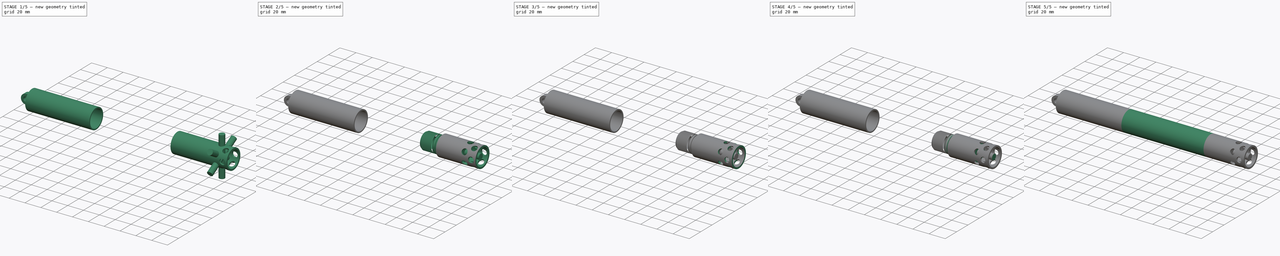
[diagram: build sequence overview — one tinted view per stage of 5, left to right]
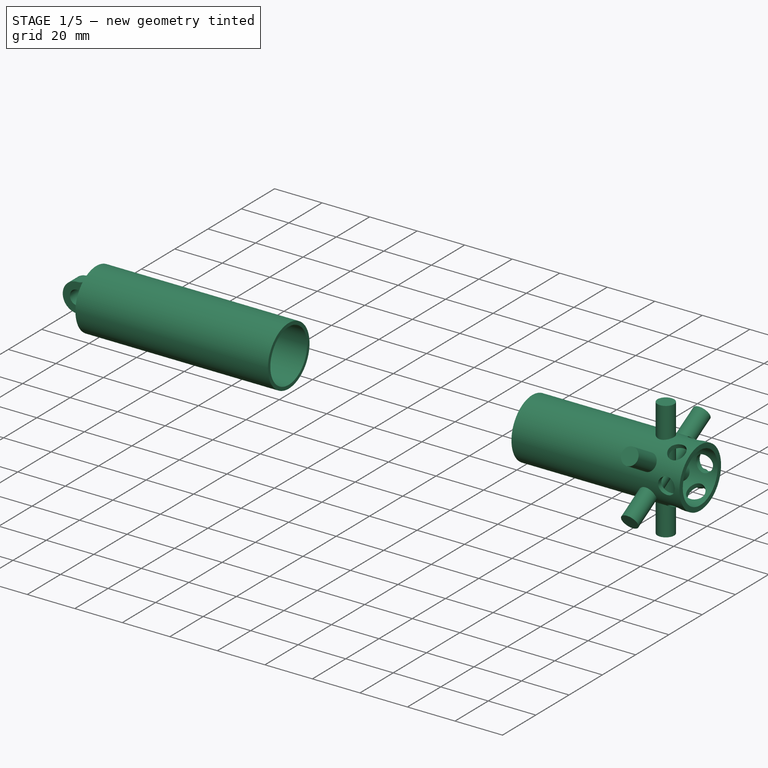
[diagram: stage 1 of 5 — iso view after this stage's code; geometry added in this stage tinted green]
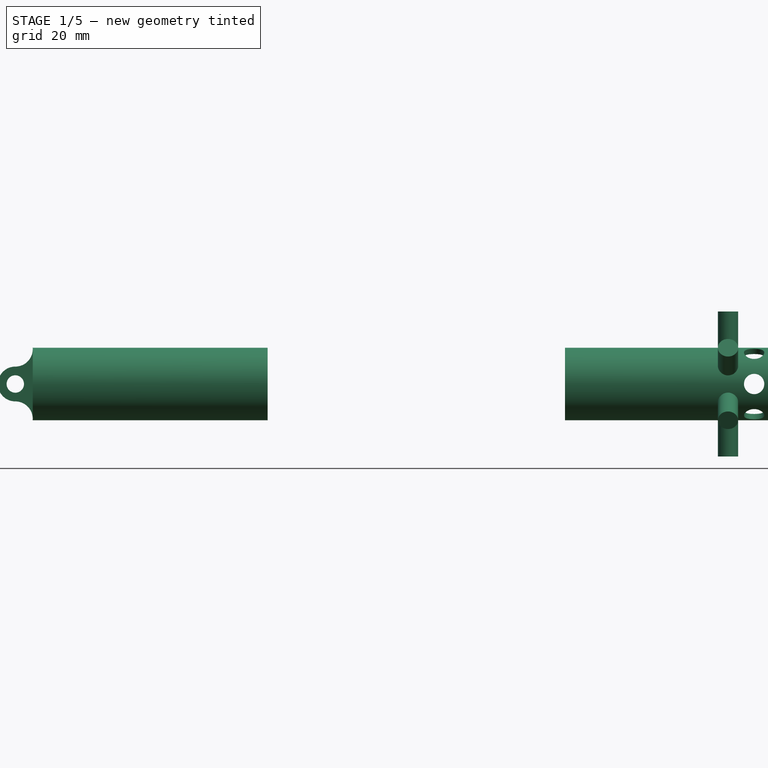
[diagram: stage 1 of 5 — front view after this stage's code; geometry added in this stage tinted green]
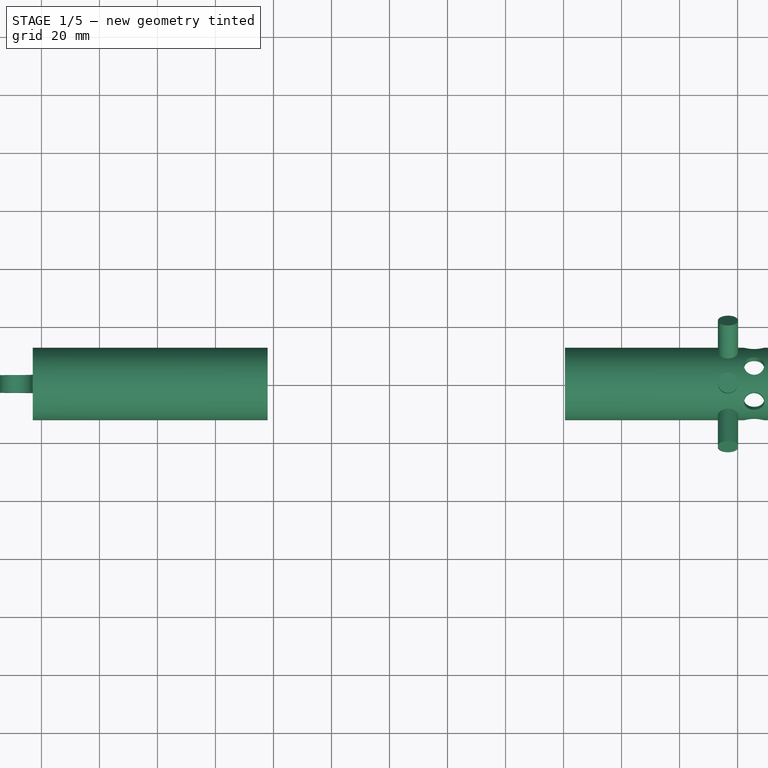
[diagram: stage 1 of 5 — top view after this stage's code; geometry added in this stage tinted green]
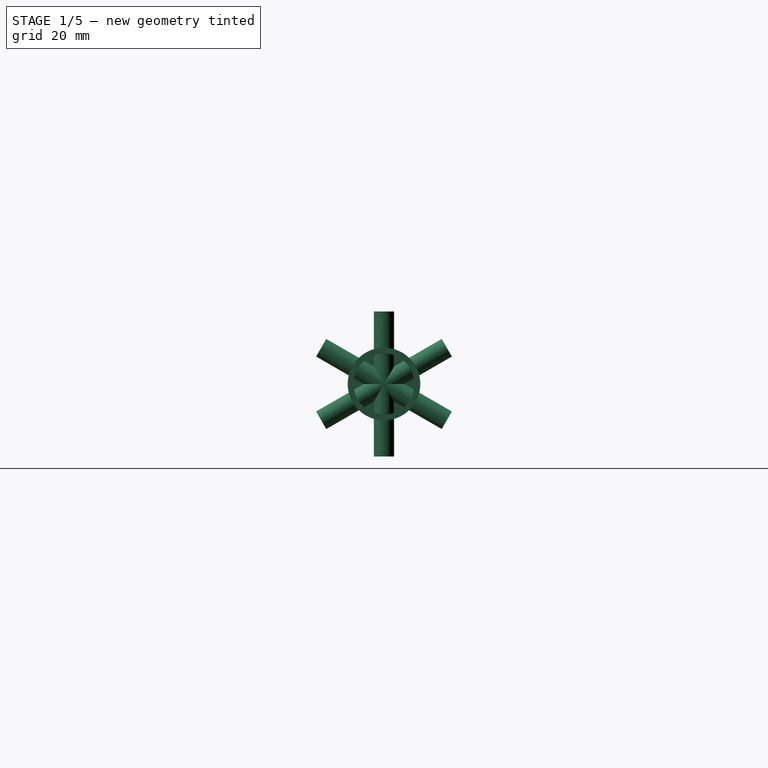
[diagram: stage 1 of 5 — right view after this stage's code; geometry added in this stage tinted green]
FCSTD DOCUMENT  (FreeCAD 0.17R13541 (Git))
Label: CAD_ERG-T-01-2
License: All rights reserved
LicenseURL: http://en.wikipedia.org/wiki/All_rights_reserved
objects: Drawing::FeatureViewPython×219, Part::Cylinder×65, Part::Cut×56, Drawing::FeatureViewPart×24, Part::MultiFuse×15, Drawing::FeaturePage×11, Part::Helix×10, Sketcher::SketchObject×8, Part::Sweep×8, Part::Box×4, Part::Feature×4, Part::Cone×4
note: 174 computed .brp shape members not serialized (recipe doc carries the construction recipe); baked Part::Feature solids carry a one-line shape summary decoded from their .brp

FEATURE [Drawing::FeatureViewPart] Ortho  label="Ortho_0_0"
  Direction = (1,0,0)
  HiddenWidth = 0.15
  LineWidth = 0.35
  Rotation = -90
  ShowHiddenLines = true
  ShowSmoothLines = false
  Source = -> Cut
  Tolerance = 0.05
  ViewResult = <g id="Ortho_0_0"\n   transform="rotate(-90,53.9733,81.5) translate(53.9733,81.5) scale(1,1)"\n  >\n<g   fill="none"\n   stroke="rgb(0, 0, 0)"\n   stroke-dasharray="0.2,0.1)"\n   stroke-linecap="butt"\n   stroke-linejoin="miter"\n   stroke-width="0.150000"\n   transform="scale(1,-1)"\n  >\n<circle cx ="5.55112e-16" cy ="0" r ="11" /><circle cx ="5.55112e-16" cy ="0" r ="9.5" /></g>\n<g   fill="none"\n   stroke="rgb(0, 0, 0)"\n   stroke-linecap="butt"\n   stroke-linejoin="miter"\n   stroke-width="0.350000"\n   transform="scale(1,-1)"\n  >\n<circle cx ="3.45279e-14" cy ="0" r ="11" /><circle cx ="3.45279e-14" cy ="0" r ="9.5" /></g>\n</g>
  Visible = false
  X = 53.9733
  Y = 81.5
FEATURE [Drawing::FeatureViewPart] Ortho001  label="Ortho_1_0"
  Direction = (0,1,0)
  HiddenWidth = 0.15
  LineWidth = 0.35
  Rotation = -90
  ShowHiddenLines = true
  ShowSmoothLines = false
  Source = -> Cut
  Tolerance = 0.05
  ViewResult = <blob: 2833 chars omitted>
  Visible = false
  X = 253.947
  Y = 81.5
FEATURE [Drawing::FeatureViewPython] dim001  # drawing view (typed FeaturePython)
  Rotation = 0
  ViewResult = <g> \n  <line x1="98.447000" y1="70.500000" x2="87.594019" y2="70.500000" style="stroke:rgb(255,0,0);stroke-width:0.10" />\n<line x1="98.447000" y1="92.500000" x2="87.594019" y2="92.500000" style="stroke:rgb(255,0,0);stroke-width:0.10" />\n<line x1="88.594019" y1="70.500000" x2="88.594019" y2="92.500000" style="stroke:rgb(255,0,0);stroke-width:0.10" /> \n  <polygon points="88.594019,92.500000 89.094019,90.500000 88.594019,90.000000 88.094019,90.500000" style="fill:rgb(255,0,0);stroke:rgb(255,0,0);stroke-width:0" /><polygon points="88.594019,70.500000 88.094019,72.500000 88.594019,73.000000 89.094019,72.500000" style="fill:rgb(255,0,0);stroke:rgb(255,0,0);stroke-width:0" /> \n  <text x="86.594019" y="81.500000" font-family="inherit" font-size="3.6" fill="rgb(0,0,0)" text-anchor="middle" transform="rotate(-90.000000 86.594019,81.500000)" >22</text> </g>
  Visible = false
  X = 0
  Y = 0
  arrowL1 = 2
  arrowL2 = 0.5
  arrowW = 1
  arrow_scheme = 0
  autoPlaceOffset = 2
  autoPlaceText = true
  click1_x = 88.594
  click1_y = 93.4542
  click2_x = 88.594
  click2_y = 93.4542
  comma_decimal_place = false
  dimension_line_overshoot = 1
  gap_datum_points = 0
  halfDimension_linear = false
  lineColor = rgb(255,0,0)
  strokeWidth = 0.1
  textFormat_linear = %(value)3.3f
  textRenderer_color = rgb(0,0,0)
  textRenderer_family = inherit
  textRenderer_size = 3.6
  unit_custom_scale = 1
  unit_scheme = 1
FEATURE [Drawing::FeatureViewPython] dim002  # drawing view (typed FeaturePython)
  Rotation = 0
  ViewResult = <g> \n  <line x1="98.447000" y1="72.000000" x2="93.808261" y2="72.000000" style="stroke:rgb(255,0,0);stroke-width:0.10" />\n<line x1="98.447000" y1="91.000000" x2="93.808261" y2="91.000000" style="stroke:rgb(255,0,0);stroke-width:0.10" />\n<line x1="94.808261" y1="72.000000" x2="94.808261" y2="91.000000" style="stroke:rgb(255,0,0);stroke-width:0.10" /> \n  <polygon points="94.808261,91.000000 95.308261,89.000000 94.808261,88.500000 94.308261,89.000000" style="fill:rgb(255,0,0);stroke:rgb(255,0,0);stroke-width:0" /><polygon points="94.808261,72.000000 94.308261,74.000000 94.808261,74.500000 95.308261,74.000000" style="fill:rgb(255,0,0);stroke:rgb(255,0,0);stroke-width:0" /> \n  <text x="92.808261" y="81.500000" font-family="inherit" font-size="3.6" fill="rgb(0,0,0)" text-anchor="middle" transform="rotate(-90.000000 92.808261,81.500000)" >19</text> </g>
  Visible = false
  X = 0
  Y = 0
  arrowL1 = 2
  arrowL2 = 0.5
  arrowW = 1
  arrow_scheme = 0
  autoPlaceOffset = 2
  autoPlaceText = true
  click1_x = 94.8083
  click1_y = 91.3504
  click2_x = 94.8083
  click2_y = 91.3504
  comma_decimal_place = false
  dimension_line_overshoot = 1
  gap_datum_points = 0
  halfDimension_linear = false
  lineColor = rgb(255,0,0)
  strokeWidth = 0.1
  textFormat_linear = %(value)3.3f
  textRenderer_color = rgb(0,0,0)
  textRenderer_family = inherit
  textRenderer_size = 3.6
  unit_custom_scale = 1
  unit_scheme = 1
FEATURE [Drawing::FeatureViewPython] dim003  # drawing view (typed FeaturePython)
  Rotation = 0
  ViewResult = <g> \n  <line x1="98.447000" y1="92.500000" x2="98.447000" y2="101.835532" style="stroke:rgb(255,0,0);stroke-width:0.10" />\n<line x1="251.447000" y1="92.500000" x2="251.447000" y2="101.835532" style="stroke:rgb(255,0,0);stroke-width:0.10" />\n<line x1="98.447000" y1="100.835532" x2="251.447000" y2="100.835532" style="stroke:rgb(255,0,0);stroke-width:0.10" /> \n  <polygon points="251.447000,100.835532 249.447000,100.335532 248.947000,100.835532 249.447000,101.335532" style="fill:rgb(255,0,0);stroke:rgb(255,0,0);stroke-width:0" /><polygon points="98.447000,100.835532 100.447000,101.335532 100.947000,100.835532 100.447000,100.335532" style="fill:rgb(255,0,0);stroke:rgb(255,0,0);stroke-width:0" /> \n  <text x="174.947000" y="98.835532" font-family="inherit" font-size="3.6" fill="rgb(0,0,0)" text-anchor="middle" transform="rotate(0.000000 174.947000,98.835532)" >153</text> </g>
  Visible = false
  X = 0
  Y = 0
  arrowL1 = 2
  arrowL2 = 0.5
  arrowW = 1
  arrow_scheme = 0
  autoPlaceOffset = 2
  autoPlaceText = true
  click1_x = 228.521
  click1_y = 100.836
  click2_x = 228.521
  click2_y = 100.836
  comma_decimal_place = false
  dimension_line_overshoot = 1
  gap_datum_points = 0
  halfDimension_linear = false
  lineColor = rgb(255,0,0)
  strokeWidth = 0.1
  textFormat_linear = %(value)3.3f
  textRenderer_color = rgb(0,0,0)
  textRenderer_family = inherit
  textRenderer_size = 3.6
  unit_custom_scale = 1
  unit_scheme = 1
FEATURE [Drawing::FeatureViewPython] dia002  # drawing view (typed FeaturePython)
  Rotation = 0
  ViewResult = <g>  <circle cx ="53.973300" cy ="81.500000" r="0.250000" stroke="none" fill="rgb(255,0,0)" /> \n<line x1="70.619025" y1="103.897032" x2="48.306482" y2="73.875226" style="stroke:rgb(255,0,0);stroke-width:0.10" />\n<polygon points="59.640118,89.124774 58.848407,87.221305 58.148850,87.118255 58.045799,87.817812" style="fill:rgb(255,0,0);stroke:rgb(255,0,0);stroke-width:0" />\n<polygon points="48.306482,73.875226 49.098193,75.778695 49.797750,75.881745 49.900801,75.182188" style="fill:rgb(255,0,0);stroke:rgb(255,0,0);stroke-width:0" />\n<line x1="70.619025" y1="103.897032" x2="80.937787" y2="103.897032" style="stroke:rgb(255,0,0);stroke-width:0.10" />\n<text x="75.778406" y="101.897032" font-family="inherit" font-size="3.6" fill="rgb(0,0,0)" text-anchor="middle" transform="rotate(0.000000 75.778406,101.897032)" >Ø19</text> </g>
  Visible = false
  X = 0
  Y = 0
  arrowL1 = 2
  arrowL2 = 0.5
  arrowW = 1
  arrow_scheme = 0
  autoPlaceOffset = 2
  autoPlaceText = true
  centerPointDia = 0.5
  click1_x = 70.619
  click1_y = 103.897
  click2_x = 80.9378
  click2_y = 104.026
  click3_x = 80.9378
  click3_y = 104.026
  comma_decimal_place = false
  lineColor = rgb(255,0,0)
  strokeWidth = 0.1
  textFormat_circular = Ø%(value)3.3f
  textRenderer_color = rgb(0,0,0)
  textRenderer_family = inherit
  textRenderer_size = 3.6
  unit_custom_scale = 1
  unit_scheme = 1
FEATURE [Part::Cylinder] Cylinder005  label="Cylinder003"
  Angle = 360
  AttacherType = Attacher::AttachEngine3D
  Height = 95
  Placement = pos=(-17,0,0) rot=(0,1,0;1.5708rad)
  Radius = 12.5
FEATURE [Part::Cylinder] Cylinder006  label="Cylinder004"
  Angle = 360
  AttacherType = Attacher::AttachEngine3D
  Height = 75.8
  Placement = pos=(2.2,0,0) rot=(0,1,0;1.5708rad)
  Radius = 11.05
FEATURE [Part::Box] Box  label="Cube"
  AttacherType = Attacher::AttachEngine3D
  Height = 30
  Length = 14
  Placement = pos=(-17,3,-15) rot=(0,0,1;0rad)
  Width = 15
FEATURE [Part::Box] Box001  label="Cube001"
  AttacherType = Attacher::AttachEngine3D
  Height = 30
  Length = 14
  Placement = pos=(-17,-18,-15) rot=(0,0,1;0rad)
  Width = 15
FEATURE [Part::Cylinder] Cylinder018  label="Cylinder016"
  Angle = 360
  AttacherType = Attacher::AttachEngine3D
  Height = 30
  Placement = pos=(-9,15,0) rot=(1,0,0;1.5708rad)
  Radius = 3
FEATURE [Part::Cut] Cut010
  Base = -> Cylinder005
  Tool = -> Box
FEATURE [Part::Cut] Cut011
  Base = -> Cut010
  Tool = -> Box001
FEATURE [Part::Cut] Cut012
  Base = -> Cut011
  Tool = -> Cylinder018
FEATURE [Part::Cut] Cut013  label="BatteryCapHole"
  Base = -> Cut012
  Tool = -> Cylinder006
FEATURE [Part::Cylinder] Cylinder057  label="Cylinder063"
  Angle = 360
  AttacherType = Attacher::AttachEngine3D
  Height = 70.7
  Placement = pos=(180.5,0,0) rot=(0,1,0;1.5708rad)
  Radius = 12.5
FEATURE [Part::Cylinder] Cylinder063  label="Cylinder068"
  Angle = 360
  AttacherType = Attacher::AttachEngine3D
  Height = 20.2
  Placement = pos=(231.2,0,0) rot=(0,1,0;1.5708rad)
  Radius = 10.5
FEATURE [Part::Cut] Cut052
  Base = -> Cylinder057
  Tool = -> Cylinder063
FEATURE [Part::Cylinder] Cylinder064  label="Cylinder069"
  Angle = 360
  AttacherType = Attacher::AttachEngine3D
  Height = 50
  Placement = pos=(214.2,0,-25) rot=(0,1,0;0rad)
  Radius = 3.5
FEATURE [Part::Cylinder] Cylinder065  label="Cylinder070"
  Angle = 360
  AttacherType = Attacher::AttachEngine3D
  Height = 50
  Placement = pos=(214.2,-21.6506,12.5) rot=(-1,0,0;2.0944rad)
  Radius = 3.5
FEATURE [Part::Cylinder] Cylinder066  label="Cylinder071"
  Angle = 360
  AttacherType = Attacher::AttachEngine3D
  Height = 50
  Placement = pos=(214.2,21.6506,12.5) rot=(1,0,0;2.0944rad)
  Radius = 3.5
FEATURE [Part::MultiFuse] Fusion012
  Placement = pos=(31.5,0,0) rot=(1,0,0;0.523599rad)
  Shapes = -> [Cylinder064,Cylinder065,Cylinder066]
FEATURE [Part::Cylinder] Cylinder067  label="Cylinder072"
  Angle = 360
  AttacherType = Attacher::AttachEngine3D
  Height = 50
  Placement = pos=(214.2,-21.6506,12.5) rot=(-1,0,0;2.0944rad)
  Radius = 3.5
FEATURE [Part::Cylinder] Cylinder068  label="Cylinder073"
  Angle = 360
  AttacherType = Attacher::AttachEngine3D
  Height = 50
  Placement = pos=(214.2,0,-25) rot=(0,1,0;0rad)
  Radius = 3.5
FEATURE [Part::Cylinder] Cylinder069  label="Cylinder074"
  Angle = 360
  AttacherType = Attacher::AttachEngine3D
  Height = 50
  Placement = pos=(214.2,21.6506,12.5) rot=(1,0,0;2.0944rad)
  Radius = 3.5
FEATURE [Part::MultiFuse] Fusion013
  Placement = pos=(22.5,0,0) rot=(1,0,0;0rad)
  Shapes = -> [Cylinder068,Cylinder067,Cylinder069]
FEATURE [Part::Cut] Cut053
  Base = -> Cut052
  Tool = -> Fusion012
FEATURE [Drawing::FeatureViewPart] Ortho010  label="Ortho_0_004"
  Direction = (0,0,1)
  HiddenWidth = 0.15
  LineWidth = 0.35
  Rotation = 0
  Scale = 1.5
  ShowHiddenLines = true
  ShowSmoothLines = false
  Source = -> Cut063
  Tolerance = 0.05
  ViewResult = <blob: 112711 chars omitted>
  Visible = false
  X = -142.65
  Y = 81.5
FEATURE [Drawing::FeatureViewPart] Ortho011  label="Ortho_-1_0"
  Direction = (-1,0,0)
  HiddenWidth = 0.15
  LineWidth = 0.35
  Rotation = 180
  Scale = 1.5
  ShowHiddenLines = false
  ShowSmoothLines = false
  Source = -> Cut063
  Tolerance = 0.05
  ViewResult = <blob: 22950 chars omitted>
  Visible = false
  X = 47.93
  Y = 81.5
FEATURE [Drawing::FeatureViewPart] Ortho012  label="Ortho_1_003"
  Direction = (1,0,0)
  HiddenWidth = 0.15
  LineWidth = 0.35
  Rotation = 180
  Scale = 1.5
  ShowHiddenLines = false
  ShowSmoothLines = false
  Source = -> Cut063
  Tolerance = 0.05
  ViewResult = <blob: 13324 chars omitted>
  Visible = false
  X = 244.075
  Y = 81.5
FEATURE [Drawing::FeatureViewPython] dim051  # drawing view (typed FeaturePython)
  Rotation = 0
  ViewResult = <g> \n  <line x1="93.914250" y1="95.532260" x2="93.914250" y2="147.495136" style="stroke:rgb(255,0,0);stroke-width:0.10" />\n<line x1="199.650000" y1="100.132100" x2="199.650000" y2="147.495136" style="stroke:rgb(255,0,0);stroke-width:0.10" />\n<line x1="93.914250" y1="146.495136" x2="199.650000" y2="146.495136" style="stroke:rgb(255,0,0);stroke-width:0.10" /> \n  <polygon points="199.650000,146.495136 197.650000,145.995136 197.150000,146.495136 197.650000,146.995136" style="fill:rgb(255,0,0);stroke:rgb(255,0,0);stroke-width:0" /><polygon points="93.914250,146.495136 95.914250,146.995136 96.414250,146.495136 95.914250,145.995136" style="fill:rgb(255,0,0);stroke:rgb(255,0,0);stroke-width:0" /> \n  <text x="146.782125" y="144.495136" font-family="inherit" font-size="3.6" fill="rgb(0,0,0)" text-anchor="middle" transform="rotate(0.000000 146.782125,144.495136)" >70.49</text> </g>
  Visible = false
  X = 0
  Y = 0
  arrowL1 = 2
  arrowL2 = 0.5
  arrowW = 1
  arrow_scheme = 0
  autoPlaceOffset = 2
  autoPlaceText = true
  click1_x = 198.457
  click1_y = 146.495
  click2_x = 198.457
  click2_y = 146.495
  comma_decimal_place = false
  dimension_line_overshoot = 1
  gap_datum_points = 0
  halfDimension_linear = false
  lineColor = rgb(255,0,0)
  strokeWidth = 0.1
  textFormat_linear = %(value)3.3f
  textRenderer_color = rgb(0,0,0)
  textRenderer_family = inherit
  textRenderer_size = 3.6
  unit_custom_scale = 1.1
  unit_scheme = 0
FEATURE [Drawing::FeatureViewPython] dim052  # drawing view (typed FeaturePython)
  Rotation = 0
  ViewResult = <g> \n  <line x1="126.600000" y1="100.250000" x2="126.661078" y2="138.093196" style="stroke:rgb(255,0,0);stroke-width:0.10" />\n<line x1="199.650000" y1="100.132100" x2="199.711078" y2="137.975296" style="stroke:rgb(255,0,0);stroke-width:0.10" />\n<line x1="126.659464" y1="137.093197" x2="199.709464" y2="136.975297" style="stroke:rgb(255,0,0);stroke-width:0.10" /> \n  <polygon points="199.709464,136.975297 197.708659,136.478526 197.209467,136.979332 197.710273,137.478525" style="fill:rgb(255,0,0);stroke:rgb(255,0,0);stroke-width:0" /><polygon points="126.659464,137.093197 128.660268,137.589969 129.159460,137.089162 128.658654,136.589970" style="fill:rgb(255,0,0);stroke:rgb(255,0,0);stroke-width:0" /> \n  <text x="163.181236" y="135.034250" font-family="inherit" font-size="3.6" fill="rgb(0,0,0)" text-anchor="middle" transform="rotate(-0.092473 163.181236,135.034250)" >48.7</text> </g>
  Visible = false
  X = 0
  Y = 0
  arrowL1 = 2
  arrowL2 = 0.5
  arrowW = 1
  arrow_scheme = 0
  autoPlaceOffset = 2
  autoPlaceText = true
  click1_x = 201.162
  click1_y = 136.973
  click2_x = 201.162
  click2_y = 136.973
  comma_decimal_place = false
  dimension_line_overshoot = 1
  gap_datum_points = 0
  halfDimension_linear = false
  lineColor = rgb(255,0,0)
  strokeWidth = 0.1
  textFormat_linear = %(value)3.3f
  textRenderer_color = rgb(0,0,0)
  textRenderer_family = inherit
  textRenderer_size = 3.6
  unit_custom_scale = 1.1
  unit_scheme = 0
FEATURE [Drawing::FeatureViewPython] dim053  # drawing view (typed FeaturePython)
  Rotation = 0
  ViewResult = <g> \n  <line x1="93.914250" y1="95.532260" x2="93.914250" y2="138.095032" style="stroke:rgb(255,0,0);stroke-width:0.10" />\n<line x1="126.600000" y1="100.132100" x2="126.600000" y2="138.095032" style="stroke:rgb(255,0,0);stroke-width:0.10" />\n<line x1="93.914250" y1="137.095032" x2="126.600000" y2="137.095032" style="stroke:rgb(255,0,0);stroke-width:0.10" /> \n  <polygon points="126.600000,137.095032 124.600000,136.595032 124.100000,137.095032 124.600000,137.595032" style="fill:rgb(255,0,0);stroke:rgb(255,0,0);stroke-width:0" /><polygon points="93.914250,137.095032 95.914250,137.595032 96.414250,137.095032 95.914250,136.595032" style="fill:rgb(255,0,0);stroke:rgb(255,0,0);stroke-width:0" /> \n  <text x="110.257125" y="135.095032" font-family="inherit" font-size="3.6" fill="rgb(0,0,0)" text-anchor="middle" transform="rotate(0.000000 110.257125,135.095032)" >21.79</text> </g>
  Visible = false
  X = 0
  Y = 0
  arrowL1 = 2
  arrowL2 = 0.5
  arrowW = 1
  arrow_scheme = 0
  autoPlaceOffset = 2
  autoPlaceText = true
  click1_x = 124.934
  click1_y = 137.095
  click2_x = 124.934
  click2_y = 137.095
  comma_decimal_place = false
  dimension_line_overshoot = 1
  gap_datum_points = 0
  halfDimension_linear = false
  lineColor = rgb(255,0,0)
  strokeWidth = 0.1
  textFormat_linear = %(value)3.3f
  textRenderer_color = rgb(0,0,0)
  textRenderer_family = inherit
  textRenderer_size = 3.6
  unit_custom_scale = 1.1
  unit_scheme = 0
FEATURE [Drawing::FeatureViewPython] dim054  # drawing view (typed FeaturePython)
  Rotation = 0
  ViewResult = <g> \n  <line x1="169.650000" y1="97.151000" x2="169.650000" y2="128.328689" style="stroke:rgb(255,0,0);stroke-width:0.10" />\n<line x1="199.650000" y1="100.250000" x2="199.650000" y2="128.328689" style="stroke:rgb(255,0,0);stroke-width:0.10" />\n<line x1="169.650000" y1="127.328689" x2="199.650000" y2="127.328689" style="stroke:rgb(255,0,0);stroke-width:0.10" /> \n  <polygon points="199.650000,127.328689 197.650000,126.828689 197.150000,127.328689 197.650000,127.828689" style="fill:rgb(255,0,0);stroke:rgb(255,0,0);stroke-width:0" /><polygon points="169.650000,127.328689 171.650000,127.828689 172.150000,127.328689 171.650000,126.828689" style="fill:rgb(255,0,0);stroke:rgb(255,0,0);stroke-width:0" /> \n  <text x="184.650000" y="125.328689" font-family="inherit" font-size="3.6" fill="rgb(0,0,0)" text-anchor="middle" transform="rotate(0.000000 184.650000,125.328689)" >20</text> </g>
  Visible = false
  X = 0
  Y = 0
  arrowL1 = 2
  arrowL2 = 0.5
  arrowW = 1
  arrow_scheme = 0
  autoPlaceOffset = 2
  autoPlaceText = true
  click1_x = 195.876
  click1_y = 127.329
  click2_x = 195.876
  click2_y = 127.329
  comma_decimal_place = false
  dimension_line_overshoot = 1
  gap_datum_points = 0
  halfDimension_linear = false
  lineColor = rgb(255,0,0)
  strokeWidth = 0.1
  textFormat_linear = %(value)3.3f
  textRenderer_color = rgb(0,0,0)
  textRenderer_family = inherit
  textRenderer_size = 3.6
  unit_custom_scale = 1.1
  unit_scheme = 0
FEATURE [Drawing::FeatureViewPython] dim056  # drawing view (typed FeaturePython)
  Rotation = 0
  ViewResult = <g> \n  <line x1="169.650000" y1="97.151000" x2="169.650000" y2="119.294823" style="stroke:rgb(255,0,0);stroke-width:0.10" />\n<line x1="196.650000" y1="86.455385" x2="196.650000" y2="119.294823" style="stroke:rgb(255,0,0);stroke-width:0.10" />\n<line x1="169.650000" y1="118.294823" x2="196.650000" y2="118.294823" style="stroke:rgb(255,0,0);stroke-width:0.10" /> \n  <polygon points="196.650000,118.294823 194.650000,117.794823 194.150000,118.294823 194.650000,118.794823" style="fill:rgb(255,0,0);stroke:rgb(255,0,0);stroke-width:0" /><polygon points="169.650000,118.294823 171.650000,118.794823 172.150000,118.294823 171.650000,117.794823" style="fill:rgb(255,0,0);stroke:rgb(255,0,0);stroke-width:0" /> \n  <text x="183.150000" y="116.294823" font-family="inherit" font-size="3.6" fill="rgb(0,0,0)" text-anchor="middle" transform="rotate(0.000000 183.150000,116.294823)" >18</text> </g>
  Visible = false
  X = 0
  Y = 0
  arrowL1 = 2
  arrowL2 = 0.5
  arrowW = 1
  arrow_scheme = 0
  autoPlaceOffset = 2
  autoPlaceText = true
  click1_x = 196.49
  click1_y = 118.295
  click2_x = 196.49
  click2_y = 118.295
  comma_decimal_place = false
  dimension_line_overshoot = 1
  gap_datum_points = 0
  halfDimension_linear = false
  lineColor = rgb(255,0,0)
  strokeWidth = 0.1
  textFormat_linear = %(value)3.3f
  textRenderer_color = rgb(0,0,0)
  textRenderer_family = inherit
  textRenderer_size = 3.6
  unit_custom_scale = 1.1
  unit_scheme = 0
FEATURE [Drawing::FeatureViewPython] dim055  # drawing view (typed FeaturePython)
  Rotation = 0
  ViewResult = <g> \n  <line x1="193.350000" y1="79.175000" x2="193.350000" y2="47.092269" style="stroke:rgb(255,0,0);stroke-width:0.10" />\n<line x1="162.600000" y1="79.175000" x2="162.600000" y2="47.092269" style="stroke:rgb(255,0,0);stroke-width:0.10" />\n<line x1="193.350000" y1="48.092269" x2="162.600000" y2="48.092269" style="stroke:rgb(255,0,0);stroke-width:0.10" /> \n  <polygon points="162.600000,48.092269 164.600000,48.592269 165.100000,48.092269 164.600000,47.592269" style="fill:rgb(255,0,0);stroke:rgb(255,0,0);stroke-width:0" /><polygon points="193.350000,48.092269 191.350000,47.592269 190.850000,48.092269 191.350000,48.592269" style="fill:rgb(255,0,0);stroke:rgb(255,0,0);stroke-width:0" /> \n  <text x="177.975000" y="46.092269" font-family="inherit" font-size="3.6" fill="rgb(0,0,0)" text-anchor="middle" transform="rotate(0.000000 177.975000,46.092269)" >20.5</text> </g>
  Visible = false
  X = 0
  Y = 0
  arrowL1 = 2
  arrowL2 = 0.5
  arrowW = 1
  arrow_scheme = 0
  autoPlaceOffset = 2
  autoPlaceText = true
  click1_x = 164.865
  click1_y = 48.0923
  click2_x = 164.865
  click2_y = 48.0923
  comma_decimal_place = false
  dimension_line_overshoot = 1
  gap_datum_points = 0
  halfDimension_linear = false
  lineColor = rgb(255,0,0)
  strokeWidth = 0.1
  textFormat_linear = %(value)3.3f
  textRenderer_color = rgb(0,0,0)
  textRenderer_family = inherit
  textRenderer_size = 3.6
  unit_custom_scale = 1.1
  unit_scheme = 1
FEATURE [Drawing::FeatureViewPython] dim057  # drawing view (typed FeaturePython)
  Rotation = 0
  ViewResult = <g> \n  <line x1="172.650000" y1="65.262050" x2="172.650000" y2="55.634451" style="stroke:rgb(255,0,0);stroke-width:0.10" />\n<line x1="183.150000" y1="65.262050" x2="183.150000" y2="55.634451" style="stroke:rgb(255,0,0);stroke-width:0.10" />\n<line x1="172.650000" y1="56.634451" x2="183.150000" y2="56.634451" style="stroke:rgb(255,0,0);stroke-width:0.10" /> \n  <polygon points="183.150000,56.634451 181.150000,56.134451 180.650000,56.634451 181.150000,57.134451" style="fill:rgb(255,0,0);stroke:rgb(255,0,0);stroke-width:0" /><polygon points="172.650000,56.634451 174.650000,57.134451 175.150000,56.634451 174.650000,56.134451" style="fill:rgb(255,0,0);stroke:rgb(255,0,0);stroke-width:0" /> \n  <text x="177.900000" y="54.634451" font-family="inherit" font-size="3.6" fill="rgb(0,0,0)" text-anchor="middle" transform="rotate(0.000000 177.900000,54.634451)" >7</text> </g>
  Visible = false
  X = 0
  Y = 0
  arrowL1 = 2
  arrowL2 = 0.5
  arrowW = 1
  arrow_scheme = 0
  autoPlaceOffset = 2
  autoPlaceText = true
  click1_x = 182.857
  click1_y = 56.6345
  click2_x = 182.857
  click2_y = 56.6345
  comma_decimal_place = false
  dimension_line_overshoot = 1
  gap_datum_points = 0
  halfDimension_linear = false
  lineColor = rgb(255,0,0)
  strokeWidth = 0.1
  textFormat_linear = %(value)3.3f
  textRenderer_color = rgb(0,0,0)
  textRenderer_family = inherit
  textRenderer_size = 3.6
  unit_custom_scale = 1.1
  unit_scheme = 1
FEATURE [Drawing::FeatureViewPython] dim058  # drawing view (typed FeaturePython)
  Rotation = 0
  ViewResult = <g> \n  <line x1="162.600000" y1="71.675000" x2="162.600000" y2="24.921904" style="stroke:rgb(255,0,0);stroke-width:0.10" />\n<line x1="93.600000" y1="67.625000" x2="93.600000" y2="24.921904" style="stroke:rgb(255,0,0);stroke-width:0.10" />\n<line x1="162.600000" y1="25.921904" x2="93.600000" y2="25.921904" style="stroke:rgb(255,0,0);stroke-width:0.10" /> \n  <polygon points="93.600000,25.921904 95.600000,26.421904 96.100000,25.921904 95.600000,25.421904" style="fill:rgb(255,0,0);stroke:rgb(255,0,0);stroke-width:0" /><polygon points="162.600000,25.921904 160.600000,25.421904 160.100000,25.921904 160.600000,26.421904" style="fill:rgb(255,0,0);stroke:rgb(255,0,0);stroke-width:0" /> \n  <text x="128.100000" y="23.921904" font-family="inherit" font-size="3.6" fill="rgb(0,0,0)" text-anchor="middle" transform="rotate(0.000000 128.100000,23.921904)" >46</text> </g>
  Visible = false
  X = 0
  Y = 0
  arrowL1 = 2
  arrowL2 = 0.5
  arrowW = 1
  arrow_scheme = 0
  autoPlaceOffset = 2
  autoPlaceText = true
  click1_x = 110.196
  click1_y = 25.9219
  click2_x = 110.196
  click2_y = 25.9219
  comma_decimal_place = false
  dimension_line_overshoot = 1
  gap_datum_points = 0
  halfDimension_linear = false
  lineColor = rgb(255,0,0)
  strokeWidth = 0.1
  textFormat_linear = %(value)3.3f
  textRenderer_color = rgb(0,0,0)
  textRenderer_family = inherit
  textRenderer_size = 3.6
  unit_custom_scale = 1.1
  unit_scheme = 1
FEATURE [Drawing::FeatureViewPython] dim060  # drawing view (typed FeaturePython)
  Rotation = 0
  ViewResult = <g> \n  <line x1="196.650000" y1="76.250000" x2="215.575672" y2="76.250000" style="stroke:rgb(255,0,0);stroke-width:0.10" />\n<line x1="196.650000" y1="86.750000" x2="215.575672" y2="86.750000" style="stroke:rgb(255,0,0);stroke-width:0.10" />\n<line x1="214.575672" y1="76.250000" x2="214.575672" y2="86.750000" style="stroke:rgb(255,0,0);stroke-width:0.10" /> \n  <polygon points="214.575672,86.750000 215.075672,84.750000 214.575672,84.250000 214.075672,84.750000" style="fill:rgb(255,0,0);stroke:rgb(255,0,0);stroke-width:0" /><polygon points="214.575672,76.250000 214.075672,78.250000 214.575672,78.750000 215.075672,78.250000" style="fill:rgb(255,0,0);stroke:rgb(255,0,0);stroke-width:0" /> \n  <text x="212.575672" y="81.500000" font-family="inherit" font-size="3.6" fill="rgb(0,0,0)" text-anchor="middle" transform="rotate(-90.000000 212.575672,81.500000)" >7</text> </g>
  Visible = false
  X = 0
  Y = 0
  arrowL1 = 2
  arrowL2 = 0.5
  arrowW = 1
  arrow_scheme = 0
  autoPlaceOffset = 2
  autoPlaceText = true
  click1_x = 214.576
  click1_y = 86.6141
  click2_x = 214.576
  click2_y = 86.6141
  comma_decimal_place = false
  dimension_line_overshoot = 1
  gap_datum_points = 0
  halfDimension_linear = false
  lineColor = rgb(255,0,0)
  strokeWidth = 0.1
  textFormat_linear = %(value)3.3f
  textRenderer_color = rgb(0,0,0)
  textRenderer_family = inherit
  textRenderer_size = 3.6
  unit_custom_scale = 1.1
  unit_scheme = 1
FEATURE [Drawing::FeatureViewPython] dim061  # drawing view (typed FeaturePython)
  Rotation = 0
  ViewResult = <g> \n  <line x1="193.350000" y1="83.825000" x2="208.485771" y2="83.825000" style="stroke:rgb(255,0,0);stroke-width:0.10" />\n<line x1="193.350000" y1="79.175000" x2="208.485771" y2="79.175000" style="stroke:rgb(255,0,0);stroke-width:0.10" />\n<line x1="207.485771" y1="83.825000" x2="207.485771" y2="79.175000" style="stroke:rgb(255,0,0);stroke-width:0.10" /> \n  <polygon points="207.485771,79.175000 207.985771,77.175000 207.485771,76.675000 206.985771,77.175000" style="fill:rgb(255,0,0);stroke:rgb(255,0,0);stroke-width:0" /><polygon points="207.485771,83.825000 206.985771,85.825000 207.485771,86.325000 207.985771,85.825000" style="fill:rgb(255,0,0);stroke:rgb(255,0,0);stroke-width:0" /> \n  <text x="205.485771" y="81.500000" font-family="inherit" font-size="3.6" fill="rgb(0,0,0)" text-anchor="middle" transform="rotate(-90.000000 205.485771,81.500000)" >3.1</text> </g>
  Visible = false
  X = 0
  Y = 0
  arrowL1 = 2
  arrowL2 = 0.5
  arrowW = 1
  arrow_scheme = 0
  autoPlaceOffset = 2
  autoPlaceText = true
  click1_x = 207.486
  click1_y = 82.8122
  click2_x = 207.486
  click2_y = 82.8122
  comma_decimal_place = false
  dimension_line_overshoot = 1
  gap_datum_points = 0
  halfDimension_linear = false
  lineColor = rgb(255,0,0)
  strokeWidth = 0.1
  textFormat_linear = %(value)3.3f
  textRenderer_color = rgb(0,0,0)
  textRenderer_family = inherit
  textRenderer_size = 3.6
  unit_custom_scale = 1.1
  unit_scheme = 1
FEATURE [Drawing::FeatureViewPython] dim059  # drawing view (typed FeaturePython)
  Rotation = 0
  ViewResult = <g> \n  <line x1="199.650000" y1="65.750000" x2="222.698420" y2="65.750000" style="stroke:rgb(255,0,0);stroke-width:0.10" />\n<line x1="199.650000" y1="97.250000" x2="222.698420" y2="97.250000" style="stroke:rgb(255,0,0);stroke-width:0.10" />\n<line x1="221.698420" y1="65.750000" x2="221.698420" y2="97.250000" style="stroke:rgb(255,0,0);stroke-width:0.10" /> \n  <polygon points="221.698420,97.250000 222.198420,95.250000 221.698420,94.750000 221.198420,95.250000" style="fill:rgb(255,0,0);stroke:rgb(255,0,0);stroke-width:0" /><polygon points="221.698420,65.750000 221.198420,67.750000 221.698420,68.250000 222.198420,67.750000" style="fill:rgb(255,0,0);stroke:rgb(255,0,0);stroke-width:0" /> \n  <text x="219.698420" y="81.500000" font-family="inherit" font-size="3.6" fill="rgb(0,0,0)" text-anchor="middle" transform="rotate(-90.000000 219.698420,81.500000)" >21</text> </g>
  Visible = false
  X = 0
  Y = 0
  arrowL1 = 2
  arrowL2 = 0.5
  arrowW = 1
  arrow_scheme = 0
  autoPlaceOffset = 2
  autoPlaceText = true
  click1_x = 221.698
  click1_y = 95.6795
  click2_x = 221.698
  click2_y = 95.6795
  comma_decimal_place = false
  dimension_line_overshoot = 1
  gap_datum_points = 0
  halfDimension_linear = false
  lineColor = rgb(255,0,0)
  strokeWidth = 0.1
  textFormat_linear = %(value)3.3f
  textRenderer_color = rgb(0,0,0)
  textRenderer_family = inherit
  textRenderer_size = 3.6
  unit_custom_scale = 1.1
  unit_scheme = 1
FEATURE [Drawing::FeatureViewPython] dim062  # drawing view (typed FeaturePython)
  Rotation = 0
  ViewResult = <g> \n  <line x1="93.600000" y1="71.675000" x2="86.711544" y2="71.675000" style="stroke:rgb(255,0,0);stroke-width:0.10" />\n<line x1="93.600000" y1="91.325000" x2="86.711544" y2="91.325000" style="stroke:rgb(255,0,0);stroke-width:0.10" />\n<line x1="87.711544" y1="71.675000" x2="87.711544" y2="91.325000" style="stroke:rgb(255,0,0);stroke-width:0.10" /> \n  <polygon points="87.711544,91.325000 88.211544,89.325000 87.711544,88.825000 87.211544,89.325000" style="fill:rgb(255,0,0);stroke:rgb(255,0,0);stroke-width:0" /><polygon points="87.711544,71.675000 87.211544,73.675000 87.711544,74.175000 88.211544,73.675000" style="fill:rgb(255,0,0);stroke:rgb(255,0,0);stroke-width:0" /> \n  <text x="85.711544" y="81.500000" font-family="inherit" font-size="3.6" fill="rgb(0,0,0)" text-anchor="middle" transform="rotate(-90.000000 85.711544,81.500000)" >13.1</text> </g>
  Visible = false
  X = 0
  Y = 0
  arrowL1 = 2
  arrowL2 = 0.5
  arrowW = 1
  arrow_scheme = 0
  autoPlaceOffset = 2
  autoPlaceText = true
  click1_x = 87.7115
  click1_y = 93.0222
  click2_x = 87.7115
  click2_y = 93.0222
  comma_decimal_place = false
  dimension_line_overshoot = 1
  gap_datum_points = 0
  halfDimension_linear = false
  lineColor = rgb(255,0,0)
  strokeWidth = 0.1
  textFormat_linear = %(value)3.3f
  textRenderer_color = rgb(0,0,0)
  textRenderer_family = inherit
  textRenderer_size = 3.6
  unit_custom_scale = 1.1
  unit_scheme = 1
FEATURE [Drawing::FeatureViewPython] dim063  # drawing view (typed FeaturePython)
  Rotation = 0
  ViewResult = <g> \n  <line x1="162.600000" y1="91.263215" x2="162.600000" y2="119.580139" style="stroke:rgb(255,0,0);stroke-width:0.10" />\n<line x1="126.600000" y1="100.250000" x2="126.600000" y2="119.580139" style="stroke:rgb(255,0,0);stroke-width:0.10" />\n<line x1="162.600000" y1="118.580139" x2="126.600000" y2="118.580139" style="stroke:rgb(255,0,0);stroke-width:0.10" /> \n  <polygon points="126.600000,118.580139 128.600000,119.080139 129.100000,118.580139 128.600000,118.080139" style="fill:rgb(255,0,0);stroke:rgb(255,0,0);stroke-width:0" /><polygon points="162.600000,118.580139 160.600000,118.080139 160.100000,118.580139 160.600000,119.080139" style="fill:rgb(255,0,0);stroke:rgb(255,0,0);stroke-width:0" /> \n  <text x="144.600000" y="116.580139" font-family="inherit" font-size="3.6" fill="rgb(0,0,0)" text-anchor="middle" transform="rotate(0.000000 144.600000,116.580139)" >24</text> </g>
  Visible = false
  X = 0
  Y = 0
  arrowL1 = 2
  arrowL2 = 0.5
  arrowW = 1
  arrow_scheme = 0
  autoPlaceOffset = 2
  autoPlaceText = true
  click1_x = 128.542
  click1_y = 118.58
  click2_x = 128.542
  click2_y = 118.58
  comma_decimal_place = false
  dimension_line_overshoot = 1
  gap_datum_points = 0
  halfDimension_linear = false
  lineColor = rgb(255,0,0)
  strokeWidth = 0.1
  textFormat_linear = %(value)3.3f
  textRenderer_color = rgb(0,0,0)
  textRenderer_family = inherit
  textRenderer_size = 3.6
  unit_custom_scale = 1.1
  unit_scheme = 1
FEATURE [Drawing::FeatureViewPython] dim064  # drawing view (typed FeaturePython)
  Rotation = 0
  ViewResult = <g> \n  <line x1="124.350000" y1="65.998100" x2="122.973813" y2="65.998100" style="stroke:rgb(255,0,0);stroke-width:0.10" />\n<line x1="124.350000" y1="65.900000" x2="122.973813" y2="65.900000" style="stroke:rgb(255,0,0);stroke-width:0.10" />\n<line x1="123.973813" y1="65.998100" x2="123.973813" y2="65.900000" style="stroke:rgb(255,0,0);stroke-width:0.10" /> \n  <polygon points="123.973813,65.900000 124.473813,63.900000 123.973813,63.400000 123.473813,63.900000" style="fill:rgb(255,0,0);stroke:rgb(255,0,0);stroke-width:0" /><polygon points="123.973813,65.998100 123.473813,67.998100 123.973813,68.498100 124.473813,67.998100" style="fill:rgb(255,0,0);stroke:rgb(255,0,0);stroke-width:0" /> \n  <text x="121.973813" y="65.949050" font-family="inherit" font-size="3.6" fill="rgb(0,0,0)" text-anchor="middle" transform="rotate(-90.000000 121.973813,65.949050)" >0.065</text> </g>
  Visible = false
  X = 0
  Y = 0
  arrowL1 = 2
  arrowL2 = 0.5
  arrowW = 1
  arrow_scheme = 0
  autoPlaceOffset = 2
  autoPlaceText = true
  click1_x = 123.974
  click1_y = 57.2719
  click2_x = 123.974
  click2_y = 57.2719
  comma_decimal_place = false
  dimension_line_overshoot = 1
  gap_datum_points = 0
  halfDimension_linear = false
  lineColor = rgb(255,0,0)
  strokeWidth = 0.1
  textFormat_linear = %(value)3.3f
  textRenderer_color = rgb(0,0,0)
  textRenderer_family = inherit
  textRenderer_size = 3.6
  unit_custom_scale = 1.1
  unit_scheme = 1
FEATURE [Drawing::FeatureViewPython] dim066  # drawing view (typed FeaturePython)
  Rotation = 0
  ViewResult = <g> \n  <line x1="113.073000" y1="65.900000" x2="113.073000" y2="56.319514" style="stroke:rgb(255,0,0);stroke-width:0.10" />\n<line x1="113.376000" y1="65.900000" x2="113.376000" y2="56.319514" style="stroke:rgb(255,0,0);stroke-width:0.10" />\n<line x1="113.073000" y1="57.319514" x2="113.376000" y2="57.319514" style="stroke:rgb(255,0,0);stroke-width:0.10" /> \n  <polygon points="113.376000,57.319514 115.376000,57.819514 115.876000,57.319514 115.376000,56.819514" style="fill:rgb(255,0,0);stroke:rgb(255,0,0);stroke-width:0" /><polygon points="113.073000,57.319514 111.073000,56.819514 110.573000,57.319514 111.073000,57.819514" style="fill:rgb(255,0,0);stroke:rgb(255,0,0);stroke-width:0" /> \n  <text x="113.224500" y="55.319514" font-family="inherit" font-size="3.6" fill="rgb(0,0,0)" text-anchor="middle" transform="rotate(0.000000 113.224500,55.319514)" >0.202</text> </g>
  Visible = false
  X = 0
  Y = 0
  arrowL1 = 2
  arrowL2 = 0.5
  arrowW = 1
  arrow_scheme = 0
  autoPlaceOffset = 2
  autoPlaceText = true
  click1_x = 114.088
  click1_y = 57.3195
  click2_x = 114.088
  click2_y = 57.3195
  comma_decimal_place = false
  dimension_line_overshoot = 1
  gap_datum_points = 0
  halfDimension_linear = false
  lineColor = rgb(255,0,0)
  strokeWidth = 0.1
  textFormat_linear = %(value)3.3f
  textRenderer_color = rgb(0,0,0)
  textRenderer_family = inherit
  textRenderer_size = 3.6
  unit_custom_scale = 1.1
  unit_scheme = 1
FEATURE [Drawing::FeatureViewPython] dim065  # drawing view (typed FeaturePython)
  Rotation = 0
  ViewResult = <g> \n  <line x1="119.850000" y1="65.998100" x2="118.849901" y2="65.998100" style="stroke:rgb(255,0,0);stroke-width:0.10" />\n<line x1="119.850000" y1="65.900000" x2="118.849901" y2="65.900000" style="stroke:rgb(255,0,0);stroke-width:0.10" />\n<line x1="119.849901" y1="65.998100" x2="119.849901" y2="65.900000" style="stroke:rgb(255,0,0);stroke-width:0.10" /> \n  <polygon points="119.849901,65.900000 120.349901,63.900000 119.849901,63.400000 119.349901,63.900000" style="fill:rgb(255,0,0);stroke:rgb(255,0,0);stroke-width:0" /><polygon points="119.849901,65.998100 119.349901,67.998100 119.849901,68.498100 120.349901,67.998100" style="fill:rgb(255,0,0);stroke:rgb(255,0,0);stroke-width:0" /> \n  <text x="117.849901" y="65.949050" font-family="inherit" font-size="3.6" fill="rgb(0,0,0)" text-anchor="middle" transform="rotate(-90.000000 117.849901,65.949050)" >0.065</text> </g>
  Visible = false
  X = 0
  Y = 0
  arrowL1 = 2
  arrowL2 = 0.5
  arrowW = 1
  arrow_scheme = 0
  autoPlaceOffset = 2
  autoPlaceText = true
  click1_x = 119.85
  click1_y = 51.3208
  click2_x = 119.85
  click2_y = 51.3208
  comma_decimal_place = false
  dimension_line_overshoot = 1
  gap_datum_points = 0
  halfDimension_linear = false
  lineColor = rgb(255,0,0)
  strokeWidth = 0.1
  textFormat_linear = %(value)3.3f
  textRenderer_color = rgb(0,0,0)
  textRenderer_family = inherit
  textRenderer_size = 3.6
  unit_custom_scale = 1.1
  unit_scheme = 1
FEATURE [Drawing::FeatureViewPython] dim067  # drawing view (typed FeaturePython)
  Rotation = 0
  ViewResult = <g> \n  <line x1="117.600000" y1="97.100000" x2="117.600000" y2="105.005422" style="stroke:rgb(255,0,0);stroke-width:0.10" />\n<line x1="119.850000" y1="96.708950" x2="119.850000" y2="105.005422" style="stroke:rgb(255,0,0);stroke-width:0.10" />\n<line x1="117.600000" y1="104.005422" x2="119.850000" y2="104.005422" style="stroke:rgb(255,0,0);stroke-width:0.10" /> \n  <polygon points="119.850000,104.005422 121.850000,104.505422 122.350000,104.005422 121.850000,103.505422" style="fill:rgb(255,0,0);stroke:rgb(255,0,0);stroke-width:0" /><polygon points="117.600000,104.005422 115.600000,103.505422 115.100000,104.005422 115.600000,104.505422" style="fill:rgb(255,0,0);stroke:rgb(255,0,0);stroke-width:0" /> \n  <text x="118.725000" y="102.005422" font-family="inherit" font-size="3.6" fill="rgb(0,0,0)" text-anchor="middle" transform="rotate(0.000000 118.725000,102.005422)" >1.5</text> </g>
  Visible = false
  X = 0
  Y = 0
  arrowL1 = 2
  arrowL2 = 0.5
  arrowW = 1
  arrow_scheme = 0
  autoPlaceOffset = 2
  autoPlaceText = true
  click1_x = 118.257
  click1_y = 104.005
  click2_x = 118.257
  click2_y = 104.005
  comma_decimal_place = false
  dimension_line_overshoot = 1
  gap_datum_points = 0
  halfDimension_linear = false
  lineColor = rgb(255,0,0)
  strokeWidth = 0.1
  textFormat_linear = %(value)3.3f
  textRenderer_color = rgb(0,0,0)
  textRenderer_family = inherit
  textRenderer_size = 3.6
  unit_custom_scale = 1.1
  unit_scheme = 1
FEATURE [Drawing::FeatureViewPython] dim068  # drawing view (typed FeaturePython)
  Rotation = 0
  ViewResult = <g> \n  <line x1="120.975000" y1="97.100000" x2="120.975000" y2="110.328299" style="stroke:rgb(255,0,0);stroke-width:0.10" />\n<line x1="124.350000" y1="97.001900" x2="124.350000" y2="110.328299" style="stroke:rgb(255,0,0);stroke-width:0.10" />\n<line x1="120.975000" y1="109.328299" x2="124.350000" y2="109.328299" style="stroke:rgb(255,0,0);stroke-width:0.10" /> \n  <polygon points="124.350000,109.328299 126.350000,109.828299 126.850000,109.328299 126.350000,108.828299" style="fill:rgb(255,0,0);stroke:rgb(255,0,0);stroke-width:0" /><polygon points="120.975000,109.328299 118.975000,108.828299 118.475000,109.328299 118.975000,109.828299" style="fill:rgb(255,0,0);stroke:rgb(255,0,0);stroke-width:0" /> \n  <text x="122.662500" y="107.328299" font-family="inherit" font-size="3.6" fill="rgb(0,0,0)" text-anchor="middle" transform="rotate(0.000000 122.662500,107.328299)" >2.25</text> </g>
  Visible = false
  X = 0
  Y = 0
  arrowL1 = 2
  arrowL2 = 0.5
  arrowW = 1
  arrow_scheme = 0
  autoPlaceOffset = 2
  autoPlaceText = true
  click1_x = 123.076
  click1_y = 109.328
  click2_x = 123.076
  click2_y = 109.328
  comma_decimal_place = false
  dimension_line_overshoot = 1
  gap_datum_points = 0
  halfDimension_linear = false
  lineColor = rgb(255,0,0)
  strokeWidth = 0.1
  textFormat_linear = %(value)3.3f
  textRenderer_color = rgb(0,0,0)
  textRenderer_family = inherit
  textRenderer_size = 3.6
  unit_custom_scale = 1.1
  unit_scheme = 1
FEATURE [Drawing::FeatureViewPython] dim069  # drawing view (typed FeaturePython)
  Rotation = 0
  ViewResult = <g> \n  <line x1="114.100500" y1="97.089500" x2="114.100500" y2="105.074812" style="stroke:rgb(255,0,0);stroke-width:0.10" />\n<line x1="93.914250" y1="95.532260" x2="93.914250" y2="105.074812" style="stroke:rgb(255,0,0);stroke-width:0.10" />\n<line x1="114.100500" y1="104.074812" x2="93.914250" y2="104.074812" style="stroke:rgb(255,0,0);stroke-width:0.10" /> \n  <polygon points="93.914250,104.074812 95.914250,104.574812 96.414250,104.074812 95.914250,103.574812" style="fill:rgb(255,0,0);stroke:rgb(255,0,0);stroke-width:0" /><polygon points="114.100500,104.074812 112.100500,103.574812 111.600500,104.074812 112.100500,104.574812" style="fill:rgb(255,0,0);stroke:rgb(255,0,0);stroke-width:0" /> \n  <text x="104.007375" y="102.074812" font-family="inherit" font-size="3.6" fill="rgb(0,0,0)" text-anchor="middle" transform="rotate(0.000000 104.007375,102.074812)" >13.457</text> </g>
  Visible = false
  X = 0
  Y = 0
  arrowL1 = 2
  arrowL2 = 0.5
  arrowW = 1
  arrow_scheme = 0
  autoPlaceOffset = 2
  autoPlaceText = true
  click1_x = 98.485
  click1_y = 104.075
  click2_x = 98.485
  click2_y = 104.075
  comma_decimal_place = false
  dimension_line_overshoot = 1
  gap_datum_points = 0
  halfDimension_linear = false
  lineColor = rgb(255,0,0)
  strokeWidth = 0.1
  textFormat_linear = %(value)3.3f
  textRenderer_color = rgb(0,0,0)
  textRenderer_family = inherit
  textRenderer_size = 3.6
  unit_custom_scale = 1.1
  unit_scheme = 1
FEATURE [Drawing::FeatureViewPython] dim070  # drawing view (typed FeaturePython)
  Rotation = 0
  ViewResult = <g> \n  <line x1="97.239000" y1="68.179790" x2="97.239000" y2="57.736866" style="stroke:rgb(255,0,0);stroke-width:0.10" />\n<line x1="93.600000" y1="68.750000" x2="93.600000" y2="57.736866" style="stroke:rgb(255,0,0);stroke-width:0.10" />\n<line x1="97.239000" y1="58.736866" x2="93.600000" y2="58.736866" style="stroke:rgb(255,0,0);stroke-width:0.10" /> \n  <polygon points="93.600000,58.736866 91.600000,58.236866 91.100000,58.736866 91.600000,59.236866" style="fill:rgb(255,0,0);stroke:rgb(255,0,0);stroke-width:0" /><polygon points="97.239000,58.736866 99.239000,59.236866 99.739000,58.736866 99.239000,58.236866" style="fill:rgb(255,0,0);stroke:rgb(255,0,0);stroke-width:0" /> \n  <text x="95.419500" y="56.736866" font-family="inherit" font-size="3.6" fill="rgb(0,0,0)" text-anchor="middle" transform="rotate(0.000000 95.419500,56.736866)" >2.426</text> </g>
  Visible = false
  X = 0
  Y = 0
  arrowL1 = 2
  arrowL2 = 0.5
  arrowW = 1
  arrow_scheme = 0
  autoPlaceOffset = 2
  autoPlaceText = true
  click1_x = 97.2325
  click1_y = 58.7369
  click2_x = 97.2325
  click2_y = 58.7369
  comma_decimal_place = false
  dimension_line_overshoot = 1
  gap_datum_points = 0
  halfDimension_linear = false
  lineColor = rgb(255,0,0)
  strokeWidth = 0.1
  textFormat_linear = %(value)3.3f
  textRenderer_color = rgb(0,0,0)
  textRenderer_family = inherit
  textRenderer_size = 3.6
  unit_custom_scale = 1.1
  unit_scheme = 1
FEATURE [Drawing::FeatureViewPython] dia014  # drawing view (typed FeaturePython)
  Rotation = 0
  ViewResult = <g>  <circle cx ="47.930000" cy ="81.500000" r="0.250000" stroke="none" fill="rgb(255,0,0)" /> \n<line x1="63.271569" y1="52.303739" x2="46.848513" y2="83.558157" style="stroke:rgb(255,0,0);stroke-width:0.10" />\n<polygon points="49.011487,79.441843 50.384412,77.903962 50.174375,77.228770 49.499183,77.438807" style="fill:rgb(255,0,0);stroke:rgb(255,0,0);stroke-width:0" />\n<polygon points="46.848513,83.558157 45.475588,85.096038 45.685625,85.771230 46.360817,85.561193" style="fill:rgb(255,0,0);stroke:rgb(255,0,0);stroke-width:0" />\n<line x1="63.271569" y1="52.303739" x2="70.064262" y2="52.303739" style="stroke:rgb(255,0,0);stroke-width:0.10" />\n<text x="66.667915" y="50.303739" font-family="inherit" font-size="3.6" fill="rgb(0,0,0)" text-anchor="middle" transform="rotate(0.000000 66.667915,50.303739)" >Ø3.1</text> </g>
  Visible = false
  X = 0
  Y = 0
  arrowL1 = 2
  arrowL2 = 0.5
  arrowW = 1
  arrow_scheme = 0
  autoPlaceOffset = 2
  autoPlaceText = true
  centerPointDia = 0.5
  click1_x = 63.2716
  click1_y = 52.3037
  click2_x = 70.0643
  click2_y = 52.417
  click3_x = 70.0643
  click3_y = 52.417
  comma_decimal_place = false
  lineColor = rgb(255,0,0)
  strokeWidth = 0.1
  textFormat_circular = Ø%(value)3.3f
  textRenderer_color = rgb(0,0,0)
  textRenderer_family = inherit
  textRenderer_size = 3.6
  unit_custom_scale = 1.1
  unit_scheme = 1
FEATURE [Drawing::FeatureViewPython] dim071  # drawing view (typed FeaturePython)
  Rotation = 0
  ViewResult = <g> \n  <line x1="95.610000" y1="67.336565" x2="80.684818" y2="67.336565" style="stroke:rgb(255,0,0);stroke-width:0.10" />\n<line x1="96.486000" y1="95.675000" x2="80.684818" y2="95.675000" style="stroke:rgb(255,0,0);stroke-width:0.10" />\n<line x1="81.684818" y1="67.336565" x2="81.684818" y2="95.675000" style="stroke:rgb(255,0,0);stroke-width:0.10" /> \n  <polygon points="81.684818,95.675000 82.184818,93.675000 81.684818,93.175000 81.184818,93.675000" style="fill:rgb(255,0,0);stroke:rgb(255,0,0);stroke-width:0" /><polygon points="81.684818,67.336565 81.184818,69.336565 81.684818,69.836565 82.184818,69.336565" style="fill:rgb(255,0,0);stroke:rgb(255,0,0);stroke-width:0" /> \n  <text x="79.684818" y="81.505783" font-family="inherit" font-size="3.6" fill="rgb(0,0,0)" text-anchor="middle" transform="rotate(-90.000000 79.684818,81.505783)" >18.892</text> </g>
  Visible = false
  X = 0
  Y = 0
  arrowL1 = 2
  arrowL2 = 0.5
  arrowW = 1
  arrow_scheme = 0
  autoPlaceOffset = 2
  autoPlaceText = true
  click1_x = 81.6848
  click1_y = 94.6782
  click2_x = 81.6848
  click2_y = 94.6782
  comma_decimal_place = false
  dimension_line_overshoot = 1
  gap_datum_points = 0
  halfDimension_linear = false
  lineColor = rgb(255,0,0)
  strokeWidth = 0.1
  textFormat_linear = %(value)3.3f
  textRenderer_color = rgb(0,0,0)
  textRenderer_family = inherit
  textRenderer_size = 3.6
  unit_custom_scale = 1.1
  unit_scheme = 1
FEATURE [Drawing::FeatureViewPython] dim072  # drawing view (typed FeaturePython)
  Rotation = 0
  ViewResult = <g> \n  <line x1="96.433500" y1="65.910500" x2="74.105637" y2="65.910500" style="stroke:rgb(255,0,0);stroke-width:0.10" />\n<line x1="97.453500" y1="97.031450" x2="74.105637" y2="97.031450" style="stroke:rgb(255,0,0);stroke-width:0.10" />\n<line x1="75.105637" y1="65.910500" x2="75.105637" y2="97.031450" style="stroke:rgb(255,0,0);stroke-width:0.10" /> \n  <polygon points="75.105637,97.031450 75.605637,95.031450 75.105637,94.531450 74.605637,95.031450" style="fill:rgb(255,0,0);stroke:rgb(255,0,0);stroke-width:0" /><polygon points="75.105637,65.910500 74.605637,67.910500 75.105637,68.410500 75.605637,67.910500" style="fill:rgb(255,0,0);stroke:rgb(255,0,0);stroke-width:0" /> \n  <text x="73.105637" y="81.470975" font-family="inherit" font-size="3.6" fill="rgb(0,0,0)" text-anchor="middle" transform="rotate(-90.000000 73.105637,81.470975)" >20.747</text> </g>
  Visible = false
  X = 0
  Y = 0
  arrowL1 = 2
  arrowL2 = 0.5
  arrowW = 1
  arrow_scheme = 0
  autoPlaceOffset = 2
  autoPlaceText = true
  click1_x = 75.1056
  click1_y = 94.1876
  click2_x = 75.1056
  click2_y = 94.1876
  comma_decimal_place = false
  dimension_line_overshoot = 1
  gap_datum_points = 0
  halfDimension_linear = false
  lineColor = rgb(255,0,0)
  strokeWidth = 0.1
  textFormat_linear = %(value)3.3f
  textRenderer_color = rgb(0,0,0)
  textRenderer_family = inherit
  textRenderer_size = 3.6
  unit_custom_scale = 1.1
  unit_scheme = 1
FEATURE [Drawing::FeatureViewPython] dia010  # drawing view (typed FeaturePython)
  Rotation = 0
  ViewResult = <g>  <circle cx ="244.075000" cy ="81.500000" r="0.250000" stroke="none" fill="rgb(255,0,0)" /> \n<line x1="260.551077" y1="38.899717" x2="242.181216" y2="86.396538" style="stroke:rgb(255,0,0);stroke-width:0.10" />\n<polygon points="245.968784,76.603462 244.781006,78.288450 245.066982,78.935147 245.713679,78.649170" style="fill:rgb(255,0,0);stroke:rgb(255,0,0);stroke-width:0" />\n<polygon points="242.181216,86.396538 243.368994,84.711550 243.083018,84.064853 242.436321,84.350830" style="fill:rgb(255,0,0);stroke:rgb(255,0,0);stroke-width:0" />\n<line x1="260.551077" y1="38.899717" x2="272.875739" y2="38.899717" style="stroke:rgb(255,0,0);stroke-width:0.10" />\n<text x="266.713408" y="36.899717" font-family="inherit" font-size="3.6" fill="rgb(0,0,0)" text-anchor="middle" transform="rotate(0.000000 266.713408,36.899717)" >Ø7</text> </g>
  Visible = false
  X = 0
  Y = 0
  arrowL1 = 2
  arrowL2 = 0.5
  arrowW = 1
  arrow_scheme = 0
  autoPlaceOffset = 2
  autoPlaceText = true
  centerPointDia = 0.5
  click1_x = 260.551
  click1_y = 38.8997
  click2_x = 272.876
  click2_y = 38.5146
  click3_x = 272.876
  click3_y = 38.5146
  comma_decimal_place = false
  lineColor = rgb(255,0,0)
  strokeWidth = 0.1
  textFormat_circular = Ø%(value)3.3f
  textRenderer_color = rgb(0,0,0)
  textRenderer_family = inherit
  textRenderer_size = 3.6
  unit_custom_scale = 1.1
  unit_scheme = 1
FEATURE [Drawing::FeatureViewPython] dia011  # drawing view (typed FeaturePython)
  Rotation = 0
  ViewResult = <g>  <circle cx ="244.075000" cy ="81.500000" r="0.250000" stroke="none" fill="rgb(255,0,0)" /> \n<line x1="265.519456" y1="55.460983" x2="240.737485" y2="85.552591" style="stroke:rgb(255,0,0);stroke-width:0.10" />\n<polygon points="247.412515,77.447409 245.755120,78.673395 245.823222,79.377214 246.527042,79.309112" style="fill:rgb(255,0,0);stroke:rgb(255,0,0);stroke-width:0" />\n<polygon points="240.737485,85.552591 242.394880,84.326605 242.326778,83.622786 241.622958,83.690888" style="fill:rgb(255,0,0);stroke:rgb(255,0,0);stroke-width:0" />\n<line x1="265.519456" y1="55.460983" x2="278.460352" y2="55.460983" style="stroke:rgb(255,0,0);stroke-width:0.10" />\n<text x="271.989904" y="53.460983" font-family="inherit" font-size="3.6" fill="rgb(0,0,0)" text-anchor="middle" transform="rotate(0.000000 271.989904,53.460983)" >Ø7</text> </g>
  Visible = false
  X = 0
  Y = 0
  arrowL1 = 2
  arrowL2 = 0.5
  arrowW = 1
  arrow_scheme = 0
  autoPlaceOffset = 2
  autoPlaceText = true
  centerPointDia = 0.5
  click1_x = 265.519
  click1_y = 55.461
  click2_x = 278.46
  click2_y = 55.461
  click3_x = 278.46
  click3_y = 55.461
  comma_decimal_place = false
  lineColor = rgb(255,0,0)
  strokeWidth = 0.1
  textFormat_circular = Ø%(value)3.3f
  textRenderer_color = rgb(0,0,0)
  textRenderer_family = inherit
  textRenderer_size = 3.6
  unit_custom_scale = 1.1
  unit_scheme = 1
FEATURE [Drawing::FeatureViewPython] dia012  # drawing view (typed FeaturePython)
  Rotation = 0
  ViewResult = <g>  <circle cx ="244.075000" cy ="81.500000" r="0.250000" stroke="none" fill="rgb(255,0,0)" /> \n<line x1="262.515320" y1="104.220431" x2="240.766554" y2="77.423643" style="stroke:rgb(255,0,0);stroke-width:0.10" />\n<polygon points="247.383446,85.576357 246.511310,83.708369 245.807996,83.635234 245.734861,84.338549" style="fill:rgb(255,0,0);stroke:rgb(255,0,0);stroke-width:0" />\n<polygon points="240.766554,77.423643 241.638690,79.291631 242.342004,79.364766 242.415139,78.661451" style="fill:rgb(255,0,0);stroke:rgb(255,0,0);stroke-width:0" />\n<line x1="262.515320" y1="104.220431" x2="274.069691" y2="104.220431" style="stroke:rgb(255,0,0);stroke-width:0.10" />\n<text x="268.292505" y="102.220431" font-family="inherit" font-size="3.6" fill="rgb(0,0,0)" text-anchor="middle" transform="rotate(0.000000 268.292505,102.220431)" >Ø7</text> </g>
  Visible = false
  X = 0
  Y = 0
  arrowL1 = 2
  arrowL2 = 0.5
  arrowW = 1
  arrow_scheme = 0
  autoPlaceOffset = 2
  autoPlaceText = true
  centerPointDia = 0.5
  click1_x = 262.515
  click1_y = 104.22
  click2_x = 274.07
  click2_y = 105.838
  click3_x = 274.07
  click3_y = 105.838
  comma_decimal_place = false
  lineColor = rgb(255,0,0)
  strokeWidth = 0.1
  textFormat_circular = Ø%(value)3.3f
  textRenderer_color = rgb(0,0,0)
  textRenderer_family = inherit
  textRenderer_size = 3.6
  unit_custom_scale = 1.1
  unit_scheme = 1
FEATURE [Drawing::FeatureViewPython] dia013  # drawing view (typed FeaturePython)
  Rotation = 0
  ViewResult = <g>  <circle cx ="47.930000" cy ="81.500000" r="0.250000" stroke="none" fill="rgb(255,0,0)" /> \n<line x1="61.293972" y1="41.032203" x2="47.200925" y2="83.707731" style="stroke:rgb(255,0,0);stroke-width:0.10" />\n<polygon points="48.659075,79.292269 49.761017,77.549936 49.443026,76.918365 48.811455,77.236356" style="fill:rgb(255,0,0);stroke:rgb(255,0,0);stroke-width:0" />\n<polygon points="47.200925,83.707731 46.098983,85.450064 46.416974,86.081635 47.048545,85.763644" style="fill:rgb(255,0,0);stroke:rgb(255,0,0);stroke-width:0" />\n<line x1="61.293972" y1="41.032203" x2="70.704250" y2="41.032203" style="stroke:rgb(255,0,0);stroke-width:0.10" />\n<text x="65.999111" y="39.032203" font-family="inherit" font-size="3.6" fill="rgb(0,0,0)" text-anchor="middle" transform="rotate(0.000000 65.999111,39.032203)" >Ø3.1</text> </g>
  Visible = false
  X = 0
  Y = 0
  arrowL1 = 2
  arrowL2 = 0.5
  arrowW = 1
  arrow_scheme = 0
  autoPlaceOffset = 2
  autoPlaceText = true
  centerPointDia = 0.5
  click1_x = 61.294
  click1_y = 41.0322
  click2_x = 70.7042
  click2_y = 41.7952
  click3_x = 70.7042
  click3_y = 41.7952
  comma_decimal_place = false
  lineColor = rgb(255,0,0)
  strokeWidth = 0.1
  textFormat_circular = Ø%(value)3.3f
  textRenderer_color = rgb(0,0,0)
  textRenderer_family = inherit
  textRenderer_size = 3.6
  unit_custom_scale = 1.1
  unit_scheme = 1
FEATURE [Drawing::FeatureViewPython] dia015  # drawing view (typed FeaturePython)
  Rotation = 0
  ViewResult = <g>  <circle cx ="47.930000" cy ="81.500000" r="0.250000" stroke="none" fill="rgb(255,0,0)" /> \n<line x1="59.770016" y1="115.145177" x2="47.158208" y2="79.306837" style="stroke:rgb(255,0,0);stroke-width:0.10" />\n<polygon points="48.701792,83.693163 48.894051,85.745731 49.531676,86.051402 49.837347,85.413777" style="fill:rgb(255,0,0);stroke:rgb(255,0,0);stroke-width:0" />\n<polygon points="47.158208,79.306837 46.965949,77.254269 46.328324,76.948598 46.022653,77.586223" style="fill:rgb(255,0,0);stroke:rgb(255,0,0);stroke-width:0" />\n<line x1="59.770016" y1="115.145177" x2="68.208135" y2="115.145177" style="stroke:rgb(255,0,0);stroke-width:0.10" />\n<text x="63.989076" y="113.145177" font-family="inherit" font-size="3.6" fill="rgb(0,0,0)" text-anchor="middle" transform="rotate(0.000000 63.989076,113.145177)" >Ø3.1</text> </g>
  Visible = false
  X = 0
  Y = 0
  arrowL1 = 2
  arrowL2 = 0.5
  arrowW = 1
  arrow_scheme = 0
  autoPlaceOffset = 2
  autoPlaceText = true
  centerPointDia = 0.5
  click1_x = 59.77
  click1_y = 115.145
  click2_x = 68.2081
  click2_y = 114.794
  click3_x = 68.2081
  click3_y = 114.794
  comma_decimal_place = false
  lineColor = rgb(255,0,0)
  strokeWidth = 0.1
  textFormat_circular = Ø%(value)3.3f
  textRenderer_color = rgb(0,0,0)
  textRenderer_family = inherit
  textRenderer_size = 3.6
  unit_custom_scale = 1.1
  unit_scheme = 1
FEATURE [Drawing::FeatureViewPython] dim050  # drawing view (typed FeaturePython)
  Rotation = 0
  ViewResult = <g> \n  <line x1="47.930000" y1="71.675000" x2="27.170219" y2="71.675000" style="stroke:rgb(255,0,0);stroke-width:0.10" />\n<line x1="47.930000" y1="91.325000" x2="27.170219" y2="91.325000" style="stroke:rgb(255,0,0);stroke-width:0.10" />\n<line x1="28.170219" y1="71.675000" x2="28.170219" y2="91.325000" style="stroke:rgb(255,0,0);stroke-width:0.10" /> \n  <polygon points="28.170219,91.325000 28.670219,89.325000 28.170219,88.825000 27.670219,89.325000" style="fill:rgb(255,0,0);stroke:rgb(255,0,0);stroke-width:0" /><polygon points="28.170219,71.675000 27.670219,73.675000 28.170219,74.175000 28.670219,73.675000" style="fill:rgb(255,0,0);stroke:rgb(255,0,0);stroke-width:0" /> \n  <text x="26.170219" y="81.500000" font-family="inherit" font-size="3.6" fill="rgb(0,0,0)" text-anchor="middle" transform="rotate(-90.000000 26.170219,81.500000)" >13.1</text> </g>
  Visible = false
  X = 0
  Y = 0
  arrowL1 = 2
  arrowL2 = 0.5
  arrowW = 1
  arrow_scheme = 0
  autoPlaceOffset = 2
  autoPlaceText = true
  click1_x = 28.1702
  click1_y = 91.708
  click2_x = 28.1702
  click2_y = 91.708
  comma_decimal_place = false
  dimension_line_overshoot = 1
  gap_datum_points = 0
  halfDimension_linear = false
  lineColor = rgb(255,0,0)
  strokeWidth = 0.1
  textFormat_linear = %(value)3.3f
  textRenderer_color = rgb(0,0,0)
  textRenderer_family = inherit
  textRenderer_size = 3.6
  unit_custom_scale = 1.1
  unit_scheme = 1
FEATURE [Drawing::FeatureViewPython] dim073  # drawing view (typed FeaturePython)
  Rotation = 0
  ViewResult = <g> \n  <line x1="47.930000" y1="91.325000" x2="20.759501" y2="91.325000" style="stroke:rgb(255,0,0);stroke-width:0.10" />\n<line x1="47.930000" y1="71.675000" x2="20.759501" y2="71.675000" style="stroke:rgb(255,0,0);stroke-width:0.10" />\n<line x1="21.759501" y1="91.325000" x2="21.759501" y2="71.675000" style="stroke:rgb(255,0,0);stroke-width:0.10" /> \n  <polygon points="21.759501,71.675000 21.259501,73.675000 21.759501,74.175000 22.259501,73.675000" style="fill:rgb(255,0,0);stroke:rgb(255,0,0);stroke-width:0" /><polygon points="21.759501,91.325000 22.259501,89.325000 21.759501,88.825000 21.259501,89.325000" style="fill:rgb(255,0,0);stroke:rgb(255,0,0);stroke-width:0" /> \n  <text x="19.759501" y="81.500000" font-family="inherit" font-size="3.6" fill="rgb(0,0,0)" text-anchor="middle" transform="rotate(-90.000000 19.759501,81.500000)" >13.1</text> </g>
  Visible = false
  X = 0
  Y = 0
  arrowL1 = 2
  arrowL2 = 0.5
  arrowW = 1
  arrow_scheme = 0
  autoPlaceOffset = 2
  autoPlaceText = true
  click1_x = 21.7595
  click1_y = 78.9135
  click2_x = 21.7595
  click2_y = 78.9135
  comma_decimal_place = false
  dimension_line_overshoot = 1
  gap_datum_points = 0
  halfDimension_linear = false
  lineColor = rgb(255,0,0)
  strokeWidth = 0.1
  textFormat_linear = %(value)3.3f
  textRenderer_color = rgb(0,0,0)
  textRenderer_family = inherit
  textRenderer_size = 3.6
  unit_custom_scale = 1.1
  unit_scheme = 1
FEATURE [Drawing::FeatureViewPython] dim074  # drawing view (typed FeaturePython)
  Rotation = 0
  ViewResult = <g> \n  <line x1="124.350000" y1="65.900000" x2="136.989480" y2="65.900000" style="stroke:rgb(255,0,0);stroke-width:0.10" />\n<line x1="124.350000" y1="97.100000" x2="136.989480" y2="97.100000" style="stroke:rgb(255,0,0);stroke-width:0.10" />\n<line x1="135.989480" y1="65.900000" x2="135.989480" y2="97.100000" style="stroke:rgb(255,0,0);stroke-width:0.10" /> \n  <polygon points="135.989480,97.100000 136.489480,95.100000 135.989480,94.600000 135.489480,95.100000" style="fill:rgb(255,0,0);stroke:rgb(255,0,0);stroke-width:0" /><polygon points="135.989480,65.900000 135.489480,67.900000 135.989480,68.400000 136.489480,67.900000" style="fill:rgb(255,0,0);stroke:rgb(255,0,0);stroke-width:0" /> \n  <text x="133.989480" y="81.500000" font-family="inherit" font-size="3.6" fill="rgb(0,0,0)" text-anchor="middle" transform="rotate(-90.000000 133.989480,81.500000)" >20.8</text> </g>
  Visible = false
  X = 0
  Y = 0
  arrowL1 = 2
  arrowL2 = 0.5
  arrowW = 1
  arrow_scheme = 0
  autoPlaceOffset = 2
  autoPlaceText = true
  click1_x = 135.989
  click1_y = 97.0818
  click2_x = 135.989
  click2_y = 97.0818
  comma_decimal_place = false
  dimension_line_overshoot = 1
  gap_datum_points = 0
  halfDimension_linear = false
  lineColor = rgb(255,0,0)
  strokeWidth = 0.1
  textFormat_linear = %(value)3.3f
  textRenderer_color = rgb(0,0,0)
  textRenderer_family = inherit
  textRenderer_size = 3.6
  unit_custom_scale = 1.1
  unit_scheme = 1
FEATURE [Drawing::FeaturePage] Page005  label="SensorHolderFull"
  EditableTexts = Designed by Name | Date | Scale | Weight | Title | Subtitle | Drawing number | Sheet
  Group = -> [Ortho010,Ortho011,Ortho012,dim051,dim052,dim053,dim054,dim056,dim055,dim057,dim058,dim060,dim061,dim059,dim062,dim063,dim064,dim066,dim065,dim067,dim068,dim069,dim070,dia014,dim071,dim072,dia010,dia011,dia012,dia013,dia015,dim050,dim073,dim074]
  Template = <path>//share/freecad/Mod/Drawing/Templates/A4_Landscape.svg
FEATURE [Part::Feature] Cut063_cs
  shape: bbox 70.7 x 25 x 1e-05 mm, 0 faces, 0 solids (baked)
FEATURE [Drawing::FeatureViewPart] Ortho014  label="Ortho_0_006"
  Direction = (1,0,0)
  HiddenWidth = 0.15
  LineWidth = 0.35
  Rotation = 0
  Scale = 1.5
  ShowHiddenLines = false
  ShowSmoothLines = false
  Source = -> Cut063
  Tolerance = 0.05
  ViewResult = <blob: 13311 chars omitted>
  Visible = true
  X = 52.7375
  Y = 81.5
FEATURE [Drawing::FeatureViewPart] Ortho015  label="Ortho_1_004"
  Direction = (0,0,1)
  HiddenWidth = 0.15
  LineWidth = 0.35
  Rotation = 180
  Scale = 1.5
  ShowHiddenLines = false
  ShowSmoothLines = false
  Source = -> Cut063
  Tolerance = 0.05
  ViewResult = <blob: 45359 chars omitted>
  Visible = true
  X = 437.775
  Y = 81.5
FEATURE [Drawing::FeatureViewPart] Ortho016  label="Ortho_2_0"
  Direction = (-1,0,0)
  HiddenWidth = 0.15
  LineWidth = 0.35
  Rotation = 0
  Scale = 1.5
  ShowHiddenLines = false
  ShowSmoothLines = false
  Source = -> Cut063
  Tolerance = 0.05
  ViewResult = <blob: 22962 chars omitted>
  Visible = true
  X = 244.262
  Y = 81.5
FEATURE [Drawing::FeatureViewPython] dia016  # drawing view (typed FeaturePython)
  Rotation = 0
  ViewResult = <g>  <circle cx ="52.737500" cy ="81.500000" r="0.250000" stroke="none" fill="rgb(255,0,0)" /> \n<line x1="68.095627" y1="45.059560" x2="50.698534" y2="86.337883" style="stroke:rgb(255,0,0);stroke-width:0.10" />\n<polygon points="54.776466,76.662117 53.538966,78.310932 53.805530,78.965871 54.460468,78.699307" style="fill:rgb(255,0,0);stroke:rgb(255,0,0);stroke-width:0" />\n<polygon points="50.698534,86.337883 51.936034,84.689068 51.669470,84.034129 51.014532,84.300693" style="fill:rgb(255,0,0);stroke:rgb(255,0,0);stroke-width:0" />\n<line x1="68.095627" y1="45.059560" x2="77.968227" y2="45.059560" style="stroke:rgb(255,0,0);stroke-width:0.10" />\n<text x="73.031927" y="43.059560" font-family="inherit" font-size="3.6" fill="rgb(0,0,0)" text-anchor="middle" transform="rotate(0.000000 73.031927,43.059560)" >Ø7</text> </g>
  Visible = true
  X = 0
  Y = 0
  arrowL1 = 2
  arrowL2 = 0.5
  arrowW = 1
  arrow_scheme = 0
  autoPlaceOffset = 2
  autoPlaceText = true
  centerPointDia = 0.5
  click1_x = 68.0956
  click1_y = 45.0596
  click2_x = 77.9682
  click2_y = 44.8064
  click3_x = 77.9682
  click3_y = 44.8064
  comma_decimal_place = false
  lineColor = rgb(255,0,0)
  strokeWidth = 0.1
  textFormat_circular = Ø%(value)3.3f
  textRenderer_color = rgb(0,0,0)
  textRenderer_family = inherit
  textRenderer_size = 3.6
  unit_custom_scale = 1
  unit_scheme = 0
FEATURE [Drawing::FeatureViewPython] dia018  # drawing view (typed FeaturePython)
  Rotation = 0
  ViewResult = <g>  <circle cx ="117.203125" cy ="81.501965" r="0.250000" stroke="none" fill="rgb(255,0,0)" /> \n<line x1="128.596947" y1="95.941423" x2="113.964499" y2="77.397635" style="stroke:rgb(255,0,0);stroke-width:0.10" />\n<polygon points="120.441751,85.606296 119.595365,83.726500 118.893122,83.643709 118.810331,84.345952" style="fill:rgb(255,0,0);stroke:rgb(255,0,0);stroke-width:0" />\n<polygon points="113.964499,77.397635 114.810885,79.277431 115.513128,79.360222 115.595919,78.657979" style="fill:rgb(255,0,0);stroke:rgb(255,0,0);stroke-width:0" />\n<line x1="128.596947" y1="95.941423" x2="142.519844" y2="95.941423" style="stroke:rgb(255,0,0);stroke-width:0.10" />\n<text x="135.558395" y="93.941423" font-family="inherit" font-size="3.6" fill="rgb(0,0,0)" text-anchor="middle" transform="rotate(0.000000 135.558395,93.941423)" >Ø7</text> </g>
  Visible = true
  X = 0
  Y = 0
  arrowL1 = 2
  arrowL2 = 0.5
  arrowW = 1
  arrow_scheme = 0
  autoPlaceOffset = 2
  autoPlaceText = true
  centerPointDia = 0.5
  click1_x = 128.597
  click1_y = 95.9414
  click2_x = 142.52
  click2_y = 95.9414
  click3_x = 140.52
  click3_y = 174773072
  comma_decimal_place = false
  lineColor = rgb(255,0,0)
  strokeWidth = 0.1
  textFormat_circular = Ø%(value)3.1f
  textRenderer_color = rgb(0,0,0)
  textRenderer_family = inherit
  textRenderer_size = 3.6
  unit_custom_scale = 1
  unit_scheme = 0
FEATURE [Drawing::FeatureViewPython] dia021  # drawing view (typed FeaturePython)
  Rotation = 0
  ViewResult = <g>  <circle cx ="244.262000" cy ="68.750000" r="0.250000" stroke="none" fill="rgb(255,0,0)" /> \n<line x1="255.349161" y1="51.798917" x2="243.810412" y2="69.440430" style="stroke:rgb(255,0,0);stroke-width:0.10" />\n<polygon points="244.713588,68.059570 246.226789,66.659491 246.082037,65.967359 245.389905,66.112111" style="fill:rgb(255,0,0);stroke:rgb(255,0,0);stroke-width:0" />\n<polygon points="243.810412,69.440430 242.297211,70.840509 242.441963,71.532641 243.134095,71.387889" style="fill:rgb(255,0,0);stroke:rgb(255,0,0);stroke-width:0" />\n<line x1="255.349161" y1="51.798917" x2="265.607212" y2="51.798917" style="stroke:rgb(255,0,0);stroke-width:0.10" />\n<text x="260.478187" y="49.798917" font-family="inherit" font-size="3.6" fill="rgb(0,0,0)" text-anchor="middle" transform="rotate(0.000000 260.478187,49.798917)" >Ø1.1</text> </g>
  Visible = true
  X = 0
  Y = 0
  arrowL1 = 2
  arrowL2 = 0.5
  arrowW = 1
  arrow_scheme = 0
  autoPlaceOffset = 2
  autoPlaceText = true
  centerPointDia = 0.5
  click1_x = 255.349
  click1_y = 51.7989
  click2_x = 265.607
  click2_y = 52.138
  click3_x = 265.607
  click3_y = 52.138
  comma_decimal_place = false
  lineColor = rgb(255,0,0)
  strokeWidth = 0.1
  textFormat_circular = Ø%(value)3.3f
  textRenderer_color = rgb(0,0,0)
  textRenderer_family = inherit
  textRenderer_size = 3.6
  unit_custom_scale = 1
  unit_scheme = 0
FEATURE [Drawing::FeatureViewPython] dim075  # drawing view (typed FeaturePython)
  Rotation = 0
  ViewResult = <g> \n  <line x1="95.475000" y1="62.750000" x2="95.475000" y2="51.561912" style="stroke:rgb(255,0,0);stroke-width:0.10" />\n<line x1="168.525000" y1="62.750000" x2="168.525000" y2="51.561912" style="stroke:rgb(255,0,0);stroke-width:0.10" />\n<line x1="95.475000" y1="52.561912" x2="168.525000" y2="52.561912" style="stroke:rgb(255,0,0);stroke-width:0.10" /> \n  <polygon points="168.525000,52.561912 166.525000,52.061912 166.025000,52.561912 166.525000,53.061912" style="fill:rgb(255,0,0);stroke:rgb(255,0,0);stroke-width:0" /><polygon points="95.475000,52.561912 97.475000,53.061912 97.975000,52.561912 97.475000,52.061912" style="fill:rgb(255,0,0);stroke:rgb(255,0,0);stroke-width:0" /> \n  <text x="132.000000" y="50.561912" font-family="inherit" font-size="3.6" fill="rgb(0,0,0)" text-anchor="middle" transform="rotate(0.000000 132.000000,50.561912)" >48.7</text> </g>
  Visible = true
  X = 0
  Y = 0
  arrowL1 = 2
  arrowL2 = 0.5
  arrowW = 1
  arrow_scheme = 0
  autoPlaceOffset = 2
  autoPlaceText = true
  click1_x = 167.859
  click1_y = 52.5619
  click2_x = 167.859
  click2_y = 52.5619
  comma_decimal_place = false
  dimension_line_overshoot = 1
  gap_datum_points = 0
  halfDimension_linear = false
  lineColor = rgb(255,0,0)
  strokeWidth = 0.1
  textFormat_linear = %(value)3.3f
  textRenderer_color = rgb(0,0,0)
  textRenderer_family = inherit
  textRenderer_size = 3.6
  unit_custom_scale = 1
  unit_scheme = 0
FEATURE [Drawing::FeatureViewPython] dim076  # drawing view (typed FeaturePython)
  Rotation = 0
  ViewResult = <g> \n  <line x1="168.525000" y1="97.100000" x2="168.525000" y2="109.514916" style="stroke:rgb(255,0,0);stroke-width:0.10" />\n<line x1="170.775000" y1="96.708950" x2="170.775000" y2="109.514916" style="stroke:rgb(255,0,0);stroke-width:0.10" />\n<line x1="168.525000" y1="108.514916" x2="170.775000" y2="108.514916" style="stroke:rgb(255,0,0);stroke-width:0.10" /> \n  <polygon points="170.775000,108.514916 172.775000,109.014916 173.275000,108.514916 172.775000,108.014916" style="fill:rgb(255,0,0);stroke:rgb(255,0,0);stroke-width:0" /><polygon points="168.525000,108.514916 166.525000,108.014916 166.025000,108.514916 166.525000,109.014916" style="fill:rgb(255,0,0);stroke:rgb(255,0,0);stroke-width:0" /> \n  <text x="169.650000" y="106.514916" font-family="inherit" font-size="3.6" fill="rgb(0,0,0)" text-anchor="middle" transform="rotate(0.000000 169.650000,106.514916)" >1.5</text> </g>
  Visible = true
  X = 0
  Y = 0
  arrowL1 = 2
  arrowL2 = 0.5
  arrowW = 1
  arrow_scheme = 0
  autoPlaceOffset = 2
  autoPlaceText = true
  click1_x = 170.148
  click1_y = 108.515
  click2_x = 170.148
  click2_y = 108.515
  comma_decimal_place = false
  dimension_line_overshoot = 1
  gap_datum_points = 0
  halfDimension_linear = false
  lineColor = rgb(255,0,0)
  strokeWidth = 0.1
  textFormat_linear = %(value)3.3f
  textRenderer_color = rgb(0,0,0)
  textRenderer_family = inherit
  textRenderer_size = 3.6
  unit_custom_scale = 1
  unit_scheme = 0
FEATURE [Drawing::FeatureViewPython] dim077  # drawing view (typed FeaturePython)
  Rotation = 0
  ViewResult = <g> \n  <line x1="173.025000" y1="97.100000" x2="173.025000" y2="116.291672" style="stroke:rgb(255,0,0);stroke-width:0.10" />\n<line x1="175.275000" y1="97.100000" x2="175.275000" y2="116.291672" style="stroke:rgb(255,0,0);stroke-width:0.10" />\n<line x1="173.025000" y1="115.291672" x2="175.275000" y2="115.291672" style="stroke:rgb(255,0,0);stroke-width:0.10" /> \n  <polygon points="175.275000,115.291672 177.275000,115.791672 177.775000,115.291672 177.275000,114.791672" style="fill:rgb(255,0,0);stroke:rgb(255,0,0);stroke-width:0" /><polygon points="173.025000,115.291672 171.025000,114.791672 170.525000,115.291672 171.025000,115.791672" style="fill:rgb(255,0,0);stroke:rgb(255,0,0);stroke-width:0" /> \n  <text x="174.150000" y="113.291672" font-family="inherit" font-size="3.6" fill="rgb(0,0,0)" text-anchor="middle" transform="rotate(0.000000 174.150000,113.291672)" >1.5</text> </g>
  Visible = true
  X = 0
  Y = 0
  arrowL1 = 2
  arrowL2 = 0.5
  arrowW = 1
  arrow_scheme = 0
  autoPlaceOffset = 2
  autoPlaceText = true
  click1_x = 174.476
  click1_y = 115.292
  click2_x = 174.476
  click2_y = 115.292
  comma_decimal_place = false
  dimension_line_overshoot = 1
  gap_datum_points = 0
  halfDimension_linear = false
  lineColor = rgb(255,0,0)
  strokeWidth = 0.1
  textFormat_linear = %(value)3.3f
  textRenderer_color = rgb(0,0,0)
  textRenderer_family = inherit
  textRenderer_size = 3.6
  unit_custom_scale = 1
  unit_scheme = 0
FEATURE [Drawing::FeatureViewPython] dim078  # drawing view (typed FeaturePython)
  Rotation = 0
  ViewResult = <g> \n  <line x1="177.525000" y1="97.100000" x2="177.525000" y2="109.514916" style="stroke:rgb(255,0,0);stroke-width:0.10" />\n<line x1="180.189000" y1="97.099700" x2="180.189000" y2="109.514916" style="stroke:rgb(255,0,0);stroke-width:0.10" />\n<line x1="177.525000" y1="108.514916" x2="180.189000" y2="108.514916" style="stroke:rgb(255,0,0);stroke-width:0.10" /> \n  <polygon points="180.189000,108.514916 182.189000,109.014916 182.689000,108.514916 182.189000,108.014916" style="fill:rgb(255,0,0);stroke:rgb(255,0,0);stroke-width:0" /><polygon points="177.525000,108.514916 175.525000,108.014916 175.025000,108.514916 175.525000,109.014916" style="fill:rgb(255,0,0);stroke:rgb(255,0,0);stroke-width:0" /> \n  <text x="178.857000" y="106.514916" font-family="inherit" font-size="3.6" fill="rgb(0,0,0)" text-anchor="middle" transform="rotate(0.000000 178.857000,106.514916)" >1.8</text> </g>
  Visible = true
  X = 0
  Y = 0
  arrowL1 = 2
  arrowL2 = 0.5
  arrowW = 1
  arrow_scheme = 0
  autoPlaceOffset = 2
  autoPlaceText = true
  click1_x = 180.01
  click1_y = 108.515
  click2_x = 180.01
  click2_y = 108.515
  comma_decimal_place = false
  dimension_line_overshoot = 1
  gap_datum_points = 0
  halfDimension_linear = false
  lineColor = rgb(255,0,0)
  strokeWidth = 0.1
  textFormat_linear = %(value)3.1f
  textRenderer_color = rgb(0,0,0)
  textRenderer_family = inherit
  textRenderer_size = 3.6
  unit_custom_scale = 1
  unit_scheme = 0
FEATURE [Drawing::FeatureViewPython] dim079  # drawing view (typed FeaturePython)
  Rotation = 0
  ViewResult = <g> \n  <line x1="170.775000" y1="65.900000" x2="170.775000" y2="57.039320" style="stroke:rgb(255,0,0);stroke-width:0.10" />\n<line x1="173.025000" y1="65.900000" x2="173.025000" y2="57.039320" style="stroke:rgb(255,0,0);stroke-width:0.10" />\n<line x1="170.775000" y1="58.039320" x2="173.025000" y2="58.039320" style="stroke:rgb(255,0,0);stroke-width:0.10" /> \n  <polygon points="173.025000,58.039320 175.025000,58.539320 175.525000,58.039320 175.025000,57.539320" style="fill:rgb(255,0,0);stroke:rgb(255,0,0);stroke-width:0" /><polygon points="170.775000,58.039320 168.775000,57.539320 168.275000,58.039320 168.775000,58.539320" style="fill:rgb(255,0,0);stroke:rgb(255,0,0);stroke-width:0" /> \n  <text x="171.900000" y="56.039320" font-family="inherit" font-size="3.6" fill="rgb(0,0,0)" text-anchor="middle" transform="rotate(0.000000 171.900000,56.039320)" >1.5</text> </g>
  Visible = true
  X = 0
  Y = 0
  arrowL1 = 2
  arrowL2 = 0.5
  arrowW = 1
  arrow_scheme = 0
  autoPlaceOffset = 2
  autoPlaceText = true
  click1_x = 173.182
  click1_y = 58.0393
  click2_x = 173.182
  click2_y = 58.0393
  comma_decimal_place = false
  dimension_line_overshoot = 1
  gap_datum_points = 0
  halfDimension_linear = false
  lineColor = rgb(255,0,0)
  strokeWidth = 0.1
  textFormat_linear = %(value)3.3f
  textRenderer_color = rgb(0,0,0)
  textRenderer_family = inherit
  textRenderer_size = 3.6
  unit_custom_scale = 1
  unit_scheme = 0
FEATURE [Drawing::FeatureViewPython] dim080  # drawing view (typed FeaturePython)
  Rotation = 0
  ViewResult = <g> \n  <line x1="175.275000" y1="65.900000" x2="175.275000" y2="50.290253" style="stroke:rgb(255,0,0);stroke-width:0.10" />\n<line x1="177.525000" y1="65.900000" x2="177.525000" y2="50.290253" style="stroke:rgb(255,0,0);stroke-width:0.10" />\n<line x1="175.275000" y1="51.290253" x2="177.525000" y2="51.290253" style="stroke:rgb(255,0,0);stroke-width:0.10" /> \n  <polygon points="177.525000,51.290253 179.525000,51.790253 180.025000,51.290253 179.525000,50.790253" style="fill:rgb(255,0,0);stroke:rgb(255,0,0);stroke-width:0" /><polygon points="175.275000,51.290253 173.275000,50.790253 172.775000,51.290253 173.275000,51.790253" style="fill:rgb(255,0,0);stroke:rgb(255,0,0);stroke-width:0" /> \n  <text x="176.400000" y="49.290253" font-family="inherit" font-size="3.6" fill="rgb(0,0,0)" text-anchor="middle" transform="rotate(0.000000 176.400000,49.290253)" >1.5</text> </g>
  Visible = true
  X = 0
  Y = 0
  arrowL1 = 2
  arrowL2 = 0.5
  arrowW = 1
  arrow_scheme = 0
  autoPlaceOffset = 2
  autoPlaceText = true
  click1_x = 177.679
  click1_y = 51.2903
  click2_x = 177.679
  click2_y = 51.2903
  comma_decimal_place = false
  dimension_line_overshoot = 1
  gap_datum_points = 0
  halfDimension_linear = false
  lineColor = rgb(255,0,0)
  strokeWidth = 0.1
  textFormat_linear = %(value)3.3f
  textRenderer_color = rgb(0,0,0)
  textRenderer_family = inherit
  textRenderer_size = 3.6
  unit_custom_scale = 1
  unit_scheme = 0
FEATURE [Drawing::FeatureViewPython] dim081  # drawing view (typed FeaturePython)
  Rotation = 0
  ViewResult = <g> \n  <line x1="170.775000" y1="65.900000" x2="163.810101" y2="65.900000" style="stroke:rgb(255,0,0);stroke-width:0.10" />\n<line x1="170.775000" y1="67.100000" x2="163.810101" y2="67.100000" style="stroke:rgb(255,0,0);stroke-width:0.10" />\n<line x1="164.810101" y1="65.900000" x2="164.810101" y2="67.100000" style="stroke:rgb(255,0,0);stroke-width:0.10" /> \n  <polygon points="164.810101,67.100000 164.310101,69.100000 164.810101,69.600000 165.310101,69.100000" style="fill:rgb(255,0,0);stroke:rgb(255,0,0);stroke-width:0" /><polygon points="164.810101,65.900000 165.310101,63.900000 164.810101,63.400000 164.310101,63.900000" style="fill:rgb(255,0,0);stroke:rgb(255,0,0);stroke-width:0" /> \n  <text x="162.810101" y="66.500000" font-family="inherit" font-size="3.6" fill="rgb(0,0,0)" text-anchor="middle" transform="rotate(-90.000000 162.810101,66.500000)" >0.8</text> </g>
  Visible = true
  X = 0
  Y = 0
  arrowL1 = 2
  arrowL2 = 0.5
  arrowW = 1
  arrow_scheme = 0
  autoPlaceOffset = 2
  autoPlaceText = true
  click1_x = 164.81
  click1_y = 67.5092
  click2_x = 164.81
  click2_y = 67.5092
  comma_decimal_place = false
  dimension_line_overshoot = 1
  gap_datum_points = 0
  halfDimension_linear = false
  lineColor = rgb(255,0,0)
  strokeWidth = 0.1
  textFormat_linear = %(value)3.3f
  textRenderer_color = rgb(0,0,0)
  textRenderer_family = inherit
  textRenderer_size = 3.6
  unit_custom_scale = 1
  unit_scheme = 0
FEATURE [Drawing::FeatureViewPython] dim082  # drawing view (typed FeaturePython)
  Rotation = 0
  ViewResult = <g> \n  <line x1="168.525000" y1="100.250000" x2="168.525000" y2="140.807895" style="stroke:rgb(255,0,0);stroke-width:0.10" />\n<line x1="201.525000" y1="95.375000" x2="201.525000" y2="140.807895" style="stroke:rgb(255,0,0);stroke-width:0.10" />\n<line x1="168.525000" y1="139.807895" x2="201.525000" y2="139.807895" style="stroke:rgb(255,0,0);stroke-width:0.10" /> \n  <polygon points="201.525000,139.807895 199.525000,139.307895 199.025000,139.807895 199.525000,140.307895" style="fill:rgb(255,0,0);stroke:rgb(255,0,0);stroke-width:0" /><polygon points="168.525000,139.807895 170.525000,140.307895 171.025000,139.807895 170.525000,139.307895" style="fill:rgb(255,0,0);stroke:rgb(255,0,0);stroke-width:0" /> \n  <text x="185.025000" y="137.807895" font-family="inherit" font-size="3.6" fill="rgb(0,0,0)" text-anchor="middle" transform="rotate(0.000000 185.025000,137.807895)" >22</text> </g>
  Visible = true
  X = 0
  Y = 0
  arrowL1 = 2
  arrowL2 = 0.5
  arrowW = 1
  arrow_scheme = 0
  autoPlaceOffset = 2
  autoPlaceText = true
  click1_x = 186.603
  click1_y = 139.808
  click2_x = 186.603
  click2_y = 139.808
  comma_decimal_place = false
  dimension_line_overshoot = 1
  gap_datum_points = 0
  halfDimension_linear = false
  lineColor = rgb(255,0,0)
  strokeWidth = 0.1
  textFormat_linear = %(value)3.2f
  textRenderer_color = rgb(0,0,0)
  textRenderer_family = inherit
  textRenderer_size = 3.6
  unit_custom_scale = 1
  unit_scheme = 0
FEATURE [Drawing::FeatureViewPython] dim083  # drawing view (typed FeaturePython)
  Rotation = 0
  ViewResult = <g> \n  <line x1="168.525000" y1="96.159335" x2="168.525000" y2="129.776685" style="stroke:rgb(255,0,0);stroke-width:0.10" />\n<line x1="180.114000" y1="95.874245" x2="180.114000" y2="129.776685" style="stroke:rgb(255,0,0);stroke-width:0.10" />\n<line x1="168.525000" y1="128.776685" x2="180.114000" y2="128.776685" style="stroke:rgb(255,0,0);stroke-width:0.10" /> \n  <polygon points="180.114000,128.776685 178.114000,128.276685 177.614000,128.776685 178.114000,129.276685" style="fill:rgb(255,0,0);stroke:rgb(255,0,0);stroke-width:0" /><polygon points="168.525000,128.776685 170.525000,129.276685 171.025000,128.776685 170.525000,128.276685" style="fill:rgb(255,0,0);stroke:rgb(255,0,0);stroke-width:0" /> \n  <text x="174.319500" y="126.776685" font-family="inherit" font-size="3.6" fill="rgb(0,0,0)" text-anchor="middle" transform="rotate(0.000000 174.319500,126.776685)" >7.8</text> </g>
  Visible = true
  X = 0
  Y = 0
  arrowL1 = 2
  arrowL2 = 0.5
  arrowW = 1
  arrow_scheme = 0
  autoPlaceOffset = 2
  autoPlaceText = true
  click1_x = 178.287
  click1_y = 128.777
  click2_x = 178.287
  click2_y = 128.777
  comma_decimal_place = false
  dimension_line_overshoot = 1
  gap_datum_points = 0
  halfDimension_linear = false
  lineColor = rgb(255,0,0)
  strokeWidth = 0.1
  textFormat_linear = 7.8
  textRenderer_color = rgb(0,0,0)
  textRenderer_family = inherit
  textRenderer_size = 3.6
  unit_custom_scale = 1
  unit_scheme = 0
FEATURE [Drawing::FeatureViewPython] dim084  # drawing view (typed FeaturePython)
  Rotation = 0
  ViewResult = <g> \n  <line x1="180.189000" y1="97.099700" x2="180.189000" y2="129.776685" style="stroke:rgb(255,0,0);stroke-width:0.10" />\n<line x1="201.525000" y1="95.027120" x2="201.525000" y2="129.776685" style="stroke:rgb(255,0,0);stroke-width:0.10" />\n<line x1="180.189000" y1="128.776685" x2="201.525000" y2="128.776685" style="stroke:rgb(255,0,0);stroke-width:0.10" /> \n  <polygon points="201.525000,128.776685 199.525000,128.276685 199.025000,128.776685 199.525000,129.276685" style="fill:rgb(255,0,0);stroke:rgb(255,0,0);stroke-width:0" /><polygon points="180.189000,128.776685 182.189000,129.276685 182.689000,128.776685 182.189000,128.276685" style="fill:rgb(255,0,0);stroke:rgb(255,0,0);stroke-width:0" /> \n  <text x="190.857000" y="126.776685" font-family="inherit" font-size="3.6" fill="rgb(0,0,0)" text-anchor="middle" transform="rotate(0.000000 190.857000,126.776685)" >14.2</text> </g>
  Visible = true
  X = 0
  Y = 0
  arrowL1 = 2
  arrowL2 = 0.5
  arrowW = 1
  arrow_scheme = 0
  autoPlaceOffset = 2
  autoPlaceText = true
  click1_x = 199.396
  click1_y = 128.777
  click2_x = 199.396
  click2_y = 128.777
  comma_decimal_place = false
  dimension_line_overshoot = 1
  gap_datum_points = 0
  halfDimension_linear = false
  lineColor = rgb(255,0,0)
  strokeWidth = 0.1
  textFormat_linear = %(value)3.1f
  textRenderer_color = rgb(0,0,0)
  textRenderer_family = inherit
  textRenderer_size = 3.6
  unit_custom_scale = 1
  unit_scheme = 0
FEATURE [Drawing::FeatureViewPython] dim085  # drawing view (typed FeaturePython)
  Rotation = 0
  ViewResult = <g> \n  <line x1="244.262000" y1="79.175000" x2="271.156926" y2="79.175000" style="stroke:rgb(255,0,0);stroke-width:0.10" />\n<line x1="244.262000" y1="83.825000" x2="271.156926" y2="83.825000" style="stroke:rgb(255,0,0);stroke-width:0.10" />\n<line x1="270.156926" y1="79.175000" x2="270.156926" y2="83.825000" style="stroke:rgb(255,0,0);stroke-width:0.10" /> \n  <polygon points="270.156926,83.825000 269.656926,85.825000 270.156926,86.325000 270.656926,85.825000" style="fill:rgb(255,0,0);stroke:rgb(255,0,0);stroke-width:0" /><polygon points="270.156926,79.175000 270.656926,77.175000 270.156926,76.675000 269.656926,77.175000" style="fill:rgb(255,0,0);stroke:rgb(255,0,0);stroke-width:0" /> \n  <text x="268.156926" y="81.500000" font-family="inherit" font-size="3.6" fill="rgb(0,0,0)" text-anchor="middle" transform="rotate(-90.000000 268.156926,81.500000)" >3.1</text> </g>
  Visible = true
  X = 0
  Y = 0
  arrowL1 = 2
  arrowL2 = 0.5
  arrowW = 1
  arrow_scheme = 0
  autoPlaceOffset = 2
  autoPlaceText = true
  click1_x = 270.157
  click1_y = 83.9295
  click2_x = 270.157
  click2_y = 83.9295
  comma_decimal_place = false
  dimension_line_overshoot = 1
  gap_datum_points = 0
  halfDimension_linear = false
  lineColor = rgb(255,0,0)
  strokeWidth = 0.1
  textFormat_linear = %(value)3.3f
  textRenderer_color = rgb(0,0,0)
  textRenderer_family = inherit
  textRenderer_size = 3.6
  unit_custom_scale = 1
  unit_scheme = 0
FEATURE [Drawing::FeatureViewPython] dim086  # drawing view (typed FeaturePython)
  Rotation = 0
  ViewResult = <g> \n  <line x1="244.262000" y1="71.675000" x2="279.210767" y2="71.675000" style="stroke:rgb(255,0,0);stroke-width:0.10" />\n<line x1="244.262000" y1="91.325000" x2="279.210767" y2="91.325000" style="stroke:rgb(255,0,0);stroke-width:0.10" />\n<line x1="278.210767" y1="71.675000" x2="278.210767" y2="91.325000" style="stroke:rgb(255,0,0);stroke-width:0.10" /> \n  <polygon points="278.210767,91.325000 278.710767,89.325000 278.210767,88.825000 277.710767,89.325000" style="fill:rgb(255,0,0);stroke:rgb(255,0,0);stroke-width:0" /><polygon points="278.210767,71.675000 277.710767,73.675000 278.210767,74.175000 278.710767,73.675000" style="fill:rgb(255,0,0);stroke:rgb(255,0,0);stroke-width:0" /> \n  <text x="276.210767" y="81.500000" font-family="inherit" font-size="3.6" fill="rgb(0,0,0)" text-anchor="middle" transform="rotate(-90.000000 276.210767,81.500000)" >13.1</text> </g>
  Visible = true
  X = 0
  Y = 0
  arrowL1 = 2
  arrowL2 = 0.5
  arrowW = 1
  arrow_scheme = 0
  autoPlaceOffset = 2
  autoPlaceText = true
  click1_x = 278.211
  click1_y = 90.0052
  click2_x = 278.211
  click2_y = 90.0052
  comma_decimal_place = false
  dimension_line_overshoot = 1
  gap_datum_points = 0
  halfDimension_linear = false
  lineColor = rgb(255,0,0)
  strokeWidth = 0.1
  textFormat_linear = %(value)3.3f
  textRenderer_color = rgb(0,0,0)
  textRenderer_family = inherit
  textRenderer_size = 3.6
  unit_custom_scale = 1
  unit_scheme = 0
FEATURE [Drawing::FeatureViewPython] dim087  # drawing view (typed FeaturePython)
  Rotation = 0
  ViewResult = <g> \n  <line x1="244.262000" y1="94.250000" x2="286.156852" y2="94.250000" style="stroke:rgb(255,0,0);stroke-width:0.10" />\n<line x1="244.262000" y1="68.750000" x2="286.156852" y2="68.750000" style="stroke:rgb(255,0,0);stroke-width:0.10" />\n<line x1="285.156852" y1="94.250000" x2="285.156852" y2="68.750000" style="stroke:rgb(255,0,0);stroke-width:0.10" /> \n  <polygon points="285.156852,68.750000 284.656852,70.750000 285.156852,71.250000 285.656852,70.750000" style="fill:rgb(255,0,0);stroke:rgb(255,0,0);stroke-width:0" /><polygon points="285.156852,94.250000 285.656852,92.250000 285.156852,91.750000 284.656852,92.250000" style="fill:rgb(255,0,0);stroke:rgb(255,0,0);stroke-width:0" /> \n  <text x="283.156852" y="81.500000" font-family="inherit" font-size="3.6" fill="rgb(0,0,0)" text-anchor="middle" transform="rotate(-90.000000 283.156852,81.500000)" >17</text> </g>
  Visible = true
  X = 0
  Y = 0
  arrowL1 = 2
  arrowL2 = 0.5
  arrowW = 1
  arrow_scheme = 0
  autoPlaceOffset = 2
  autoPlaceText = true
  click1_x = 285.157
  click1_y = 98.3756
  click2_x = 285.157
  click2_y = 98.3756
  comma_decimal_place = false
  dimension_line_overshoot = 1
  gap_datum_points = 0
  halfDimension_linear = false
  lineColor = rgb(255,0,0)
  strokeWidth = 0.1
  textFormat_linear = %(value)3.3f
  textRenderer_color = rgb(0,0,0)
  textRenderer_family = inherit
  textRenderer_size = 3.6
  unit_custom_scale = 1
  unit_scheme = 0
FEATURE [Drawing::FeatureViewPython] dim088  # drawing view (typed FeaturePython)
  Rotation = 0
  ViewResult = <g> \n  <line x1="244.262000" y1="62.750000" x2="219.353101" y2="62.750000" style="stroke:rgb(255,0,0);stroke-width:0.10" />\n<line x1="244.864312" y1="100.240250" x2="219.353101" y2="100.240250" style="stroke:rgb(255,0,0);stroke-width:0.10" />\n<line x1="220.353101" y1="62.750000" x2="220.353101" y2="100.240250" style="stroke:rgb(255,0,0);stroke-width:0.10" /> \n  <polygon points="220.353101,100.240250 220.853101,98.240250 220.353101,97.740250 219.853101,98.240250" style="fill:rgb(255,0,0);stroke:rgb(255,0,0);stroke-width:0" /><polygon points="220.353101,62.750000 219.853101,64.750000 220.353101,65.250000 220.853101,64.750000" style="fill:rgb(255,0,0);stroke:rgb(255,0,0);stroke-width:0" /> \n  <text x="218.353101" y="81.495125" font-family="inherit" font-size="3.6" fill="rgb(0,0,0)" text-anchor="middle" transform="rotate(-90.000000 218.353101,81.495125)" >25</text> </g>
  Visible = true
  X = 0
  Y = 0
  arrowL1 = 2
  arrowL2 = 0.5
  arrowW = 1
  arrow_scheme = 0
  autoPlaceOffset = 2
  autoPlaceText = true
  click1_x = 220.353
  click1_y = 99.2911
  click2_x = 220.353
  click2_y = 99.2911
  comma_decimal_place = false
  dimension_line_overshoot = 1
  gap_datum_points = 0
  halfDimension_linear = false
  lineColor = rgb(255,0,0)
  strokeWidth = 0.1
  textFormat_linear = %(value)3.1f
  textRenderer_color = rgb(0,0,0)
  textRenderer_family = inherit
  textRenderer_size = 3.6
  unit_custom_scale = 1
  unit_scheme = 0
FEATURE [Drawing::FeatureViewPython] dia020  # drawing view (typed FeaturePython)
  Rotation = 0
  ViewResult = <g>  <circle cx ="244.262000" cy ="94.250000" r="0.250000" stroke="none" fill="rgb(255,0,0)" /> \n<line x1="262.603225" y1="114.471753" x2="243.707743" y2="93.638915" style="stroke:rgb(255,0,0);stroke-width:0.10" />\n<polygon points="244.816257,94.861085 245.789555,96.678415 246.495822,96.712857 246.530264,96.006589" style="fill:rgb(255,0,0);stroke:rgb(255,0,0);stroke-width:0" />\n<polygon points="243.707743,93.638915 242.734445,91.821585 242.028178,91.787143 241.993736,92.493411" style="fill:rgb(255,0,0);stroke:rgb(255,0,0);stroke-width:0" />\n<line x1="262.603225" y1="114.471753" x2="273.009748" y2="114.471753" style="stroke:rgb(255,0,0);stroke-width:0.10" />\n<text x="267.806487" y="112.471753" font-family="inherit" font-size="3.6" fill="rgb(0,0,0)" text-anchor="middle" transform="rotate(0.000000 267.806487,112.471753)" >Ø1.1</text> </g>
  Visible = true
  X = 0
  Y = 0
  arrowL1 = 2
  arrowL2 = 0.5
  arrowW = 1
  arrow_scheme = 0
  autoPlaceOffset = 2
  autoPlaceText = true
  centerPointDia = 0.5
  click1_x = 262.603
  click1_y = 114.472
  click2_x = 273.01
  click2_y = 113.969
  click3_x = 273.01
  click3_y = 113.969
  comma_decimal_place = false
  lineColor = rgb(255,0,0)
  strokeWidth = 0.1
  textFormat_circular = Ø%(value)3.3f
  textRenderer_color = rgb(0,0,0)
  textRenderer_family = inherit
  textRenderer_size = 3.6
  unit_custom_scale = 1.7
  unit_scheme = 0
FEATURE [Drawing::FeatureViewPython] dim090  # drawing view (typed FeaturePython)
  Rotation = 0
  ViewResult = <g> \n  <line x1="179.589000" y1="65.903600" x2="209.559098" y2="65.903600" style="stroke:rgb(255,0,0);stroke-width:0.10" />\n<line x1="180.189000" y1="97.099700" x2="209.559098" y2="97.099700" style="stroke:rgb(255,0,0);stroke-width:0.10" />\n<line x1="208.559098" y1="65.903600" x2="208.559098" y2="97.099700" style="stroke:rgb(255,0,0);stroke-width:0.10" /> \n  <polygon points="208.559098,97.099700 209.059098,95.099700 208.559098,94.599700 208.059098,95.099700" style="fill:rgb(255,0,0);stroke:rgb(255,0,0);stroke-width:0" /><polygon points="208.559098,65.903600 208.059098,67.903600 208.559098,68.403600 209.059098,67.903600" style="fill:rgb(255,0,0);stroke:rgb(255,0,0);stroke-width:0" /> \n  <text x="206.559098" y="81.501650" font-family="inherit" font-size="3.6" fill="rgb(0,0,0)" text-anchor="middle" transform="rotate(-90.000000 206.559098,81.501650)" >20.8</text> </g>
  Visible = true
  X = 0
  Y = 0
  arrowL1 = 2
  arrowL2 = 0.5
  arrowW = 1
  arrow_scheme = 0
  autoPlaceOffset = 2
  autoPlaceText = true
  click1_x = 208.559
  click1_y = 92.6505
  click2_x = 208.559
  click2_y = 92.6505
  comma_decimal_place = false
  dimension_line_overshoot = 1
  gap_datum_points = 0
  halfDimension_linear = false
  lineColor = rgb(255,0,0)
  strokeWidth = 0.1
  textFormat_linear = %(value)3.1f
  textRenderer_color = rgb(0,0,0)
  textRenderer_family = inherit
  textRenderer_size = 3.6
  unit_custom_scale = 1.7
  unit_scheme = 0
FEATURE [Drawing::FeatureViewPython] dim089  # drawing view (typed FeaturePython)
  Rotation = 0
  ViewResult = <g> \n  <line x1="181.725000" y1="97.079000" x2="164.616125" y2="97.079000" style="stroke:rgb(255,0,0);stroke-width:0.10" />\n<line x1="180.964500" y1="95.763560" x2="164.616125" y2="95.763560" style="stroke:rgb(255,0,0);stroke-width:0.10" />\n<line x1="165.616125" y1="97.079000" x2="165.616125" y2="95.763560" style="stroke:rgb(255,0,0);stroke-width:0.10" /> \n  <polygon points="165.616125,95.763560 166.116125,93.763560 165.616125,93.263560 165.116125,93.763560" style="fill:rgb(255,0,0);stroke:rgb(255,0,0);stroke-width:0" /><polygon points="165.616125,97.079000 165.116125,99.079000 165.616125,99.579000 166.116125,99.079000" style="fill:rgb(255,0,0);stroke:rgb(255,0,0);stroke-width:0" /> \n  <text x="163.616125" y="96.421280" font-family="inherit" font-size="3.6" fill="rgb(0,0,0)" text-anchor="middle" transform="rotate(-90.000000 163.616125,96.421280)" >1</text> </g>
  Visible = true
  X = 0
  Y = 0
  arrowL1 = 2
  arrowL2 = 0.5
  arrowW = 1
  arrow_scheme = 0
  autoPlaceOffset = 2
  autoPlaceText = true
  click1_x = 165.616
  click1_y = 96.2869
  click2_x = 165.616
  click2_y = 96.2869
  comma_decimal_place = false
  dimension_line_overshoot = 1
  gap_datum_points = 0
  halfDimension_linear = false
  lineColor = rgb(255,0,0)
  strokeWidth = 0.1
  textFormat_linear = 1
  textRenderer_color = rgb(0,0,0)
  textRenderer_family = inherit
  textRenderer_size = 3.6
  unit_custom_scale = 1.7
  unit_scheme = 0
FEATURE [Drawing::FeatureViewPython] dim091  # drawing view (typed FeaturePython)
  Rotation = 0
  ViewResult = <g> \n  <line x1="95.475000" y1="63.220100" x2="95.475000" y2="37.514572" style="stroke:rgb(255,0,0);stroke-width:0.10" />\n<line x1="201.525000" y1="67.972880" x2="201.525000" y2="37.514572" style="stroke:rgb(255,0,0);stroke-width:0.10" />\n<line x1="95.475000" y1="38.514572" x2="201.525000" y2="38.514572" style="stroke:rgb(255,0,0);stroke-width:0.10" /> \n  <polygon points="201.525000,38.514572 199.525000,38.014572 199.025000,38.514572 199.525000,39.014572" style="fill:rgb(255,0,0);stroke:rgb(255,0,0);stroke-width:0" /><polygon points="95.475000,38.514572 97.475000,39.014572 97.975000,38.514572 97.475000,38.014572" style="fill:rgb(255,0,0);stroke:rgb(255,0,0);stroke-width:0" /> \n  <text x="148.500000" y="36.514572" font-family="inherit" font-size="3.6" fill="rgb(0,0,0)" text-anchor="middle" transform="rotate(0.000000 148.500000,36.514572)" >70.7</text> </g>
  Visible = true
  X = 0
  Y = 0
  arrowL1 = 2
  arrowL2 = 0.5
  arrowW = 1
  arrow_scheme = 0
  autoPlaceOffset = 2
  autoPlaceText = true
  click1_x = 197.195
  click1_y = 38.5146
  click2_x = 197.195
  click2_y = 38.5146
  comma_decimal_place = false
  dimension_line_overshoot = 1
  gap_datum_points = 0
  halfDimension_linear = false
  lineColor = rgb(255,0,0)
  strokeWidth = 0.1
  textFormat_linear = %(value)3.3f
  textRenderer_color = rgb(0,0,0)
  textRenderer_family = inherit
  textRenderer_size = 3.6
  unit_custom_scale = 1.7
  unit_scheme = 0
FEATURE [Drawing::FeatureViewPython] dim093  # drawing view (typed FeaturePython)
  Rotation = 0
  ViewResult = <g> \n  <line x1="95.475000" y1="62.750000" x2="84.981082" y2="62.750000" style="stroke:rgb(255,0,0);stroke-width:0.10" />\n<line x1="95.475000" y1="100.250000" x2="84.981082" y2="100.250000" style="stroke:rgb(255,0,0);stroke-width:0.10" />\n<line x1="85.981082" y1="62.750000" x2="85.981082" y2="100.250000" style="stroke:rgb(255,0,0);stroke-width:0.10" /> \n  <polygon points="85.981082,100.250000 86.481082,98.250000 85.981082,97.750000 85.481082,98.250000" style="fill:rgb(255,0,0);stroke:rgb(255,0,0);stroke-width:0" /><polygon points="85.981082,62.750000 85.481082,64.750000 85.981082,65.250000 86.481082,64.750000" style="fill:rgb(255,0,0);stroke:rgb(255,0,0);stroke-width:0" /> \n  <text x="83.981082" y="81.500000" font-family="inherit" font-size="3.6" fill="rgb(0,0,0)" text-anchor="middle" transform="rotate(-90.000000 83.981082,81.500000)" >25</text> </g>
  Visible = true
  X = 0
  Y = 0
  arrowL1 = 2
  arrowL2 = 0.5
  arrowW = 1
  arrow_scheme = 0
  autoPlaceOffset = 2
  autoPlaceText = true
  click1_x = 85.9811
  click1_y = 101.227
  click2_x = 85.9811
  click2_y = 101.227
  comma_decimal_place = false
  dimension_line_overshoot = 1
  gap_datum_points = 0
  halfDimension_linear = false
  lineColor = rgb(255,0,0)
  strokeWidth = 0.1
  textFormat_linear = %(value)3.3f
  textRenderer_color = rgb(0,0,0)
  textRenderer_family = inherit
  textRenderer_size = 3.6
  unit_custom_scale = 1.7
  unit_scheme = 0
FEATURE [Drawing::FeatureViewPart] Ortho017  label="Ortho_0_007"
  Direction = (0,0,1)
  HiddenWidth = 0.15
  LineWidth = 0.35
  Rotation = 0
  Scale = 3
  ShowHiddenLines = false
  ShowSmoothLines = false
  Source = -> Cut063_cs
  Tolerance = 0.05
  ViewResult = <blob: 7097 chars omitted>
  Visible = true
  X = -430.05
  Y = 81.5
FEATURE [Drawing::FeatureViewPython] dim095  # drawing view (typed FeaturePython)
  Rotation = 0
  ViewResult = <g> \n  <line x1="108.450000" y1="44.000000" x2="108.450000" y2="26.453187" style="stroke:rgb(255,0,0);stroke-width:0.10" />\n<line x1="254.550000" y1="44.000000" x2="254.550000" y2="26.453187" style="stroke:rgb(255,0,0);stroke-width:0.10" />\n<line x1="108.450000" y1="27.453187" x2="254.550000" y2="27.453187" style="stroke:rgb(255,0,0);stroke-width:0.10" /> \n  <polygon points="254.550000,27.453187 252.550000,26.953187 252.050000,27.453187 252.550000,27.953187" style="fill:rgb(255,0,0);stroke:rgb(255,0,0);stroke-width:0" /><polygon points="108.450000,27.453187 110.450000,27.953187 110.950000,27.453187 110.450000,26.953187" style="fill:rgb(255,0,0);stroke:rgb(255,0,0);stroke-width:0" /> \n  <text x="181.500000" y="25.453187" font-family="inherit" font-size="3.6" fill="rgb(0,0,0)" text-anchor="middle" transform="rotate(0.000000 181.500000,25.453187)" >48.7</text> </g>
  Visible = true
  X = 0
  Y = 0
  arrowL1 = 2
  arrowL2 = 0.5
  arrowW = 1
  arrow_scheme = 0
  autoPlaceOffset = 2
  autoPlaceText = true
  click1_x = 256.784
  click1_y = 27.4532
  click2_x = 256.784
  click2_y = 27.4532
  comma_decimal_place = false
  dimension_line_overshoot = 1
  gap_datum_points = 0
  halfDimension_linear = false
  lineColor = rgb(255,0,0)
  strokeWidth = 0.1
  textFormat_linear = %(value)3.3f
  textRenderer_color = rgb(0,0,0)
  textRenderer_family = inherit
  textRenderer_size = 3.6
  unit_custom_scale = 1.7
  unit_scheme = 0
FEATURE [Drawing::FeatureViewPython] dim094  # drawing view (typed FeaturePython)
  Rotation = 0
  ViewResult = <g> \n  <line x1="194.550000" y1="71.000000" x2="194.550000" y2="34.440103" style="stroke:rgb(255,0,0);stroke-width:0.10" />\n<line x1="248.550000" y1="71.000000" x2="248.550000" y2="34.440103" style="stroke:rgb(255,0,0);stroke-width:0.10" />\n<line x1="194.550000" y1="35.440103" x2="248.550000" y2="35.440103" style="stroke:rgb(255,0,0);stroke-width:0.10" /> \n  <polygon points="248.550000,35.440103 246.550000,34.940103 246.050000,35.440103 246.550000,35.940103" style="fill:rgb(255,0,0);stroke:rgb(255,0,0);stroke-width:0" /><polygon points="194.550000,35.440103 196.550000,35.940103 197.050000,35.440103 196.550000,34.940103" style="fill:rgb(255,0,0);stroke:rgb(255,0,0);stroke-width:0" /> \n  <text x="221.550000" y="33.440103" font-family="inherit" font-size="3.6" fill="rgb(0,0,0)" text-anchor="middle" transform="rotate(0.000000 221.550000,33.440103)" >18</text> </g>
  Visible = true
  X = 0
  Y = 0
  arrowL1 = 2
  arrowL2 = 0.5
  arrowW = 1
  arrow_scheme = 0
  autoPlaceOffset = 2
  autoPlaceText = true
  click1_x = 249.853
  click1_y = 35.4401
  click2_x = 249.853
  click2_y = 35.4401
  comma_decimal_place = false
  dimension_line_overshoot = 1
  gap_datum_points = 0
  halfDimension_linear = false
  lineColor = rgb(255,0,0)
  strokeWidth = 0.1
  textFormat_linear = %(value)3.3f
  textRenderer_color = rgb(0,0,0)
  textRenderer_family = inherit
  textRenderer_size = 3.6
  unit_custom_scale = 1.7
  unit_scheme = 0
FEATURE [Drawing::FeatureViewPython] dim096  # drawing view (typed FeaturePython)
  Rotation = 0
  ViewResult = <g> \n  <line x1="180.450000" y1="61.850000" x2="180.450000" y2="34.440103" style="stroke:rgb(255,0,0);stroke-width:0.10" />\n<line x1="194.550000" y1="71.000000" x2="194.550000" y2="34.440103" style="stroke:rgb(255,0,0);stroke-width:0.10" />\n<line x1="180.450000" y1="35.440103" x2="194.550000" y2="35.440103" style="stroke:rgb(255,0,0);stroke-width:0.10" /> \n  <polygon points="194.550000,35.440103 192.550000,34.940103 192.050000,35.440103 192.550000,35.940103" style="fill:rgb(255,0,0);stroke:rgb(255,0,0);stroke-width:0" /><polygon points="180.450000,35.440103 182.450000,35.940103 182.950000,35.440103 182.450000,34.940103" style="fill:rgb(255,0,0);stroke:rgb(255,0,0);stroke-width:0" /> \n  <text x="187.500000" y="33.440103" font-family="inherit" font-size="3.6" fill="rgb(0,0,0)" text-anchor="middle" transform="rotate(0.000000 187.500000,33.440103)" >4.7</text> </g>
  Visible = true
  X = 0
  Y = 0
  arrowL1 = 2
  arrowL2 = 0.5
  arrowW = 1
  arrow_scheme = 0
  autoPlaceOffset = 2
  autoPlaceText = true
  click1_x = 187.833
  click1_y = 35.4401
  click2_x = 187.833
  click2_y = 35.4401
  comma_decimal_place = false
  dimension_line_overshoot = 1
  gap_datum_points = 0
  halfDimension_linear = false
  lineColor = rgb(255,0,0)
  strokeWidth = 0.1
  textFormat_linear = %(value)3.3f
  textRenderer_color = rgb(0,0,0)
  textRenderer_family = inherit
  textRenderer_size = 3.6
  unit_custom_scale = 1.7
  unit_scheme = 0
FEATURE [Drawing::FeatureViewPython] dim097  # drawing view (typed FeaturePython)
  Rotation = 0
  ViewResult = <g> \n  <line x1="227.550000" y1="50.000000" x2="227.550000" y2="58.716740" style="stroke:rgb(255,0,0);stroke-width:0.10" />\n<line x1="248.550000" y1="50.000000" x2="248.550000" y2="58.716740" style="stroke:rgb(255,0,0);stroke-width:0.10" />\n<line x1="227.550000" y1="57.716740" x2="248.550000" y2="57.716740" style="stroke:rgb(255,0,0);stroke-width:0.10" /> \n  <polygon points="248.550000,57.716740 246.550000,57.216740 246.050000,57.716740 246.550000,58.216740" style="fill:rgb(255,0,0);stroke:rgb(255,0,0);stroke-width:0" /><polygon points="227.550000,57.716740 229.550000,58.216740 230.050000,57.716740 229.550000,57.216740" style="fill:rgb(255,0,0);stroke:rgb(255,0,0);stroke-width:0" /> \n  <text x="238.050000" y="55.716740" font-family="inherit" font-size="3.6" fill="rgb(0,0,0)" text-anchor="middle" transform="rotate(0.000000 238.050000,55.716740)" >7</text> </g>
  Visible = true
  X = 0
  Y = 0
  arrowL1 = 2
  arrowL2 = 0.5
  arrowW = 1
  arrow_scheme = 0
  autoPlaceOffset = 2
  autoPlaceText = true
  click1_x = 248.334
  click1_y = 57.7167
  click2_x = 248.334
  click2_y = 57.7167
  comma_decimal_place = false
  dimension_line_overshoot = 1
  gap_datum_points = 0
  halfDimension_linear = false
  lineColor = rgb(255,0,0)
  strokeWidth = 0.1
  textFormat_linear = %(value)3.3f
  textRenderer_color = rgb(0,0,0)
  textRenderer_family = inherit
  textRenderer_size = 3.6
  unit_custom_scale = 1.7
  unit_scheme = 0
FEATURE [Drawing::FeatureViewPython] dim098  # drawing view (typed FeaturePython)
  Rotation = 0
  ViewResult = <g> \n  <line x1="241.950000" y1="76.850000" x2="241.950000" y2="65.323622" style="stroke:rgb(255,0,0);stroke-width:0.10" />\n<line x1="248.550000" y1="71.000000" x2="248.550000" y2="65.323622" style="stroke:rgb(255,0,0);stroke-width:0.10" />\n<line x1="241.950000" y1="66.323622" x2="248.550000" y2="66.323622" style="stroke:rgb(255,0,0);stroke-width:0.10" /> \n  <polygon points="248.550000,66.323622 246.550000,65.823622 246.050000,66.323622 246.550000,66.823622" style="fill:rgb(255,0,0);stroke:rgb(255,0,0);stroke-width:0" /><polygon points="241.950000,66.323622 243.950000,66.823622 244.450000,66.323622 243.950000,65.823622" style="fill:rgb(255,0,0);stroke:rgb(255,0,0);stroke-width:0" /> \n  <text x="245.250000" y="64.323622" font-family="inherit" font-size="3.6" fill="rgb(0,0,0)" text-anchor="middle" transform="rotate(0.000000 245.250000,64.323622)" >2.2</text> </g>
  Visible = true
  X = 0
  Y = 0
  arrowL1 = 2
  arrowL2 = 0.5
  arrowW = 1
  arrow_scheme = 0
  autoPlaceOffset = 2
  autoPlaceText = true
  click1_x = 246.056
  click1_y = 66.3236
  click2_x = 246.056
  click2_y = 66.3236
  comma_decimal_place = false
  dimension_line_overshoot = 1
  gap_datum_points = 0
  halfDimension_linear = false
  lineColor = rgb(255,0,0)
  strokeWidth = 0.1
  textFormat_linear = %(value)3.3f
  textRenderer_color = rgb(0,0,0)
  textRenderer_family = inherit
  textRenderer_size = 3.6
  unit_custom_scale = 1.7
  unit_scheme = 0
FEATURE [Drawing::FeatureViewPython] dim099  # drawing view (typed FeaturePython)
  Rotation = 0
  ViewResult = <g> \n  <line x1="180.450000" y1="86.150000" x2="180.450000" y2="131.368952" style="stroke:rgb(255,0,0);stroke-width:0.10" />\n<line x1="241.950000" y1="86.150000" x2="241.950000" y2="131.368952" style="stroke:rgb(255,0,0);stroke-width:0.10" />\n<line x1="180.450000" y1="130.368952" x2="241.950000" y2="130.368952" style="stroke:rgb(255,0,0);stroke-width:0.10" /> \n  <polygon points="241.950000,130.368952 239.950000,129.868952 239.450000,130.368952 239.950000,130.868952" style="fill:rgb(255,0,0);stroke:rgb(255,0,0);stroke-width:0" /><polygon points="180.450000,130.368952 182.450000,130.868952 182.950000,130.368952 182.450000,129.868952" style="fill:rgb(255,0,0);stroke:rgb(255,0,0);stroke-width:0" /> \n  <text x="211.200000" y="128.368952" font-family="inherit" font-size="3.6" fill="rgb(0,0,0)" text-anchor="middle" transform="rotate(0.000000 211.200000,128.368952)" >20.5</text> </g>
  Visible = true
  X = 0
  Y = 0
  arrowL1 = 2
  arrowL2 = 0.5
  arrowW = 1
  arrow_scheme = 0
  autoPlaceOffset = 2
  autoPlaceText = true
  click1_x = 242.005
  click1_y = 130.369
  click2_x = 242.005
  click2_y = 130.369
  comma_decimal_place = false
  dimension_line_overshoot = 1
  gap_datum_points = 0
  halfDimension_linear = false
  lineColor = rgb(255,0,0)
  strokeWidth = 0.1
  textFormat_linear = %(value)3.3f
  textRenderer_color = rgb(0,0,0)
  textRenderer_family = inherit
  textRenderer_size = 3.6
  unit_custom_scale = 1.7
  unit_scheme = 0
FEATURE [Drawing::FeatureViewPython] dim101  # drawing view (typed FeaturePython)
  Rotation = 0
  ViewResult = <g> \n  <line x1="180.450000" y1="76.850000" x2="161.518188" y2="76.850000" style="stroke:rgb(255,0,0);stroke-width:0.10" />\n<line x1="180.450000" y1="86.150000" x2="161.518188" y2="86.150000" style="stroke:rgb(255,0,0);stroke-width:0.10" />\n<line x1="162.518188" y1="76.850000" x2="162.518188" y2="86.150000" style="stroke:rgb(255,0,0);stroke-width:0.10" /> \n  <polygon points="162.518188,86.150000 163.018188,84.150000 162.518188,83.650000 162.018188,84.150000" style="fill:rgb(255,0,0);stroke:rgb(255,0,0);stroke-width:0" /><polygon points="162.518188,76.850000 162.018188,78.850000 162.518188,79.350000 163.018188,78.850000" style="fill:rgb(255,0,0);stroke:rgb(255,0,0);stroke-width:0" /> \n  <text x="160.518188" y="81.500000" font-family="inherit" font-size="3.6" fill="rgb(0,0,0)" text-anchor="middle" transform="rotate(-90.000000 160.518188,81.500000)" >3.1</text> </g>
  Visible = true
  X = 0
  Y = 0
  arrowL1 = 2
  arrowL2 = 0.5
  arrowW = 1
  arrow_scheme = 0
  autoPlaceOffset = 2
  autoPlaceText = true
  click1_x = 162.518
  click1_y = 90.1191
  click2_x = 162.518
  click2_y = 90.1191
  comma_decimal_place = false
  dimension_line_overshoot = 1
  gap_datum_points = 0
  halfDimension_linear = false
  lineColor = rgb(255,0,0)
  strokeWidth = 0.1
  textFormat_linear = %(value)3.3f
  textRenderer_color = rgb(0,0,0)
  textRenderer_family = inherit
  textRenderer_size = 3.6
  unit_custom_scale = 1.7
  unit_scheme = 0
FEATURE [Drawing::FeatureViewPython] dim102  # drawing view (typed FeaturePython)
  Rotation = 0
  ViewResult = <g> \n  <line x1="180.450000" y1="61.850000" x2="147.595291" y2="61.850000" style="stroke:rgb(255,0,0);stroke-width:0.10" />\n<line x1="180.450000" y1="101.150000" x2="147.595291" y2="101.150000" style="stroke:rgb(255,0,0);stroke-width:0.10" />\n<line x1="148.595291" y1="61.850000" x2="148.595291" y2="101.150000" style="stroke:rgb(255,0,0);stroke-width:0.10" /> \n  <polygon points="148.595291,101.150000 149.095291,99.150000 148.595291,98.650000 148.095291,99.150000" style="fill:rgb(255,0,0);stroke:rgb(255,0,0);stroke-width:0" /><polygon points="148.595291,61.850000 148.095291,63.850000 148.595291,64.350000 149.095291,63.850000" style="fill:rgb(255,0,0);stroke:rgb(255,0,0);stroke-width:0" /> \n  <text x="146.595291" y="81.500000" font-family="inherit" font-size="3.6" fill="rgb(0,0,0)" text-anchor="middle" transform="rotate(-90.000000 146.595291,81.500000)" >13.1</text> </g>
  Visible = true
  X = 0
  Y = 0
  arrowL1 = 2
  arrowL2 = 0.5
  arrowW = 1
  arrow_scheme = 0
  autoPlaceOffset = 2
  autoPlaceText = true
  click1_x = 148.595
  click1_y = 103.029
  click2_x = 148.595
  click2_y = 103.029
  comma_decimal_place = false
  dimension_line_overshoot = 1
  gap_datum_points = 0
  halfDimension_linear = false
  lineColor = rgb(255,0,0)
  strokeWidth = 0.1
  textFormat_linear = %(value)3.3f
  textRenderer_color = rgb(0,0,0)
  textRenderer_family = inherit
  textRenderer_size = 3.6
  unit_custom_scale = 1.7
  unit_scheme = 0
FEATURE [Drawing::FeatureViewPython] dim092  # drawing view (typed FeaturePython)
  Rotation = 0
  ViewResult = <g> \n  <line x1="42.450000" y1="53.750000" x2="42.450000" y2="17.024819" style="stroke:rgb(255,0,0);stroke-width:0.10" />\n<line x1="254.550000" y1="44.000000" x2="254.550000" y2="17.024819" style="stroke:rgb(255,0,0);stroke-width:0.10" />\n<line x1="42.450000" y1="18.024819" x2="254.550000" y2="18.024819" style="stroke:rgb(255,0,0);stroke-width:0.10" /> \n  <polygon points="254.550000,18.024819 252.550000,17.524819 252.050000,18.024819 252.550000,18.524819" style="fill:rgb(255,0,0);stroke:rgb(255,0,0);stroke-width:0" /><polygon points="42.450000,18.024819 44.450000,18.524819 44.950000,18.024819 44.450000,17.524819" style="fill:rgb(255,0,0);stroke:rgb(255,0,0);stroke-width:0" /> \n  <text x="148.500000" y="16.024819" font-family="inherit" font-size="3.6" fill="rgb(0,0,0)" text-anchor="middle" transform="rotate(0.000000 148.500000,16.024819)" >70.7</text> </g>
  Visible = true
  X = 0
  Y = 0
  arrowL1 = 2
  arrowL2 = 0.5
  arrowW = 1
  arrow_scheme = 0
  autoPlaceOffset = 2
  autoPlaceText = true
  click1_x = 249.852
  click1_y = 18.0248
  click2_x = 249.852
  click2_y = 18.0248
  comma_decimal_place = false
  dimension_line_overshoot = 1
  gap_datum_points = 0
  halfDimension_linear = false
  lineColor = rgb(255,0,0)
  strokeWidth = 0.1
  textFormat_linear = %(value)3.3f
  textRenderer_color = rgb(0,0,0)
  textRenderer_family = inherit
  textRenderer_size = 3.6
  unit_custom_scale = 1.7
  unit_scheme = 0
FEATURE [Drawing::FeatureViewPython] dim100  # drawing view (typed FeaturePython)
  Rotation = 0
  ViewResult = <g> \n  <line x1="180.450000" y1="101.150000" x2="180.450000" y2="151.198533" style="stroke:rgb(255,0,0);stroke-width:0.10" />\n<line x1="42.450000" y1="109.250000" x2="42.450000" y2="151.198533" style="stroke:rgb(255,0,0);stroke-width:0.10" />\n<line x1="180.450000" y1="150.198533" x2="42.450000" y2="150.198533" style="stroke:rgb(255,0,0);stroke-width:0.10" /> \n  <polygon points="42.450000,150.198533 44.450000,150.698533 44.950000,150.198533 44.450000,149.698533" style="fill:rgb(255,0,0);stroke:rgb(255,0,0);stroke-width:0" /><polygon points="180.450000,150.198533 178.450000,149.698533 177.950000,150.198533 178.450000,150.698533" style="fill:rgb(255,0,0);stroke:rgb(255,0,0);stroke-width:0" /> \n  <text x="111.450000" y="148.198533" font-family="inherit" font-size="3.6" fill="rgb(0,0,0)" text-anchor="middle" transform="rotate(0.000000 111.450000,148.198533)" >46</text> </g>
  Visible = true
  X = 0
  Y = 0
  arrowL1 = 2
  arrowL2 = 0.5
  arrowW = 1
  arrow_scheme = 0
  autoPlaceOffset = 2
  autoPlaceText = true
  click1_x = 55.9025
  click1_y = 150.199
  click2_x = 55.9025
  click2_y = 150.199
  comma_decimal_place = false
  dimension_line_overshoot = 1
  gap_datum_points = 0
  halfDimension_linear = false
  lineColor = rgb(255,0,0)
  strokeWidth = 0.1
  textFormat_linear = %(value)3.3f
  textRenderer_color = rgb(0,0,0)
  textRenderer_family = inherit
  textRenderer_size = 3.6
  unit_custom_scale = 1.7
  unit_scheme = 0
FEATURE [Drawing::FeatureViewPython] dim103  # drawing view (typed FeaturePython)
  Rotation = 0
  ViewResult = <g> \n  <line x1="103.950000" y1="50.300000" x2="103.950000" y2="23.232085" style="stroke:rgb(255,0,0);stroke-width:0.10" />\n<line x1="108.450000" y1="50.300000" x2="108.450000" y2="23.232085" style="stroke:rgb(255,0,0);stroke-width:0.10" />\n<line x1="103.950000" y1="24.232085" x2="108.450000" y2="24.232085" style="stroke:rgb(255,0,0);stroke-width:0.10" /> \n  <polygon points="108.450000,24.232085 110.450000,24.732085 110.950000,24.232085 110.450000,23.732085" style="fill:rgb(255,0,0);stroke:rgb(255,0,0);stroke-width:0" /><polygon points="103.950000,24.232085 101.950000,23.732085 101.450000,24.232085 101.950000,24.732085" style="fill:rgb(255,0,0);stroke:rgb(255,0,0);stroke-width:0" /> \n  <text x="106.200000" y="22.232085" font-family="inherit" font-size="3.6" fill="rgb(0,0,0)" text-anchor="middle" transform="rotate(0.000000 106.200000,22.232085)" >1.5</text> </g>
  Visible = true
  X = 0
  Y = 0
  arrowL1 = 2
  arrowL2 = 0.5
  arrowW = 1
  arrow_scheme = 0
  autoPlaceOffset = 2
  autoPlaceText = true
  click1_x = 124.53
  click1_y = 24.2321
  click2_x = 124.53
  click2_y = 24.2321
  comma_decimal_place = false
  dimension_line_overshoot = 1
  gap_datum_points = 0
  halfDimension_linear = false
  lineColor = rgb(255,0,0)
  strokeWidth = 0.1
  textFormat_linear = %(value)3.3f
  textRenderer_color = rgb(0,0,0)
  textRenderer_family = inherit
  textRenderer_size = 3.6
  unit_custom_scale = 1.7
  unit_scheme = 0
FEATURE [Drawing::FeatureViewPython] dim104  # drawing view (typed FeaturePython)
  Rotation = 0
  ViewResult = <g> \n  <line x1="99.450000" y1="50.300000" x2="99.450000" y2="29.972135" style="stroke:rgb(255,0,0);stroke-width:0.10" />\n<line x1="94.950000" y1="50.300000" x2="94.950000" y2="29.972135" style="stroke:rgb(255,0,0);stroke-width:0.10" />\n<line x1="99.450000" y1="30.972135" x2="94.950000" y2="30.972135" style="stroke:rgb(255,0,0);stroke-width:0.10" /> \n  <polygon points="94.950000,30.972135 92.950000,30.472135 92.450000,30.972135 92.950000,31.472135" style="fill:rgb(255,0,0);stroke:rgb(255,0,0);stroke-width:0" /><polygon points="99.450000,30.972135 101.450000,31.472135 101.950000,30.972135 101.450000,30.472135" style="fill:rgb(255,0,0);stroke:rgb(255,0,0);stroke-width:0" /> \n  <text x="97.200000" y="28.972135" font-family="inherit" font-size="3.6" fill="rgb(0,0,0)" text-anchor="middle" transform="rotate(0.000000 97.200000,28.972135)" >1.5</text> </g>
  Visible = true
  X = 0
  Y = 0
  arrowL1 = 2
  arrowL2 = 0.5
  arrowW = 1
  arrow_scheme = 0
  autoPlaceOffset = 2
  autoPlaceText = true
  click1_x = 96.7679
  click1_y = 30.9721
  click2_x = 96.7679
  click2_y = 30.9721
  comma_decimal_place = false
  dimension_line_overshoot = 1
  gap_datum_points = 0
  halfDimension_linear = false
  lineColor = rgb(255,0,0)
  strokeWidth = 0.1
  textFormat_linear = %(value)3.3f
  textRenderer_color = rgb(0,0,0)
  textRenderer_family = inherit
  textRenderer_size = 3.6
  unit_custom_scale = 1.7
  unit_scheme = 0
FEATURE [Drawing::FeatureViewPython] dim105  # drawing view (typed FeaturePython)
  Rotation = 0
  ViewResult = <g> \n  <line x1="90.450000" y1="50.300000" x2="90.450000" y2="37.996004" style="stroke:rgb(255,0,0);stroke-width:0.10" />\n<line x1="85.119000" y1="50.300000" x2="85.119000" y2="37.996004" style="stroke:rgb(255,0,0);stroke-width:0.10" />\n<line x1="90.450000" y1="38.996004" x2="85.119000" y2="38.996004" style="stroke:rgb(255,0,0);stroke-width:0.10" /> \n  <polygon points="85.119000,38.996004 83.119000,38.496004 82.619000,38.996004 83.119000,39.496004" style="fill:rgb(255,0,0);stroke:rgb(255,0,0);stroke-width:0" /><polygon points="90.450000,38.996004 92.450000,39.496004 92.950000,38.996004 92.450000,38.496004" style="fill:rgb(255,0,0);stroke:rgb(255,0,0);stroke-width:0" /> \n  <text x="87.784500" y="36.996004" font-family="inherit" font-size="3.6" fill="rgb(0,0,0)" text-anchor="middle" transform="rotate(0.000000 87.784500,36.996004)" >1.8</text> </g>
  Visible = true
  X = 0
  Y = 0
  arrowL1 = 2
  arrowL2 = 0.5
  arrowW = 1
  arrow_scheme = 0
  autoPlaceOffset = 2
  autoPlaceText = true
  click1_x = 87.2997
  click1_y = 38.996
  click2_x = 87.2997
  click2_y = 38.996
  comma_decimal_place = false
  dimension_line_overshoot = 1
  gap_datum_points = 0
  halfDimension_linear = false
  lineColor = rgb(255,0,0)
  strokeWidth = 0.1
  textFormat_linear = %(value)3.1f
  textRenderer_color = rgb(0,0,0)
  textRenderer_family = inherit
  textRenderer_size = 3.6
  unit_custom_scale = 1.7
  unit_scheme = 0
FEATURE [Drawing::FeatureViewPython] dim106  # drawing view (typed FeaturePython)
  Rotation = 0
  ViewResult = <g> \n  <line x1="99.450000" y1="112.700000" x2="99.450000" y2="127.230886" style="stroke:rgb(255,0,0);stroke-width:0.10" />\n<line x1="103.950000" y1="112.700000" x2="103.950000" y2="127.230886" style="stroke:rgb(255,0,0);stroke-width:0.10" />\n<line x1="99.450000" y1="126.230886" x2="103.950000" y2="126.230886" style="stroke:rgb(255,0,0);stroke-width:0.10" /> \n  <polygon points="103.950000,126.230886 105.950000,126.730886 106.450000,126.230886 105.950000,125.730886" style="fill:rgb(255,0,0);stroke:rgb(255,0,0);stroke-width:0" /><polygon points="99.450000,126.230886 97.450000,125.730886 96.950000,126.230886 97.450000,126.730886" style="fill:rgb(255,0,0);stroke:rgb(255,0,0);stroke-width:0" /> \n  <text x="101.700000" y="124.230886" font-family="inherit" font-size="3.6" fill="rgb(0,0,0)" text-anchor="middle" transform="rotate(0.000000 101.700000,124.230886)" >1.5</text> </g>
  Visible = true
  X = 0
  Y = 0
  arrowL1 = 2
  arrowL2 = 0.5
  arrowW = 1
  arrow_scheme = 0
  autoPlaceOffset = 2
  autoPlaceText = true
  click1_x = 105.287
  click1_y = 126.231
  click2_x = 105.287
  click2_y = 126.231
  comma_decimal_place = false
  dimension_line_overshoot = 1
  gap_datum_points = 0
  halfDimension_linear = false
  lineColor = rgb(255,0,0)
  strokeWidth = 0.1
  textFormat_linear = %(value)3.3f
  textRenderer_color = rgb(0,0,0)
  textRenderer_family = inherit
  textRenderer_size = 3.6
  unit_custom_scale = 1.7
  unit_scheme = 0
FEATURE [Drawing::FeatureViewPython] dim107  # drawing view (typed FeaturePython)
  Rotation = 0
  ViewResult = <g> \n  <line x1="94.950000" y1="112.700000" x2="94.950000" y2="131.193290" style="stroke:rgb(255,0,0);stroke-width:0.10" />\n<line x1="90.450000" y1="112.700000" x2="90.450000" y2="131.193290" style="stroke:rgb(255,0,0);stroke-width:0.10" />\n<line x1="94.950000" y1="130.193290" x2="90.450000" y2="130.193290" style="stroke:rgb(255,0,0);stroke-width:0.10" /> \n  <polygon points="90.450000,130.193290 88.450000,129.693290 87.950000,130.193290 88.450000,130.693290" style="fill:rgb(255,0,0);stroke:rgb(255,0,0);stroke-width:0" /><polygon points="94.950000,130.193290 96.950000,130.693290 97.450000,130.193290 96.950000,129.693290" style="fill:rgb(255,0,0);stroke:rgb(255,0,0);stroke-width:0" /> \n  <text x="92.700000" y="128.193290" font-family="inherit" font-size="3.6" fill="rgb(0,0,0)" text-anchor="middle" transform="rotate(0.000000 92.700000,128.193290)" >1.5</text> </g>
  Visible = true
  X = 0
  Y = 0
  arrowL1 = 2
  arrowL2 = 0.5
  arrowW = 1
  arrow_scheme = 0
  autoPlaceOffset = 2
  autoPlaceText = true
  click1_x = 92.1542
  click1_y = 130.193
  click2_x = 92.1542
  click2_y = 130.193
  comma_decimal_place = false
  dimension_line_overshoot = 1
  gap_datum_points = 0
  halfDimension_linear = false
  lineColor = rgb(255,0,0)
  strokeWidth = 0.1
  textFormat_linear = %(value)3.3f
  textRenderer_color = rgb(0,0,0)
  textRenderer_family = inherit
  textRenderer_size = 3.6
  unit_custom_scale = 1.7
  unit_scheme = 0
FEATURE [Drawing::FeatureViewPython] dim109  # drawing view (typed FeaturePython)
  Rotation = 0
  ViewResult = <g> \n  <line x1="42.450000" y1="109.250000" x2="42.450000" y2="141.449305" style="stroke:rgb(255,0,0);stroke-width:0.10" />\n<line x1="86.331000" y1="112.700000" x2="86.331000" y2="141.449305" style="stroke:rgb(255,0,0);stroke-width:0.10" />\n<line x1="42.450000" y1="140.449305" x2="86.331000" y2="140.449305" style="stroke:rgb(255,0,0);stroke-width:0.10" /> \n  <polygon points="86.331000,140.449305 84.331000,139.949305 83.831000,140.449305 84.331000,140.949305" style="fill:rgb(255,0,0);stroke:rgb(255,0,0);stroke-width:0" /><polygon points="42.450000,140.449305 44.450000,140.949305 44.950000,140.449305 44.450000,139.949305" style="fill:rgb(255,0,0);stroke:rgb(255,0,0);stroke-width:0" /> \n  <text x="64.390500" y="138.449305" font-family="inherit" font-size="3.6" fill="rgb(0,0,0)" text-anchor="middle" transform="rotate(0.000000 64.390500,138.449305)" >14.2</text> </g>
  Visible = true
  X = 0
  Y = 0
  arrowL1 = 2
  arrowL2 = 0.5
  arrowW = 1
  arrow_scheme = 0
  autoPlaceOffset = 2
  autoPlaceText = true
  click1_x = 85.3651
  click1_y = 140.449
  click2_x = 85.3651
  click2_y = 140.449
  comma_decimal_place = false
  dimension_line_overshoot = 1
  gap_datum_points = 0
  halfDimension_linear = false
  lineColor = rgb(255,0,0)
  strokeWidth = 0.1
  textFormat_linear = 14.2
  textRenderer_color = rgb(0,0,0)
  textRenderer_family = inherit
  textRenderer_size = 3.6
  unit_custom_scale = 1.7
  unit_scheme = 0
FEATURE [Drawing::FeatureViewPython] dim110  # drawing view (typed FeaturePython)
  Rotation = 0
  ViewResult = <g> \n  <line x1="86.331000" y1="112.700000" x2="86.331000" y2="141.449305" style="stroke:rgb(255,0,0);stroke-width:0.10" />\n<line x1="108.450000" y1="112.700000" x2="108.450000" y2="141.449305" style="stroke:rgb(255,0,0);stroke-width:0.10" />\n<line x1="86.331000" y1="140.449305" x2="108.450000" y2="140.449305" style="stroke:rgb(255,0,0);stroke-width:0.10" /> \n  <polygon points="108.450000,140.449305 106.450000,139.949305 105.950000,140.449305 106.450000,140.949305" style="fill:rgb(255,0,0);stroke:rgb(255,0,0);stroke-width:0" /><polygon points="86.331000,140.449305 88.331000,140.949305 88.831000,140.449305 88.331000,139.949305" style="fill:rgb(255,0,0);stroke:rgb(255,0,0);stroke-width:0" /> \n  <text x="97.390500" y="138.449305" font-family="inherit" font-size="3.6" fill="rgb(0,0,0)" text-anchor="middle" transform="rotate(0.000000 97.390500,138.449305)" >7.8</text> </g>
  Visible = true
  X = 0
  Y = 0
  arrowL1 = 2
  arrowL2 = 0.5
  arrowW = 1
  arrow_scheme = 0
  autoPlaceOffset = 2
  autoPlaceText = true
  click1_x = 107.068
  click1_y = 140.449
  click2_x = 107.068
  click2_y = 140.449
  comma_decimal_place = false
  dimension_line_overshoot = 1
  gap_datum_points = 0
  halfDimension_linear = false
  lineColor = rgb(255,0,0)
  strokeWidth = 0.1
  textFormat_linear = 7.8
  textRenderer_color = rgb(0,0,0)
  textRenderer_family = inherit
  textRenderer_size = 3.6
  unit_custom_scale = 1.7
  unit_scheme = 0
FEATURE [Drawing::FeatureViewPython] dim111  # drawing view (typed FeaturePython)
  Rotation = 0
  ViewResult = <g> \n  <line x1="108.450000" y1="112.700000" x2="108.450000" y2="87.033306" style="stroke:rgb(255,0,0);stroke-width:0.10" />\n<line x1="42.450000" y1="101.150000" x2="42.450000" y2="87.033306" style="stroke:rgb(255,0,0);stroke-width:0.10" />\n<line x1="108.450000" y1="88.033306" x2="42.450000" y2="88.033306" style="stroke:rgb(255,0,0);stroke-width:0.10" /> \n  <polygon points="42.450000,88.033306 44.450000,88.533306 44.950000,88.033306 44.450000,87.533306" style="fill:rgb(255,0,0);stroke:rgb(255,0,0);stroke-width:0" /><polygon points="108.450000,88.033306 106.450000,87.533306 105.950000,88.033306 106.450000,88.533306" style="fill:rgb(255,0,0);stroke:rgb(255,0,0);stroke-width:0" /> \n  <text x="75.450000" y="86.033306" font-family="inherit" font-size="3.6" fill="rgb(0,0,0)" text-anchor="middle" transform="rotate(0.000000 75.450000,86.033306)" >22</text> </g>
  Visible = true
  X = 0
  Y = 0
  arrowL1 = 2
  arrowL2 = 0.5
  arrowW = 1
  arrow_scheme = 0
  autoPlaceOffset = 2
  autoPlaceText = true
  click1_x = 48.8291
  click1_y = 88.0333
  click2_x = 48.8291
  click2_y = 88.0333
  comma_decimal_place = false
  dimension_line_overshoot = 1
  gap_datum_points = 0
  halfDimension_linear = false
  lineColor = rgb(255,0,0)
  strokeWidth = 0.1
  textFormat_linear = %(value)3.3f
  textRenderer_color = rgb(0,0,0)
  textRenderer_family = inherit
  textRenderer_size = 3.6
  unit_custom_scale = 1.7
  unit_scheme = 0
FEATURE [Drawing::FeatureViewPython] dim108  # drawing view (typed FeaturePython)
  Rotation = 0
  ViewResult = <g> \n  <line x1="79.491000" y1="112.700000" x2="79.491000" y2="127.107897" style="stroke:rgb(255,0,0);stroke-width:0.10" />\n<line x1="75.333000" y1="112.700000" x2="75.333000" y2="127.107897" style="stroke:rgb(255,0,0);stroke-width:0.10" />\n<line x1="79.491000" y1="126.107897" x2="75.333000" y2="126.107897" style="stroke:rgb(255,0,0);stroke-width:0.10" /> \n  <polygon points="75.333000,126.107897 73.333000,125.607897 72.833000,126.107897 73.333000,126.607897" style="fill:rgb(255,0,0);stroke:rgb(255,0,0);stroke-width:0" /><polygon points="79.491000,126.107897 81.491000,126.607897 81.991000,126.107897 81.491000,125.607897" style="fill:rgb(255,0,0);stroke:rgb(255,0,0);stroke-width:0" /> \n  <text x="77.412000" y="124.107897" font-family="inherit" font-size="3.6" fill="rgb(0,0,0)" text-anchor="middle" transform="rotate(0.000000 77.412000,124.107897)" >1.4</text> </g>
  Visible = true
  X = 0
  Y = 0
  arrowL1 = 2
  arrowL2 = 0.5
  arrowW = 1
  arrow_scheme = 0
  autoPlaceOffset = 2
  autoPlaceText = true
  click1_x = 76.4216
  click1_y = 126.108
  click2_x = 76.4216
  click2_y = 126.108
  comma_decimal_place = false
  dimension_line_overshoot = 1
  gap_datum_points = 0
  halfDimension_linear = false
  lineColor = rgb(255,0,0)
  strokeWidth = 0.1
  textFormat_linear = %(value)3.1f
  textRenderer_color = rgb(0,0,0)
  textRenderer_family = inherit
  textRenderer_size = 3.6
  unit_custom_scale = 1.7
  unit_scheme = 0
FEATURE [Drawing::FeatureViewPython] dim112  # drawing view (typed FeaturePython)
  Rotation = 0
  ViewResult = <g> \n  <line x1="103.950000" y1="112.700000" x2="121.358036" y2="112.700000" style="stroke:rgb(255,0,0);stroke-width:0.10" />\n<line x1="103.950000" y1="110.300000" x2="121.358036" y2="110.300000" style="stroke:rgb(255,0,0);stroke-width:0.10" />\n<line x1="120.358036" y1="112.700000" x2="120.358036" y2="110.300000" style="stroke:rgb(255,0,0);stroke-width:0.10" /> \n  <polygon points="120.358036,110.300000 120.858036,108.300000 120.358036,107.800000 119.858036,108.300000" style="fill:rgb(255,0,0);stroke:rgb(255,0,0);stroke-width:0" /><polygon points="120.358036,112.700000 119.858036,114.700000 120.358036,115.200000 120.858036,114.700000" style="fill:rgb(255,0,0);stroke:rgb(255,0,0);stroke-width:0" /> \n  <text x="118.358036" y="111.500000" font-family="inherit" font-size="3.6" fill="rgb(0,0,0)" text-anchor="middle" transform="rotate(-90.000000 118.358036,111.500000)" >0.8</text> </g>
  Visible = true
  X = 0
  Y = 0
  arrowL1 = 2
  arrowL2 = 0.5
  arrowW = 1
  arrow_scheme = 0
  autoPlaceOffset = 2
  autoPlaceText = true
  click1_x = 120.358
  click1_y = 110.885
  click2_x = 120.358
  click2_y = 110.885
  comma_decimal_place = false
  dimension_line_overshoot = 1
  gap_datum_points = 0
  halfDimension_linear = false
  lineColor = rgb(255,0,0)
  strokeWidth = 0.1
  textFormat_linear = %(value)3.1f
  textRenderer_color = rgb(0,0,0)
  textRenderer_family = inherit
  textRenderer_size = 3.6
  unit_custom_scale = 1.7
  unit_scheme = 0
FEATURE [Drawing::FeatureViewPython] dim113  # drawing view (typed FeaturePython)
  Rotation = 0
  ViewResult = <g> \n  <line x1="81.396000" y1="50.300000" x2="116.699115" y2="50.300000" style="stroke:rgb(255,0,0);stroke-width:0.10" />\n<line x1="83.562000" y1="52.999850" x2="116.699115" y2="52.999850" style="stroke:rgb(255,0,0);stroke-width:0.10" />\n<line x1="115.699115" y1="50.300000" x2="115.699115" y2="52.999850" style="stroke:rgb(255,0,0);stroke-width:0.10" /> \n  <polygon points="115.699115,52.999850 115.199115,54.999850 115.699115,55.499850 116.199115,54.999850" style="fill:rgb(255,0,0);stroke:rgb(255,0,0);stroke-width:0" /><polygon points="115.699115,50.300000 116.199115,48.300000 115.699115,47.800000 115.199115,48.300000" style="fill:rgb(255,0,0);stroke:rgb(255,0,0);stroke-width:0" /> \n  <text x="113.699115" y="51.649925" font-family="inherit" font-size="3.6" fill="rgb(0,0,0)" text-anchor="middle" transform="rotate(-90.000000 113.699115,51.649925)" >1</text> </g>
  Visible = true
  X = 0
  Y = 0
  arrowL1 = 2
  arrowL2 = 0.5
  arrowW = 1
  arrow_scheme = 0
  autoPlaceOffset = 2
  autoPlaceText = true
  click1_x = 115.699
  click1_y = 52.5483
  click2_x = 115.699
  click2_y = 52.5483
  comma_decimal_place = false
  dimension_line_overshoot = 1
  gap_datum_points = 0
  halfDimension_linear = false
  lineColor = rgb(255,0,0)
  strokeWidth = 0.1
  textFormat_linear = 1
  textRenderer_color = rgb(0,0,0)
  textRenderer_family = inherit
  textRenderer_size = 3.6
  unit_custom_scale = 1.7
  unit_scheme = 0
FEATURE [Drawing::FeatureViewPython] dim114  # drawing view (typed FeaturePython)
  Rotation = 0
  ViewResult = <g> \n  <line x1="42.450000" y1="54.350000" x2="36.844058" y2="54.350000" style="stroke:rgb(255,0,0);stroke-width:0.10" />\n<line x1="42.450000" y1="57.650000" x2="36.844058" y2="57.650000" style="stroke:rgb(255,0,0);stroke-width:0.10" />\n<line x1="37.844058" y1="54.350000" x2="37.844058" y2="57.650000" style="stroke:rgb(255,0,0);stroke-width:0.10" /> \n  <polygon points="37.844058,57.650000 37.344058,59.650000 37.844058,60.150000 38.344058,59.650000" style="fill:rgb(255,0,0);stroke:rgb(255,0,0);stroke-width:0" /><polygon points="37.844058,54.350000 38.344058,52.350000 37.844058,51.850000 37.344058,52.350000" style="fill:rgb(255,0,0);stroke:rgb(255,0,0);stroke-width:0" /> \n  <text x="35.844058" y="56.000000" font-family="inherit" font-size="3.6" fill="rgb(0,0,0)" text-anchor="middle" transform="rotate(-90.000000 35.844058,56.000000)" >1.1</text> </g>
  Visible = true
  X = 0
  Y = 0
  arrowL1 = 2
  arrowL2 = 0.5
  arrowW = 1
  arrow_scheme = 0
  autoPlaceOffset = 2
  autoPlaceText = true
  click1_x = 37.8441
  click1_y = 57.9656
  click2_x = 37.8441
  click2_y = 57.9656
  comma_decimal_place = false
  dimension_line_overshoot = 1
  gap_datum_points = 0
  halfDimension_linear = false
  lineColor = rgb(255,0,0)
  strokeWidth = 0.1
  textFormat_linear = %(value)3.3f
  textRenderer_color = rgb(0,0,0)
  textRenderer_family = inherit
  textRenderer_size = 3.6
  unit_custom_scale = 1.7
  unit_scheme = 0
FEATURE [Drawing::FeatureViewPython] dim115  # drawing view (typed FeaturePython)
  Rotation = 0
  ViewResult = <g> \n  <line x1="42.450000" y1="105.350000" x2="37.001935" y2="105.350000" style="stroke:rgb(255,0,0);stroke-width:0.10" />\n<line x1="42.450000" y1="108.650000" x2="37.001935" y2="108.650000" style="stroke:rgb(255,0,0);stroke-width:0.10" />\n<line x1="38.001935" y1="105.350000" x2="38.001935" y2="108.650000" style="stroke:rgb(255,0,0);stroke-width:0.10" /> \n  <polygon points="38.001935,108.650000 37.501935,110.650000 38.001935,111.150000 38.501935,110.650000" style="fill:rgb(255,0,0);stroke:rgb(255,0,0);stroke-width:0" /><polygon points="38.001935,105.350000 38.501935,103.350000 38.001935,102.850000 37.501935,103.350000" style="fill:rgb(255,0,0);stroke:rgb(255,0,0);stroke-width:0" /> \n  <text x="36.001935" y="107.000000" font-family="inherit" font-size="3.6" fill="rgb(0,0,0)" text-anchor="middle" transform="rotate(-90.000000 36.001935,107.000000)" >1.1</text> </g>
  Visible = true
  X = 0
  Y = 0
  arrowL1 = 2
  arrowL2 = 0.5
  arrowW = 1
  arrow_scheme = 0
  autoPlaceOffset = 2
  autoPlaceText = true
  click1_x = 38.0019
  click1_y = 108.211
  click2_x = 38.0019
  click2_y = 108.211
  comma_decimal_place = false
  dimension_line_overshoot = 1
  gap_datum_points = 0
  halfDimension_linear = false
  lineColor = rgb(255,0,0)
  strokeWidth = 0.1
  textFormat_linear = %(value)3.3f
  textRenderer_color = rgb(0,0,0)
  textRenderer_family = inherit
  textRenderer_size = 3.6
  unit_custom_scale = 1.7
  unit_scheme = 0
FEATURE [Drawing::FeatureViewPython] dim116  # drawing view (typed FeaturePython)
  Rotation = 0
  ViewResult = <g> \n  <line x1="42.450000" y1="105.350000" x2="27.083542" y2="105.350000" style="stroke:rgb(255,0,0);stroke-width:0.10" />\n<line x1="42.450000" y1="57.650000" x2="27.083542" y2="57.650000" style="stroke:rgb(255,0,0);stroke-width:0.10" />\n<line x1="28.083542" y1="105.350000" x2="28.083542" y2="57.650000" style="stroke:rgb(255,0,0);stroke-width:0.10" /> \n  <polygon points="28.083542,57.650000 27.583542,59.650000 28.083542,60.150000 28.583542,59.650000" style="fill:rgb(255,0,0);stroke:rgb(255,0,0);stroke-width:0" /><polygon points="28.083542,105.350000 28.583542,103.350000 28.083542,102.850000 27.583542,103.350000" style="fill:rgb(255,0,0);stroke:rgb(255,0,0);stroke-width:0" /> \n  <text x="26.083542" y="81.500000" font-family="inherit" font-size="3.6" fill="rgb(0,0,0)" text-anchor="middle" transform="rotate(-90.000000 26.083542,81.500000)" >15.9</text> </g>
  Visible = true
  X = 0
  Y = 0
  arrowL1 = 2
  arrowL2 = 0.5
  arrowW = 1
  arrow_scheme = 0
  autoPlaceOffset = 2
  autoPlaceText = true
  click1_x = 28.0835
  click1_y = 63.0765
  click2_x = 28.0835
  click2_y = 63.0765
  comma_decimal_place = false
  dimension_line_overshoot = 1
  gap_datum_points = 0
  halfDimension_linear = false
  lineColor = rgb(255,0,0)
  strokeWidth = 0.1
  textFormat_linear = %(value)3.3f
  textRenderer_color = rgb(0,0,0)
  textRenderer_family = inherit
  textRenderer_size = 3.6
  unit_custom_scale = 1.7
  unit_scheme = 0
FEATURE [Drawing::FeatureViewPython] dim117  # drawing view (typed FeaturePython)
  Rotation = 0
  ViewResult = <g> \n  <line x1="42.450000" y1="54.350000" x2="21.177083" y2="54.350000" style="stroke:rgb(255,0,0);stroke-width:0.10" />\n<line x1="42.450000" y1="109.250000" x2="21.177083" y2="109.250000" style="stroke:rgb(255,0,0);stroke-width:0.10" />\n<line x1="22.177083" y1="54.350000" x2="22.177083" y2="109.250000" style="stroke:rgb(255,0,0);stroke-width:0.10" /> \n  <polygon points="22.177083,109.250000 22.677083,107.250000 22.177083,106.750000 21.677083,107.250000" style="fill:rgb(255,0,0);stroke:rgb(255,0,0);stroke-width:0" /><polygon points="22.177083,54.350000 21.677083,56.350000 22.177083,56.850000 22.677083,56.350000" style="fill:rgb(255,0,0);stroke:rgb(255,0,0);stroke-width:0" /> \n  <text x="20.177083" y="81.800000" font-family="inherit" font-size="3.6" fill="rgb(0,0,0)" text-anchor="middle" transform="rotate(-90.000000 20.177083,81.800000)" >18.3</text> </g>
  Visible = true
  X = 0
  Y = 0
  arrowL1 = 2
  arrowL2 = 0.5
  arrowW = 1
  arrow_scheme = 0
  autoPlaceOffset = 2
  autoPlaceText = true
  click1_x = 22.1771
  click1_y = 109.994
  click2_x = 22.1771
  click2_y = 109.994
  comma_decimal_place = false
  dimension_line_overshoot = 1
  gap_datum_points = 0
  halfDimension_linear = false
  lineColor = rgb(255,0,0)
  strokeWidth = 0.1
  textFormat_linear = %(value)3.3f
  textRenderer_color = rgb(0,0,0)
  textRenderer_family = inherit
  textRenderer_size = 3.6
  unit_custom_scale = 1.7
  unit_scheme = 0
FEATURE [Drawing::FeatureViewPython] dim118  # drawing view (typed FeaturePython)
  Rotation = 0
  ViewResult = <g> \n  <line x1="194.550000" y1="50.000000" x2="194.550000" y2="58.771857" style="stroke:rgb(255,0,0);stroke-width:0.10" />\n<line x1="227.550000" y1="50.000000" x2="227.550000" y2="58.771857" style="stroke:rgb(255,0,0);stroke-width:0.10" />\n<line x1="194.550000" y1="57.771857" x2="227.550000" y2="57.771857" style="stroke:rgb(255,0,0);stroke-width:0.10" /> \n  <polygon points="227.550000,57.771857 225.550000,57.271857 225.050000,57.771857 225.550000,58.271857" style="fill:rgb(255,0,0);stroke:rgb(255,0,0);stroke-width:0" /><polygon points="194.550000,57.771857 196.550000,58.271857 197.050000,57.771857 196.550000,57.271857" style="fill:rgb(255,0,0);stroke:rgb(255,0,0);stroke-width:0" /> \n  <text x="211.050000" y="55.771857" font-family="inherit" font-size="3.6" fill="rgb(0,0,0)" text-anchor="middle" transform="rotate(0.000000 211.050000,55.771857)" >11</text> </g>
  Visible = true
  X = 0
  Y = 0
  arrowL1 = 2
  arrowL2 = 0.5
  arrowW = 1
  arrow_scheme = 0
  autoPlaceOffset = 2
  autoPlaceText = true
  click1_x = 226.004
  click1_y = 57.7719
  click2_x = 226.004
  click2_y = 57.7719
  comma_decimal_place = false
  dimension_line_overshoot = 1
  gap_datum_points = 0
  halfDimension_linear = false
  lineColor = rgb(255,0,0)
  strokeWidth = 0.1
  textFormat_linear = %(value)3.3f
  textRenderer_color = rgb(0,0,0)
  textRenderer_family = inherit
  textRenderer_size = 3.6
  unit_custom_scale = 1.7
  unit_scheme = 0
FEATURE [Drawing::FeatureViewPython] dim119  # drawing view (typed FeaturePython)
  Rotation = 0
  ViewResult = <g> \n  <line x1="248.550000" y1="113.000000" x2="248.550000" y2="104.606955" style="stroke:rgb(255,0,0);stroke-width:0.10" />\n<line x1="254.550000" y1="113.000000" x2="254.550000" y2="104.606955" style="stroke:rgb(255,0,0);stroke-width:0.10" />\n<line x1="248.550000" y1="105.606955" x2="254.550000" y2="105.606955" style="stroke:rgb(255,0,0);stroke-width:0.10" /> \n  <polygon points="254.550000,105.606955 256.550000,106.106955 257.050000,105.606955 256.550000,105.106955" style="fill:rgb(255,0,0);stroke:rgb(255,0,0);stroke-width:0" /><polygon points="248.550000,105.606955 246.550000,105.106955 246.050000,105.606955 246.550000,106.106955" style="fill:rgb(255,0,0);stroke:rgb(255,0,0);stroke-width:0" /> \n  <text x="251.550000" y="103.606955" font-family="inherit" font-size="3.6" fill="rgb(0,0,0)" text-anchor="middle" transform="rotate(0.000000 251.550000,103.606955)" >2</text> </g>
  Visible = true
  X = 0
  Y = 0
  arrowL1 = 2
  arrowL2 = 0.5
  arrowW = 1
  arrow_scheme = 0
  autoPlaceOffset = 2
  autoPlaceText = true
  click1_x = 254.889
  click1_y = 105.607
  click2_x = 254.889
  click2_y = 105.607
  comma_decimal_place = false
  dimension_line_overshoot = 1
  gap_datum_points = 0
  halfDimension_linear = false
  lineColor = rgb(255,0,0)
  strokeWidth = 0.1
  textFormat_linear = %(value)3.3f
  textRenderer_color = rgb(0,0,0)
  textRenderer_family = inherit
  textRenderer_size = 3.6
  unit_custom_scale = 1.7
  unit_scheme = 0
FEATURE [Drawing::FeatureViewPython] dim120  # drawing view (typed FeaturePython)
  Rotation = 0
  ViewResult = <g> \n  <line x1="254.550000" y1="44.000000" x2="268.137068" y2="44.000000" style="stroke:rgb(255,0,0);stroke-width:0.10" />\n<line x1="254.550000" y1="50.000000" x2="268.137068" y2="50.000000" style="stroke:rgb(255,0,0);stroke-width:0.10" />\n<line x1="267.137068" y1="44.000000" x2="267.137068" y2="50.000000" style="stroke:rgb(255,0,0);stroke-width:0.10" /> \n  <polygon points="267.137068,50.000000 266.637068,52.000000 267.137068,52.500000 267.637068,52.000000" style="fill:rgb(255,0,0);stroke:rgb(255,0,0);stroke-width:0" /><polygon points="267.137068,44.000000 267.637068,42.000000 267.137068,41.500000 266.637068,42.000000" style="fill:rgb(255,0,0);stroke:rgb(255,0,0);stroke-width:0" /> \n  <text x="265.137068" y="47.000000" font-family="inherit" font-size="3.6" fill="rgb(0,0,0)" text-anchor="middle" transform="rotate(-90.000000 265.137068,47.000000)" >2</text> </g>
  Visible = true
  X = 0
  Y = 0
  arrowL1 = 2
  arrowL2 = 0.5
  arrowW = 1
  arrow_scheme = 0
  autoPlaceOffset = 2
  autoPlaceText = true
  click1_x = 267.137
  click1_y = 51.0703
  click2_x = 267.137
  click2_y = 51.0703
  comma_decimal_place = false
  dimension_line_overshoot = 1
  gap_datum_points = 0
  halfDimension_linear = false
  lineColor = rgb(255,0,0)
  strokeWidth = 0.1
  textFormat_linear = %(value)3.3f
  textRenderer_color = rgb(0,0,0)
  textRenderer_family = inherit
  textRenderer_size = 3.6
  unit_custom_scale = 1.7
  unit_scheme = 0
FEATURE [Drawing::FeatureViewPython] dim121  # drawing view (typed FeaturePython)
  Rotation = 0
  ViewResult = <g> \n  <line x1="254.550000" y1="113.000000" x2="267.443806" y2="113.000000" style="stroke:rgb(255,0,0);stroke-width:0.10" />\n<line x1="254.550000" y1="119.000000" x2="267.443806" y2="119.000000" style="stroke:rgb(255,0,0);stroke-width:0.10" />\n<line x1="266.443806" y1="113.000000" x2="266.443806" y2="119.000000" style="stroke:rgb(255,0,0);stroke-width:0.10" /> \n  <polygon points="266.443806,119.000000 265.943806,121.000000 266.443806,121.500000 266.943806,121.000000" style="fill:rgb(255,0,0);stroke:rgb(255,0,0);stroke-width:0" /><polygon points="266.443806,113.000000 266.943806,111.000000 266.443806,110.500000 265.943806,111.000000" style="fill:rgb(255,0,0);stroke:rgb(255,0,0);stroke-width:0" /> \n  <text x="264.443806" y="116.000000" font-family="inherit" font-size="3.6" fill="rgb(0,0,0)" text-anchor="middle" transform="rotate(-90.000000 264.443806,116.000000)" >2</text> </g>
  Visible = true
  X = 0
  Y = 0
  arrowL1 = 2
  arrowL2 = 0.5
  arrowW = 1
  arrow_scheme = 0
  autoPlaceOffset = 2
  autoPlaceText = true
  click1_x = 266.444
  click1_y = 118.779
  click2_x = 266.444
  click2_y = 118.779
  comma_decimal_place = false
  dimension_line_overshoot = 1
  gap_datum_points = 0
  halfDimension_linear = false
  lineColor = rgb(255,0,0)
  strokeWidth = 0.1
  textFormat_linear = %(value)3.3f
  textRenderer_color = rgb(0,0,0)
  textRenderer_family = inherit
  textRenderer_size = 3.6
  unit_custom_scale = 1.7
  unit_scheme = 0
FEATURE [Drawing::FeatureViewPython] dim122  # drawing view (typed FeaturePython)
  Rotation = 0
  ViewResult = <g> \n  <line x1="180.450000" y1="101.150000" x2="161.454463" y2="101.150000" style="stroke:rgb(255,0,0);stroke-width:0.10" />\n<line x1="227.550000" y1="119.000000" x2="161.454463" y2="119.000000" style="stroke:rgb(255,0,0);stroke-width:0.10" />\n<line x1="162.454463" y1="101.150000" x2="162.454463" y2="119.000000" style="stroke:rgb(255,0,0);stroke-width:0.10" /> \n  <polygon points="162.454463,119.000000 162.954463,117.000000 162.454463,116.500000 161.954463,117.000000" style="fill:rgb(255,0,0);stroke:rgb(255,0,0);stroke-width:0" /><polygon points="162.454463,101.150000 161.954463,103.150000 162.454463,103.650000 162.954463,103.150000" style="fill:rgb(255,0,0);stroke:rgb(255,0,0);stroke-width:0" /> \n  <text x="160.454463" y="110.075000" font-family="inherit" font-size="3.6" fill="rgb(0,0,0)" text-anchor="middle" transform="rotate(-90.000000 160.454463,110.075000)" >5.95</text> </g>
  Visible = true
  X = 0
  Y = 0
  arrowL1 = 2
  arrowL2 = 0.5
  arrowW = 1
  arrow_scheme = 0
  autoPlaceOffset = 2
  autoPlaceText = true
  click1_x = 162.454
  click1_y = 112.308
  click2_x = 162.454
  click2_y = 112.308
  comma_decimal_place = false
  dimension_line_overshoot = 1
  gap_datum_points = 0
  halfDimension_linear = false
  lineColor = rgb(255,0,0)
  strokeWidth = 0.1
  textFormat_linear = %(value)3.3f
  textRenderer_color = rgb(0,0,0)
  textRenderer_family = inherit
  textRenderer_size = 3.6
  unit_custom_scale = 1.7
  unit_scheme = 0
FEATURE [Drawing::FeatureViewPython] dim123  # drawing view (typed FeaturePython)
  Rotation = 0
  ViewResult = <g> \n  <line x1="180.450000" y1="61.850000" x2="161.916638" y2="61.850000" style="stroke:rgb(255,0,0);stroke-width:0.10" />\n<line x1="227.550000" y1="44.000000" x2="161.916638" y2="44.000000" style="stroke:rgb(255,0,0);stroke-width:0.10" />\n<line x1="162.916638" y1="61.850000" x2="162.916638" y2="44.000000" style="stroke:rgb(255,0,0);stroke-width:0.10" /> \n  <polygon points="162.916638,44.000000 162.416638,46.000000 162.916638,46.500000 163.416638,46.000000" style="fill:rgb(255,0,0);stroke:rgb(255,0,0);stroke-width:0" /><polygon points="162.916638,61.850000 163.416638,59.850000 162.916638,59.350000 162.416638,59.850000" style="fill:rgb(255,0,0);stroke:rgb(255,0,0);stroke-width:0" /> \n  <text x="160.916638" y="52.925000" font-family="inherit" font-size="3.6" fill="rgb(0,0,0)" text-anchor="middle" transform="rotate(-90.000000 160.916638,52.925000)" >5.95</text> </g>
  Visible = true
  X = 0
  Y = 0
  arrowL1 = 2
  arrowL2 = 0.5
  arrowW = 1
  arrow_scheme = 0
  autoPlaceOffset = 2
  autoPlaceText = true
  click1_x = 162.917
  click1_y = 60.5449
  click2_x = 162.917
  click2_y = 60.5449
  comma_decimal_place = false
  dimension_line_overshoot = 1
  gap_datum_points = 0
  halfDimension_linear = false
  lineColor = rgb(255,0,0)
  strokeWidth = 0.1
  textFormat_linear = %(value)3.3f
  textRenderer_color = rgb(0,0,0)
  textRenderer_family = inherit
  textRenderer_size = 3.6
  unit_custom_scale = 1.7
  unit_scheme = 0
FEATURE [Drawing::FeatureViewPython] dim124  # drawing view (typed FeaturePython)
  Rotation = 0
  ViewResult = <g> \n  <line x1="254.550000" y1="44.000000" x2="282.695576" y2="44.000000" style="stroke:rgb(255,0,0);stroke-width:0.10" />\n<line x1="254.550000" y1="119.000000" x2="282.695576" y2="119.000000" style="stroke:rgb(255,0,0);stroke-width:0.10" />\n<line x1="281.695576" y1="44.000000" x2="281.695576" y2="119.000000" style="stroke:rgb(255,0,0);stroke-width:0.10" /> \n  <polygon points="281.695576,119.000000 282.195576,117.000000 281.695576,116.500000 281.195576,117.000000" style="fill:rgb(255,0,0);stroke:rgb(255,0,0);stroke-width:0" /><polygon points="281.695576,44.000000 281.195576,46.000000 281.695576,46.500000 282.195576,46.000000" style="fill:rgb(255,0,0);stroke:rgb(255,0,0);stroke-width:0" /> \n  <text x="279.695576" y="81.500000" font-family="inherit" font-size="3.6" fill="rgb(0,0,0)" text-anchor="middle" transform="rotate(-90.000000 279.695576,81.500000)" >25</text> </g>
  Visible = true
  X = 0
  Y = 0
  arrowL1 = 2
  arrowL2 = 0.5
  arrowW = 1
  arrow_scheme = 0
  autoPlaceOffset = 2
  autoPlaceText = true
  click1_x = 281.696
  click1_y = 120.628
  click2_x = 281.696
  click2_y = 120.628
  comma_decimal_place = false
  dimension_line_overshoot = 1
  gap_datum_points = 0
  halfDimension_linear = false
  lineColor = rgb(255,0,0)
  strokeWidth = 0.1
  textFormat_linear = %(value)3.3f
  textRenderer_color = rgb(0,0,0)
  textRenderer_family = inherit
  textRenderer_size = 3.6
  unit_custom_scale = 1.7
  unit_scheme = 0
FEATURE [Drawing::FeatureViewPython] dim125  # drawing view (typed FeaturePython)
  Rotation = 0
  ViewResult = <g> \n  <line x1="254.550000" y1="50.000000" x2="274.145341" y2="50.000000" style="stroke:rgb(255,0,0);stroke-width:0.10" />\n<line x1="254.550000" y1="113.000000" x2="274.145341" y2="113.000000" style="stroke:rgb(255,0,0);stroke-width:0.10" />\n<line x1="273.145341" y1="50.000000" x2="273.145341" y2="113.000000" style="stroke:rgb(255,0,0);stroke-width:0.10" /> \n  <polygon points="273.145341,113.000000 273.645341,111.000000 273.145341,110.500000 272.645341,111.000000" style="fill:rgb(255,0,0);stroke:rgb(255,0,0);stroke-width:0" /><polygon points="273.145341,50.000000 272.645341,52.000000 273.145341,52.500000 273.645341,52.000000" style="fill:rgb(255,0,0);stroke:rgb(255,0,0);stroke-width:0" /> \n  <text x="271.145341" y="81.500000" font-family="inherit" font-size="3.6" fill="rgb(0,0,0)" text-anchor="middle" transform="rotate(-90.000000 271.145341,81.500000)" >21</text> </g>
  Visible = true
  X = 0
  Y = 0
  arrowL1 = 2
  arrowL2 = 0.5
  arrowW = 1
  arrow_scheme = 0
  autoPlaceOffset = 2
  autoPlaceText = true
  click1_x = 273.145
  click1_y = 112.54
  click2_x = 273.145
  click2_y = 112.54
  comma_decimal_place = false
  dimension_line_overshoot = 1
  gap_datum_points = 0
  halfDimension_linear = false
  lineColor = rgb(255,0,0)
  strokeWidth = 0.1
  textFormat_linear = %(value)3.3f
  textRenderer_color = rgb(0,0,0)
  textRenderer_family = inherit
  textRenderer_size = 3.6
  unit_custom_scale = 1.7
  unit_scheme = 0
FEATURE [Drawing::FeatureViewPython] dim126  # drawing view (typed FeaturePython)
  Rotation = 0
  ViewResult = <g> \n  <line x1="248.550000" y1="71.000000" x2="265.826194" y2="71.000000" style="stroke:rgb(255,0,0);stroke-width:0.10" />\n<line x1="248.550000" y1="92.000000" x2="265.826194" y2="92.000000" style="stroke:rgb(255,0,0);stroke-width:0.10" />\n<line x1="264.826194" y1="71.000000" x2="264.826194" y2="92.000000" style="stroke:rgb(255,0,0);stroke-width:0.10" /> \n  <polygon points="264.826194,92.000000 265.326194,90.000000 264.826194,89.500000 264.326194,90.000000" style="fill:rgb(255,0,0);stroke:rgb(255,0,0);stroke-width:0" /><polygon points="264.826194,71.000000 264.326194,73.000000 264.826194,73.500000 265.326194,73.000000" style="fill:rgb(255,0,0);stroke:rgb(255,0,0);stroke-width:0" /> \n  <text x="262.826194" y="81.500000" font-family="inherit" font-size="3.6" fill="rgb(0,0,0)" text-anchor="middle" transform="rotate(-90.000000 262.826194,81.500000)" >7</text> </g>
  Visible = true
  X = 0
  Y = 0
  arrowL1 = 2
  arrowL2 = 0.5
  arrowW = 1
  arrow_scheme = 0
  autoPlaceOffset = 2
  autoPlaceText = true
  click1_x = 264.826
  click1_y = 93.1282
  click2_x = 264.826
  click2_y = 93.1282
  comma_decimal_place = false
  dimension_line_overshoot = 1
  gap_datum_points = 0
  halfDimension_linear = false
  lineColor = rgb(255,0,0)
  strokeWidth = 0.1
  textFormat_linear = %(value)3.3f
  textRenderer_color = rgb(0,0,0)
  textRenderer_family = inherit
  textRenderer_size = 3.6
  unit_custom_scale = 1.7
  unit_scheme = 0
FEATURE [Drawing::FeatureViewPython] dim127  # drawing view (typed FeaturePython)
  Rotation = 0
  ViewResult = <g> \n  <line x1="194.550000" y1="71.000000" x2="168.710608" y2="71.000000" style="stroke:rgb(255,0,0);stroke-width:0.10" />\n<line x1="180.450000" y1="76.850000" x2="168.710608" y2="76.850000" style="stroke:rgb(255,0,0);stroke-width:0.10" />\n<line x1="169.710608" y1="71.000000" x2="169.710608" y2="76.850000" style="stroke:rgb(255,0,0);stroke-width:0.10" /> \n  <polygon points="169.710608,76.850000 169.210608,78.850000 169.710608,79.350000 170.210608,78.850000" style="fill:rgb(255,0,0);stroke:rgb(255,0,0);stroke-width:0" /><polygon points="169.710608,71.000000 170.210608,69.000000 169.710608,68.500000 169.210608,69.000000" style="fill:rgb(255,0,0);stroke:rgb(255,0,0);stroke-width:0" /> \n  <text x="167.710608" y="73.925000" font-family="inherit" font-size="3.6" fill="rgb(0,0,0)" text-anchor="middle" transform="rotate(-90.000000 167.710608,73.925000)" >1.95</text> </g>
  Visible = true
  X = 0
  Y = 0
  arrowL1 = 2
  arrowL2 = 0.5
  arrowW = 1
  arrow_scheme = 0
  autoPlaceOffset = 2
  autoPlaceText = true
  click1_x = 169.711
  click1_y = 75.7042
  click2_x = 169.711
  click2_y = 75.7042
  comma_decimal_place = false
  dimension_line_overshoot = 1
  gap_datum_points = 0
  halfDimension_linear = false
  lineColor = rgb(255,0,0)
  strokeWidth = 0.1
  textFormat_linear = %(value)3.3f
  textRenderer_color = rgb(0,0,0)
  textRenderer_family = inherit
  textRenderer_size = 3.6
  unit_custom_scale = 1.7
  unit_scheme = 0
FEATURE [Drawing::FeatureViewPython] dim128  # drawing view (typed FeaturePython)
  Rotation = 0
  ViewResult = <g> \n  <line x1="194.550000" y1="92.000000" x2="168.433303" y2="92.000000" style="stroke:rgb(255,0,0);stroke-width:0.10" />\n<line x1="180.450000" y1="86.150000" x2="168.433303" y2="86.150000" style="stroke:rgb(255,0,0);stroke-width:0.10" />\n<line x1="169.433303" y1="92.000000" x2="169.433303" y2="86.150000" style="stroke:rgb(255,0,0);stroke-width:0.10" /> \n  <polygon points="169.433303,86.150000 169.933303,84.150000 169.433303,83.650000 168.933303,84.150000" style="fill:rgb(255,0,0);stroke:rgb(255,0,0);stroke-width:0" /><polygon points="169.433303,92.000000 168.933303,94.000000 169.433303,94.500000 169.933303,94.000000" style="fill:rgb(255,0,0);stroke:rgb(255,0,0);stroke-width:0" /> \n  <text x="167.433303" y="89.075000" font-family="inherit" font-size="3.6" fill="rgb(0,0,0)" text-anchor="middle" transform="rotate(-90.000000 167.433303,89.075000)" >1.95</text> </g>
  Visible = true
  X = 0
  Y = 0
  arrowL1 = 2
  arrowL2 = 0.5
  arrowW = 1
  arrow_scheme = 0
  autoPlaceOffset = 2
  autoPlaceText = true
  click1_x = 169.433
  click1_y = 89.8468
  click2_x = 169.433
  click2_y = 89.8468
  comma_decimal_place = false
  dimension_line_overshoot = 1
  gap_datum_points = 0
  halfDimension_linear = false
  lineColor = rgb(255,0,0)
  strokeWidth = 0.1
  textFormat_linear = %(value)3.3f
  textRenderer_color = rgb(0,0,0)
  textRenderer_family = inherit
  textRenderer_size = 3.6
  unit_custom_scale = 1.7
  unit_scheme = 0
FEATURE [Drawing::FeatureViewPython] dim129  # drawing view (typed FeaturePython)
  Rotation = 0
  ViewResult = <g> \n  <line x1="180.450000" y1="101.150000" x2="180.450000" y2="151.299264" style="stroke:rgb(255,0,0);stroke-width:0.10" />\n<line x1="254.550000" y1="119.000000" x2="254.550000" y2="151.299264" style="stroke:rgb(255,0,0);stroke-width:0.10" />\n<line x1="180.450000" y1="150.299264" x2="254.550000" y2="150.299264" style="stroke:rgb(255,0,0);stroke-width:0.10" /> \n  <polygon points="254.550000,150.299264 252.550000,149.799264 252.050000,150.299264 252.550000,150.799264" style="fill:rgb(255,0,0);stroke:rgb(255,0,0);stroke-width:0" /><polygon points="180.450000,150.299264 182.450000,150.799264 182.950000,150.299264 182.450000,149.799264" style="fill:rgb(255,0,0);stroke:rgb(255,0,0);stroke-width:0" /> \n  <text x="217.500000" y="148.299264" font-family="inherit" font-size="3.6" fill="rgb(0,0,0)" text-anchor="middle" transform="rotate(0.000000 217.500000,148.299264)" >24.7</text> </g>
  Visible = true
  X = 0
  Y = 0
  arrowL1 = 2
  arrowL2 = 0.5
  arrowW = 1
  arrow_scheme = 0
  autoPlaceOffset = 2
  autoPlaceText = true
  click1_x = 253.457
  click1_y = 150.299
  click2_x = 253.457
  click2_y = 150.299
  comma_decimal_place = false
  dimension_line_overshoot = 1
  gap_datum_points = 0
  halfDimension_linear = false
  lineColor = rgb(255,0,0)
  strokeWidth = 0.1
  textFormat_linear = %(value)3.3f
  textRenderer_color = rgb(0,0,0)
  textRenderer_family = inherit
  textRenderer_size = 3.6
  unit_custom_scale = 1.7
  unit_scheme = 0
FEATURE [Drawing::FeatureViewPython] dia017  # drawing view (typed FeaturePython)
  Rotation = 0
  ViewResult = <g>  <circle cx ="52.744436" cy ="81.513511" r="0.250000" stroke="none" fill="rgb(255,0,0)" /> \n<line x1="69.867632" y1="118.977490" x2="46.190918" y2="67.175015" style="stroke:rgb(255,0,0);stroke-width:0.10" />\n<polygon points="59.297955,95.852007 58.921316,93.825152 58.258716,93.578248 58.011812,94.240848" style="fill:rgb(255,0,0);stroke:rgb(255,0,0);stroke-width:0" />\n<polygon points="46.190918,67.175015 46.567557,69.201871 47.230157,69.448775 47.477061,68.786175" style="fill:rgb(255,0,0);stroke:rgb(255,0,0);stroke-width:0" />\n<line x1="69.867632" y1="118.977490" x2="93.663130" y2="118.977490" style="stroke:rgb(255,0,0);stroke-width:0.10" />\n<text x="81.765381" y="116.977490" font-family="inherit" font-size="3.6" fill="rgb(0,0,0)" text-anchor="middle" transform="rotate(0.000000 81.765381,116.977490)" >Ø 21</text> </g>
  Visible = true
  X = 0
  Y = 0
  arrowL1 = 2
  arrowL2 = 0.5
  arrowW = 1
  arrow_scheme = 0
  autoPlaceOffset = 2
  autoPlaceText = true
  centerPointDia = 0.5
  click1_x = 69.8676
  click1_y = 118.977
  click2_x = 93.6631
  click2_y = 121.256
  click3_x = 93.6631
  click3_y = 121.256
  comma_decimal_place = false
  lineColor = rgb(255,0,0)
  strokeWidth = 0.1
  textFormat_circular = Ø%(value)3.0f
  textRenderer_color = rgb(0,0,0)
  textRenderer_family = inherit
  textRenderer_size = 3.6
  unit_custom_scale = 1.7
  unit_scheme = 0
FEATURE [Drawing::FeatureViewPython] dia019  # drawing view (typed FeaturePython)
  Rotation = 0
  ViewResult = <g>  <circle cx ="52.693090" cy ="81.339834" r="0.250000" stroke="none" fill="rgb(255,0,0)" /> \n<line x1="65.311048" y1="134.419249" x2="48.395157" y2="63.259905" style="stroke:rgb(255,0,0);stroke-width:0.10" />\n<polygon points="56.991023,99.419762 57.014920,97.358348 56.412839,96.987541 56.042031,97.589622" style="fill:rgb(255,0,0);stroke:rgb(255,0,0);stroke-width:0" />\n<polygon points="48.395157,63.259905 48.371260,65.321319 48.973341,65.692127 49.344149,65.090046" style="fill:rgb(255,0,0);stroke:rgb(255,0,0);stroke-width:0" />\n<line x1="65.311048" y1="134.419249" x2="82.271669" y2="134.419249" style="stroke:rgb(255,0,0);stroke-width:0.10" />\n<text x="73.791358" y="132.419249" font-family="inherit" font-size="3.6" fill="rgb(0,0,0)" text-anchor="middle" transform="rotate(0.000000 73.791358,132.419249)" >Ø 25</text> </g>
  Visible = true
  X = 0
  Y = 0
  arrowL1 = 2
  arrowL2 = 0.5
  arrowW = 1
  arrow_scheme = 0
  autoPlaceOffset = 2
  autoPlaceText = true
  centerPointDia = 0.5
  click1_x = 65.311
  click1_y = 134.419
  click2_x = 82.2717
  click2_y = 134.672
  click3_x = 82.2717
  click3_y = 134.672
  comma_decimal_place = false
  lineColor = rgb(255,0,0)
  strokeWidth = 0.1
  textFormat_circular = Ø%(value)3.0f
  textRenderer_color = rgb(0,0,0)
  textRenderer_family = inherit
  textRenderer_size = 3.6
  unit_custom_scale = 1.7
  unit_scheme = 0
FEATURE [Part::Cylinder] Cylinder070  label="Cylinder075"
  Angle = 360
  AttacherType = Attacher::AttachEngine3D
  Height = 10
  Placement = pos=(-9,5,12) rot=(1,0,0;1.5708rad)
  Radius = 6
FEATURE [Part::Cylinder] Cylinder071  label="Cylinder076"
  Angle = 360
  AttacherType = Attacher::AttachEngine3D
  Height = 10
  Placement = pos=(-9,5,-12) rot=(1,0,0;1.5708rad)
  Radius = 6
FEATURE [Part::Cylinder] Cylinder072  label="Cylinder077"
  Angle = 360
  AttacherType = Attacher::AttachEngine3D
  Height = 10
  Placement = pos=(-9,5,0) rot=(1,0,0;1.5708rad)
  Radius = 6
FEATURE [Part::Box] Box002  label="Cube002"
  AttacherType = Attacher::AttachEngine3D
  Height = 38
  Length = 14
  Placement = pos=(-17,-5,-19) rot=(0,0,1;0rad)
  Width = 10
FEATURE [Part::Box] Box003  label="Cube003"
  AttacherType = Attacher::AttachEngine3D
  Height = 38
  Length = 6
  Placement = pos=(-9,-5,-19) rot=(0,0,1;0rad)
  Width = 10
FEATURE [Part::Cut] Cut064
  Base = -> Box002
  Tool = -> Box003
FEATURE [Part::Cut] Cut065
  Base = -> Cut064
  Tool = -> Cylinder072
FEATURE [Part::MultiFuse] Fusion015
  Shapes = -> [Cylinder070,Cylinder071,Cut065]
FEATURE [Part::Cut] Cut066  label="BatteryCap2"
  Base = -> Cut013
  Tool = -> Fusion015
FEATURE [Drawing::FeatureViewPython] dim130  # drawing view (typed FeaturePython)
  Rotation = 0
  ViewResult = <g> \n  <line x1="95.000000" y1="103.600000" x2="95.000000" y2="144.306302" style="stroke:rgb(255,0,0);stroke-width:0.10" />\n<line x1="47.000000" y1="102.500000" x2="47.000000" y2="144.306302" style="stroke:rgb(255,0,0);stroke-width:0.10" />\n<line x1="95.000000" y1="143.306302" x2="47.000000" y2="143.306302" style="stroke:rgb(255,0,0);stroke-width:0.10" /> \n  <polygon points="47.000000,143.306302 49.000000,143.806302 49.500000,143.306302 49.000000,142.806302" style="fill:rgb(255,0,0);stroke:rgb(255,0,0);stroke-width:0" /><polygon points="95.000000,143.306302 93.000000,142.806302 92.500000,143.306302 93.000000,143.806302" style="fill:rgb(255,0,0);stroke:rgb(255,0,0);stroke-width:0" /> \n  <text x="71.000000" y="141.306302" font-family="inherit" font-size="3.6" fill="rgb(0,0,0)" text-anchor="middle" transform="rotate(0.000000 71.000000,141.306302)" >24</text> </g>
  Visible = true
  X = 0
  Y = 0
  arrowL1 = 2
  arrowL2 = 0.5
  arrowW = 1
  arrow_scheme = 0
  autoPlaceOffset = 2
  autoPlaceText = true
  click1_x = 59.2162
  click1_y = 143.306
  click2_x = 59.2162
  click2_y = 143.306
  comma_decimal_place = false
  dimension_line_overshoot = 1
  gap_datum_points = 0
  halfDimension_linear = false
  lineColor = rgb(255,0,0)
  strokeWidth = 0.1
  textFormat_linear = %(value)3.3f
  textRenderer_color = rgb(0,0,0)
  textRenderer_family = inherit
  textRenderer_size = 3.6
  unit_custom_scale = 1.7
  unit_scheme = 0
FEATURE [Drawing::FeatureViewPython] dim131  # drawing view (typed FeaturePython)
  Rotation = 0
  ViewResult = <g> \n  <line x1="95.000000" y1="103.600000" x2="95.000000" y2="144.274206" style="stroke:rgb(255,0,0);stroke-width:0.10" />\n<line x1="250.000000" y1="106.500000" x2="250.000000" y2="144.274206" style="stroke:rgb(255,0,0);stroke-width:0.10" />\n<line x1="95.000000" y1="143.274206" x2="250.000000" y2="143.274206" style="stroke:rgb(255,0,0);stroke-width:0.10" /> \n  <polygon points="250.000000,143.274206 248.000000,142.774206 247.500000,143.274206 248.000000,143.774206" style="fill:rgb(255,0,0);stroke:rgb(255,0,0);stroke-width:0" /><polygon points="95.000000,143.274206 97.000000,143.774206 97.500000,143.274206 97.000000,142.774206" style="fill:rgb(255,0,0);stroke:rgb(255,0,0);stroke-width:0" /> \n  <text x="172.500000" y="141.274206" font-family="inherit" font-size="3.6" fill="rgb(0,0,0)" text-anchor="middle" transform="rotate(0.000000 172.500000,141.274206)" >77.5</text> </g>
  Visible = true
  X = 0
  Y = 0
  arrowL1 = 2
  arrowL2 = 0.5
  arrowW = 1
  arrow_scheme = 0
  autoPlaceOffset = 2
  autoPlaceText = true
  click1_x = 247.264
  click1_y = 143.274
  click2_x = 247.264
  click2_y = 143.274
  comma_decimal_place = false
  dimension_line_overshoot = 1
  gap_datum_points = 0
  halfDimension_linear = false
  lineColor = rgb(255,0,0)
  strokeWidth = 0.1
  textFormat_linear = %(value)3.3f
  textRenderer_color = rgb(0,0,0)
  textRenderer_family = inherit
  textRenderer_size = 3.6
  unit_custom_scale = 1.7
  unit_scheme = 0
FEATURE [Drawing::FeatureViewPython] dim132  # drawing view (typed FeaturePython)
  Rotation = 0
  ViewResult = <g> \n  <line x1="95.000000" y1="100.500000" x2="95.000000" y2="91.946246" style="stroke:rgb(255,0,0);stroke-width:0.10" />\n<line x1="91.000000" y1="100.500000" x2="91.000000" y2="91.946246" style="stroke:rgb(255,0,0);stroke-width:0.10" />\n<line x1="95.000000" y1="92.946246" x2="91.000000" y2="92.946246" style="stroke:rgb(255,0,0);stroke-width:0.10" /> \n  <polygon points="91.000000,92.946246 89.000000,92.446246 88.500000,92.946246 89.000000,93.446246" style="fill:rgb(255,0,0);stroke:rgb(255,0,0);stroke-width:0" /><polygon points="95.000000,92.946246 97.000000,93.446246 97.500000,92.946246 97.000000,92.446246" style="fill:rgb(255,0,0);stroke:rgb(255,0,0);stroke-width:0" /> \n  <text x="93.000000" y="90.946246" font-family="inherit" font-size="3.6" fill="rgb(0,0,0)" text-anchor="middle" transform="rotate(0.000000 93.000000,90.946246)" >2</text> </g>
  Visible = true
  X = 0
  Y = 0
  arrowL1 = 2
  arrowL2 = 0.5
  arrowW = 1
  arrow_scheme = 0
  autoPlaceOffset = 2
  autoPlaceText = true
  click1_x = 91.8628
  click1_y = 92.9462
  click2_x = 91.8628
  click2_y = 92.9462
  comma_decimal_place = false
  dimension_line_overshoot = 1
  gap_datum_points = 0
  halfDimension_linear = false
  lineColor = rgb(255,0,0)
  strokeWidth = 0.1
  textFormat_linear = %(value)3.3f
  textRenderer_color = rgb(0,0,0)
  textRenderer_family = inherit
  textRenderer_size = 3.6
  unit_custom_scale = 1.7
  unit_scheme = 0
FEATURE [Drawing::FeatureViewPython] dim133  # drawing view (typed FeaturePython)
  Rotation = 0
  ViewResult = <g> \n  <line x1="62.208000" y1="60.500000" x2="62.208000" y2="72.297691" style="stroke:rgb(255,0,0);stroke-width:0.10" />\n<line x1="91.000000" y1="62.500000" x2="91.000000" y2="72.297691" style="stroke:rgb(255,0,0);stroke-width:0.10" />\n<line x1="62.208000" y1="71.297691" x2="91.000000" y2="71.297691" style="stroke:rgb(255,0,0);stroke-width:0.10" /> \n  <polygon points="91.000000,71.297691 89.000000,70.797691 88.500000,71.297691 89.000000,71.797691" style="fill:rgb(255,0,0);stroke:rgb(255,0,0);stroke-width:0" /><polygon points="62.208000,71.297691 64.208000,71.797691 64.708000,71.297691 64.208000,70.797691" style="fill:rgb(255,0,0);stroke:rgb(255,0,0);stroke-width:0" /> \n  <text x="76.604000" y="69.297691" font-family="inherit" font-size="3.6" fill="rgb(0,0,0)" text-anchor="middle" transform="rotate(0.000000 76.604000,69.297691)" >14.2</text> </g>
  Visible = true
  X = 0
  Y = 0
  arrowL1 = 2
  arrowL2 = 0.5
  arrowW = 1
  arrow_scheme = 0
  autoPlaceOffset = 2
  autoPlaceText = true
  click1_x = 89.6096
  click1_y = 71.2977
  click2_x = 89.6096
  click2_y = 71.2977
  comma_decimal_place = false
  dimension_line_overshoot = 1
  gap_datum_points = 0
  halfDimension_linear = false
  lineColor = rgb(255,0,0)
  strokeWidth = 0.1
  textFormat_linear = 14.2
  textRenderer_color = rgb(0,0,0)
  textRenderer_family = inherit
  textRenderer_size = 3.6
  unit_custom_scale = 1.7
  unit_scheme = 0
FEATURE [Drawing::FeatureViewPython] dim134  # drawing view (typed FeaturePython)
  Rotation = 0
  ViewResult = <g> \n  <line x1="47.000000" y1="60.500000" x2="47.000000" y2="72.294300" style="stroke:rgb(255,0,0);stroke-width:0.10" />\n<line x1="62.208000" y1="60.500000" x2="62.208000" y2="72.294300" style="stroke:rgb(255,0,0);stroke-width:0.10" />\n<line x1="47.000000" y1="71.294300" x2="62.208000" y2="71.294300" style="stroke:rgb(255,0,0);stroke-width:0.10" /> \n  <polygon points="62.208000,71.294300 60.208000,70.794300 59.708000,71.294300 60.208000,71.794300" style="fill:rgb(255,0,0);stroke:rgb(255,0,0);stroke-width:0" /><polygon points="47.000000,71.294300 49.000000,71.794300 49.500000,71.294300 49.000000,70.794300" style="fill:rgb(255,0,0);stroke:rgb(255,0,0);stroke-width:0" /> \n  <text x="54.604000" y="69.294300" font-family="inherit" font-size="3.6" fill="rgb(0,0,0)" text-anchor="middle" transform="rotate(0.000000 54.604000,69.294300)" >7.8</text> </g>
  Visible = true
  X = 0
  Y = 0
  arrowL1 = 2
  arrowL2 = 0.5
  arrowW = 1
  arrow_scheme = 0
  autoPlaceOffset = 2
  autoPlaceText = true
  click1_x = 60.9176
  click1_y = 71.2943
  click2_x = 60.9176
  click2_y = 71.2943
  comma_decimal_place = false
  dimension_line_overshoot = 1
  gap_datum_points = 0
  halfDimension_linear = false
  lineColor = rgb(255,0,0)
  strokeWidth = 0.1
  textFormat_linear = 7.8
  textRenderer_color = rgb(0,0,0)
  textRenderer_family = inherit
  textRenderer_size = 3.6
  unit_custom_scale = 1.7
  unit_scheme = 0
FEATURE [Drawing::FeatureViewPython] dim135  # drawing view (typed FeaturePython)
  Rotation = 0
  ViewResult = <g> \n  <line x1="91.000000" y1="100.500000" x2="91.000000" y2="92.012785" style="stroke:rgb(255,0,0);stroke-width:0.10" />\n<line x1="47.000000" y1="102.500000" x2="47.000000" y2="92.012785" style="stroke:rgb(255,0,0);stroke-width:0.10" />\n<line x1="91.000000" y1="93.012785" x2="47.000000" y2="93.012785" style="stroke:rgb(255,0,0);stroke-width:0.10" /> \n  <polygon points="47.000000,93.012785 49.000000,93.512785 49.500000,93.012785 49.000000,92.512785" style="fill:rgb(255,0,0);stroke:rgb(255,0,0);stroke-width:0" /><polygon points="91.000000,93.012785 89.000000,92.512785 88.500000,93.012785 89.000000,93.512785" style="fill:rgb(255,0,0);stroke:rgb(255,0,0);stroke-width:0" /> \n  <text x="69.000000" y="91.012785" font-family="inherit" font-size="3.6" fill="rgb(0,0,0)" text-anchor="middle" transform="rotate(0.000000 69.000000,91.012785)" >22</text> </g>
  Visible = true
  X = 0
  Y = 0
  arrowL1 = 2
  arrowL2 = 0.5
  arrowW = 1
  arrow_scheme = 0
  autoPlaceOffset = 2
  autoPlaceText = true
  click1_x = 47.2505
  click1_y = 93.0128
  click2_x = 47.2505
  click2_y = 93.0128
  comma_decimal_place = false
  dimension_line_overshoot = 1
  gap_datum_points = 0
  halfDimension_linear = false
  lineColor = rgb(255,0,0)
  strokeWidth = 0.1
  textFormat_linear = %(value)3.3f
  textRenderer_color = rgb(0,0,0)
  textRenderer_family = inherit
  textRenderer_size = 3.6
  unit_custom_scale = 1.7
  unit_scheme = 0
FEATURE [Drawing::FeatureViewPython] dim136  # drawing view (typed FeaturePython)
  Rotation = 0
  ViewResult = <g> \n  <line x1="47.000000" y1="60.500000" x2="41.165796" y2="60.500000" style="stroke:rgb(255,0,0);stroke-width:0.10" />\n<line x1="47.000000" y1="56.500000" x2="41.165796" y2="56.500000" style="stroke:rgb(255,0,0);stroke-width:0.10" />\n<line x1="42.165796" y1="60.500000" x2="42.165796" y2="56.500000" style="stroke:rgb(255,0,0);stroke-width:0.10" /> \n  <polygon points="42.165796,56.500000 42.665796,54.500000 42.165796,54.000000 41.665796,54.500000" style="fill:rgb(255,0,0);stroke:rgb(255,0,0);stroke-width:0" /><polygon points="42.165796,60.500000 41.665796,62.500000 42.165796,63.000000 42.665796,62.500000" style="fill:rgb(255,0,0);stroke:rgb(255,0,0);stroke-width:0" /> \n  <text x="40.165796" y="58.500000" font-family="inherit" font-size="3.6" fill="rgb(0,0,0)" text-anchor="middle" transform="rotate(-90.000000 40.165796,58.500000)" >2</text> </g>
  Visible = true
  X = 0
  Y = 0
  arrowL1 = 2
  arrowL2 = 0.5
  arrowW = 1
  arrow_scheme = 0
  autoPlaceOffset = 2
  autoPlaceText = true
  click1_x = 42.1658
  click1_y = 59.7762
  click2_x = 42.1658
  click2_y = 59.7762
  comma_decimal_place = false
  dimension_line_overshoot = 1
  gap_datum_points = 0
  halfDimension_linear = false
  lineColor = rgb(255,0,0)
  strokeWidth = 0.1
  textFormat_linear = %(value)3.3f
  textRenderer_color = rgb(0,0,0)
  textRenderer_family = inherit
  textRenderer_size = 3.6
  unit_custom_scale = 1.7
  unit_scheme = 0
FEATURE [Drawing::FeatureViewPython] dim137  # drawing view (typed FeaturePython)
  Rotation = 0
  ViewResult = <g> \n  <line x1="47.000000" y1="106.500000" x2="41.289813" y2="106.500000" style="stroke:rgb(255,0,0);stroke-width:0.10" />\n<line x1="47.000000" y1="102.500000" x2="41.289813" y2="102.500000" style="stroke:rgb(255,0,0);stroke-width:0.10" />\n<line x1="42.289813" y1="106.500000" x2="42.289813" y2="102.500000" style="stroke:rgb(255,0,0);stroke-width:0.10" /> \n  <polygon points="42.289813,102.500000 42.789813,100.500000 42.289813,100.000000 41.789813,100.500000" style="fill:rgb(255,0,0);stroke:rgb(255,0,0);stroke-width:0" /><polygon points="42.289813,106.500000 41.789813,108.500000 42.289813,109.000000 42.789813,108.500000" style="fill:rgb(255,0,0);stroke:rgb(255,0,0);stroke-width:0" /> \n  <text x="40.289813" y="104.500000" font-family="inherit" font-size="3.6" fill="rgb(0,0,0)" text-anchor="middle" transform="rotate(-90.000000 40.289813,104.500000)" >2</text> </g>
  Visible = true
  X = 0
  Y = 0
  arrowL1 = 2
  arrowL2 = 0.5
  arrowW = 1
  arrow_scheme = 0
  autoPlaceOffset = 2
  autoPlaceText = true
  click1_x = 42.2898
  click1_y = 105.042
  click2_x = 42.2898
  click2_y = 105.042
  comma_decimal_place = false
  dimension_line_overshoot = 1
  gap_datum_points = 0
  halfDimension_linear = false
  lineColor = rgb(255,0,0)
  strokeWidth = 0.1
  textFormat_linear = %(value)3.3f
  textRenderer_color = rgb(0,0,0)
  textRenderer_family = inherit
  textRenderer_size = 3.6
  unit_custom_scale = 1.7
  unit_scheme = 0
FEATURE [Drawing::FeatureViewPython] dim138  # drawing view (typed FeaturePython)
  Rotation = 0
  ViewResult = <g> \n  <line x1="47.000000" y1="60.500000" x2="41.372491" y2="60.500000" style="stroke:rgb(255,0,0);stroke-width:0.10" />\n<line x1="47.000000" y1="102.500000" x2="41.372491" y2="102.500000" style="stroke:rgb(255,0,0);stroke-width:0.10" />\n<line x1="42.372491" y1="60.500000" x2="42.372491" y2="102.500000" style="stroke:rgb(255,0,0);stroke-width:0.10" /> \n  <polygon points="42.372491,102.500000 42.872491,100.500000 42.372491,100.000000 41.872491,100.500000" style="fill:rgb(255,0,0);stroke:rgb(255,0,0);stroke-width:0" /><polygon points="42.372491,60.500000 41.872491,62.500000 42.372491,63.000000 42.872491,62.500000" style="fill:rgb(255,0,0);stroke:rgb(255,0,0);stroke-width:0" /> \n  <text x="40.372491" y="81.500000" font-family="inherit" font-size="3.6" fill="rgb(0,0,0)" text-anchor="middle" transform="rotate(-90.000000 40.372491,81.500000)" >21</text> </g>
  Visible = true
  X = 0
  Y = 0
  arrowL1 = 2
  arrowL2 = 0.5
  arrowW = 1
  arrow_scheme = 0
  autoPlaceOffset = 2
  autoPlaceText = true
  click1_x = 42.3725
  click1_y = 103.244
  click2_x = 42.3725
  click2_y = 103.244
  comma_decimal_place = false
  dimension_line_overshoot = 1
  gap_datum_points = 0
  halfDimension_linear = false
  lineColor = rgb(255,0,0)
  strokeWidth = 0.1
  textFormat_linear = %(value)3.3f
  textRenderer_color = rgb(0,0,0)
  textRenderer_family = inherit
  textRenderer_size = 3.6
  unit_custom_scale = 1.7
  unit_scheme = 0
FEATURE [Drawing::FeatureViewPython] dim139  # drawing view (typed FeaturePython)
  Rotation = 0
  ViewResult = <g> \n  <line x1="250.000000" y1="56.500000" x2="250.000000" y2="34.604582" style="stroke:rgb(255,0,0);stroke-width:0.10" />\n<line x1="47.000000" y1="56.500000" x2="47.000000" y2="34.604582" style="stroke:rgb(255,0,0);stroke-width:0.10" />\n<line x1="250.000000" y1="35.604582" x2="47.000000" y2="35.604582" style="stroke:rgb(255,0,0);stroke-width:0.10" /> \n  <polygon points="47.000000,35.604582 49.000000,36.104582 49.500000,35.604582 49.000000,35.104582" style="fill:rgb(255,0,0);stroke:rgb(255,0,0);stroke-width:0" /><polygon points="250.000000,35.604582 248.000000,35.104582 247.500000,35.604582 248.000000,36.104582" style="fill:rgb(255,0,0);stroke:rgb(255,0,0);stroke-width:0" /> \n  <text x="148.500000" y="33.604582" font-family="inherit" font-size="3.6" fill="rgb(0,0,0)" text-anchor="middle" transform="rotate(0.000000 148.500000,33.604582)" >101.5</text> </g>
  Visible = true
  X = 0
  Y = 0
  arrowL1 = 2
  arrowL2 = 0.5
  arrowW = 1
  arrow_scheme = 0
  autoPlaceOffset = 2
  autoPlaceText = true
  click1_x = 115.03
  click1_y = 35.6046
  click2_x = 115.03
  click2_y = 35.6046
  comma_decimal_place = false
  dimension_line_overshoot = 1
  gap_datum_points = 0
  halfDimension_linear = false
  lineColor = rgb(255,0,0)
  strokeWidth = 0.1
  textFormat_linear = %(value)3.3f
  textRenderer_color = rgb(0,0,0)
  textRenderer_family = inherit
  textRenderer_size = 3.6
  unit_custom_scale = 1.7
  unit_scheme = 0
FEATURE [Drawing::FeatureViewPython] dim141  # drawing view (typed FeaturePython)
  Rotation = 0
  ViewResult = <g> \n  <line x1="47.000000" y1="56.500000" x2="29.002204" y2="56.500000" style="stroke:rgb(255,0,0);stroke-width:0.10" />\n<line x1="47.000000" y1="106.500000" x2="29.002204" y2="106.500000" style="stroke:rgb(255,0,0);stroke-width:0.10" />\n<line x1="30.002204" y1="56.500000" x2="30.002204" y2="106.500000" style="stroke:rgb(255,0,0);stroke-width:0.10" /> \n  <polygon points="30.002204,106.500000 30.502204,104.500000 30.002204,104.000000 29.502204,104.500000" style="fill:rgb(255,0,0);stroke:rgb(255,0,0);stroke-width:0" /><polygon points="30.002204,56.500000 29.502204,58.500000 30.002204,59.000000 30.502204,58.500000" style="fill:rgb(255,0,0);stroke:rgb(255,0,0);stroke-width:0" /> \n  <text x="28.002204" y="81.500000" font-family="inherit" font-size="3.6" fill="rgb(0,0,0)" text-anchor="middle" transform="rotate(-90.000000 28.002204,81.500000)" >25</text> </g>
  Visible = true
  X = 0
  Y = 0
  arrowL1 = 2
  arrowL2 = 0.5
  arrowW = 1
  arrow_scheme = 0
  autoPlaceOffset = 2
  autoPlaceText = true
  click1_x = 30.0022
  click1_y = 105.651
  click2_x = 30.0022
  click2_y = 105.651
  comma_decimal_place = false
  dimension_line_overshoot = 1
  gap_datum_points = 0
  halfDimension_linear = false
  lineColor = rgb(255,0,0)
  strokeWidth = 0.1
  textFormat_linear = %(value)3.3f
  textRenderer_color = rgb(0,0,0)
  textRenderer_family = inherit
  textRenderer_size = 3.6
  unit_custom_scale = 1.7
  unit_scheme = 0
FEATURE [Drawing::FeatureViewPython] dim142  # drawing view (typed FeaturePython)
  Rotation = 0
  ViewResult = <g> \n  <line x1="95.000000" y1="62.500000" x2="112.985098" y2="62.500000" style="stroke:rgb(255,0,0);stroke-width:0.10" />\n<line x1="95.000000" y1="59.400000" x2="112.985098" y2="59.400000" style="stroke:rgb(255,0,0);stroke-width:0.10" />\n<line x1="111.985098" y1="62.500000" x2="111.985098" y2="59.400000" style="stroke:rgb(255,0,0);stroke-width:0.10" /> \n  <polygon points="111.985098,59.400000 112.485098,57.400000 111.985098,56.900000 111.485098,57.400000" style="fill:rgb(255,0,0);stroke:rgb(255,0,0);stroke-width:0" /><polygon points="111.985098,62.500000 111.485098,64.500000 111.985098,65.000000 112.485098,64.500000" style="fill:rgb(255,0,0);stroke:rgb(255,0,0);stroke-width:0" /> \n  <text x="109.985098" y="60.950000" font-family="inherit" font-size="3.6" fill="rgb(0,0,0)" text-anchor="middle" transform="rotate(-90.000000 109.985098,60.950000)" >1.55</text> </g>
  Visible = true
  X = 0
  Y = 0
  arrowL1 = 2
  arrowL2 = 0.5
  arrowW = 1
  arrow_scheme = 0
  autoPlaceOffset = 2
  autoPlaceText = true
  click1_x = 111.985
  click1_y = 67.3609
  click2_x = 111.985
  click2_y = 67.3609
  comma_decimal_place = false
  dimension_line_overshoot = 1
  gap_datum_points = 0
  halfDimension_linear = false
  lineColor = rgb(255,0,0)
  strokeWidth = 0.1
  textFormat_linear = %(value)3.3f
  textRenderer_color = rgb(0,0,0)
  textRenderer_family = inherit
  textRenderer_size = 3.6
  unit_custom_scale = 1.7
  unit_scheme = 0
FEATURE [Drawing::FeatureViewPython] dim143  # drawing view (typed FeaturePython)
  Rotation = 0
  ViewResult = <g> \n  <line x1="95.000000" y1="103.600000" x2="113.079441" y2="103.600000" style="stroke:rgb(255,0,0);stroke-width:0.10" />\n<line x1="95.000000" y1="100.500000" x2="113.079441" y2="100.500000" style="stroke:rgb(255,0,0);stroke-width:0.10" />\n<line x1="112.079441" y1="103.600000" x2="112.079441" y2="100.500000" style="stroke:rgb(255,0,0);stroke-width:0.10" /> \n  <polygon points="112.079441,100.500000 112.579441,98.500000 112.079441,98.000000 111.579441,98.500000" style="fill:rgb(255,0,0);stroke:rgb(255,0,0);stroke-width:0" /><polygon points="112.079441,103.600000 111.579441,105.600000 112.079441,106.100000 112.579441,105.600000" style="fill:rgb(255,0,0);stroke:rgb(255,0,0);stroke-width:0" /> \n  <text x="110.079441" y="102.050000" font-family="inherit" font-size="3.6" fill="rgb(0,0,0)" text-anchor="middle" transform="rotate(-90.000000 110.079441,102.050000)" >1.55</text> </g>
  Visible = true
  X = 0
  Y = 0
  arrowL1 = 2
  arrowL2 = 0.5
  arrowW = 1
  arrow_scheme = 0
  autoPlaceOffset = 2
  autoPlaceText = true
  click1_x = 112.079
  click1_y = 102.928
  click2_x = 112.079
  click2_y = 102.928
  comma_decimal_place = false
  dimension_line_overshoot = 1
  gap_datum_points = 0
  halfDimension_linear = false
  lineColor = rgb(255,0,0)
  strokeWidth = 0.1
  textFormat_linear = %(value)3.3f
  textRenderer_color = rgb(0,0,0)
  textRenderer_family = inherit
  textRenderer_size = 3.6
  unit_custom_scale = 1.7
  unit_scheme = 0
FEATURE [Drawing::FeatureViewPython] dim144  # drawing view (typed FeaturePython)
  Rotation = 0
  ViewResult = <g> \n  <line x1="63.016000" y1="102.500000" x2="56.047841" y2="102.500000" style="stroke:rgb(255,0,0);stroke-width:0.10" />\n<line x1="64.170000" y1="100.500000" x2="56.047841" y2="100.500000" style="stroke:rgb(255,0,0);stroke-width:0.10" />\n<line x1="57.047841" y1="102.500000" x2="57.047841" y2="100.500000" style="stroke:rgb(255,0,0);stroke-width:0.10" /> \n  <polygon points="57.047841,100.500000 57.547841,98.500000 57.047841,98.000000 56.547841,98.500000" style="fill:rgb(255,0,0);stroke:rgb(255,0,0);stroke-width:0" /><polygon points="57.047841,102.500000 56.547841,104.500000 57.047841,105.000000 57.547841,104.500000" style="fill:rgb(255,0,0);stroke:rgb(255,0,0);stroke-width:0" /> \n  <text x="55.047841" y="101.500000" font-family="inherit" font-size="3.6" fill="rgb(0,0,0)" text-anchor="middle" transform="rotate(-90.000000 55.047841,101.500000)" >1</text> </g>
  Visible = true
  X = 0
  Y = 0
  arrowL1 = 2
  arrowL2 = 0.5
  arrowW = 1
  arrow_scheme = 0
  autoPlaceOffset = 2
  autoPlaceText = true
  click1_x = 57.0478
  click1_y = 102.417
  click2_x = 57.0478
  click2_y = 102.417
  comma_decimal_place = false
  dimension_line_overshoot = 1
  gap_datum_points = 0
  halfDimension_linear = false
  lineColor = rgb(255,0,0)
  strokeWidth = 0.1
  textFormat_linear = %(value)3.3f
  textRenderer_color = rgb(0,0,0)
  textRenderer_family = inherit
  textRenderer_size = 3.6
  unit_custom_scale = 1.7
  unit_scheme = 0
FEATURE [Drawing::FeatureViewPython] dim146  # drawing view (typed FeaturePython)
  Rotation = 0
  ViewResult = <g> \n  <line x1="71.330000" y1="102.500000" x2="71.330000" y2="113.737333" style="stroke:rgb(255,0,0);stroke-width:0.10" />\n<line x1="74.100000" y1="102.500000" x2="74.100000" y2="113.737333" style="stroke:rgb(255,0,0);stroke-width:0.10" />\n<line x1="71.330000" y1="112.737333" x2="74.100000" y2="112.737333" style="stroke:rgb(255,0,0);stroke-width:0.10" /> \n  <polygon points="74.100000,112.737333 76.100000,113.237333 76.600000,112.737333 76.100000,112.237333" style="fill:rgb(255,0,0);stroke:rgb(255,0,0);stroke-width:0" /><polygon points="71.330000,112.737333 69.330000,112.237333 68.830000,112.737333 69.330000,113.237333" style="fill:rgb(255,0,0);stroke:rgb(255,0,0);stroke-width:0" /> \n  <text x="72.715000" y="110.737333" font-family="inherit" font-size="3.6" fill="rgb(0,0,0)" text-anchor="middle" transform="rotate(0.000000 72.715000,110.737333)" >1.4</text> </g>
  Visible = true
  X = 0
  Y = 0
  arrowL1 = 2
  arrowL2 = 0.5
  arrowW = 1
  arrow_scheme = 0
  autoPlaceOffset = 2
  autoPlaceText = true
  click1_x = 74.5203
  click1_y = 112.737
  click2_x = 74.5203
  click2_y = 112.737
  comma_decimal_place = false
  dimension_line_overshoot = 1
  gap_datum_points = 0
  halfDimension_linear = false
  lineColor = rgb(255,0,0)
  strokeWidth = 0.1
  textFormat_linear = %(value)3.1f
  textRenderer_color = rgb(0,0,0)
  textRenderer_family = inherit
  textRenderer_size = 3.6
  unit_custom_scale = 1.7
  unit_scheme = 0
FEATURE [Drawing::FeatureViewPart] Ortho020  label="Ortho_0_010"
  Direction = (1,0,0)
  HiddenWidth = 0.15
  LineWidth = 0.35
  Rotation = -90
  ShowHiddenLines = false
  ShowSmoothLines = false
  Source = -> Fusion003
  Tolerance = 0.05
  ViewResult = <blob: 3228 chars omitted>
  Visible = true
  X = 53.875
  Y = 81.5
FEATURE [Drawing::FeatureViewPart] Ortho021  label="Ortho_1_005"
  Direction = (0,1,0)
  HiddenWidth = 0.15
  LineWidth = 0.35
  Rotation = -90
  ShowHiddenLines = true
  ShowSmoothLines = false
  Source = -> Fusion003
  Tolerance = 0.05
  ViewResult = <blob: 45235 chars omitted>
  Visible = true
  X = 277.25
  Y = 81.5
FEATURE [Drawing::FeatureViewPart] Ortho022  label="Ortho_2_001"
  Direction = (-1,0,0)
  HiddenWidth = 0.15
  LineWidth = 0.35
  Rotation = 90
  ShowHiddenLines = false
  ShowSmoothLines = false
  Source = -> Fusion003
  Tolerance = 0.05
  ViewResult = <g id="Ortho_2_001"\n   transform="rotate(90,243.125,81.5) translate(243.125,81.5) scale(1,1)"\n  >\n<g   fill="none"\n   stroke="rgb(0, 0, 0)"\n   stroke-linecap="butt"\n   stroke-linejoin="miter"\n   stroke-width="0.350000"\n   transform="scale(1,-1)"\n  >\n<path d="M9.5,-0.0015244 L9.5,-0.00202623 " /><path d="M9.5,-0.00203307 Q9.49992,-0.363305 9.4724,-0.723571 " /><path d="M9.32043,-1.83836 Q9.17143,-2.59322 8.90311,-3.31431 " /><path d="M8.07486,-5.00466 Q7.90197,-5.2836 7.71028,-5.54992 " /><circle cx ="0" cy ="0" r ="12.5" /><circle cx ="0" cy ="0" r ="11.05" /><circle cx ="0" cy ="0" r ="9.5" /><path d="M-9.5,0.000122513 C-9.49995,0.0184956 -9.49989,0.0368686 -9.49984,0.0552417  C-9.49311,1.35202 -9.21629,2.64711 -8.69229,3.8333  C-8.16978,5.02015 -7.40017,6.09791 -6.44717,6.97739  C-4.92881,8.38709 -2.93717,9.27414 -0.873621,9.45975  C0.50771,9.58834 1.91655,9.40855 3.22132,8.93718  C5.25681,8.2097 7.02303,6.76093 8.13456,4.90703  C9.02472,3.43599 9.50238,1.7194 9.5,-4.04121e-14 " /></g>\n</g>
  Visible = true
  X = 243.125
  Y = 81.5
FEATURE [Drawing::FeatureViewPython] dia001  # drawing view (typed FeaturePython)
  Rotation = 0
  ViewResult = <g>  <circle cx ="53.973300" cy ="81.500000" r="0.250000" stroke="none" fill="rgb(255,0,0)" /> \n<line x1="43.793842" y1="112.648900" x2="57.390264" y2="71.044171" style="stroke:rgb(255,0,0);stroke-width:0.10" />\n<polygon points="50.556336,91.955829 51.652867,90.210086 51.332919,89.579504 50.702337,89.899453" style="fill:rgb(255,0,0);stroke:rgb(255,0,0);stroke-width:0" />\n<polygon points="57.390264,71.044171 56.293733,72.789914 56.613681,73.420496 57.244263,73.100547" style="fill:rgb(255,0,0);stroke:rgb(255,0,0);stroke-width:0" />\n<line x1="43.793842" y1="112.648900" x2="32.908667" y2="112.648900" style="stroke:rgb(255,0,0);stroke-width:0.10" />\n<text x="38.351255" y="110.648900" font-family="inherit" font-size="3.6" fill="rgb(0,0,0)" text-anchor="middle" transform="rotate(0.000000 38.351255,110.648900)" >Ø22</text> </g>
  Visible = false
  X = 0
  Y = 0
  arrowL1 = 2
  arrowL2 = 0.5
  arrowW = 1
  arrow_scheme = 0
  autoPlaceOffset = 2
  autoPlaceText = true
  centerPointDia = 0.5
  click1_x = 43.7938
  click1_y = 112.649
  click2_x = 32.9087
  click2_y = 117.205
  click3_x = 32.9087
  click3_y = 117.205
  comma_decimal_place = false
  lineColor = rgb(255,0,0)
  strokeWidth = 0.1
  textFormat_circular = Ø%(value)3.3f
  textRenderer_color = rgb(0,0,0)
  textRenderer_family = inherit
  textRenderer_size = 3.6
  unit_custom_scale = 1.7
  unit_scheme = 0
FEATURE [Drawing::FeaturePage] Page  label="Steel Tube"
  EditableTexts = Dr. Zoidberg | 05.02.2019 | x1.0 | unknown | ERG-T-01 | Steel Tube 2 | 07 | 07
  Group = -> [Ortho,Ortho001,dim001,dim002,dim003,dia002,View,dia001]
  Template = <path>//share/freecad/Mod/Drawing/Templates/A4_Landscape.svg
FEATURE [Drawing::FeatureViewPython] dia024  # drawing view (typed FeaturePython)
  Rotation = 0
  ViewResult = <g>  <circle cx ="243.125000" cy ="81.500000" r="0.250000" stroke="none" fill="rgb(255,0,0)" /> \n<line x1="259.438433" y1="97.490009" x2="236.340569" y2="74.850075" style="stroke:rgb(255,0,0);stroke-width:0.10" />\n<polygon points="249.909431,88.149925 248.831125,86.392865 248.124054,86.399945 248.131133,87.107016" style="fill:rgb(255,0,0);stroke:rgb(255,0,0);stroke-width:0" />\n<polygon points="236.340569,74.850075 237.418875,76.607135 238.125946,76.600055 238.118867,75.892984" style="fill:rgb(255,0,0);stroke:rgb(255,0,0);stroke-width:0" />\n<line x1="259.438433" y1="97.490009" x2="280.166762" y2="97.490009" style="stroke:rgb(255,0,0);stroke-width:0.10" />\n<text x="269.802598" y="95.490009" font-family="inherit" font-size="3.6" fill="rgb(0,0,0)" text-anchor="middle" transform="rotate(0.000000 269.802598,95.490009)" >Ø19</text> </g>
  Visible = true
  X = 0
  Y = 0
  arrowL1 = 2
  arrowL2 = 0.5
  arrowW = 1
  arrow_scheme = 0
  autoPlaceOffset = 2
  autoPlaceText = true
  centerPointDia = 0.5
  click1_x = 259.438
  click1_y = 97.49
  click2_x = 280.167
  click2_y = 102.572
  click3_x = 280.167
  click3_y = 102.572
  comma_decimal_place = false
  lineColor = rgb(255,0,0)
  strokeWidth = 0.1
  textFormat_circular = Ø%(value)3.3f
  textRenderer_color = rgb(0,0,0)
  textRenderer_family = inherit
  textRenderer_size = 3.6
  unit_custom_scale = 1.7
  unit_scheme = 0
FEATURE [Drawing::FeatureViewPython] dia025  # drawing view (typed FeaturePython)
  Rotation = 0
  ViewResult = <g>  <circle cx ="53.875000" cy ="81.500000" r="0.250000" stroke="none" fill="rgb(255,0,0)" /> \n<line x1="29.364657" y1="113.661474" x2="61.451785" y2="71.558052" style="stroke:rgb(255,0,0);stroke-width:0.10" />\n<polygon points="46.298215,91.441948 47.908179,90.154308 47.813572,89.453559 47.112823,89.548165" style="fill:rgb(255,0,0);stroke:rgb(255,0,0);stroke-width:0" />\n<polygon points="61.451785,71.558052 59.841821,72.845692 59.936428,73.546441 60.637177,73.451835" style="fill:rgb(255,0,0);stroke:rgb(255,0,0);stroke-width:0" />\n<line x1="29.364657" y1="113.661474" x2="16.201190" y2="113.661474" style="stroke:rgb(255,0,0);stroke-width:0.10" />\n<text x="22.782924" y="111.661474" font-family="inherit" font-size="3.6" fill="rgb(0,0,0)" text-anchor="middle" transform="rotate(0.000000 22.782924,111.661474)" >Ø25</text> </g>
  Visible = true
  X = 0
  Y = 0
  arrowL1 = 2
  arrowL2 = 0.5
  arrowW = 1
  arrow_scheme = 0
  autoPlaceOffset = 2
  autoPlaceText = true
  centerPointDia = 0.5
  click1_x = 29.3647
  click1_y = 113.661
  click2_x = 16.2012
  click2_y = 116.446
  click3_x = 16.2012
  click3_y = 116.446
  comma_decimal_place = false
  lineColor = rgb(255,0,0)
  strokeWidth = 0.1
  textFormat_circular = Ø%(value)3.3f
  textRenderer_color = rgb(0,0,0)
  textRenderer_family = inherit
  textRenderer_size = 3.6
  unit_custom_scale = 1.7
  unit_scheme = 0
FEATURE [Drawing::FeatureViewPython] dim145  # drawing view (typed FeaturePython)
  Rotation = 0
  ViewResult = <g> \n  <line x1="199.250000" y1="69.000000" x2="199.250000" y2="35.952252" style="stroke:rgb(255,0,0);stroke-width:0.10" />\n<line x1="97.750000" y1="69.000000" x2="97.750000" y2="35.952252" style="stroke:rgb(255,0,0);stroke-width:0.10" />\n<line x1="199.250000" y1="36.952252" x2="97.750000" y2="36.952252" style="stroke:rgb(255,0,0);stroke-width:0.10" /> \n  <polygon points="97.750000,36.952252 99.750000,37.452252 100.250000,36.952252 99.750000,36.452252" style="fill:rgb(255,0,0);stroke:rgb(255,0,0);stroke-width:0" /><polygon points="199.250000,36.952252 197.250000,36.452252 196.750000,36.952252 197.250000,37.452252" style="fill:rgb(255,0,0);stroke:rgb(255,0,0);stroke-width:0" /> \n  <text x="148.500000" y="34.952252" font-family="inherit" font-size="3.6" fill="rgb(0,0,0)" text-anchor="middle" transform="rotate(0.000000 148.500000,34.952252)" >101.5</text> </g>
  Visible = true
  X = 0
  Y = 0
  arrowL1 = 2
  arrowL2 = 0.5
  arrowW = 1
  arrow_scheme = 0
  autoPlaceOffset = 2
  autoPlaceText = true
  click1_x = 163.296
  click1_y = 36.9523
  click2_x = 163.296
  click2_y = 36.9523
  comma_decimal_place = false
  dimension_line_overshoot = 1
  gap_datum_points = 0
  halfDimension_linear = false
  lineColor = rgb(255,0,0)
  strokeWidth = 0.1
  textFormat_linear = %(value)3.3f
  textRenderer_color = rgb(0,0,0)
  textRenderer_family = inherit
  textRenderer_size = 3.6
  unit_custom_scale = 1.7
  unit_scheme = 0
FEATURE [Drawing::FeatureViewPython] dim147  # drawing view (typed FeaturePython)
  Rotation = 0
  ViewResult = <g> \n  <line x1="199.250000" y1="70.450000" x2="199.250000" y2="43.831776" style="stroke:rgb(255,0,0);stroke-width:0.10" />\n<line x1="121.750000" y1="70.450000" x2="121.750000" y2="43.831776" style="stroke:rgb(255,0,0);stroke-width:0.10" />\n<line x1="199.250000" y1="44.831776" x2="121.750000" y2="44.831776" style="stroke:rgb(255,0,0);stroke-width:0.10" /> \n  <polygon points="121.750000,44.831776 123.750000,45.331776 124.250000,44.831776 123.750000,44.331776" style="fill:rgb(255,0,0);stroke:rgb(255,0,0);stroke-width:0" /><polygon points="199.250000,44.831776 197.250000,44.331776 196.750000,44.831776 197.250000,45.331776" style="fill:rgb(255,0,0);stroke:rgb(255,0,0);stroke-width:0" /> \n  <text x="160.500000" y="42.831776" font-family="inherit" font-size="3.6" fill="rgb(0,0,0)" text-anchor="middle" transform="rotate(0.000000 160.500000,42.831776)" >77.5</text> </g>
  Visible = true
  X = 0
  Y = 0
  arrowL1 = 2
  arrowL2 = 0.5
  arrowW = 1
  arrow_scheme = 0
  autoPlaceOffset = 2
  autoPlaceText = true
  click1_x = 154.058
  click1_y = 44.8318
  click2_x = 154.058
  click2_y = 44.8318
  comma_decimal_place = false
  dimension_line_overshoot = 1
  gap_datum_points = 0
  halfDimension_linear = false
  lineColor = rgb(255,0,0)
  strokeWidth = 0.1
  textFormat_linear = %(value)3.3f
  textRenderer_color = rgb(0,0,0)
  textRenderer_family = inherit
  textRenderer_size = 3.6
  unit_custom_scale = 1.7
  unit_scheme = 0
FEATURE [Drawing::FeatureViewPython] dim148  # drawing view (typed FeaturePython)
  Rotation = 0
  ViewResult = <g> \n  <line x1="121.750000" y1="70.450000" x2="121.750000" y2="43.855703" style="stroke:rgb(255,0,0);stroke-width:0.10" />\n<line x1="97.750000" y1="71.000000" x2="97.750000" y2="43.855703" style="stroke:rgb(255,0,0);stroke-width:0.10" />\n<line x1="121.750000" y1="44.855703" x2="97.750000" y2="44.855703" style="stroke:rgb(255,0,0);stroke-width:0.10" /> \n  <polygon points="97.750000,44.855703 99.750000,45.355703 100.250000,44.855703 99.750000,44.355703" style="fill:rgb(255,0,0);stroke:rgb(255,0,0);stroke-width:0" /><polygon points="121.750000,44.855703 119.750000,44.355703 119.250000,44.855703 119.750000,45.355703" style="fill:rgb(255,0,0);stroke:rgb(255,0,0);stroke-width:0" /> \n  <text x="109.750000" y="42.855703" font-family="inherit" font-size="3.6" fill="rgb(0,0,0)" text-anchor="middle" transform="rotate(0.000000 109.750000,42.855703)" >24</text> </g>
  Visible = true
  X = 0
  Y = 0
  arrowL1 = 2
  arrowL2 = 0.5
  arrowW = 1
  arrow_scheme = 0
  autoPlaceOffset = 2
  autoPlaceText = true
  click1_x = 103.993
  click1_y = 44.8557
  click2_x = 103.993
  click2_y = 44.8557
  comma_decimal_place = false
  dimension_line_overshoot = 1
  gap_datum_points = 0
  halfDimension_linear = false
  lineColor = rgb(255,0,0)
  strokeWidth = 0.1
  textFormat_linear = %(value)3.3f
  textRenderer_color = rgb(0,0,0)
  textRenderer_family = inherit
  textRenderer_size = 3.6
  unit_custom_scale = 1.7
  unit_scheme = 0
FEATURE [Drawing::FeatureViewPython] dim149  # drawing view (typed FeaturePython)
  Rotation = 0
  ViewResult = <g> \n  <line x1="121.750000" y1="72.000000" x2="121.750000" y2="61.726215" style="stroke:rgb(255,0,0);stroke-width:0.10" />\n<line x1="119.750000" y1="72.000000" x2="119.750000" y2="61.726215" style="stroke:rgb(255,0,0);stroke-width:0.10" />\n<line x1="121.750000" y1="62.726215" x2="119.750000" y2="62.726215" style="stroke:rgb(255,0,0);stroke-width:0.10" /> \n  <polygon points="119.750000,62.726215 117.750000,62.226215 117.250000,62.726215 117.750000,63.226215" style="fill:rgb(255,0,0);stroke:rgb(255,0,0);stroke-width:0" /><polygon points="121.750000,62.726215 123.750000,63.226215 124.250000,62.726215 123.750000,62.226215" style="fill:rgb(255,0,0);stroke:rgb(255,0,0);stroke-width:0" /> \n  <text x="120.750000" y="60.726215" font-family="inherit" font-size="3.6" fill="rgb(0,0,0)" text-anchor="middle" transform="rotate(0.000000 120.750000,60.726215)" >2</text> </g>
  Visible = true
  X = 0
  Y = 0
  arrowL1 = 2
  arrowL2 = 0.5
  arrowW = 1
  arrow_scheme = 0
  autoPlaceOffset = 2
  autoPlaceText = true
  click1_x = 121.146
  click1_y = 62.7262
  click2_x = 121.146
  click2_y = 62.7262
  comma_decimal_place = false
  dimension_line_overshoot = 1
  gap_datum_points = 0
  halfDimension_linear = false
  lineColor = rgb(255,0,0)
  strokeWidth = 0.1
  textFormat_linear = %(value)3.3f
  textRenderer_color = rgb(0,0,0)
  textRenderer_family = inherit
  textRenderer_size = 3.6
  unit_custom_scale = 1.7
  unit_scheme = 0
FEATURE [Drawing::FeatureViewPython] dim150  # drawing view (typed FeaturePython)
  Rotation = 0
  ViewResult = <g> \n  <line x1="119.750000" y1="71.756480" x2="119.750000" y2="61.779797" style="stroke:rgb(255,0,0);stroke-width:0.10" />\n<line x1="105.353000" y1="71.000200" x2="105.353000" y2="61.779797" style="stroke:rgb(255,0,0);stroke-width:0.10" />\n<line x1="119.750000" y1="62.779797" x2="105.353000" y2="62.779797" style="stroke:rgb(255,0,0);stroke-width:0.10" /> \n  <polygon points="105.353000,62.779797 107.353000,63.279797 107.853000,62.779797 107.353000,62.279797" style="fill:rgb(255,0,0);stroke:rgb(255,0,0);stroke-width:0" /><polygon points="119.750000,62.779797 117.750000,62.279797 117.250000,62.779797 117.750000,63.279797" style="fill:rgb(255,0,0);stroke:rgb(255,0,0);stroke-width:0" /> \n  <text x="112.551500" y="60.779797" font-family="inherit" font-size="3.6" fill="rgb(0,0,0)" text-anchor="middle" transform="rotate(0.000000 112.551500,60.779797)" >14.2</text> </g>
  Visible = true
  X = 0
  Y = 0
  arrowL1 = 2
  arrowL2 = 0.5
  arrowW = 1
  arrow_scheme = 0
  autoPlaceOffset = 2
  autoPlaceText = true
  click1_x = 105.939
  click1_y = 62.7798
  click2_x = 105.939
  click2_y = 62.7798
  comma_decimal_place = false
  dimension_line_overshoot = 1
  gap_datum_points = 0
  halfDimension_linear = false
  lineColor = rgb(255,0,0)
  strokeWidth = 0.1
  textFormat_linear = 14.2
  textRenderer_color = rgb(0,0,0)
  textRenderer_family = inherit
  textRenderer_size = 3.6
  unit_custom_scale = 1.7
  unit_scheme = 0
FEATURE [Drawing::FeatureViewPython] dim151  # drawing view (typed FeaturePython)
  Rotation = 0
  ViewResult = <g> \n  <line x1="105.354000" y1="71.000000" x2="105.354000" y2="61.815462" style="stroke:rgb(255,0,0);stroke-width:0.10" />\n<line x1="97.750000" y1="71.000000" x2="97.750000" y2="61.815462" style="stroke:rgb(255,0,0);stroke-width:0.10" />\n<line x1="105.354000" y1="62.815462" x2="97.750000" y2="62.815462" style="stroke:rgb(255,0,0);stroke-width:0.10" /> \n  <polygon points="97.750000,62.815462 99.750000,63.315462 100.250000,62.815462 99.750000,62.315462" style="fill:rgb(255,0,0);stroke:rgb(255,0,0);stroke-width:0" /><polygon points="105.354000,62.815462 103.354000,62.315462 102.854000,62.815462 103.354000,63.315462" style="fill:rgb(255,0,0);stroke:rgb(255,0,0);stroke-width:0" /> \n  <text x="101.552000" y="60.815462" font-family="inherit" font-size="3.6" fill="rgb(0,0,0)" text-anchor="middle" transform="rotate(0.000000 101.552000,60.815462)" >7.8</text> </g>
  Visible = true
  X = 0
  Y = 0
  arrowL1 = 2
  arrowL2 = 0.5
  arrowW = 1
  arrow_scheme = 0
  autoPlaceOffset = 2
  autoPlaceText = true
  click1_x = 101.962
  click1_y = 62.8155
  click2_x = 101.962
  click2_y = 62.8155
  comma_decimal_place = false
  dimension_line_overshoot = 1
  gap_datum_points = 0
  halfDimension_linear = false
  lineColor = rgb(255,0,0)
  strokeWidth = 0.1
  textFormat_linear = 7.8
  textRenderer_color = rgb(0,0,0)
  textRenderer_family = inherit
  textRenderer_size = 3.6
  unit_custom_scale = 1.7
  unit_scheme = 0
FEATURE [Drawing::FeatureViewPython] dim155  # drawing view (typed FeaturePython)
  Rotation = 0
  ViewResult = <g> \n  <line x1="119.750000" y1="92.000000" x2="119.750000" y2="110.680676" style="stroke:rgb(255,0,0);stroke-width:0.10" />\n<line x1="97.750000" y1="92.000000" x2="97.750000" y2="110.680676" style="stroke:rgb(255,0,0);stroke-width:0.10" />\n<line x1="119.750000" y1="109.680676" x2="97.750000" y2="109.680676" style="stroke:rgb(255,0,0);stroke-width:0.10" /> \n  <polygon points="97.750000,109.680676 99.750000,110.180676 100.250000,109.680676 99.750000,109.180676" style="fill:rgb(255,0,0);stroke:rgb(255,0,0);stroke-width:0" /><polygon points="119.750000,109.680676 117.750000,109.180676 117.250000,109.680676 117.750000,110.180676" style="fill:rgb(255,0,0);stroke:rgb(255,0,0);stroke-width:0" /> \n  <text x="108.750000" y="107.680676" font-family="inherit" font-size="3.6" fill="rgb(0,0,0)" text-anchor="middle" transform="rotate(0.000000 108.750000,107.680676)" >22</text> </g>
  Visible = true
  X = 0
  Y = 0
  arrowL1 = 2
  arrowL2 = 0.5
  arrowW = 1
  arrow_scheme = 0
  autoPlaceOffset = 2
  autoPlaceText = true
  click1_x = 103.281
  click1_y = 109.681
  click2_x = 103.281
  click2_y = 109.681
  comma_decimal_place = false
  dimension_line_overshoot = 1
  gap_datum_points = 0
  halfDimension_linear = false
  lineColor = rgb(255,0,0)
  strokeWidth = 0.1
  textFormat_linear = %(value)3.3f
  textRenderer_color = rgb(0,0,0)
  textRenderer_family = inherit
  textRenderer_size = 3.6
  unit_custom_scale = 1.7
  unit_scheme = 0
FEATURE [Drawing::FeatureViewPython] dim152  # drawing view (typed FeaturePython)
  Rotation = 0
  ViewResult = <g> \n  <line x1="199.250000" y1="70.450000" x2="207.587377" y2="70.450000" style="stroke:rgb(255,0,0);stroke-width:0.10" />\n<line x1="199.250000" y1="92.550000" x2="207.587377" y2="92.550000" style="stroke:rgb(255,0,0);stroke-width:0.10" />\n<line x1="206.587377" y1="70.450000" x2="206.587377" y2="92.550000" style="stroke:rgb(255,0,0);stroke-width:0.10" /> \n  <polygon points="206.587377,92.550000 207.087377,90.550000 206.587377,90.050000 206.087377,90.550000" style="fill:rgb(255,0,0);stroke:rgb(255,0,0);stroke-width:0" /><polygon points="206.587377,70.450000 206.087377,72.450000 206.587377,72.950000 207.087377,72.450000" style="fill:rgb(255,0,0);stroke:rgb(255,0,0);stroke-width:0" /> \n  <text x="204.587377" y="81.500000" font-family="inherit" font-size="3.6" fill="rgb(0,0,0)" text-anchor="middle" transform="rotate(-90.000000 204.587377,81.500000)" >22.1</text> </g>
  Visible = true
  X = 0
  Y = 0
  arrowL1 = 2
  arrowL2 = 0.5
  arrowW = 1
  arrow_scheme = 0
  autoPlaceOffset = 2
  autoPlaceText = true
  click1_x = 206.587
  click1_y = 92.439
  click2_x = 206.587
  click2_y = 92.439
  comma_decimal_place = false
  dimension_line_overshoot = 1
  gap_datum_points = 0
  halfDimension_linear = false
  lineColor = rgb(255,0,0)
  strokeWidth = 0.1
  textFormat_linear = %(value)3.3f
  textRenderer_color = rgb(0,0,0)
  textRenderer_family = inherit
  textRenderer_size = 3.6
  unit_custom_scale = 1.7
  unit_scheme = 0
FEATURE [Drawing::FeatureViewPython] dim153  # drawing view (typed FeaturePython)
  Rotation = 0
  ViewResult = <g> \n  <line x1="199.250000" y1="69.000000" x2="207.587377" y2="69.000000" style="stroke:rgb(255,0,0);stroke-width:0.10" />\n<line x1="199.250000" y1="70.450000" x2="207.587377" y2="70.450000" style="stroke:rgb(255,0,0);stroke-width:0.10" />\n<line x1="206.587377" y1="69.000000" x2="206.587377" y2="70.450000" style="stroke:rgb(255,0,0);stroke-width:0.10" /> \n  <polygon points="206.587377,70.450000 206.087377,72.450000 206.587377,72.950000 207.087377,72.450000" style="fill:rgb(255,0,0);stroke:rgb(255,0,0);stroke-width:0" /><polygon points="206.587377,69.000000 207.087377,67.000000 206.587377,66.500000 206.087377,67.000000" style="fill:rgb(255,0,0);stroke:rgb(255,0,0);stroke-width:0" /> \n  <text x="204.587377" y="69.725000" font-family="inherit" font-size="3.6" fill="rgb(0,0,0)" text-anchor="middle" transform="rotate(-90.000000 204.587377,69.725000)" >1.45</text> </g>
  Visible = true
  X = 0
  Y = 0
  arrowL1 = 2
  arrowL2 = 0.5
  arrowW = 1
  arrow_scheme = 0
  autoPlaceOffset = 2
  autoPlaceText = true
  click1_x = 206.587
  click1_y = 72.2013
  click2_x = 206.587
  click2_y = 72.2013
  comma_decimal_place = false
  dimension_line_overshoot = 1
  gap_datum_points = 0
  halfDimension_linear = false
  lineColor = rgb(255,0,0)
  strokeWidth = 0.1
  textFormat_linear = %(value)3.3f
  textRenderer_color = rgb(0,0,0)
  textRenderer_family = inherit
  textRenderer_size = 3.6
  unit_custom_scale = 1.7
  unit_scheme = 0
FEATURE [Drawing::FeatureViewPython] dim154  # drawing view (typed FeaturePython)
  Rotation = 0
  ViewResult = <g> \n  <line x1="199.250000" y1="92.550000" x2="207.606684" y2="92.550000" style="stroke:rgb(255,0,0);stroke-width:0.10" />\n<line x1="199.250000" y1="94.000000" x2="207.606684" y2="94.000000" style="stroke:rgb(255,0,0);stroke-width:0.10" />\n<line x1="206.606684" y1="92.550000" x2="206.606684" y2="94.000000" style="stroke:rgb(255,0,0);stroke-width:0.10" /> \n  <polygon points="206.606684,94.000000 206.106684,96.000000 206.606684,96.500000 207.106684,96.000000" style="fill:rgb(255,0,0);stroke:rgb(255,0,0);stroke-width:0" /><polygon points="206.606684,92.550000 207.106684,90.550000 206.606684,90.050000 206.106684,90.550000" style="fill:rgb(255,0,0);stroke:rgb(255,0,0);stroke-width:0" /> \n  <text x="204.606684" y="93.275000" font-family="inherit" font-size="3.6" fill="rgb(0,0,0)" text-anchor="middle" transform="rotate(-90.000000 204.606684,93.275000)" >1.45</text> </g>
  Visible = true
  X = 0
  Y = 0
  arrowL1 = 2
  arrowL2 = 0.5
  arrowW = 1
  arrow_scheme = 0
  autoPlaceOffset = 2
  autoPlaceText = true
  click1_x = 206.607
  click1_y = 94.4593
  click2_x = 206.607
  click2_y = 94.4593
  comma_decimal_place = false
  dimension_line_overshoot = 1
  gap_datum_points = 0
  halfDimension_linear = false
  lineColor = rgb(255,0,0)
  strokeWidth = 0.1
  textFormat_linear = %(value)3.3f
  textRenderer_color = rgb(0,0,0)
  textRenderer_family = inherit
  textRenderer_size = 3.6
  unit_custom_scale = 1.7
  unit_scheme = 0
FEATURE [Drawing::FeatureViewPython] dim156  # drawing view (typed FeaturePython)
  Rotation = 0
  ViewResult = <g> \n  <line x1="97.750000" y1="71.000000" x2="86.243697" y2="71.000000" style="stroke:rgb(255,0,0);stroke-width:0.10" />\n<line x1="97.750000" y1="92.000000" x2="86.243697" y2="92.000000" style="stroke:rgb(255,0,0);stroke-width:0.10" />\n<line x1="87.243697" y1="71.000000" x2="87.243697" y2="92.000000" style="stroke:rgb(255,0,0);stroke-width:0.10" /> \n  <polygon points="87.243697,92.000000 87.743697,90.000000 87.243697,89.500000 86.743697,90.000000" style="fill:rgb(255,0,0);stroke:rgb(255,0,0);stroke-width:0" /><polygon points="87.243697,71.000000 86.743697,73.000000 87.243697,73.500000 87.743697,73.000000" style="fill:rgb(255,0,0);stroke:rgb(255,0,0);stroke-width:0" /> \n  <text x="85.243697" y="81.500000" font-family="inherit" font-size="3.6" fill="rgb(0,0,0)" text-anchor="middle" transform="rotate(-90.000000 85.243697,81.500000)" >21</text> </g>
  Visible = true
  X = 0
  Y = 0
  arrowL1 = 2
  arrowL2 = 0.5
  arrowW = 1
  arrow_scheme = 0
  autoPlaceOffset = 2
  autoPlaceText = true
  click1_x = 87.2437
  click1_y = 91.4088
  click2_x = 87.2437
  click2_y = 91.4088
  comma_decimal_place = false
  dimension_line_overshoot = 1
  gap_datum_points = 0
  halfDimension_linear = false
  lineColor = rgb(255,0,0)
  strokeWidth = 0.1
  textFormat_linear = %(value)3.3f
  textRenderer_color = rgb(0,0,0)
  textRenderer_family = inherit
  textRenderer_size = 3.6
  unit_custom_scale = 1.7
  unit_scheme = 0
FEATURE [Drawing::FeatureViewPython] dim157  # drawing view (typed FeaturePython)
  Rotation = 0
  ViewResult = <g> \n  <line x1="107.134000" y1="72.007670" x2="93.667960" y2="72.007670" style="stroke:rgb(255,0,0);stroke-width:0.10" />\n<line x1="107.730000" y1="90.992330" x2="93.667960" y2="90.992330" style="stroke:rgb(255,0,0);stroke-width:0.10" />\n<line x1="94.667960" y1="72.007670" x2="94.667960" y2="90.992330" style="stroke:rgb(255,0,0);stroke-width:0.10" /> \n  <polygon points="94.667960,90.992330 95.167960,88.992330 94.667960,88.492330 94.167960,88.992330" style="fill:rgb(255,0,0);stroke:rgb(255,0,0);stroke-width:0" /><polygon points="94.667960,72.007670 94.167960,74.007670 94.667960,74.507670 95.167960,74.007670" style="fill:rgb(255,0,0);stroke:rgb(255,0,0);stroke-width:0" /> \n  <text x="92.667960" y="81.500000" font-family="inherit" font-size="3.6" fill="rgb(0,0,0)" text-anchor="middle" transform="rotate(-90.000000 92.667960,81.500000)" >19</text> </g>
  Visible = true
  X = 0
  Y = 0
  arrowL1 = 2
  arrowL2 = 0.5
  arrowW = 1
  arrow_scheme = 0
  autoPlaceOffset = 2
  autoPlaceText = true
  click1_x = 94.668
  click1_y = 89.9581
  click2_x = 94.668
  click2_y = 89.9581
  comma_decimal_place = false
  dimension_line_overshoot = 1
  gap_datum_points = 0
  halfDimension_linear = false
  lineColor = rgb(255,0,0)
  strokeWidth = 0.1
  textFormat_linear = %(value)3.1f
  textRenderer_color = rgb(0,0,0)
  textRenderer_family = inherit
  textRenderer_size = 3.6
  unit_custom_scale = 1.7
  unit_scheme = 0
FEATURE [Drawing::FeatureViewPython] dia026  # drawing view (typed FeaturePython)
  Rotation = 0
  ViewResult = <g>  <circle cx ="53.875000" cy ="81.500000" r="0.250000" stroke="none" fill="rgb(255,0,0)" /> \n<line x1="35.510421" y1="129.384504" x2="57.634908" y2="71.696272" style="stroke:rgb(255,0,0);stroke-width:0.10" />\n<polygon points="50.115092,91.303728 51.298109,89.615395 51.010308,88.969507 50.364421,89.257308" style="fill:rgb(255,0,0);stroke:rgb(255,0,0);stroke-width:0" />\n<polygon points="57.634908,71.696272 56.451891,73.384605 56.739692,74.030493 57.385579,73.742692" style="fill:rgb(255,0,0);stroke:rgb(255,0,0);stroke-width:0" />\n<line x1="35.510421" y1="129.384504" x2="26.193330" y2="129.384504" style="stroke:rgb(255,0,0);stroke-width:0.10" />\n<text x="30.851876" y="127.384504" font-family="inherit" font-size="3.6" fill="rgb(0,0,0)" text-anchor="middle" transform="rotate(0.000000 30.851876,127.384504)" >Ø21</text> </g>
  Visible = true
  X = 0
  Y = 0
  arrowL1 = 2
  arrowL2 = 0.5
  arrowW = 1
  arrow_scheme = 0
  autoPlaceOffset = 2
  autoPlaceText = true
  centerPointDia = 0.5
  click1_x = 35.5104
  click1_y = 129.385
  click2_x = 26.1933
  click2_y = 130.439
  click3_x = 26.1933
  click3_y = 130.439
  comma_decimal_place = false
  lineColor = rgb(255,0,0)
  strokeWidth = 0.1
  textFormat_circular = Ø%(value)3.3f
  textRenderer_color = rgb(0,0,0)
  textRenderer_family = inherit
  textRenderer_size = 3.6
  unit_custom_scale = 1.7
  unit_scheme = 0
FEATURE [Drawing::FeatureViewPython] dia027  # drawing view (typed FeaturePython)
  Rotation = 0
  ViewResult = <g>  <circle cx ="53.873613" cy ="81.495730" r="0.250000" stroke="none" fill="rgb(255,0,0)" /> \n<line x1="33.487025" y1="52.731467" x2="59.369479" y2="89.250069" style="stroke:rgb(255,0,0);stroke-width:0.10" />\n<polygon points="48.377748,73.741390 49.126299,75.662242 49.823353,75.781053 49.942164,75.084000" style="fill:rgb(255,0,0);stroke:rgb(255,0,0);stroke-width:0" />\n<polygon points="59.369479,89.250069 58.620928,87.329218 57.923874,87.210406 57.805062,87.907460" style="fill:rgb(255,0,0);stroke:rgb(255,0,0);stroke-width:0" />\n<line x1="33.487025" y1="52.731467" x2="16.785901" y2="52.731467" style="stroke:rgb(255,0,0);stroke-width:0.10" />\n<text x="25.136463" y="50.731467" font-family="inherit" font-size="3.6" fill="rgb(0,0,0)" text-anchor="middle" transform="rotate(0.000000 25.136463,50.731467)" >Ø19</text> </g>
  Visible = true
  X = 0
  Y = 0
  arrowL1 = 2
  arrowL2 = 0.5
  arrowW = 1
  arrow_scheme = 0
  autoPlaceOffset = 2
  autoPlaceText = true
  centerPointDia = 0.5
  click1_x = 33.487
  click1_y = 52.7315
  click2_x = 16.7859
  click2_y = 52.6467
  click3_x = 16.7859
  click3_y = 52.6467
  comma_decimal_place = false
  lineColor = rgb(255,0,0)
  strokeWidth = 0.1
  textFormat_circular = Ø%(value)3.1f
  textRenderer_color = rgb(0,0,0)
  textRenderer_family = inherit
  textRenderer_size = 3.6
  unit_custom_scale = 1.7
  unit_scheme = 0
FEATURE [Drawing::FeatureViewPython] dim158  # drawing view (typed FeaturePython)
  Rotation = 0
  ViewResult = <g> \n  <line x1="121.750000" y1="72.000000" x2="129.686027" y2="72.000000" style="stroke:rgb(255,0,0);stroke-width:0.10" />\n<line x1="121.750000" y1="91.000000" x2="129.686027" y2="91.000000" style="stroke:rgb(255,0,0);stroke-width:0.10" />\n<line x1="128.686027" y1="72.000000" x2="128.686027" y2="91.000000" style="stroke:rgb(255,0,0);stroke-width:0.10" /> \n  <polygon points="128.686027,91.000000 129.186027,89.000000 128.686027,88.500000 128.186027,89.000000" style="fill:rgb(255,0,0);stroke:rgb(255,0,0);stroke-width:0" /><polygon points="128.686027,72.000000 128.186027,74.000000 128.686027,74.500000 129.186027,74.000000" style="fill:rgb(255,0,0);stroke:rgb(255,0,0);stroke-width:0" /> \n  <text x="126.686027" y="81.500000" font-family="inherit" font-size="3.6" fill="rgb(0,0,0)" text-anchor="middle" transform="rotate(-90.000000 126.686027,81.500000)" >19</text> </g>
  Visible = true
  X = 0
  Y = 0
  arrowL1 = 2
  arrowL2 = 0.5
  arrowW = 1
  arrow_scheme = 0
  autoPlaceOffset = 2
  autoPlaceText = true
  click1_x = 128.686
  click1_y = 89.9108
  click2_x = 128.686
  click2_y = 89.9108
  comma_decimal_place = false
  dimension_line_overshoot = 1
  gap_datum_points = 0
  halfDimension_linear = false
  lineColor = rgb(255,0,0)
  strokeWidth = 0.1
  textFormat_linear = %(value)3.3f
  textRenderer_color = rgb(0,0,0)
  textRenderer_family = inherit
  textRenderer_size = 3.6
  unit_custom_scale = 1.7
  unit_scheme = 0
FEATURE [Drawing::FeatureViewPython] dim159  # drawing view (typed FeaturePython)
  Rotation = 0
  ViewResult = <g> \n  <line x1="121.750000" y1="70.450000" x2="136.015665" y2="70.450000" style="stroke:rgb(255,0,0);stroke-width:0.10" />\n<line x1="121.750000" y1="92.550000" x2="136.015665" y2="92.550000" style="stroke:rgb(255,0,0);stroke-width:0.10" />\n<line x1="135.015665" y1="70.450000" x2="135.015665" y2="92.550000" style="stroke:rgb(255,0,0);stroke-width:0.10" /> \n  <polygon points="135.015665,92.550000 135.515665,90.550000 135.015665,90.050000 134.515665,90.550000" style="fill:rgb(255,0,0);stroke:rgb(255,0,0);stroke-width:0" /><polygon points="135.015665,70.450000 134.515665,72.450000 135.015665,72.950000 135.515665,72.450000" style="fill:rgb(255,0,0);stroke:rgb(255,0,0);stroke-width:0" /> \n  <text x="133.015665" y="81.500000" font-family="inherit" font-size="3.6" fill="rgb(0,0,0)" text-anchor="middle" transform="rotate(-90.000000 133.015665,81.500000)" >22.1</text> </g>
  Visible = true
  X = 0
  Y = 0
  arrowL1 = 2
  arrowL2 = 0.5
  arrowW = 1
  arrow_scheme = 0
  autoPlaceOffset = 2
  autoPlaceText = true
  click1_x = 135.016
  click1_y = 92.6519
  click2_x = 135.016
  click2_y = 92.6519
  comma_decimal_place = false
  dimension_line_overshoot = 1
  gap_datum_points = 0
  halfDimension_linear = false
  lineColor = rgb(255,0,0)
  strokeWidth = 0.1
  textFormat_linear = %(value)3.3f
  textRenderer_color = rgb(0,0,0)
  textRenderer_family = inherit
  textRenderer_size = 3.6
  unit_custom_scale = 1.7
  unit_scheme = 0
FEATURE [Drawing::FeatureViewPython] dia022  # drawing view (typed FeaturePython)
  Rotation = 0
  ViewResult = <g>  <circle cx ="243.125000" cy ="81.500000" r="0.250000" stroke="none" fill="rgb(255,0,0)" /> \n<line x1="255.744788" y1="112.753780" x2="238.987727" y2="71.253758" style="stroke:rgb(255,0,0);stroke-width:0.10" />\n<polygon points="247.262273,91.746242 246.977076,89.704512 246.326238,89.428088 246.049814,90.078925" style="fill:rgb(255,0,0);stroke:rgb(255,0,0);stroke-width:0" />\n<polygon points="238.987727,71.253758 239.272924,73.295488 239.923762,73.571912 240.200186,72.921075" style="fill:rgb(255,0,0);stroke:rgb(255,0,0);stroke-width:0" />\n<line x1="255.744788" y1="112.753780" x2="268.461380" y2="112.753780" style="stroke:rgb(255,0,0);stroke-width:0.10" />\n<text x="262.103084" y="110.753780" font-family="inherit" font-size="3.6" fill="rgb(0,0,0)" text-anchor="middle" transform="rotate(0.000000 262.103084,110.753780)" >Ø22.1</text> </g>
  Visible = true
  X = 0
  Y = 0
  arrowL1 = 2
  arrowL2 = 0.5
  arrowW = 1
  arrow_scheme = 0
  autoPlaceOffset = 2
  autoPlaceText = true
  centerPointDia = 0.5
  click1_x = 255.745
  click1_y = 112.754
  click2_x = 268.461
  click2_y = 113.46
  click3_x = 268.461
  click3_y = 113.46
  comma_decimal_place = false
  lineColor = rgb(255,0,0)
  strokeWidth = 0.1
  textFormat_circular = Ø%(value)3.3f
  textRenderer_color = rgb(0,0,0)
  textRenderer_family = inherit
  textRenderer_size = 3.6
  unit_custom_scale = 1.7
  unit_scheme = 0
FEATURE [Drawing::FeatureViewPython] dia023  # drawing view (typed FeaturePython)
  Rotation = 0
  ViewResult = <g>  <circle cx ="243.125000" cy ="81.500000" r="0.250000" stroke="none" fill="rgb(255,0,0)" /> \n<line x1="260.195596" y1="61.816765" x2="234.935138" y2="90.943313" style="stroke:rgb(255,0,0);stroke-width:0.10" />\n<polygon points="251.314862,72.056687 249.626752,73.240023 249.676890,73.945350 250.382217,73.895212" style="fill:rgb(255,0,0);stroke:rgb(255,0,0);stroke-width:0" />\n<polygon points="234.935138,90.943313 236.623248,89.759977 236.573110,89.054650 235.867783,89.104788" style="fill:rgb(255,0,0);stroke:rgb(255,0,0);stroke-width:0" />\n<line x1="260.195596" y1="61.816765" x2="271.287289" y2="61.816765" style="stroke:rgb(255,0,0);stroke-width:0.10" />\n<text x="265.741443" y="59.816765" font-family="inherit" font-size="3.6" fill="rgb(0,0,0)" text-anchor="middle" transform="rotate(0.000000 265.741443,59.816765)" >Ø25</text> </g>
  Visible = true
  X = 0
  Y = 0
  arrowL1 = 2
  arrowL2 = 0.5
  arrowW = 1
  arrow_scheme = 0
  autoPlaceOffset = 2
  autoPlaceText = true
  centerPointDia = 0.5
  click1_x = 260.196
  click1_y = 61.8168
  click2_x = 271.287
  click2_y = 61.8168
  click3_x = 271.287
  click3_y = 61.8168
  comma_decimal_place = false
  lineColor = rgb(255,0,0)
  strokeWidth = 0.1
  textFormat_circular = Ø%(value)3.3f
  textRenderer_color = rgb(0,0,0)
  textRenderer_family = inherit
  textRenderer_size = 3.6
  unit_custom_scale = 1.7
  unit_scheme = 0
FEATURE [Drawing::FeaturePage] Page009  label="BatteryHolder2-SV"
  EditableTexts = Dr. Zoidberg | 05.02.2019 | x1.0 | unknown | ERG-T-01 | Battery Holder. Side view. | 04 | 04
  Group = -> [Ortho022,Ortho021,Ortho020,dia024,dia025,dim145,dim147,dim148,dim149,dim150,dim151,dim155,dim152,dim153,dim154,dim156,dim157,dia026,dia027,dim158,dim159,dia022,dia023]
  Template = <path>//share/freecad/Mod/Drawing/Templates/A4_Landscape.svg
FEATURE [Part::Feature] Fusion003_cs003
  shape: bbox 101.5 x 6.566e-05 x 25 mm, 0 faces, 0 solids (baked)
FEATURE [Drawing::FeatureViewPart] Ortho019  label="Ortho_0_009"
  Direction = (0,1,0)
  HiddenWidth = 0.15
  LineWidth = 0.35
  Rotation = -90
  Scale = 2
  ShowHiddenLines = false
  ShowSmoothLines = false
  Source = -> Fusion003_cs003
  Tolerance = 0.05
  ViewResult = <blob: 5370 chars omitted>
  Visible = true
  X = 406
  Y = 81.5
FEATURE [Drawing::FeatureViewPython] dim160  # drawing view (typed FeaturePython)
  Rotation = 0
  ViewResult = <g> \n  <line x1="250.000000" y1="59.400000" x2="266.991260" y2="59.400000" style="stroke:rgb(255,0,0);stroke-width:0.10" />\n<line x1="250.000000" y1="56.500000" x2="266.991260" y2="56.500000" style="stroke:rgb(255,0,0);stroke-width:0.10" />\n<line x1="265.991260" y1="59.400000" x2="265.991260" y2="56.500000" style="stroke:rgb(255,0,0);stroke-width:0.10" /> \n  <polygon points="265.991260,56.500000 266.491260,54.500000 265.991260,54.000000 265.491260,54.500000" style="fill:rgb(255,0,0);stroke:rgb(255,0,0);stroke-width:0" /><polygon points="265.991260,59.400000 265.491260,61.400000 265.991260,61.900000 266.491260,61.400000" style="fill:rgb(255,0,0);stroke:rgb(255,0,0);stroke-width:0" /> \n  <text x="263.991260" y="57.950000" font-family="inherit" font-size="3.6" fill="rgb(0,0,0)" text-anchor="middle" transform="rotate(-90.000000 263.991260,57.950000)" >1.45</text> </g>
  Visible = true
  X = 0
  Y = 0
  arrowL1 = 2
  arrowL2 = 0.5
  arrowW = 1
  arrow_scheme = 0
  autoPlaceOffset = 2
  autoPlaceText = true
  click1_x = 265.991
  click1_y = 61.2489
  click2_x = 265.991
  click2_y = 61.2489
  comma_decimal_place = false
  dimension_line_overshoot = 1
  gap_datum_points = 0
  halfDimension_linear = false
  lineColor = rgb(255,0,0)
  strokeWidth = 0.1
  textFormat_linear = %(value)3.3f
  textRenderer_color = rgb(0,0,0)
  textRenderer_family = inherit
  textRenderer_size = 3.6
  unit_custom_scale = 1.7
  unit_scheme = 0
FEATURE [Drawing::FeatureViewPython] dim161  # drawing view (typed FeaturePython)
  Rotation = 0
  ViewResult = <g> \n  <line x1="250.000000" y1="59.400000" x2="266.857529" y2="59.400000" style="stroke:rgb(255,0,0);stroke-width:0.10" />\n<line x1="250.000000" y1="103.600000" x2="266.857529" y2="103.600000" style="stroke:rgb(255,0,0);stroke-width:0.10" />\n<line x1="265.857529" y1="59.400000" x2="265.857529" y2="103.600000" style="stroke:rgb(255,0,0);stroke-width:0.10" /> \n  <polygon points="265.857529,103.600000 266.357529,101.600000 265.857529,101.100000 265.357529,101.600000" style="fill:rgb(255,0,0);stroke:rgb(255,0,0);stroke-width:0" /><polygon points="265.857529,59.400000 265.357529,61.400000 265.857529,61.900000 266.357529,61.400000" style="fill:rgb(255,0,0);stroke:rgb(255,0,0);stroke-width:0" /> \n  <text x="263.857529" y="81.500000" font-family="inherit" font-size="3.6" fill="rgb(0,0,0)" text-anchor="middle" transform="rotate(-90.000000 263.857529,81.500000)" >22.1</text> </g>
  Visible = true
  X = 0
  Y = 0
  arrowL1 = 2
  arrowL2 = 0.5
  arrowW = 1
  arrow_scheme = 0
  autoPlaceOffset = 2
  autoPlaceText = true
  click1_x = 265.858
  click1_y = 102.973
  click2_x = 265.858
  click2_y = 102.973
  comma_decimal_place = false
  dimension_line_overshoot = 1
  gap_datum_points = 0
  halfDimension_linear = false
  lineColor = rgb(255,0,0)
  strokeWidth = 0.1
  textFormat_linear = %(value)3.3f
  textRenderer_color = rgb(0,0,0)
  textRenderer_family = inherit
  textRenderer_size = 3.6
  unit_custom_scale = 1.7
  unit_scheme = 0
FEATURE [Drawing::FeatureViewPython] dim162  # drawing view (typed FeaturePython)
  Rotation = 0
  ViewResult = <g> \n  <line x1="250.000000" y1="106.500000" x2="266.857529" y2="106.500000" style="stroke:rgb(255,0,0);stroke-width:0.10" />\n<line x1="250.000000" y1="103.600000" x2="266.857529" y2="103.600000" style="stroke:rgb(255,0,0);stroke-width:0.10" />\n<line x1="265.857529" y1="106.500000" x2="265.857529" y2="103.600000" style="stroke:rgb(255,0,0);stroke-width:0.10" /> \n  <polygon points="265.857529,103.600000 266.357529,101.600000 265.857529,101.100000 265.357529,101.600000" style="fill:rgb(255,0,0);stroke:rgb(255,0,0);stroke-width:0" /><polygon points="265.857529,106.500000 265.357529,108.500000 265.857529,109.000000 266.357529,108.500000" style="fill:rgb(255,0,0);stroke:rgb(255,0,0);stroke-width:0" /> \n  <text x="263.857529" y="105.050000" font-family="inherit" font-size="3.6" fill="rgb(0,0,0)" text-anchor="middle" transform="rotate(-90.000000 263.857529,105.050000)" >1.45</text> </g>
  Visible = true
  X = 0
  Y = 0
  arrowL1 = 2
  arrowL2 = 0.5
  arrowW = 1
  arrow_scheme = 0
  autoPlaceOffset = 2
  autoPlaceText = true
  click1_x = 265.858
  click1_y = 105.915
  click2_x = 265.858
  click2_y = 105.915
  comma_decimal_place = false
  dimension_line_overshoot = 1
  gap_datum_points = 0
  halfDimension_linear = false
  lineColor = rgb(255,0,0)
  strokeWidth = 0.1
  textFormat_linear = %(value)3.3f
  textRenderer_color = rgb(0,0,0)
  textRenderer_family = inherit
  textRenderer_size = 3.6
  unit_custom_scale = 1.7
  unit_scheme = 0
FEATURE [Drawing::FeatureViewPython] dim140  # drawing view (typed FeaturePython)
  Rotation = 0
  ViewResult = <g> \n  <line x1="95.000000" y1="62.500000" x2="113.045957" y2="62.500000" style="stroke:rgb(255,0,0);stroke-width:0.10" />\n<line x1="95.000000" y1="100.500000" x2="113.045957" y2="100.500000" style="stroke:rgb(255,0,0);stroke-width:0.10" />\n<line x1="112.045957" y1="62.500000" x2="112.045957" y2="100.500000" style="stroke:rgb(255,0,0);stroke-width:0.10" /> \n  <polygon points="112.045957,100.500000 112.545957,98.500000 112.045957,98.000000 111.545957,98.500000" style="fill:rgb(255,0,0);stroke:rgb(255,0,0);stroke-width:0" /><polygon points="112.045957,62.500000 111.545957,64.500000 112.045957,65.000000 112.545957,64.500000" style="fill:rgb(255,0,0);stroke:rgb(255,0,0);stroke-width:0" /> \n  <text x="110.045957" y="81.500000" font-family="inherit" font-size="3.6" fill="rgb(0,0,0)" text-anchor="middle" transform="rotate(-90.000000 110.045957,81.500000)" >19</text> </g>
  Visible = true
  X = 0
  Y = 0
  arrowL1 = 2
  arrowL2 = 0.5
  arrowW = 1
  arrow_scheme = 0
  autoPlaceOffset = 2
  autoPlaceText = true
  click1_x = 112.046
  click1_y = 100.247
  click2_x = 112.046
  click2_y = 100.247
  comma_decimal_place = false
  dimension_line_overshoot = 1
  gap_datum_points = 0
  halfDimension_linear = false
  lineColor = rgb(255,0,0)
  strokeWidth = 0.1
  textFormat_linear = %(value)3.3f
  textRenderer_color = rgb(0,0,0)
  textRenderer_family = inherit
  textRenderer_size = 3.6
  unit_custom_scale = 1.7
  unit_scheme = 0
FEATURE [Drawing::FeaturePage] Page008  label="BatteryHolder2-CS"
  EditableTexts = Dr. Zoidberg | 05.02.2019 | x2.0 | unknown | ERG-T-01 | Battery Holder. Cross Section. | 03 | 03
  Group = -> [Ortho019,dim130,dim131,dim132,dim133,dim134,dim135,dim136,dim137,dim138,dim139,dim141,dim142,dim143,dim144,dim146,dim160,dim161,dim162,dim140]
  Template = <path>//share/freecad/Mod/Drawing/Templates/A4_Landscape.svg
FEATURE [Drawing::FeatureViewPython] dim163  # drawing view (typed FeaturePython)
  Rotation = 0
  ViewResult = <g> \n  <line x1="85.119000" y1="50.300000" x2="14.790974" y2="50.300000" style="stroke:rgb(255,0,0);stroke-width:0.10" />\n<line x1="86.331000" y1="112.700000" x2="14.790974" y2="112.700000" style="stroke:rgb(255,0,0);stroke-width:0.10" />\n<line x1="15.790974" y1="50.300000" x2="15.790974" y2="112.700000" style="stroke:rgb(255,0,0);stroke-width:0.10" /> \n  <polygon points="15.790974,112.700000 16.290974,110.700000 15.790974,110.200000 15.290974,110.700000" style="fill:rgb(255,0,0);stroke:rgb(255,0,0);stroke-width:0" /><polygon points="15.790974,50.300000 15.290974,52.300000 15.790974,52.800000 16.290974,52.300000" style="fill:rgb(255,0,0);stroke:rgb(255,0,0);stroke-width:0" /> \n  <text x="13.790974" y="81.500000" font-family="inherit" font-size="3.6" fill="rgb(0,0,0)" text-anchor="middle" transform="rotate(-90.000000 13.790974,81.500000)" >20.8</text> </g>
  Visible = true
  X = 0
  Y = 0
  arrowL1 = 2
  arrowL2 = 0.5
  arrowW = 1
  arrow_scheme = 0
  autoPlaceOffset = 2
  autoPlaceText = true
  click1_x = 15.791
  click1_y = 110.344
  click2_x = 15.791
  click2_y = 110.344
  comma_decimal_place = false
  dimension_line_overshoot = 1
  gap_datum_points = 0
  halfDimension_linear = false
  lineColor = rgb(255,0,0)
  strokeWidth = 0.1
  textFormat_linear = %(value)3.3f
  textRenderer_color = rgb(0,0,0)
  textRenderer_family = inherit
  textRenderer_size = 3.6
  unit_custom_scale = 1.7
  unit_scheme = 0
FEATURE [Drawing::FeaturePage] Page007  label="SensorHolder2-CS"
  EditableTexts = Dr. Zoidberg | 05.02.2019 | x3.0 | unknown | ERG-T-01 | Sensor Holder 2. Cross section. | 02 | 02
  Group = -> [Ortho017,dim095,dim094,dim096,dim097,dim098,dim099,dim101,dim102,dim092,dim100,dim103,dim104,dim105,dim106,dim107,dim109,dim110,dim111,dim108,dim112,dim113,dim114,dim115,dim116,dim117,dim118,dim119,dim120,dim121,dim122,dim123,dim124,dim125,dim126,dim127,dim128,dim129,dim163]
  Template = <path>//share/freecad/Mod/Drawing/Templates/A4_Landscape.svg
FEATURE [Drawing::FeatureViewPart] Ortho023  label="Ortho_0_011"
  Direction = (1,0,0)
  HiddenWidth = 0.15
  LineWidth = 0.35
  Rotation = -90
  Scale = 1.5
  ShowHiddenLines = false
  ShowSmoothLines = false
  Source = -> Cut066
  Tolerance = 0.05
  ViewResult = <g id="Ortho_0_011"\n   transform="rotate(-90,44.2053,81.5) translate(44.2053,81.5) scale(1.5,1.5)"\n  >\n<g   fill="none"\n   stroke="rgb(0, 0, 0)"\n   stroke-linecap="butt"\n   stroke-linejoin="miter"\n   stroke-width="0.233333"\n   transform="scale(1,-1)"\n  >\n<circle cx ="2.10942e-14" cy ="0" r ="12.5" /><circle cx ="1.6831e-14" cy ="0" r ="11.05" /></g>\n</g>
  Visible = true
  X = 44.2053
  Y = 81.5
FEATURE [Drawing::FeatureViewPart] Ortho024  label="Ortho_1_006"
  Direction = (0,1,0)
  HiddenWidth = 0.15
  LineWidth = 0.35
  Rotation = -90
  Scale = 1.5
  ShowHiddenLines = true
  ShowSmoothLines = false
  Source = -> Cut066
  Tolerance = 0.05
  ViewResult = <blob: 4195 chars omitted>
  Visible = true
  X = 195.411
  Y = 81.5
FEATURE [Drawing::FeatureViewPart] Ortho025  label="Ortho_2_002"
  Direction = (-1,0,0)
  HiddenWidth = 0.15
  LineWidth = 0.35
  Rotation = 90
  Scale = 1.5
  ShowHiddenLines = true
  ShowSmoothLines = false
  Source = -> Cut066
  Tolerance = 0.05
  ViewResult = <blob: 4577 chars omitted>
  Visible = true
  X = 252.795
  Y = 81.5
FEATURE [Drawing::FeatureViewPython] dia028  # drawing view (typed FeaturePython)
  Rotation = 0
  ViewResult = <g>  <circle cx ="44.205300" cy ="81.500000" r="0.250000" stroke="none" fill="rgb(255,0,0)" /> \n<line x1="22.338451" y1="39.477436" x2="51.856384" y2="96.203453" style="stroke:rgb(255,0,0);stroke-width:0.10" />\n<polygon points="36.554216,66.796547 37.033880,68.801521 37.708225,69.014262 37.920967,68.339917" style="fill:rgb(255,0,0);stroke:rgb(255,0,0);stroke-width:0" />\n<polygon points="51.856384,96.203453 51.376720,94.198479 50.702375,93.985738 50.489633,94.660083" style="fill:rgb(255,0,0);stroke:rgb(255,0,0);stroke-width:0" />\n<line x1="22.338451" y1="39.477436" x2="12.902381" y2="39.477436" style="stroke:rgb(255,0,0);stroke-width:0.10" />\n<text x="17.620416" y="37.477436" font-family="inherit" font-size="3.6" fill="rgb(0,0,0)" text-anchor="middle" transform="rotate(0.000000 17.620416,37.477436)" >Ø22.1</text> </g>
  Visible = true
  X = 0
  Y = 0
  arrowL1 = 2
  arrowL2 = 0.5
  arrowW = 1
  arrow_scheme = 0
  autoPlaceOffset = 2
  autoPlaceText = true
  centerPointDia = 0.5
  click1_x = 22.3385
  click1_y = 39.4774
  click2_x = 12.9024
  click2_y = 37.7443
  click3_x = 12.9024
  click3_y = 37.7443
  comma_decimal_place = false
  lineColor = rgb(255,0,0)
  strokeWidth = 0.1
  textFormat_circular = Ø%(value)3.3f
  textRenderer_color = rgb(0,0,0)
  textRenderer_family = inherit
  textRenderer_size = 3.6
  unit_custom_scale = 1.7
  unit_scheme = 0
FEATURE [Drawing::FeatureViewPython] dia030  # drawing view (typed FeaturePython)
  Rotation = 0
  ViewResult = <g>  <circle cx ="44.205300" cy ="81.500000" r="0.250000" stroke="none" fill="rgb(255,0,0)" /> \n<line x1="25.227044" y1="116.121433" x2="52.172618" y2="66.965473" style="stroke:rgb(255,0,0);stroke-width:0.10" />\n<polygon points="36.237982,96.034527 37.637795,94.521079 37.439689,93.842290 36.760900,94.040396" style="fill:rgb(255,0,0);stroke:rgb(255,0,0);stroke-width:0" />\n<polygon points="52.172618,66.965473 50.772805,68.478921 50.970911,69.157710 51.649700,68.959604" style="fill:rgb(255,0,0);stroke:rgb(255,0,0);stroke-width:0" />\n<line x1="25.227044" y1="116.121433" x2="13.865246" y2="116.121433" style="stroke:rgb(255,0,0);stroke-width:0.10" />\n<text x="19.546145" y="114.121433" font-family="inherit" font-size="3.6" fill="rgb(0,0,0)" text-anchor="middle" transform="rotate(0.000000 19.546145,114.121433)" >Ø22.1</text> </g>
  Visible = true
  X = 0
  Y = 0
  arrowL1 = 2
  arrowL2 = 0.5
  arrowW = 1
  arrow_scheme = 0
  autoPlaceOffset = 2
  autoPlaceText = true
  centerPointDia = 0.5
  click1_x = 25.227
  click1_y = 116.121
  click2_x = 13.8652
  click2_y = 117.469
  click3_x = 13.8652
  click3_y = 117.469
  comma_decimal_place = false
  lineColor = rgb(255,0,0)
  strokeWidth = 0.1
  textFormat_circular = Ø%(value)3.3f
  textRenderer_color = rgb(0,0,0)
  textRenderer_family = inherit
  textRenderer_size = 3.6
  unit_custom_scale = 1.7
  unit_scheme = 0
FEATURE [Drawing::FeatureViewPython] dim165  # drawing view (typed FeaturePython)
  Rotation = 0
  ViewResult = <g> \n  <line x1="192.111000" y1="98.075000" x2="192.111000" y2="126.653790" style="stroke:rgb(255,0,0);stroke-width:0.10" />\n<line x1="78.411000" y1="98.075000" x2="78.411000" y2="126.653790" style="stroke:rgb(255,0,0);stroke-width:0.10" />\n<line x1="192.111000" y1="125.653790" x2="78.411000" y2="125.653790" style="stroke:rgb(255,0,0);stroke-width:0.10" /> \n  <polygon points="78.411000,125.653790 80.411000,126.153790 80.911000,125.653790 80.411000,125.153790" style="fill:rgb(255,0,0);stroke:rgb(255,0,0);stroke-width:0" /><polygon points="192.111000,125.653790 190.111000,125.153790 189.611000,125.653790 190.111000,126.153790" style="fill:rgb(255,0,0);stroke:rgb(255,0,0);stroke-width:0" /> \n  <text x="135.261000" y="123.653790" font-family="inherit" font-size="3.6" fill="rgb(0,0,0)" text-anchor="middle" transform="rotate(0.000000 135.261000,123.653790)" >75.8</text> </g>
  Visible = true
  X = 0
  Y = 0
  arrowL1 = 2
  arrowL2 = 0.5
  arrowW = 1
  arrow_scheme = 0
  autoPlaceOffset = 2
  autoPlaceText = true
  click1_x = 141.926
  click1_y = 125.654
  click2_x = 141.926
  click2_y = 125.654
  comma_decimal_place = false
  dimension_line_overshoot = 1
  gap_datum_points = 0
  halfDimension_linear = false
  lineColor = rgb(255,0,0)
  strokeWidth = 0.1
  textFormat_linear = %(value)3.3f
  textRenderer_color = rgb(0,0,0)
  textRenderer_family = inherit
  textRenderer_size = 3.6
  unit_custom_scale = 1.7
  unit_scheme = 0
FEATURE [Drawing::FeatureViewPython] dim166  # drawing view (typed FeaturePython)
  Rotation = 0
  ViewResult = <g> \n  <line x1="192.111000" y1="64.925000" x2="187.498557" y2="64.925000" style="stroke:rgb(255,0,0);stroke-width:0.10" />\n<line x1="192.111000" y1="98.075000" x2="187.498557" y2="98.075000" style="stroke:rgb(255,0,0);stroke-width:0.10" />\n<line x1="188.498557" y1="64.925000" x2="188.498557" y2="98.075000" style="stroke:rgb(255,0,0);stroke-width:0.10" /> \n  <polygon points="188.498557,98.075000 188.998557,96.075000 188.498557,95.575000 187.998557,96.075000" style="fill:rgb(255,0,0);stroke:rgb(255,0,0);stroke-width:0" /><polygon points="188.498557,64.925000 187.998557,66.925000 188.498557,67.425000 188.998557,66.925000" style="fill:rgb(255,0,0);stroke:rgb(255,0,0);stroke-width:0" /> \n  <text x="186.498557" y="81.500000" font-family="inherit" font-size="3.6" fill="rgb(0,0,0)" text-anchor="middle" transform="rotate(-90.000000 186.498557,81.500000)" >22.1</text> </g>
  Visible = true
  X = 0
  Y = 0
  arrowL1 = 2
  arrowL2 = 0.5
  arrowW = 1
  arrow_scheme = 0
  autoPlaceOffset = 2
  autoPlaceText = true
  click1_x = 188.499
  click1_y = 97.4939
  click2_x = 188.499
  click2_y = 97.4939
  comma_decimal_place = false
  dimension_line_overshoot = 1
  gap_datum_points = 0
  halfDimension_linear = false
  lineColor = rgb(255,0,0)
  strokeWidth = 0.1
  textFormat_linear = %(value)3.3f
  textRenderer_color = rgb(0,0,0)
  textRenderer_family = inherit
  textRenderer_size = 3.6
  unit_custom_scale = 1.7
  unit_scheme = 0
FEATURE [Drawing::FeatureViewPython] dim167  # drawing view (typed FeaturePython)
  Rotation = 0
  ViewResult = <g> \n  <line x1="199.942305" y1="62.750000" x2="176.484655" y2="62.750000" style="stroke:rgb(255,0,0);stroke-width:0.10" />\n<line x1="199.942305" y1="100.250000" x2="176.484655" y2="100.250000" style="stroke:rgb(255,0,0);stroke-width:0.10" />\n<line x1="177.484655" y1="62.750000" x2="177.484655" y2="100.250000" style="stroke:rgb(255,0,0);stroke-width:0.10" /> \n  <polygon points="177.484655,100.250000 177.984655,98.250000 177.484655,97.750000 176.984655,98.250000" style="fill:rgb(255,0,0);stroke:rgb(255,0,0);stroke-width:0" /><polygon points="177.484655,62.750000 176.984655,64.750000 177.484655,65.250000 177.984655,64.750000" style="fill:rgb(255,0,0);stroke:rgb(255,0,0);stroke-width:0" /> \n  <text x="175.484655" y="81.500000" font-family="inherit" font-size="3.6" fill="rgb(0,0,0)" text-anchor="middle" transform="rotate(-90.000000 175.484655,81.500000)" >25</text> </g>
  Visible = true
  X = 0
  Y = 0
  arrowL1 = 2
  arrowL2 = 0.5
  arrowW = 1
  arrow_scheme = 0
  autoPlaceOffset = 2
  autoPlaceText = true
  click1_x = 177.485
  click1_y = 101.262
  click2_x = 177.485
  click2_y = 101.262
  comma_decimal_place = false
  dimension_line_overshoot = 1
  gap_datum_points = 0
  halfDimension_linear = false
  lineColor = rgb(255,0,0)
  strokeWidth = 0.1
  textFormat_linear = %(value)3.3f
  textRenderer_color = rgb(0,0,0)
  textRenderer_family = inherit
  textRenderer_size = 3.6
  unit_custom_scale = 1.7
  unit_scheme = 0
FEATURE [Drawing::FeatureViewPython] dim168  # drawing view (typed FeaturePython)
  Rotation = 0
  ViewResult = <g> \n  <line x1="208.911000" y1="81.500000" x2="208.911000" y2="116.544202" style="stroke:rgb(255,0,0);stroke-width:0.10" />\n<line x1="199.911000" y1="81.500000" x2="199.911000" y2="116.544202" style="stroke:rgb(255,0,0);stroke-width:0.10" />\n<line x1="208.911000" y1="115.544202" x2="199.911000" y2="115.544202" style="stroke:rgb(255,0,0);stroke-width:0.10" /> \n  <polygon points="199.911000,115.544202 201.911000,116.044202 202.411000,115.544202 201.911000,115.044202" style="fill:rgb(255,0,0);stroke:rgb(255,0,0);stroke-width:0" /><polygon points="208.911000,115.544202 206.911000,115.044202 206.411000,115.544202 206.911000,116.044202" style="fill:rgb(255,0,0);stroke:rgb(255,0,0);stroke-width:0" /> \n  <text x="204.411000" y="113.544202" font-family="inherit" font-size="3.6" fill="rgb(0,0,0)" text-anchor="middle" transform="rotate(0.000000 204.411000,113.544202)" >6</text> </g>
  Visible = true
  X = 0
  Y = 0
  arrowL1 = 2
  arrowL2 = 0.5
  arrowW = 1
  arrow_scheme = 0
  autoPlaceOffset = 2
  autoPlaceText = true
  click1_x = 202.645
  click1_y = 115.544
  click2_x = 202.645
  click2_y = 115.544
  comma_decimal_place = false
  dimension_line_overshoot = 1
  gap_datum_points = 0
  halfDimension_linear = false
  lineColor = rgb(255,0,0)
  strokeWidth = 0.1
  textFormat_linear = %(value)3.3f
  textRenderer_color = rgb(0,0,0)
  textRenderer_family = inherit
  textRenderer_size = 3.6
  unit_custom_scale = 1.7
  unit_scheme = 0
FEATURE [Drawing::FeatureViewPython] dim171  # drawing view (typed FeaturePython)
  Rotation = 0
  ViewResult = <g> \n  <line x1="248.295000" y1="99.702050" x2="248.295000" y2="114.036371" style="stroke:rgb(255,0,0);stroke-width:0.10" />\n<line x1="257.295000" y1="99.702050" x2="257.295000" y2="114.036371" style="stroke:rgb(255,0,0);stroke-width:0.10" />\n<line x1="248.295000" y1="113.036371" x2="257.295000" y2="113.036371" style="stroke:rgb(255,0,0);stroke-width:0.10" /> \n  <polygon points="257.295000,113.036371 255.295000,112.536371 254.795000,113.036371 255.295000,113.536371" style="fill:rgb(255,0,0);stroke:rgb(255,0,0);stroke-width:0" /><polygon points="248.295000,113.036371 250.295000,113.536371 250.795000,113.036371 250.295000,112.536371" style="fill:rgb(255,0,0);stroke:rgb(255,0,0);stroke-width:0" /> \n  <text x="252.795000" y="111.036371" font-family="inherit" font-size="3.6" fill="rgb(0,0,0)" text-anchor="middle" transform="rotate(0.000000 252.795000,111.036371)" >6</text> </g>
  Visible = true
  X = 0
  Y = 0
  arrowL1 = 2
  arrowL2 = 0.5
  arrowW = 1
  arrow_scheme = 0
  autoPlaceOffset = 2
  autoPlaceText = true
  click1_x = 258.225
  click1_y = 113.036
  click2_x = 258.225
  click2_y = 113.036
  comma_decimal_place = false
  dimension_line_overshoot = 1
  gap_datum_points = 0
  halfDimension_linear = false
  lineColor = rgb(255,0,0)
  strokeWidth = 0.1
  textFormat_linear = %(value)3.3f
  textRenderer_color = rgb(0,0,0)
  textRenderer_family = inherit
  textRenderer_size = 3.6
  unit_custom_scale = 1.7
  unit_scheme = 0
FEATURE [Drawing::FeatureViewPython] dim173  # drawing view (typed FeaturePython)
  Rotation = 0
  ViewResult = <g> \n  <line x1="257.295000" y1="77.000000" x2="279.929026" y2="77.000000" style="stroke:rgb(255,0,0);stroke-width:0.10" />\n<line x1="257.295000" y1="86.000000" x2="279.929026" y2="86.000000" style="stroke:rgb(255,0,0);stroke-width:0.10" />\n<line x1="278.929026" y1="77.000000" x2="278.929026" y2="86.000000" style="stroke:rgb(255,0,0);stroke-width:0.10" /> \n  <polygon points="278.929026,86.000000 279.429026,84.000000 278.929026,83.500000 278.429026,84.000000" style="fill:rgb(255,0,0);stroke:rgb(255,0,0);stroke-width:0" /><polygon points="278.929026,77.000000 278.429026,79.000000 278.929026,79.500000 279.429026,79.000000" style="fill:rgb(255,0,0);stroke:rgb(255,0,0);stroke-width:0" /> \n  <text x="276.929026" y="81.500000" font-family="inherit" font-size="3.6" fill="rgb(0,0,0)" text-anchor="middle" transform="rotate(-90.000000 276.929026,81.500000)" >6</text> </g>
  Visible = true
  X = 0
  Y = 0
  arrowL1 = 2
  arrowL2 = 0.5
  arrowW = 1
  arrow_scheme = 0
  autoPlaceOffset = 2
  autoPlaceText = true
  click1_x = 278.929
  click1_y = 84.7428
  click2_x = 278.929
  click2_y = 84.7428
  comma_decimal_place = false
  dimension_line_overshoot = 1
  gap_datum_points = 0
  halfDimension_linear = false
  lineColor = rgb(255,0,0)
  strokeWidth = 0.1
  textFormat_linear = %(value)3.3f
  textRenderer_color = rgb(0,0,0)
  textRenderer_family = inherit
  textRenderer_size = 3.6
  unit_custom_scale = 1.7
  unit_scheme = 0
FEATURE [Drawing::FeatureViewPython] dim174  # drawing view (typed FeaturePython)
  Rotation = 0
  ViewResult = <g> \n  <line x1="78.411000" y1="98.075000" x2="71.178333" y2="98.075000" style="stroke:rgb(255,0,0);stroke-width:0.10" />\n<line x1="78.411000" y1="100.250000" x2="71.178333" y2="100.250000" style="stroke:rgb(255,0,0);stroke-width:0.10" />\n<line x1="72.178333" y1="98.075000" x2="72.178333" y2="100.250000" style="stroke:rgb(255,0,0);stroke-width:0.10" /> \n  <polygon points="72.178333,100.250000 71.678333,102.250000 72.178333,102.750000 72.678333,102.250000" style="fill:rgb(255,0,0);stroke:rgb(255,0,0);stroke-width:0" /><polygon points="72.178333,98.075000 72.678333,96.075000 72.178333,95.575000 71.678333,96.075000" style="fill:rgb(255,0,0);stroke:rgb(255,0,0);stroke-width:0" /> \n  <text x="70.178333" y="99.162500" font-family="inherit" font-size="3.6" fill="rgb(0,0,0)" text-anchor="middle" transform="rotate(-90.000000 70.178333,99.162500)" >1.45</text> </g>
  Visible = true
  X = 0
  Y = 0
  arrowL1 = 2
  arrowL2 = 0.5
  arrowW = 1
  arrow_scheme = 0
  autoPlaceOffset = 2
  autoPlaceText = true
  click1_x = 72.1783
  click1_y = 98.8022
  click2_x = 72.1783
  click2_y = 98.8022
  comma_decimal_place = false
  dimension_line_overshoot = 1
  gap_datum_points = 0
  halfDimension_linear = false
  lineColor = rgb(255,0,0)
  strokeWidth = 0.1
  textFormat_linear = %(value)3.3f
  textRenderer_color = rgb(0,0,0)
  textRenderer_family = inherit
  textRenderer_size = 3.6
  unit_custom_scale = 1.7
  unit_scheme = 0
FEATURE [Drawing::FeatureViewPython] dim175  # drawing view (typed FeaturePython)
  Rotation = 0
  ViewResult = <g> \n  <line x1="78.411000" y1="64.925000" x2="70.243643" y2="64.925000" style="stroke:rgb(255,0,0);stroke-width:0.10" />\n<line x1="78.411000" y1="62.750000" x2="70.243643" y2="62.750000" style="stroke:rgb(255,0,0);stroke-width:0.10" />\n<line x1="71.243643" y1="64.925000" x2="71.243643" y2="62.750000" style="stroke:rgb(255,0,0);stroke-width:0.10" /> \n  <polygon points="71.243643,62.750000 71.743643,60.750000 71.243643,60.250000 70.743643,60.750000" style="fill:rgb(255,0,0);stroke:rgb(255,0,0);stroke-width:0" /><polygon points="71.243643,64.925000 70.743643,66.925000 71.243643,67.425000 71.743643,66.925000" style="fill:rgb(255,0,0);stroke:rgb(255,0,0);stroke-width:0" /> \n  <text x="69.243643" y="63.837500" font-family="inherit" font-size="3.6" fill="rgb(0,0,0)" text-anchor="middle" transform="rotate(-90.000000 69.243643,63.837500)" >1.45</text> </g>
  Visible = true
  X = 0
  Y = 0
  arrowL1 = 2
  arrowL2 = 0.5
  arrowW = 1
  arrow_scheme = 0
  autoPlaceOffset = 2
  autoPlaceText = true
  click1_x = 71.2436
  click1_y = 64.4174
  click2_x = 71.2436
  click2_y = 64.4174
  comma_decimal_place = false
  dimension_line_overshoot = 1
  gap_datum_points = 0
  halfDimension_linear = false
  lineColor = rgb(255,0,0)
  strokeWidth = 0.1
  textFormat_linear = %(value)3.3f
  textRenderer_color = rgb(0,0,0)
  textRenderer_family = inherit
  textRenderer_size = 3.6
  unit_custom_scale = 1.7
  unit_scheme = 0
FEATURE [Drawing::FeatureViewPython] dia031  # drawing view (typed FeaturePython)
  Rotation = 0
  ViewResult = <g>  <circle cx ="208.911000" cy ="81.500000" r="0.250000" stroke="none" fill="rgb(255,0,0)" /> \n<line x1="217.392661" y1="103.886283" x2="207.316648" y2="77.291908" style="stroke:rgb(255,0,0);stroke-width:0.10" />\n<polygon points="210.505352,85.708092 210.264317,83.660679 209.619601,83.370263 209.329185,84.014979" style="fill:rgb(255,0,0);stroke:rgb(255,0,0);stroke-width:0" />\n<polygon points="207.316648,77.291908 207.557683,79.339321 208.202399,79.629737 208.492815,78.985021" style="fill:rgb(255,0,0);stroke:rgb(255,0,0);stroke-width:0" />\n<line x1="217.392661" y1="103.886283" x2="224.970502" y2="103.886283" style="stroke:rgb(255,0,0);stroke-width:0.10" />\n<text x="221.181581" y="101.886283" font-family="inherit" font-size="3.6" fill="rgb(0,0,0)" text-anchor="middle" transform="rotate(0.000000 221.181581,101.886283)" >Ø6</text> </g>
  Visible = false
  X = 0
  Y = 0
  arrowL1 = 2
  arrowL2 = 0.5
  arrowW = 1
  arrow_scheme = 0
  autoPlaceOffset = 2
  autoPlaceText = true
  centerPointDia = 0.5
  click1_x = 217.393
  click1_y = 103.886
  click2_x = 224.971
  click2_y = 106.09
  click3_x = 224.971
  click3_y = 106.09
  comma_decimal_place = false
  lineColor = rgb(255,0,0)
  strokeWidth = 0.1
  textFormat_circular = Ø%(value)3.3f
  textRenderer_color = rgb(0,0,0)
  textRenderer_family = inherit
  textRenderer_size = 3.6
  unit_custom_scale = 1.7
  unit_scheme = 0
FEATURE [Drawing::FeatureViewPython] dim169  # drawing view (typed FeaturePython)
  Rotation = 0
  ViewResult = <g> \n  <line x1="257.295000" y1="72.500000" x2="286.142095" y2="72.500000" style="stroke:rgb(255,0,0);stroke-width:0.10" />\n<line x1="257.295000" y1="90.500000" x2="286.142095" y2="90.500000" style="stroke:rgb(255,0,0);stroke-width:0.10" />\n<line x1="285.142095" y1="72.500000" x2="285.142095" y2="90.500000" style="stroke:rgb(255,0,0);stroke-width:0.10" /> \n  <polygon points="285.142095,90.500000 285.642095,88.500000 285.142095,88.000000 284.642095,88.500000" style="fill:rgb(255,0,0);stroke:rgb(255,0,0);stroke-width:0" /><polygon points="285.142095,72.500000 284.642095,74.500000 285.142095,75.000000 285.642095,74.500000" style="fill:rgb(255,0,0);stroke:rgb(255,0,0);stroke-width:0" /> \n  <text x="283.142095" y="81.500000" font-family="inherit" font-size="3.6" fill="rgb(0,0,0)" text-anchor="middle" transform="rotate(-90.000000 283.142095,81.500000)" >12</text> </g>
  Visible = true
  X = 0
  Y = 0
  arrowL1 = 2
  arrowL2 = 0.5
  arrowW = 1
  arrow_scheme = 0
  autoPlaceOffset = 2
  autoPlaceText = true
  click1_x = 285.142
  click1_y = 88.4568
  click2_x = 285.142
  click2_y = 88.4568
  comma_decimal_place = false
  dimension_line_overshoot = 1
  gap_datum_points = 0
  halfDimension_linear = false
  lineColor = rgb(255,0,0)
  strokeWidth = 0.1
  textFormat_linear = %(value)3.3f
  textRenderer_color = rgb(0,0,0)
  textRenderer_family = inherit
  textRenderer_size = 3.6
  unit_custom_scale = 1.7
  unit_scheme = 0
FEATURE [Drawing::FeatureViewPython] dia029  # drawing view (typed FeaturePython)
  Rotation = 0
  ViewResult = <g>  <circle cx ="208.911000" cy ="81.500000" r="0.250000" stroke="none" fill="rgb(255,0,0)" /> \n<line x1="221.073512" y1="97.663424" x2="203.499633" y2="74.308539" style="stroke:rgb(255,0,0);stroke-width:0.10" />\n<polygon points="214.322367,88.691461 213.519367,86.792727 212.819210,86.693833 212.720316,87.393990" style="fill:rgb(255,0,0);stroke:rgb(255,0,0);stroke-width:0" />\n<polygon points="203.499633,74.308539 204.302633,76.207273 205.002790,76.306167 205.101684,75.606010" style="fill:rgb(255,0,0);stroke:rgb(255,0,0);stroke-width:0" />\n<line x1="221.073512" y1="97.663424" x2="229.903684" y2="97.663424" style="stroke:rgb(255,0,0);stroke-width:0.10" />\n<text x="225.488598" y="95.663424" font-family="inherit" font-size="3.6" fill="rgb(0,0,0)" text-anchor="middle" transform="rotate(0.000000 225.488598,95.663424)" >Ø12</text> </g>
  Visible = false
  X = 0
  Y = 0
  arrowL1 = 2
  arrowL2 = 0.5
  arrowW = 1
  arrow_scheme = 0
  autoPlaceOffset = 2
  autoPlaceText = true
  centerPointDia = 0.5
  click1_x = 221.074
  click1_y = 97.6634
  click2_x = 229.904
  click2_y = 101.394
  click3_x = 229.904
  click3_y = 101.394
  comma_decimal_place = false
  lineColor = rgb(255,0,0)
  strokeWidth = 0.1
  textFormat_circular = Ø%(value)3.3f
  textRenderer_color = rgb(0,0,0)
  textRenderer_family = inherit
  textRenderer_size = 3.6
  unit_custom_scale = 1.7
  unit_scheme = 0
FEATURE [Drawing::FeatureViewPython] dia032  # drawing view (typed FeaturePython)
  Rotation = 0
  ViewResult = <g>  <circle cx ="208.911000" cy ="63.500000" r="0.250000" stroke="none" fill="rgb(255,0,0)" /> \n<line x1="218.955339" y1="44.484330" x2="204.707459" y2="71.458030" style="stroke:rgb(255,0,0);stroke-width:0.10" />\n<polygon points="213.114541,55.541970 211.738308,57.076891 211.946891,57.752534 212.622534,57.543951" style="fill:rgb(255,0,0);stroke:rgb(255,0,0);stroke-width:0" />\n<polygon points="204.707459,71.458030 206.083692,69.923109 205.875109,69.247466 205.199466,69.456049" style="fill:rgb(255,0,0);stroke:rgb(255,0,0);stroke-width:0" />\n<line x1="218.955339" y1="44.484330" x2="230.317138" y2="44.484330" style="stroke:rgb(255,0,0);stroke-width:0.10" />\n<text x="224.636239" y="42.484330" font-family="inherit" font-size="3.6" fill="rgb(0,0,0)" text-anchor="middle" transform="rotate(0.000000 224.636239,42.484330)" >Ø12</text> </g>
  Visible = false
  X = 0
  Y = 0
  arrowL1 = 2
  arrowL2 = 0.5
  arrowW = 1
  arrow_scheme = 0
  autoPlaceOffset = 2
  autoPlaceText = true
  centerPointDia = 0.5
  click1_x = 218.955
  click1_y = 44.4843
  click2_x = 230.317
  click2_y = 45.2546
  click3_x = 230.317
  click3_y = 45.2546
  comma_decimal_place = false
  lineColor = rgb(255,0,0)
  strokeWidth = 0.1
  textFormat_circular = Ø%(value)3.3f
  textRenderer_color = rgb(0,0,0)
  textRenderer_family = inherit
  textRenderer_size = 3.6
  unit_custom_scale = 1.7
  unit_scheme = 0
FEATURE [Drawing::FeatureViewPython] rad001  # drawing view (typed FeaturePython)
  Rotation = 0
  ViewResult = <g>  <circle cx ="208.911000" cy ="63.500000" r="0.250000" stroke="none" fill="rgb(255,0,0)" /> \n<line x1="206.226171" y1="68.633374" x2="208.911000" y2="63.500000" style="stroke:rgb(255,0,0);stroke-width:0.10" />\n<polygon points="204.739914,71.475089 206.109882,69.934574 205.898549,69.259786 205.223761,69.471120" style="fill:rgb(255,0,0);stroke:rgb(255,0,0);stroke-width:0" />\n<line x1="206.226171" y1="68.633374" x2="218.289995" y2="68.633374" style="stroke:rgb(255,0,0);stroke-width:0.10" />\n<text x="212.258083" y="67.633374" font-family="inherit" font-size="3.6" fill="rgb(0,0,0)" text-anchor="middle" transform="rotate(0.000000 212.258083,67.633374)" >R6</text> </g>
  Visible = true
  X = 0
  Y = 0
  arrowL1 = 2
  arrowL2 = 0.5
  arrowW = 1
  arrow_scheme = 0
  autoPlaceOffset = 1
  autoPlaceText = true
  centerPointDia = 0.5
  click1_x = 206.226
  click1_y = 68.6334
  click2_x = 218.29
  click2_y = 68.3073
  click3_x = 218.29
  click3_y = 68.3073
  comma_decimal_place = false
  lineColor = rgb(255,0,0)
  strokeWidth = 0.1
  textFormat_radial = R%(value)3.3f
  textRenderer_color = rgb(0,0,0)
  textRenderer_family = inherit
  textRenderer_size = 3.6
  unit_custom_scale = 1.7
  unit_scheme = 0
FEATURE [Drawing::FeatureViewPython] rad002  # drawing view (typed FeaturePython)
  Rotation = 0
  ViewResult = <g>  <circle cx ="208.911000" cy ="81.500000" r="0.250000" stroke="none" fill="rgb(255,0,0)" /> \n<line x1="212.747157" y1="74.502261" x2="208.911000" y2="81.500000" style="stroke:rgb(255,0,0);stroke-width:0.10" />\n<polygon points="213.237355,73.608064 211.837502,75.121475 212.035590,75.800269 212.714384,75.602181" style="fill:rgb(255,0,0);stroke:rgb(255,0,0);stroke-width:0" />\n<line x1="212.747157" y1="74.502261" x2="224.810981" y2="74.502261" style="stroke:rgb(255,0,0);stroke-width:0.10" />\n<text x="218.779069" y="73.502261" font-family="inherit" font-size="3.6" fill="rgb(0,0,0)" text-anchor="middle" transform="rotate(0.000000 218.779069,73.502261)" >R6</text> </g>
  Visible = true
  X = 0
  Y = 0
  arrowL1 = 2
  arrowL2 = 0.5
  arrowW = 1
  arrow_scheme = 0
  autoPlaceOffset = 1
  autoPlaceText = true
  centerPointDia = 0.5
  click1_x = 212.747
  click1_y = 74.5023
  click2_x = 224.811
  click2_y = 77.5997
  click3_x = 224.811
  click3_y = 77.5997
  comma_decimal_place = false
  lineColor = rgb(255,0,0)
  strokeWidth = 0.1
  textFormat_radial = R%(value)3.3f
  textRenderer_color = rgb(0,0,0)
  textRenderer_family = inherit
  textRenderer_size = 3.6
  unit_custom_scale = 1.7
  unit_scheme = 0
FEATURE [Drawing::FeatureViewPython] dim164  # drawing view (typed FeaturePython)
  Rotation = 0
  ViewResult = <g> \n  <line x1="199.942305" y1="100.250000" x2="199.942305" y2="137.988628" style="stroke:rgb(255,0,0);stroke-width:0.10" />\n<line x1="78.411000" y1="100.250000" x2="78.411000" y2="137.988628" style="stroke:rgb(255,0,0);stroke-width:0.10" />\n<line x1="199.942305" y1="136.988628" x2="78.411000" y2="136.988628" style="stroke:rgb(255,0,0);stroke-width:0.10" /> \n  <polygon points="78.411000,136.988628 80.411000,137.488628 80.911000,136.988628 80.411000,136.488628" style="fill:rgb(255,0,0);stroke:rgb(255,0,0);stroke-width:0" /><polygon points="199.942305,136.988628 197.942305,136.488628 197.442305,136.988628 197.942305,137.488628" style="fill:rgb(255,0,0);stroke:rgb(255,0,0);stroke-width:0" /> \n  <text x="139.176652" y="134.988628" font-family="inherit" font-size="3.6" fill="rgb(0,0,0)" text-anchor="middle" transform="rotate(0.000000 139.176652,134.988628)" >81</text> </g>
  Visible = true
  X = 0
  Y = 0
  arrowL1 = 2
  arrowL2 = 0.5
  arrowW = 1
  arrow_scheme = 0
  autoPlaceOffset = 2
  autoPlaceText = true
  click1_x = 135.325
  click1_y = 136.989
  click2_x = 135.325
  click2_y = 136.989
  comma_decimal_place = false
  dimension_line_overshoot = 1
  gap_datum_points = 0
  halfDimension_linear = false
  lineColor = rgb(255,0,0)
  strokeWidth = 0.1
  textFormat_linear = %(value)3.1f
  textRenderer_color = rgb(0,0,0)
  textRenderer_family = inherit
  textRenderer_size = 3.6
  unit_custom_scale = 1
  unit_scheme = 0
FEATURE [Drawing::FeatureViewPython] dim170  # drawing view (typed FeaturePython)
  Rotation = 0
  ViewResult = <g> \n  <line x1="192.111000" y1="97.659500" x2="192.111000" y2="116.551430" style="stroke:rgb(255,0,0);stroke-width:0.10" />\n<line x1="199.942305" y1="100.250000" x2="199.942305" y2="116.551430" style="stroke:rgb(255,0,0);stroke-width:0.10" />\n<line x1="192.111000" y1="115.551430" x2="199.942305" y2="115.551430" style="stroke:rgb(255,0,0);stroke-width:0.10" /> \n  <polygon points="199.942305,115.551430 197.942305,115.051430 197.442305,115.551430 197.942305,116.051430" style="fill:rgb(255,0,0);stroke:rgb(255,0,0);stroke-width:0" /><polygon points="192.111000,115.551430 194.111000,116.051430 194.611000,115.551430 194.111000,115.051430" style="fill:rgb(255,0,0);stroke:rgb(255,0,0);stroke-width:0" /> \n  <text x="196.026653" y="113.551430" font-family="inherit" font-size="3.6" fill="rgb(0,0,0)" text-anchor="middle" transform="rotate(0.000000 196.026653,113.551430)" >  5</text> </g>
  Visible = true
  X = 0
  Y = 0
  arrowL1 = 2
  arrowL2 = 0.5
  arrowW = 1
  arrow_scheme = 0
  autoPlaceOffset = 2
  autoPlaceText = true
  click1_x = 199.481
  click1_y = 115.551
  click2_x = 199.481
  click2_y = 115.551
  comma_decimal_place = false
  dimension_line_overshoot = 1
  gap_datum_points = 0
  halfDimension_linear = false
  lineColor = rgb(255,0,0)
  strokeWidth = 0.1
  textFormat_linear = %(value)3.0f
  textRenderer_color = rgb(0,0,0)
  textRenderer_family = inherit
  textRenderer_size = 3.6
  unit_custom_scale = 1
  unit_scheme = 0
FEATURE [Drawing::FeatureViewPython] dim172  # drawing view (typed FeaturePython)
  Rotation = 0
  ViewResult = <g> \n  <line x1="208.911000" y1="63.500000" x2="208.911000" y2="43.465608" style="stroke:rgb(255,0,0);stroke-width:0.10" />\n<line x1="199.913265" y1="63.297950" x2="199.913265" y2="43.465608" style="stroke:rgb(255,0,0);stroke-width:0.10" />\n<line x1="208.911000" y1="44.465608" x2="199.913265" y2="44.465608" style="stroke:rgb(255,0,0);stroke-width:0.10" /> \n  <polygon points="199.913265,44.465608 201.913265,44.965608 202.413265,44.465608 201.913265,43.965608" style="fill:rgb(255,0,0);stroke:rgb(255,0,0);stroke-width:0" /><polygon points="208.911000,44.465608 206.911000,43.965608 206.411000,44.465608 206.911000,44.965608" style="fill:rgb(255,0,0);stroke:rgb(255,0,0);stroke-width:0" /> \n  <text x="204.412132" y="42.465608" font-family="inherit" font-size="3.6" fill="rgb(0,0,0)" text-anchor="middle" transform="rotate(0.000000 204.412132,42.465608)" >6</text> </g>
  Visible = true
  X = 0
  Y = 0
  arrowL1 = 2
  arrowL2 = 0.5
  arrowW = 1
  arrow_scheme = 0
  autoPlaceOffset = 2
  autoPlaceText = true
  click1_x = 203.94
  click1_y = 44.4656
  click2_x = 203.94
  click2_y = 44.4656
  comma_decimal_place = false
  dimension_line_overshoot = 1
  gap_datum_points = 0
  halfDimension_linear = false
  lineColor = rgb(255,0,0)
  strokeWidth = 0.1
  textFormat_linear = %(value)3.1f
  textRenderer_color = rgb(0,0,0)
  textRenderer_family = inherit
  textRenderer_size = 3.6
  unit_custom_scale = 1
  unit_scheme = 0
FEATURE [Drawing::FeatureViewPython] dim176  # drawing view (typed FeaturePython)
  Rotation = 0
  ViewResult = <g> \n  <line x1="208.911000" y1="63.500000" x2="232.243449" y2="63.500000" style="stroke:rgb(255,0,0);stroke-width:0.10" />\n<line x1="208.911000" y1="81.500000" x2="232.243449" y2="81.500000" style="stroke:rgb(255,0,0);stroke-width:0.10" />\n<line x1="231.243449" y1="63.500000" x2="231.243449" y2="81.500000" style="stroke:rgb(255,0,0);stroke-width:0.10" /> \n  <polygon points="231.243449,81.500000 231.743449,79.500000 231.243449,79.000000 230.743449,79.500000" style="fill:rgb(255,0,0);stroke:rgb(255,0,0);stroke-width:0" /><polygon points="231.243449,63.500000 230.743449,65.500000 231.243449,66.000000 231.743449,65.500000" style="fill:rgb(255,0,0);stroke:rgb(255,0,0);stroke-width:0" /> \n  <text x="229.243449" y="72.500000" font-family="inherit" font-size="3.6" fill="rgb(0,0,0)" text-anchor="middle" transform="rotate(-90.000000 229.243449,72.500000)" >12</text> </g>
  Visible = true
  X = 0
  Y = 0
  arrowL1 = 2
  arrowL2 = 0.5
  arrowW = 1
  arrow_scheme = 0
  autoPlaceOffset = 2
  autoPlaceText = true
  click1_x = 231.243
  click1_y = 82.2447
  click2_x = 231.243
  click2_y = 82.2447
  comma_decimal_place = false
  dimension_line_overshoot = 1
  gap_datum_points = 0
  halfDimension_linear = false
  lineColor = rgb(255,0,0)
  strokeWidth = 0.1
  textFormat_linear = %(value)3.3f
  textRenderer_color = rgb(0,0,0)
  textRenderer_family = inherit
  textRenderer_size = 3.6
  unit_custom_scale = 1
  unit_scheme = 0
FEATURE [Drawing::FeatureViewPython] dim177  # drawing view (typed FeaturePython)
  Rotation = 0
  ViewResult = <g> \n  <line x1="208.911000" y1="81.500000" x2="232.243449" y2="81.500000" style="stroke:rgb(255,0,0);stroke-width:0.10" />\n<line x1="208.911000" y1="99.500000" x2="232.243449" y2="99.500000" style="stroke:rgb(255,0,0);stroke-width:0.10" />\n<line x1="231.243449" y1="81.500000" x2="231.243449" y2="99.500000" style="stroke:rgb(255,0,0);stroke-width:0.10" /> \n  <polygon points="231.243449,99.500000 231.743449,97.500000 231.243449,97.000000 230.743449,97.500000" style="fill:rgb(255,0,0);stroke:rgb(255,0,0);stroke-width:0" /><polygon points="231.243449,81.500000 230.743449,83.500000 231.243449,84.000000 231.743449,83.500000" style="fill:rgb(255,0,0);stroke:rgb(255,0,0);stroke-width:0" /> \n  <text x="229.243449" y="90.500000" font-family="inherit" font-size="3.6" fill="rgb(0,0,0)" text-anchor="middle" transform="rotate(-90.000000 229.243449,90.500000)" >12</text> </g>
  Visible = true
  X = 0
  Y = 0
  arrowL1 = 2
  arrowL2 = 0.5
  arrowW = 1
  arrow_scheme = 0
  autoPlaceOffset = 2
  autoPlaceText = true
  click1_x = 231.243
  click1_y = 99.4068
  click2_x = 231.243
  click2_y = 99.4068
  comma_decimal_place = false
  dimension_line_overshoot = 1
  gap_datum_points = 0
  halfDimension_linear = false
  lineColor = rgb(255,0,0)
  strokeWidth = 0.1
  textFormat_linear = %(value)3.3f
  textRenderer_color = rgb(0,0,0)
  textRenderer_family = inherit
  textRenderer_size = 3.6
  unit_custom_scale = 1
  unit_scheme = 0
FEATURE [Drawing::FeatureViewPython] dim178  # drawing view (typed FeaturePython)
  Rotation = 0
  ViewResult = <g> \n  <line x1="208.911000" y1="99.500000" x2="232.243449" y2="99.500000" style="stroke:rgb(255,0,0);stroke-width:0.10" />\n<line x1="199.942305" y1="100.250000" x2="232.243449" y2="100.250000" style="stroke:rgb(255,0,0);stroke-width:0.10" />\n<line x1="231.243449" y1="99.500000" x2="231.243449" y2="100.250000" style="stroke:rgb(255,0,0);stroke-width:0.10" /> \n  <polygon points="231.243449,100.250000 230.743449,102.250000 231.243449,102.750000 231.743449,102.250000" style="fill:rgb(255,0,0);stroke:rgb(255,0,0);stroke-width:0" /><polygon points="231.243449,99.500000 231.743449,97.500000 231.243449,97.000000 230.743449,97.500000" style="fill:rgb(255,0,0);stroke:rgb(255,0,0);stroke-width:0" /> \n  <text x="229.243449" y="99.875000" font-family="inherit" font-size="3.6" fill="rgb(0,0,0)" text-anchor="middle" transform="rotate(-90.000000 229.243449,99.875000)" >0.5</text> </g>
  Visible = true
  X = 0
  Y = 0
  arrowL1 = 2
  arrowL2 = 0.5
  arrowW = 1
  arrow_scheme = 0
  autoPlaceOffset = 2
  autoPlaceText = true
  click1_x = 231.243
  click1_y = 99.7412
  click2_x = 231.243
  click2_y = 99.7412
  comma_decimal_place = false
  dimension_line_overshoot = 1
  gap_datum_points = 0
  halfDimension_linear = false
  lineColor = rgb(255,0,0)
  strokeWidth = 0.1
  textFormat_linear = %(value)3.3f
  textRenderer_color = rgb(0,0,0)
  textRenderer_family = inherit
  textRenderer_size = 3.6
  unit_custom_scale = 1
  unit_scheme = 0
FEATURE [Drawing::FeatureViewPython] dim179  # drawing view (typed FeaturePython)
  Rotation = 0
  ViewResult = <g> \n  <line x1="199.942305" y1="62.750000" x2="232.218157" y2="62.750000" style="stroke:rgb(255,0,0);stroke-width:0.10" />\n<line x1="208.911000" y1="63.500000" x2="232.218157" y2="63.500000" style="stroke:rgb(255,0,0);stroke-width:0.10" />\n<line x1="231.218157" y1="62.750000" x2="231.218157" y2="63.500000" style="stroke:rgb(255,0,0);stroke-width:0.10" /> \n  <polygon points="231.218157,63.500000 230.718157,65.500000 231.218157,66.000000 231.718157,65.500000" style="fill:rgb(255,0,0);stroke:rgb(255,0,0);stroke-width:0" /><polygon points="231.218157,62.750000 231.718157,60.750000 231.218157,60.250000 230.718157,60.750000" style="fill:rgb(255,0,0);stroke:rgb(255,0,0);stroke-width:0" /> \n  <text x="229.218157" y="63.125000" font-family="inherit" font-size="3.6" fill="rgb(0,0,0)" text-anchor="middle" transform="rotate(-90.000000 229.218157,63.125000)" >0.5</text> </g>
  Visible = true
  X = 0
  Y = 0
  arrowL1 = 2
  arrowL2 = 0.5
  arrowW = 1
  arrow_scheme = 0
  autoPlaceOffset = 2
  autoPlaceText = true
  click1_x = 231.218
  click1_y = 63.3591
  click2_x = 231.218
  click2_y = 63.3591
  comma_decimal_place = false
  dimension_line_overshoot = 1
  gap_datum_points = 0
  halfDimension_linear = false
  lineColor = rgb(255,0,0)
  strokeWidth = 0.1
  textFormat_linear = %(value)3.3f
  textRenderer_color = rgb(0,0,0)
  textRenderer_family = inherit
  textRenderer_size = 3.6
  unit_custom_scale = 1
  unit_scheme = 0
FEATURE [Drawing::FeatureViewPython] dia033  # drawing view (typed FeaturePython)
  Rotation = 0
  ViewResult = <g>  <circle cx ="208.911000" cy ="81.500000" r="0.250000" stroke="none" fill="rgb(255,0,0)" /> \n<line x1="192.329770" y1="55.807671" x2="211.351146" y2="85.280964" style="stroke:rgb(255,0,0);stroke-width:0.10" />\n<polygon points="206.470854,77.719036 207.135256,79.670592 207.826491,79.819572 207.975470,79.128337" style="fill:rgb(255,0,0);stroke:rgb(255,0,0);stroke-width:0" />\n<polygon points="211.351146,85.280964 210.686744,83.329408 209.995509,83.180428 209.846530,83.871663" style="fill:rgb(255,0,0);stroke:rgb(255,0,0);stroke-width:0" />\n<line x1="192.329770" y1="55.807671" x2="183.441881" y2="55.807671" style="stroke:rgb(255,0,0);stroke-width:0.10" />\n<text x="187.885826" y="53.807671" font-family="inherit" font-size="3.6" fill="rgb(0,0,0)" text-anchor="middle" transform="rotate(0.000000 187.885826,53.807671)" >Ø6</text> </g>
  Visible = true
  X = 0
  Y = 0
  arrowL1 = 2
  arrowL2 = 0.5
  arrowW = 1
  arrow_scheme = 0
  autoPlaceOffset = 2
  autoPlaceText = true
  centerPointDia = 0.5
  click1_x = 192.33
  click1_y = 55.8077
  click2_x = 183.442
  click2_y = 55.8077
  click3_x = 183.442
  click3_y = 55.8077
  comma_decimal_place = false
  lineColor = rgb(255,0,0)
  strokeWidth = 0.1
  textFormat_circular = Ø%(value)3.3f
  textRenderer_color = rgb(0,0,0)
  textRenderer_family = inherit
  textRenderer_size = 3.6
  unit_custom_scale = 1
  unit_scheme = 0
FEATURE [Drawing::FeatureViewPython] rad003  # drawing view (typed FeaturePython)
  Rotation = 0
  ViewResult = <g>  <circle cx ="208.911000" cy ="99.500000" r="0.250000" stroke="none" fill="rgb(255,0,0)" /> \n<line x1="205.552600" y1="94.422561" x2="208.911000" y2="99.500000" style="stroke:rgb(255,0,0);stroke-width:0.10" />\n<polygon points="203.945914,91.993474 204.632238,93.937429 205.325105,94.078620 205.466296,93.385753" style="fill:rgb(255,0,0);stroke:rgb(255,0,0);stroke-width:0" />\n<line x1="205.552600" y1="94.422561" x2="225.297800" y2="94.422561" style="stroke:rgb(255,0,0);stroke-width:0.10" />\n<text x="215.425200" y="93.422561" font-family="inherit" font-size="3.6" fill="rgb(0,0,0)" text-anchor="middle" transform="rotate(0.000000 215.425200,93.422561)" >R6</text> </g>
  Visible = true
  X = 0
  Y = 0
  arrowL1 = 2
  arrowL2 = 0.5
  arrowW = 1
  arrow_scheme = 0
  autoPlaceOffset = 1
  autoPlaceText = true
  centerPointDia = 0.5
  click1_x = 205.553
  click1_y = 94.4226
  click2_x = 225.298
  click2_y = 101.764
  click3_x = 225.298
  click3_y = 101.764
  comma_decimal_place = false
  lineColor = rgb(255,0,0)
  strokeWidth = 0.1
  textFormat_radial = R%(value)3.3f
  textRenderer_color = rgb(0,0,0)
  textRenderer_family = inherit
  textRenderer_size = 3.6
  unit_custom_scale = 1
  unit_scheme = 0
FEATURE [Drawing::FeaturePage] Page010  label="BatteryCap2-SV"
  EditableTexts = Dr. Zoidberg | 05.02.2019 | x1.0 | unknown | ERG-T-01 | Battery Cap. Side View. | 05 | 06
  Group = -> [Ortho023,Ortho024,Ortho025,dia028,dia030,dim165,dim166,dim167,dia029,dim168,dim171,dim173,dim174,dim175,dia031,dia032,dim169,rad001,rad002,dim164,dim170,dim172,dim176,dim177,dim178,dim179,dia033,rad003]
  Template = <path>//share/freecad/Mod/Drawing/Templates/A4_Landscape.svg
FEATURE [Drawing::FeatureViewPython] dim181  # drawing view (typed FeaturePython)
  Rotation = 0
  ViewResult = <g> \n  <line x1="117.225000" y1="99.713450" x2="117.225000" y2="109.618263" style="stroke:rgb(255,0,0);stroke-width:0.10" />\n<line x1="168.525000" y1="99.779900" x2="168.525000" y2="109.618263" style="stroke:rgb(255,0,0);stroke-width:0.10" />\n<line x1="117.225000" y1="108.618263" x2="168.525000" y2="108.618263" style="stroke:rgb(255,0,0);stroke-width:0.10" /> \n  <polygon points="168.525000,108.618263 166.525000,108.118263 166.025000,108.618263 166.525000,109.118263" style="fill:rgb(255,0,0);stroke:rgb(255,0,0);stroke-width:0" /><polygon points="117.225000,108.618263 119.225000,109.118263 119.725000,108.618263 119.225000,108.118263" style="fill:rgb(255,0,0);stroke:rgb(255,0,0);stroke-width:0" /> \n  <text x="142.875000" y="106.618263" font-family="inherit" font-size="3.6" fill="rgb(0,0,0)" text-anchor="middle" transform="rotate(0.000000 142.875000,106.618263)" >34.2</text> </g>
  Visible = true
  X = 0
  Y = 0
  arrowL1 = 2
  arrowL2 = 0.5
  arrowW = 1
  arrow_scheme = 0
  autoPlaceOffset = 2
  autoPlaceText = true
  click1_x = 166.803
  click1_y = 108.618
  click2_x = 166.803
  click2_y = 108.618
  comma_decimal_place = false
  dimension_line_overshoot = 1
  gap_datum_points = 0
  halfDimension_linear = false
  lineColor = rgb(255,0,0)
  strokeWidth = 0.1
  textFormat_linear = %(value)3.3f
  textRenderer_color = rgb(0,0,0)
  textRenderer_family = inherit
  textRenderer_size = 3.6
  unit_custom_scale = 1
  unit_scheme = 0
FEATURE [Drawing::FeatureViewPython] dim180  # drawing view (typed FeaturePython)
  Rotation = 0
  ViewResult = <g> \n  <line x1="103.725000" y1="95.046635" x2="103.725000" y2="116.364920" style="stroke:rgb(255,0,0);stroke-width:0.10" />\n<line x1="168.525000" y1="100.250000" x2="168.525000" y2="116.364920" style="stroke:rgb(255,0,0);stroke-width:0.10" />\n<line x1="103.725000" y1="115.364920" x2="168.525000" y2="115.364920" style="stroke:rgb(255,0,0);stroke-width:0.10" /> \n  <polygon points="168.525000,115.364920 166.525000,114.864920 166.025000,115.364920 166.525000,115.864920" style="fill:rgb(255,0,0);stroke:rgb(255,0,0);stroke-width:0" /><polygon points="103.725000,115.364920 105.725000,115.864920 106.225000,115.364920 105.725000,114.864920" style="fill:rgb(255,0,0);stroke:rgb(255,0,0);stroke-width:0" /> \n  <text x="136.125000" y="113.364920" font-family="inherit" font-size="3.6" fill="rgb(0,0,0)" text-anchor="middle" transform="rotate(0.000000 136.125000,113.364920)" >43.2</text> </g>
  Visible = true
  X = 0
  Y = 0
  arrowL1 = 2
  arrowL2 = 0.5
  arrowW = 1
  arrow_scheme = 0
  autoPlaceOffset = 2
  autoPlaceText = true
  click1_x = 168.347
  click1_y = 115.365
  click2_x = 168.347
  click2_y = 115.365
  comma_decimal_place = false
  dimension_line_overshoot = 1
  gap_datum_points = 0
  halfDimension_linear = false
  lineColor = rgb(255,0,0)
  strokeWidth = 0.1
  textFormat_linear = %(value)3.3f
  textRenderer_color = rgb(0,0,0)
  textRenderer_family = inherit
  textRenderer_size = 3.6
  unit_custom_scale = 1
  unit_scheme = 0
FEATURE [Drawing::FeatureViewPython] dim182  # drawing view (typed FeaturePython)
  Rotation = 0
  ViewResult = <g> \n  <line x1="95.475000" y1="100.250000" x2="95.475000" y2="110.138877" style="stroke:rgb(255,0,0);stroke-width:0.10" />\n<line x1="103.725000" y1="95.046635" x2="103.725000" y2="110.138877" style="stroke:rgb(255,0,0);stroke-width:0.10" />\n<line x1="95.475000" y1="109.138877" x2="103.725000" y2="109.138877" style="stroke:rgb(255,0,0);stroke-width:0.10" /> \n  <polygon points="103.725000,109.138877 101.725000,108.638877 101.225000,109.138877 101.725000,109.638877" style="fill:rgb(255,0,0);stroke:rgb(255,0,0);stroke-width:0" /><polygon points="95.475000,109.138877 97.475000,109.638877 97.975000,109.138877 97.475000,108.638877" style="fill:rgb(255,0,0);stroke:rgb(255,0,0);stroke-width:0" /> \n  <text x="99.600000" y="107.138877" font-family="inherit" font-size="3.6" fill="rgb(0,0,0)" text-anchor="middle" transform="rotate(0.000000 99.600000,107.138877)" >5.5</text> </g>
  Visible = true
  X = 0
  Y = 0
  arrowL1 = 2
  arrowL2 = 0.5
  arrowW = 1
  arrow_scheme = 0
  autoPlaceOffset = 2
  autoPlaceText = true
  click1_x = 101.57
  click1_y = 109.139
  click2_x = 101.57
  click2_y = 109.139
  comma_decimal_place = false
  dimension_line_overshoot = 1
  gap_datum_points = 0
  halfDimension_linear = false
  lineColor = rgb(255,0,0)
  strokeWidth = 0.1
  textFormat_linear = %(value)3.3f
  textRenderer_color = rgb(0,0,0)
  textRenderer_family = inherit
  textRenderer_size = 3.6
  unit_custom_scale = 1
  unit_scheme = 0
FEATURE [Drawing::FeatureViewPython] dim183  # drawing view (typed FeaturePython)
  Rotation = 0
  ViewResult = <g> \n  <line x1="117.225000" y1="99.713450" x2="117.225000" y2="124.544232" style="stroke:rgb(255,0,0);stroke-width:0.10" />\n<line x1="95.475000" y1="100.250000" x2="95.475000" y2="124.544232" style="stroke:rgb(255,0,0);stroke-width:0.10" />\n<line x1="117.225000" y1="123.544232" x2="95.475000" y2="123.544232" style="stroke:rgb(255,0,0);stroke-width:0.10" /> \n  <polygon points="95.475000,123.544232 97.475000,124.044232 97.975000,123.544232 97.475000,123.044232" style="fill:rgb(255,0,0);stroke:rgb(255,0,0);stroke-width:0" /><polygon points="117.225000,123.544232 115.225000,123.044232 114.725000,123.544232 115.225000,124.044232" style="fill:rgb(255,0,0);stroke:rgb(255,0,0);stroke-width:0" /> \n  <text x="106.350000" y="121.544232" font-family="inherit" font-size="3.6" fill="rgb(0,0,0)" text-anchor="middle" transform="rotate(0.000000 106.350000,121.544232)" >14.5</text> </g>
  Visible = true
  X = 0
  Y = 0
  arrowL1 = 2
  arrowL2 = 0.5
  arrowW = 1
  arrow_scheme = 0
  autoPlaceOffset = 2
  autoPlaceText = true
  click1_x = 96.0764
  click1_y = 123.544
  click2_x = 96.0764
  click2_y = 123.544
  comma_decimal_place = false
  dimension_line_overshoot = 1
  gap_datum_points = 0
  halfDimension_linear = false
  lineColor = rgb(255,0,0)
  strokeWidth = 0.1
  textFormat_linear = %(value)3.3f
  textRenderer_color = rgb(0,0,0)
  textRenderer_family = inherit
  textRenderer_size = 3.6
  unit_custom_scale = 1
  unit_scheme = 0
FEATURE [Drawing::FeaturePage] Page006  label="SensorHolder2-SV"
  EditableTexts = Dr. Zoidberg | 05.02.2019 | x1.5 | unknowm | ERG-T-01 | Sensor Holder 2. Surface View. | 01 | 01
  Group = -> [Ortho014,Ortho015,Ortho016,dia016,dia018,dia021,dim075,dim076,dim077,dim078,dim079,dim080,dim081,dim082,dim083,dim084,dim085,dim086,dim087,dim088,dia020,dim090,dim089,dim091,dim093,dia017,dia019,dim181,dim180,dim182,dim183]
  Template = <path>//share/freecad/Mod/Drawing/Templates/A4_Landscape.svg
note: 11 file-system paths scrubbed to <path> (originals preserved in the JSON sidecar)
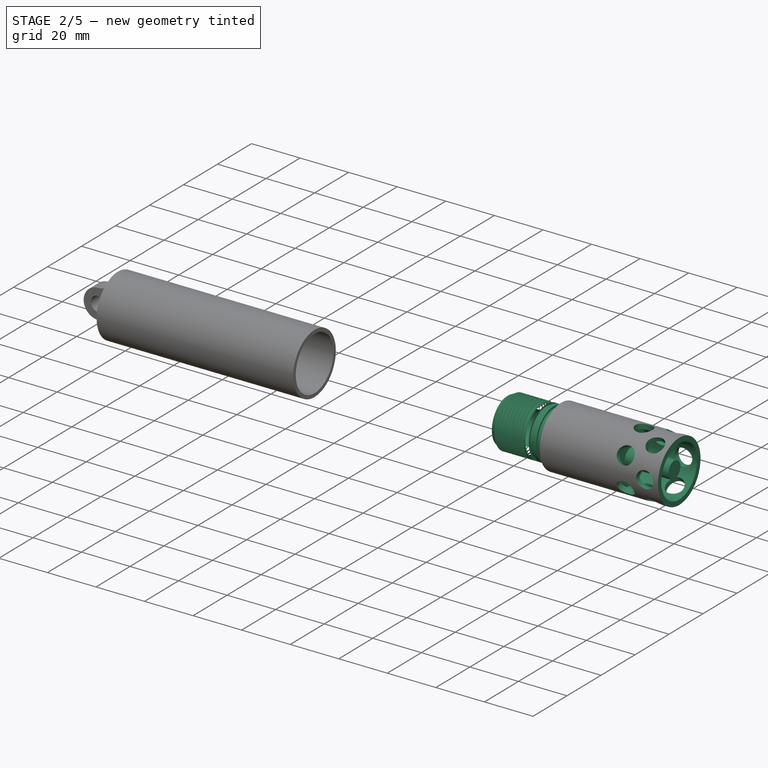
[diagram: stage 2 of 5 — iso view after this stage's code; geometry added in this stage tinted green]
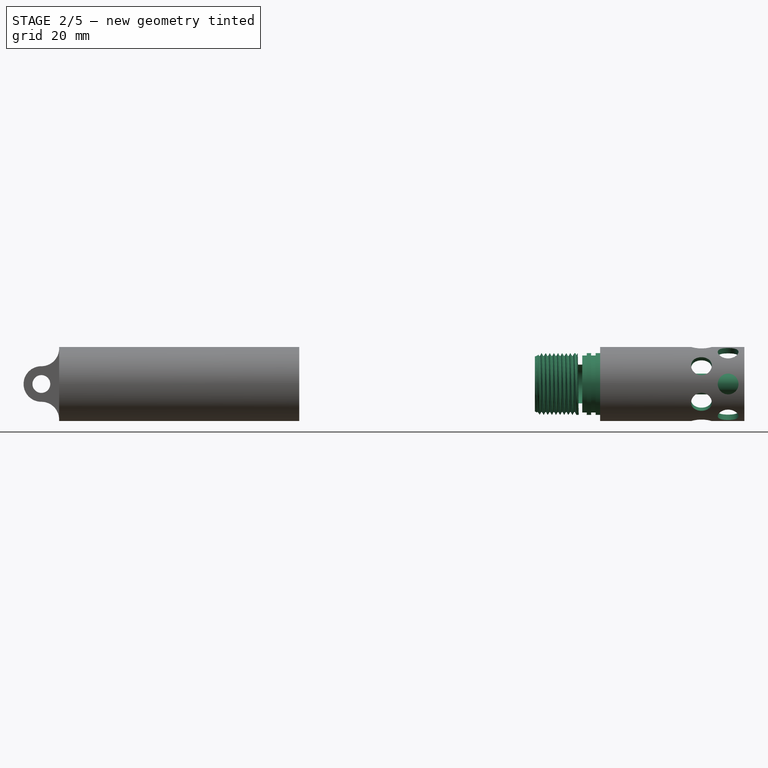
[diagram: stage 2 of 5 — front view after this stage's code; geometry added in this stage tinted green]
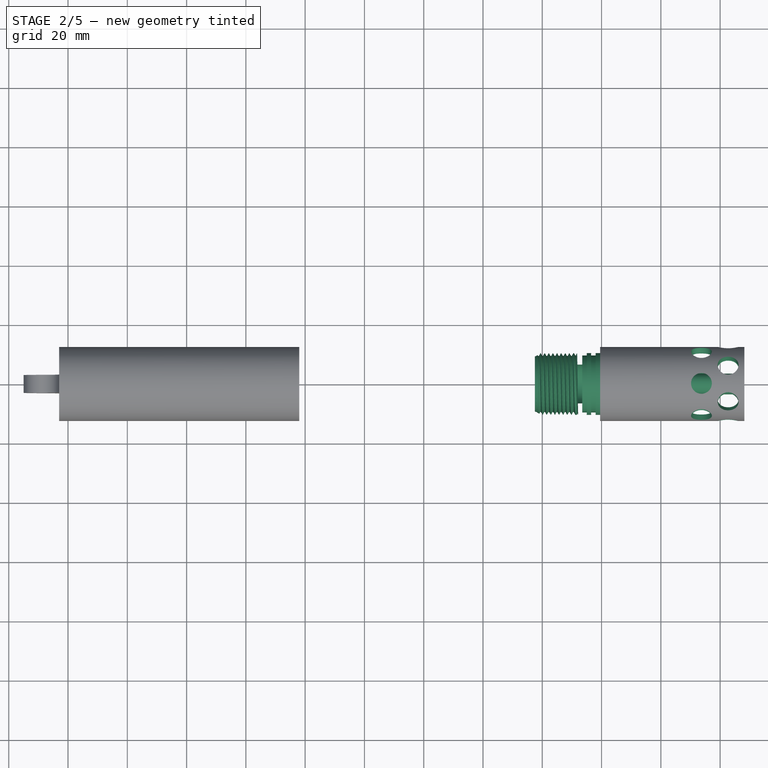
[diagram: stage 2 of 5 — top view after this stage's code; geometry added in this stage tinted green]
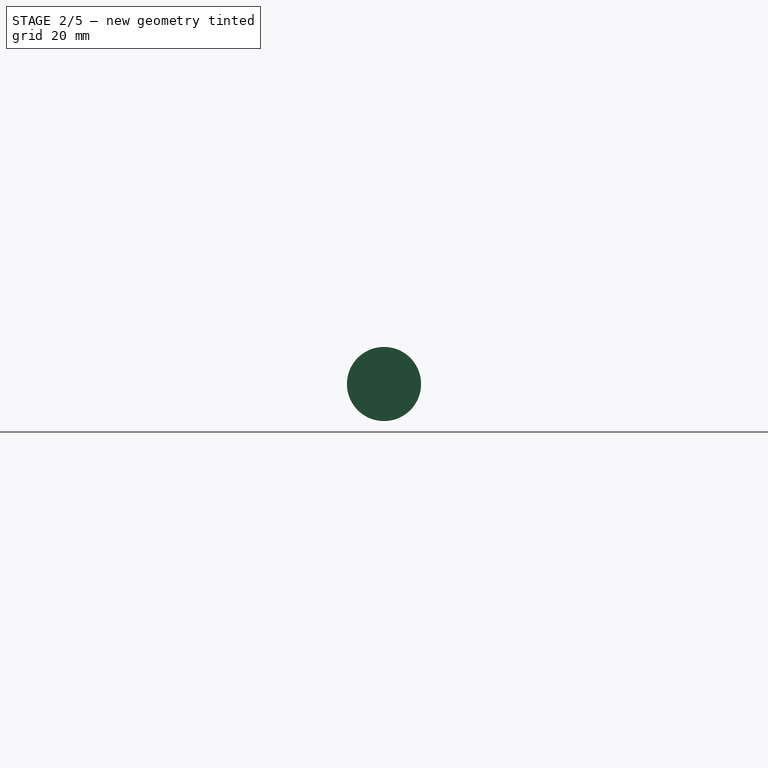
[diagram: stage 2 of 5 — right view after this stage's code; geometry added in this stage tinted green]
FEATURE [Part::Cylinder] Cylinder050  label="Cylinder052"
  Angle = 360
  AttacherType = Attacher::AttachEngine3D
  Height = 20.5
  Placement = pos=(226.5,0,0) rot=(0,1,0;1.5708rad)
  Radius = 1.55
FEATURE [Part::Cylinder] Cylinder051  label="Cylinder053"
  Angle = 360
  AttacherType = Attacher::AttachEngine3D
  Height = 25
  Placement = pos=(150,0,0) rot=(0,1,0;1.5708rad)
  Radius = 9.45
FEATURE [Part::Cylinder] Cylinder052  label="Cylinder054"
  Angle = 360
  AttacherType = Attacher::AttachEngine3D
  Height = 46
  Placement = pos=(180.5,0,0) rot=(0,1,0;1.5708rad)
  Radius = 6.55
FEATURE [Sketcher::SketchObject] Sketch021  label="T020"
  Placement = pos=(157,0,-10.45) rot=(1,0,0;1.5708rad)
  sketch-geometry (3):
    g0: LineSegment StartX=0.00120621 StartY=1.19996 StartZ=0 EndX=-0.691594 EndY=0 EndZ=0
    g1: LineSegment StartX=0.694006 StartY=0 StartZ=0 EndX=0.00120621 EndY=1.19996 EndZ=0
    g2: LineSegment StartX=-0.691594 StartY=0 StartZ=0 EndX=0.694006 EndY=0 EndZ=0
  constraints (8):
    c: PointOnObject(g1,g-1)
    c: Coincident(g1,g0)
    c: Coincident(g2,g0)
    c: Coincident(g2,g1)
    c: Horizontal(g2)
    c: Angle(g2,g0) = 1.0472
    c: Angle(g1,g2) = 1.0472
    c: Distance(g0,g0) = 1.3856
FEATURE [Part::Cone] Cone002
  Angle = 360
  AttacherType = Attacher::AttachEngine3D
  Height = 2
  Placement = pos=(158,0,0) rot=(0,1,0;1.5708rad)
  Radius1 = 9
  Radius2 = 10
FEATURE [Part::Cylinder] Cylinder053  label="Cylinder062"
  Angle = 360
  AttacherType = Attacher::AttachEngine3D
  Height = 3
  Placement = pos=(157.5,8.5,0) rot=(0,1,0;1.5708rad)
  Radius = 0.55
FEATURE [Part::Helix] Helix017
  Angle = 0
  AttacherType = Attacher::AttachEngine3D
  Height = 13.86
  LocalCoord = 0
  Pitch = 1.3856
  Placement = pos=(157,0,0) rot=(0,1,0;1.5708rad)
  Radius = 10.5
  Style = 1
FEATURE [Part::Sweep] Sweep014
  Frenet = true
  Sections = -> [Sketch021]
  Solid = true
  Spine = -> Helix017
  Transition = 1
FEATURE [Part::Cut] Cut037
  Base = -> Sweep014
  Tool = -> Cylinder051
FEATURE [Part::Cylinder] Cylinder054  label="Cylinder060"
  Angle = 360
  AttacherType = Attacher::AttachEngine3D
  Height = 1.5
  Placement = pos=(178,0,0) rot=(0,1,0;1.5708rad)
  Radius = 9.6
FEATURE [Part::Cylinder] Cylinder055  label="Cylinder059"
  Angle = 360
  AttacherType = Attacher::AttachEngine3D
  Height = 22
  Placement = pos=(180.5,0,0) rot=(0,1,0;1.5708rad)
  Radius = 10.4
FEATURE [Part::Cylinder] Cylinder056  label="Cylinder061"
  Angle = 360
  AttacherType = Attacher::AttachEngine3D
  Height = 1.5
  Placement = pos=(178,0,0) rot=(0,1,0;1.5708rad)
  Radius = 9.6
FEATURE [Sketcher::SketchObject] Sketch022  label="T021"
  Placement = pos=(170.856,0,-10.45) rot=(1,0,0;1.5708rad)
  sketch-geometry (3):
    g0: LineSegment StartX=0.00120621 StartY=1.19996 StartZ=0 EndX=-0.691594 EndY=0 EndZ=0
    g1: LineSegment StartX=0.694006 StartY=0 StartZ=0 EndX=0.00120621 EndY=1.19996 EndZ=0
    g2: LineSegment StartX=-0.691594 StartY=0 StartZ=0 EndX=0.694006 EndY=0 EndZ=0
  constraints (8):
    c: PointOnObject(g1,g-1)
    c: Coincident(g1,g0)
    c: Coincident(g2,g0)
    c: Coincident(g2,g1)
    c: Horizontal(g2)
    c: Angle(g2,g0) = 1.0472
    c: Angle(g1,g2) = 1.0472
    c: Distance(g0,g0) = 1.3856
FEATURE [Part::Cylinder] Cylinder058  label="Cylinder064"
  Angle = 360
  AttacherType = Attacher::AttachEngine3D
  Height = 22
  Placement = pos=(180.5,0,0) rot=(0,1,0;1.5708rad)
  Radius = 12.5
FEATURE [Part::Cut] Cut045
  Base = -> Cylinder058
  Tool = -> Cylinder055
FEATURE [Part::Helix] Helix018
  Angle = 35.82
  AttacherType = Attacher::AttachEngine3D
  Height = 1.3856
  LocalCoord = 0
  Pitch = 1.3856
  Placement = pos=(170.856,0,0) rot=(0,1,0;1.5708rad)
  Radius = 9.25
  Style = 1
FEATURE [Part::Sweep] Sweep015
  Frenet = true
  Sections = -> [Sketch022]
  Solid = true
  Spine = -> Helix018
  Transition = 1
FEATURE [Part::Cut] Cut039
  Base = -> Sweep015
  Tool = -> Cylinder051
FEATURE [Part::Cylinder] Cylinder059  label="Cylinder057"
  Angle = 360
  AttacherType = Attacher::AttachEngine3D
  Height = 18
  Placement = pos=(231.2,0,0) rot=(0,1,0;1.5708rad)
  Radius = 3.5
FEATURE [Part::Cylinder] Cylinder060  label="Cylinder065"
  Angle = 360
  AttacherType = Attacher::AttachEngine3D
  Height = 1.5
  Placement = pos=(178,0,0) rot=(0,1,0;1.5708rad)
  Radius = 10.5
FEATURE [Part::Cylinder] Cylinder061  label="Cylinder066"
  Angle = 360
  AttacherType = Attacher::AttachEngine3D
  Height = 1.5
  Placement = pos=(178,0,0) rot=(0,1,0;1.5708rad)
  Radius = 10.5
FEATURE [Part::Cut] Cut044
  Base = -> Cylinder061
  Placement = pos=(-1.5,0,0) rot=(0,0,1;0rad)
  Tool = -> Cylinder056
FEATURE [Part::Cone] Cone003
  Angle = 360
  AttacherType = Attacher::AttachEngine3D
  Height = 2
  Placement = pos=(158,0,0) rot=(0,1,0;1.5708rad)
  Radius1 = 20
  Radius2 = 21
FEATURE [Part::Cut] Cut047
  Base = -> Cone003
  Placement = pos=(-1,0,0) rot=(0,0,1;0rad)
  Tool = -> Cone002
FEATURE [Part::MultiFuse] Fusion011
  Shapes = -> [Cylinder050,Cylinder052]
FEATURE [Part::Cut] Cut051
  Base = -> Cylinder060
  Placement = pos=(-4.5,0,0) rot=(0,0,1;0rad)
  Tool = -> Cylinder054
FEATURE [Part::Cut] Cut054
  Base = -> Cut053
  Tool = -> Fusion013
FEATURE [Part::MultiFuse] Fusion014
  Shapes = -> [Cut054,Cylinder059]
FEATURE [Part::Cut] Cut055
  Base = -> Fusion014
  Tool = -> Fusion011
FEATURE [Part::Cut] Cut056
  Base = -> Cut055
  Placement = pos=(-23,0,0) rot=(0,0,1;0rad)
  Tool = -> Cut045
FEATURE [Part::Cut] Cut057
  Base = -> Cut056
  Tool = -> Cut037
FEATURE [Part::Cut] Cut058
  Base = -> Cut057
  Tool = -> Cut039
FEATURE [Part::Cut] Cut059
  Base = -> Cut058
  Tool = -> Cut044
FEATURE [Part::Cut] Cut060
  Base = -> Cut059
  Tool = -> Cut051
FEATURE [Part::Cut] Cut061
  Base = -> Cut060
  Tool = -> Cut047
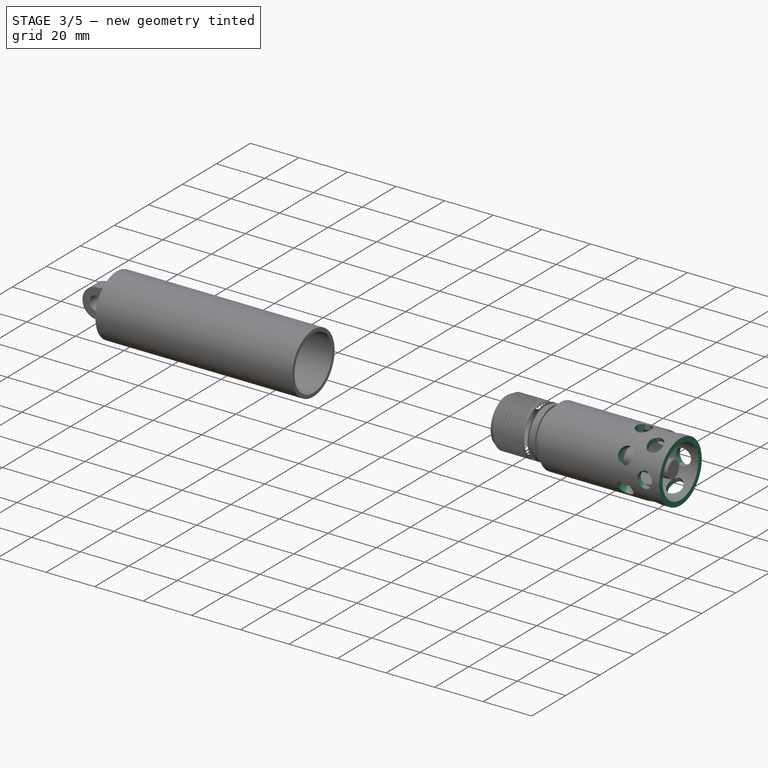
[diagram: stage 3 of 5 — iso view after this stage's code; geometry added in this stage tinted green]
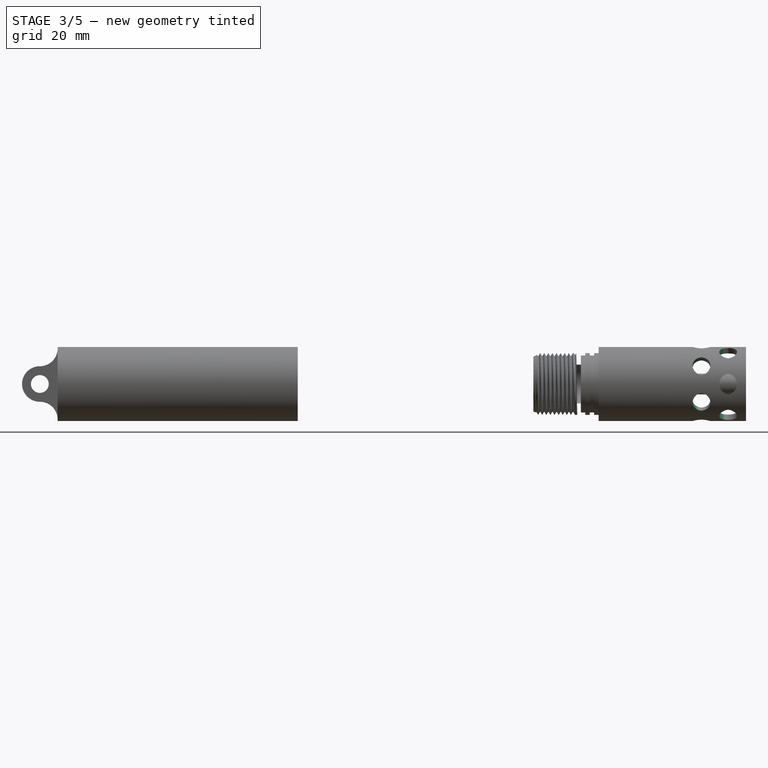
[diagram: stage 3 of 5 — front view after this stage's code; geometry added in this stage tinted green]
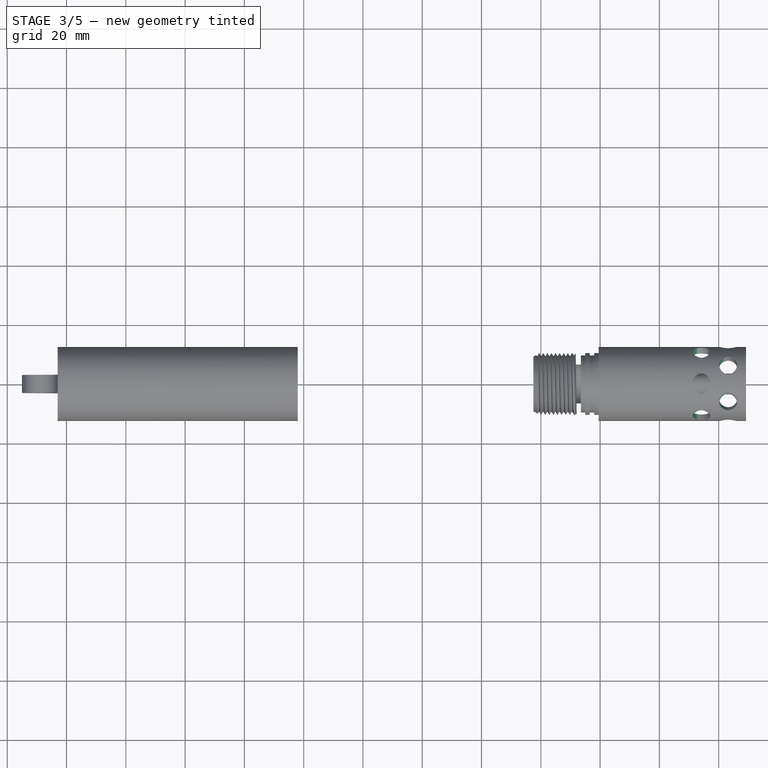
[diagram: stage 3 of 5 — top view after this stage's code; geometry added in this stage tinted green]
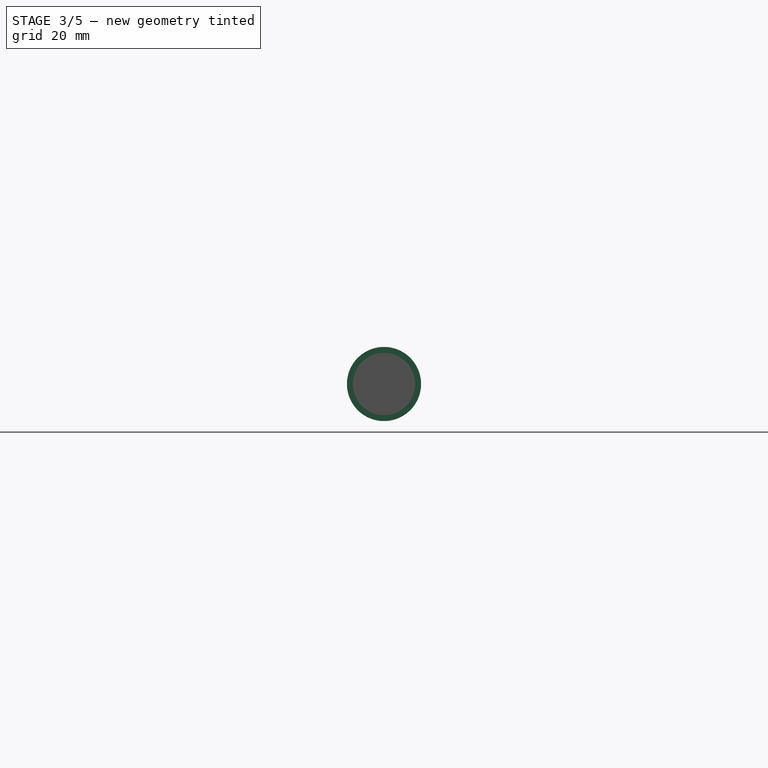
[diagram: stage 3 of 5 — right view after this stage's code; geometry added in this stage tinted green]
FEATURE [Drawing::FeatureViewPart] Ortho009  label="Ortho_1_-1"
  Direction = (0.57735,0.57735,0.57735)
  HiddenWidth = 0.15
  LineWidth = 0.35
  Rotation = 180
  Scale = 2.5
  ShowHiddenLines = true
  ShowSmoothLines = false
  Source = -> Cut027
  Tolerance = 0.05
  ViewResult = <blob: 43385 chars omitted>
  Visible = false
  X = 468.74
  Y = 281.25
FEATURE [Drawing::FeaturePage] Page004
  EditableTexts = Designed by Name | Date | Scale | Weight | Title | Subtitle | Drawing number | Sheet
  Group = -> [Ortho009]
  Template = <path>//share/freecad/Mod/Drawing/Templates/A4_Landscape.svg
FEATURE [Drawing::FeatureViewPart] Ortho007  label="Ortho_1_002"
  Direction = (0,1,0)
  HiddenWidth = 0.15
  LineWidth = 0.35
  Rotation = -90
  Scale = 2
  ShowHiddenLines = true
  ShowSmoothLines = false
  Source = -> Cut021
  Tolerance = 0.05
  ViewResult = <blob: 43705 chars omitted>
  Visible = false
  X = 576.8
  Y = 81.5
FEATURE [Drawing::FeatureViewPart] Ortho006  label="Ortho_0_003"
  Direction = (1,0,0)
  HiddenWidth = 0.15
  LineWidth = 0.35
  Rotation = -90
  Scale = 2
  ShowHiddenLines = true
  ShowSmoothLines = false
  Source = -> Cut021
  Tolerance = 0.05
  ViewResult = <blob: 29687 chars omitted>
  Visible = false
  X = 63.2
  Y = 81.5
FEATURE [Drawing::FeatureViewPython] dim047  # drawing view (typed FeaturePython)
  Rotation = 0
  ViewResult = <g> \n  <line x1="214.800000" y1="102.300000" x2="214.800000" y2="121.419002" style="stroke:rgb(255,0,0);stroke-width:0.10" />\n<line x1="233.774000" y1="102.286000" x2="233.774000" y2="121.419002" style="stroke:rgb(255,0,0);stroke-width:0.10" />\n<line x1="214.800000" y1="120.419002" x2="233.774000" y2="120.419002" style="stroke:rgb(255,0,0);stroke-width:0.10" /> \n  <polygon points="233.774000,120.419002 231.774000,119.919002 231.274000,120.419002 231.774000,120.919002" style="fill:rgb(255,0,0);stroke:rgb(255,0,0);stroke-width:0" /><polygon points="214.800000,120.419002 216.800000,120.919002 217.300000,120.419002 216.800000,119.919002" style="fill:rgb(255,0,0);stroke:rgb(255,0,0);stroke-width:0" /> \n  <text x="224.287000" y="118.419002" font-family="inherit" font-size="3.6" fill="rgb(0,0,0)" text-anchor="middle" transform="rotate(0.000000 224.287000,118.419002)" >9.487</text> </g>
  Visible = false
  X = 0
  Y = 0
  arrowL1 = 2
  arrowL2 = 0.5
  arrowW = 1
  arrow_scheme = 0
  autoPlaceOffset = 2
  autoPlaceText = true
  click1_x = 230.806
  click1_y = 120.419
  click2_x = 230.806
  click2_y = 120.419
  comma_decimal_place = false
  dimension_line_overshoot = 1
  gap_datum_points = 0
  halfDimension_linear = false
  lineColor = rgb(255,0,0)
  strokeWidth = 0.1
  textFormat_linear = %(value)3.3f
  textRenderer_color = rgb(0,0,0)
  textRenderer_family = inherit
  textRenderer_size = 3.6
  unit_custom_scale = 1.1
  unit_scheme = 0
FEATURE [Drawing::FeatureViewPython] dim048  # drawing view (typed FeaturePython)
  Rotation = 0
  ViewResult = <g> \n  <line x1="233.774000" y1="102.286000" x2="233.774000" y2="121.419949" style="stroke:rgb(255,0,0);stroke-width:0.10" />\n<line x1="258.800000" y1="101.751800" x2="258.800000" y2="121.419949" style="stroke:rgb(255,0,0);stroke-width:0.10" />\n<line x1="233.774000" y1="120.419949" x2="258.800000" y2="120.419949" style="stroke:rgb(255,0,0);stroke-width:0.10" /> \n  <polygon points="258.800000,120.419949 256.800000,119.919949 256.300000,120.419949 256.800000,120.919949" style="fill:rgb(255,0,0);stroke:rgb(255,0,0);stroke-width:0" /><polygon points="233.774000,120.419949 235.774000,120.919949 236.274000,120.419949 235.774000,119.919949" style="fill:rgb(255,0,0);stroke:rgb(255,0,0);stroke-width:0" /> \n  <text x="246.287000" y="118.419949" font-family="inherit" font-size="3.6" fill="rgb(0,0,0)" text-anchor="middle" transform="rotate(0.000000 246.287000,118.419949)" >12.513</text> </g>
  Visible = false
  X = 0
  Y = 0
  arrowL1 = 2
  arrowL2 = 0.5
  arrowW = 1
  arrow_scheme = 0
  autoPlaceOffset = 2
  autoPlaceText = true
  click1_x = 247.587
  click1_y = 120.42
  click2_x = 247.587
  click2_y = 120.42
  comma_decimal_place = false
  dimension_line_overshoot = 1
  gap_datum_points = 0
  halfDimension_linear = false
  lineColor = rgb(255,0,0)
  strokeWidth = 0.1
  textFormat_linear = %(value)3.3f
  textRenderer_color = rgb(0,0,0)
  textRenderer_family = inherit
  textRenderer_size = 3.6
  unit_custom_scale = 1.1
  unit_scheme = 0
FEATURE [Drawing::FeatureViewPython] dim046  # drawing view (typed FeaturePython)
  Rotation = 0
  ViewResult = <g> \n  <line x1="168.400000" y1="94.600000" x2="168.400000" y2="132.950922" style="stroke:rgb(255,0,0);stroke-width:0.10" />\n<line x1="258.800000" y1="102.124200" x2="258.800000" y2="132.950922" style="stroke:rgb(255,0,0);stroke-width:0.10" />\n<line x1="168.400000" y1="131.950922" x2="258.800000" y2="131.950922" style="stroke:rgb(255,0,0);stroke-width:0.10" /> \n  <polygon points="258.800000,131.950922 256.800000,131.450922 256.300000,131.950922 256.800000,132.450922" style="fill:rgb(255,0,0);stroke:rgb(255,0,0);stroke-width:0" /><polygon points="168.400000,131.950922 170.400000,132.450922 170.900000,131.950922 170.400000,131.450922" style="fill:rgb(255,0,0);stroke:rgb(255,0,0);stroke-width:0" /> \n  <text x="213.600000" y="129.950922" font-family="inherit" font-size="3.6" fill="rgb(0,0,0)" text-anchor="middle" transform="rotate(0.000000 213.600000,129.950922)" >45.2</text> </g>
  Visible = false
  X = 0
  Y = 0
  arrowL1 = 2
  arrowL2 = 0.5
  arrowW = 1
  arrow_scheme = 0
  autoPlaceOffset = 2
  autoPlaceText = true
  click1_x = 257.694
  click1_y = 131.951
  click2_x = 257.694
  click2_y = 131.951
  comma_decimal_place = false
  dimension_line_overshoot = 1
  gap_datum_points = 0
  halfDimension_linear = false
  lineColor = rgb(255,0,0)
  strokeWidth = 0.1
  textFormat_linear = %(value)3.3f
  textRenderer_color = rgb(0,0,0)
  textRenderer_family = inherit
  textRenderer_size = 3.6
  unit_custom_scale = 1.1
  unit_scheme = 0
FEATURE [Drawing::FeatureViewPython] dim039  # drawing view (typed FeaturePython)
  Rotation = 0
  ViewResult = <g> \n  <line x1="126.000000" y1="84.600000" x2="126.000000" y2="132.950922" style="stroke:rgb(255,0,0);stroke-width:0.10" />\n<line x1="168.400000" y1="94.600000" x2="168.400000" y2="132.950922" style="stroke:rgb(255,0,0);stroke-width:0.10" />\n<line x1="126.000000" y1="131.950922" x2="168.400000" y2="131.950922" style="stroke:rgb(255,0,0);stroke-width:0.10" /> \n  <polygon points="168.400000,131.950922 166.400000,131.450922 165.900000,131.950922 166.400000,132.450922" style="fill:rgb(255,0,0);stroke:rgb(255,0,0);stroke-width:0" /><polygon points="126.000000,131.950922 128.000000,132.450922 128.500000,131.950922 128.000000,131.450922" style="fill:rgb(255,0,0);stroke:rgb(255,0,0);stroke-width:0" /> \n  <text x="147.200000" y="129.950922" font-family="inherit" font-size="3.6" fill="rgb(0,0,0)" text-anchor="middle" transform="rotate(0.000000 147.200000,129.950922)" >21.2</text> </g>
  Visible = false
  X = 0
  Y = 0
  arrowL1 = 2
  arrowL2 = 0.5
  arrowW = 1
  arrow_scheme = 0
  autoPlaceOffset = 2
  autoPlaceText = true
  click1_x = 149.888
  click1_y = 131.951
  click2_x = 149.888
  click2_y = 131.951
  comma_decimal_place = false
  dimension_line_overshoot = 1
  gap_datum_points = 0
  halfDimension_linear = false
  lineColor = rgb(255,0,0)
  strokeWidth = 0.1
  textFormat_linear = %(value)3.3f
  textRenderer_color = rgb(0,0,0)
  textRenderer_family = inherit
  textRenderer_size = 3.6
  unit_custom_scale = 1.1
  unit_scheme = 0
FEATURE [Drawing::FeatureViewPython] dim037  # drawing view (typed FeaturePython)
  Rotation = 0
  ViewResult = <g> \n  <line x1="258.800000" y1="94.600000" x2="258.800000" y2="143.812031" style="stroke:rgb(255,0,0);stroke-width:0.10" />\n<line x1="120.400000" y1="88.500000" x2="120.400000" y2="143.812031" style="stroke:rgb(255,0,0);stroke-width:0.10" />\n<line x1="258.800000" y1="142.812031" x2="120.400000" y2="142.812031" style="stroke:rgb(255,0,0);stroke-width:0.10" /> \n  <polygon points="120.400000,142.812031 122.400000,143.312031 122.900000,142.812031 122.400000,142.312031" style="fill:rgb(255,0,0);stroke:rgb(255,0,0);stroke-width:0" /><polygon points="258.800000,142.812031 256.800000,142.312031 256.300000,142.812031 256.800000,143.312031" style="fill:rgb(255,0,0);stroke:rgb(255,0,0);stroke-width:0" /> \n  <text x="189.600000" y="140.812031" font-family="inherit" font-size="3.6" fill="rgb(0,0,0)" text-anchor="middle" transform="rotate(0.000000 189.600000,140.812031)" >69.2</text> </g>
  Visible = false
  X = 0
  Y = 0
  arrowL1 = 2
  arrowL2 = 0.5
  arrowW = 1
  arrow_scheme = 0
  autoPlaceOffset = 2
  autoPlaceText = true
  click1_x = 204.016
  click1_y = 142.812
  click2_x = 204.016
  click2_y = 142.812
  comma_decimal_place = false
  dimension_line_overshoot = 1
  gap_datum_points = 0
  halfDimension_linear = false
  lineColor = rgb(255,0,0)
  strokeWidth = 0.1
  textFormat_linear = %(value)3.3f
  textRenderer_color = rgb(0,0,0)
  textRenderer_family = inherit
  textRenderer_size = 3.6
  unit_custom_scale = 1.1
  unit_scheme = 0
FEATURE [Drawing::FeatureViewPython] dim045  # drawing view (typed FeaturePython)
  Rotation = 0
  ViewResult = <g> \n  <line x1="214.800000" y1="56.500000" x2="282.336931" y2="56.500000" style="stroke:rgb(255,0,0);stroke-width:0.10" />\n<line x1="214.800000" y1="106.500000" x2="282.336931" y2="106.500000" style="stroke:rgb(255,0,0);stroke-width:0.10" />\n<line x1="281.336931" y1="56.500000" x2="281.336931" y2="106.500000" style="stroke:rgb(255,0,0);stroke-width:0.10" /> \n  <polygon points="281.336931,106.500000 281.836931,104.500000 281.336931,104.000000 280.836931,104.500000" style="fill:rgb(255,0,0);stroke:rgb(255,0,0);stroke-width:0" /><polygon points="281.336931,56.500000 280.836931,58.500000 281.336931,59.000000 281.836931,58.500000" style="fill:rgb(255,0,0);stroke:rgb(255,0,0);stroke-width:0" /> \n  <text x="279.336931" y="81.500000" font-family="inherit" font-size="3.6" fill="rgb(0,0,0)" text-anchor="middle" transform="rotate(-90.000000 279.336931,81.500000)" >25</text> </g>
  Visible = false
  X = 0
  Y = 0
  arrowL1 = 2
  arrowL2 = 0.5
  arrowW = 1
  arrow_scheme = 0
  autoPlaceOffset = 2
  autoPlaceText = true
  click1_x = 281.337
  click1_y = 110.147
  click2_x = 281.337
  click2_y = 110.147
  comma_decimal_place = false
  dimension_line_overshoot = 1
  gap_datum_points = 0
  halfDimension_linear = false
  lineColor = rgb(255,0,0)
  strokeWidth = 0.1
  textFormat_linear = %(value)3.3f
  textRenderer_color = rgb(0,0,0)
  textRenderer_family = inherit
  textRenderer_size = 3.6
  unit_custom_scale = 1.1
  unit_scheme = 0
FEATURE [Drawing::FeatureViewPython] dim044  # drawing view (typed FeaturePython)
  Rotation = 0
  ViewResult = <g> \n  <line x1="254.558000" y1="60.714000" x2="266.539036" y2="60.714000" style="stroke:rgb(255,0,0);stroke-width:0.10" />\n<line x1="256.100000" y1="62.600000" x2="266.539036" y2="62.600000" style="stroke:rgb(255,0,0);stroke-width:0.10" />\n<line x1="265.539036" y1="60.714000" x2="265.539036" y2="62.600000" style="stroke:rgb(255,0,0);stroke-width:0.10" /> \n  <polygon points="265.539036,62.600000 265.039036,64.600000 265.539036,65.100000 266.039036,64.600000" style="fill:rgb(255,0,0);stroke:rgb(255,0,0);stroke-width:0" /><polygon points="265.539036,60.714000 266.039036,58.714000 265.539036,58.214000 265.039036,58.714000" style="fill:rgb(255,0,0);stroke:rgb(255,0,0);stroke-width:0" /> \n  <text x="263.539036" y="61.657000" font-family="inherit" font-size="3.6" fill="rgb(0,0,0)" text-anchor="middle" transform="rotate(-90.000000 263.539036,61.657000)" >0.943</text> </g>
  Visible = false
  X = 0
  Y = 0
  arrowL1 = 2
  arrowL2 = 0.5
  arrowW = 1
  arrow_scheme = 0
  autoPlaceOffset = 2
  autoPlaceText = true
  click1_x = 265.539
  click1_y = 61.7903
  click2_x = 265.539
  click2_y = 61.7903
  comma_decimal_place = false
  dimension_line_overshoot = 1
  gap_datum_points = 0
  halfDimension_linear = false
  lineColor = rgb(255,0,0)
  strokeWidth = 0.1
  textFormat_linear = %(value)3.3f
  textRenderer_color = rgb(0,0,0)
  textRenderer_family = inherit
  textRenderer_size = 3.6
  unit_custom_scale = 1.1
  unit_scheme = 0
FEATURE [Drawing::FeatureViewPython] dim042  # drawing view (typed FeaturePython)
  Rotation = 0
  ViewResult = <g> \n  <line x1="257.330000" y1="60.714000" x2="275.075414" y2="60.714000" style="stroke:rgb(255,0,0);stroke-width:0.10" />\n<line x1="255.944000" y1="102.286000" x2="275.075414" y2="102.286000" style="stroke:rgb(255,0,0);stroke-width:0.10" />\n<line x1="274.075414" y1="60.714000" x2="274.075414" y2="102.286000" style="stroke:rgb(255,0,0);stroke-width:0.10" /> \n  <polygon points="274.075414,102.286000 274.575414,100.286000 274.075414,99.786000 273.575414,100.286000" style="fill:rgb(255,0,0);stroke:rgb(255,0,0);stroke-width:0" /><polygon points="274.075414,60.714000 273.575414,62.714000 274.075414,63.214000 274.575414,62.714000" style="fill:rgb(255,0,0);stroke:rgb(255,0,0);stroke-width:0" /> \n  <text x="272.075414" y="81.500000" font-family="inherit" font-size="3.6" fill="rgb(0,0,0)" text-anchor="middle" transform="rotate(-90.000000 272.075414,81.500000)" >20.786</text> </g>
  Visible = false
  X = 0
  Y = 0
  arrowL1 = 2
  arrowL2 = 0.5
  arrowW = 1
  arrow_scheme = 0
  autoPlaceOffset = 2
  autoPlaceText = true
  click1_x = 274.075
  click1_y = 98.1802
  click2_x = 274.075
  click2_y = 98.1802
  comma_decimal_place = false
  dimension_line_overshoot = 1
  gap_datum_points = 0
  halfDimension_linear = false
  lineColor = rgb(255,0,0)
  strokeWidth = 0.1
  textFormat_linear = %(value)3.3f
  textRenderer_color = rgb(0,0,0)
  textRenderer_family = inherit
  textRenderer_size = 3.6
  unit_custom_scale = 1.1
  unit_scheme = 0
FEATURE [Drawing::FeatureViewPython] dim043  # drawing view (typed FeaturePython)
  Rotation = 0
  ViewResult = <g> \n  <line x1="258.800000" y1="62.637700" x2="268.588372" y2="62.637700" style="stroke:rgb(255,0,0);stroke-width:0.10" />\n<line x1="257.486000" y1="100.400000" x2="268.588372" y2="100.400000" style="stroke:rgb(255,0,0);stroke-width:0.10" />\n<line x1="267.588372" y1="62.637700" x2="267.588372" y2="100.400000" style="stroke:rgb(255,0,0);stroke-width:0.10" /> \n  <polygon points="267.588372,100.400000 268.088372,98.400000 267.588372,97.900000 267.088372,98.400000" style="fill:rgb(255,0,0);stroke:rgb(255,0,0);stroke-width:0" /><polygon points="267.588372,62.637700 267.088372,64.637700 267.588372,65.137700 268.088372,64.637700" style="fill:rgb(255,0,0);stroke:rgb(255,0,0);stroke-width:0" /> \n  <text x="265.588372" y="81.518850" font-family="inherit" font-size="3.6" fill="rgb(0,0,0)" text-anchor="middle" transform="rotate(-90.000000 265.588372,81.518850)" >18.881</text> </g>
  Visible = false
  X = 0
  Y = 0
  arrowL1 = 2
  arrowL2 = 0.5
  arrowW = 1
  arrow_scheme = 0
  autoPlaceOffset = 2
  autoPlaceText = true
  click1_x = 267.588
  click1_y = 95.0941
  click2_x = 267.588
  click2_y = 95.0941
  comma_decimal_place = false
  dimension_line_overshoot = 1
  gap_datum_points = 0
  halfDimension_linear = false
  lineColor = rgb(255,0,0)
  strokeWidth = 0.1
  textFormat_linear = %(value)3.3f
  textRenderer_color = rgb(0,0,0)
  textRenderer_family = inherit
  textRenderer_size = 3.6
  unit_custom_scale = 1.1
  unit_scheme = 0
FEATURE [Drawing::FeatureViewPython] dim040  # drawing view (typed FeaturePython)
  Rotation = 0
  ViewResult = <g> \n  <line x1="258.800000" y1="62.637700" x2="258.800000" y2="44.737469" style="stroke:rgb(255,0,0);stroke-width:0.10" />\n<line x1="214.800000" y1="56.500000" x2="214.800000" y2="44.737469" style="stroke:rgb(255,0,0);stroke-width:0.10" />\n<line x1="258.800000" y1="45.737469" x2="214.800000" y2="45.737469" style="stroke:rgb(255,0,0);stroke-width:0.10" /> \n  <polygon points="214.800000,45.737469 216.800000,46.237469 217.300000,45.737469 216.800000,45.237469" style="fill:rgb(255,0,0);stroke:rgb(255,0,0);stroke-width:0" /><polygon points="258.800000,45.737469 256.800000,45.237469 256.300000,45.737469 256.800000,46.237469" style="fill:rgb(255,0,0);stroke:rgb(255,0,0);stroke-width:0" /> \n  <text x="236.800000" y="43.737469" font-family="inherit" font-size="3.6" fill="rgb(0,0,0)" text-anchor="middle" transform="rotate(0.000000 236.800000,43.737469)" >22</text> </g>
  Visible = false
  X = 0
  Y = 0
  arrowL1 = 2
  arrowL2 = 0.5
  arrowW = 1
  arrow_scheme = 0
  autoPlaceOffset = 2
  autoPlaceText = true
  click1_x = 218.42
  click1_y = 45.7375
  click2_x = 218.42
  click2_y = 45.7375
  comma_decimal_place = false
  dimension_line_overshoot = 1
  gap_datum_points = 0
  halfDimension_linear = false
  lineColor = rgb(255,0,0)
  strokeWidth = 0.1
  textFormat_linear = %(value)3.3f
  textRenderer_color = rgb(0,0,0)
  textRenderer_family = inherit
  textRenderer_size = 3.6
  unit_custom_scale = 1.1
  unit_scheme = 0
FEATURE [Drawing::FeatureViewPython] dim038  # drawing view (typed FeaturePython)
  Rotation = 0
  ViewResult = <g> \n  <line x1="158.400000" y1="56.500000" x2="158.400000" y2="44.679612" style="stroke:rgb(255,0,0);stroke-width:0.10" />\n<line x1="214.800000" y1="56.500000" x2="214.800000" y2="44.679612" style="stroke:rgb(255,0,0);stroke-width:0.10" />\n<line x1="158.400000" y1="45.679612" x2="214.800000" y2="45.679612" style="stroke:rgb(255,0,0);stroke-width:0.10" /> \n  <polygon points="214.800000,45.679612 212.800000,45.179612 212.300000,45.679612 212.800000,46.179612" style="fill:rgb(255,0,0);stroke:rgb(255,0,0);stroke-width:0" /><polygon points="158.400000,45.679612 160.400000,46.179612 160.900000,45.679612 160.400000,45.179612" style="fill:rgb(255,0,0);stroke:rgb(255,0,0);stroke-width:0" /> \n  <text x="186.600000" y="43.679612" font-family="inherit" font-size="3.6" fill="rgb(0,0,0)" text-anchor="middle" transform="rotate(0.000000 186.600000,43.679612)" >28.2</text> </g>
  Visible = false
  X = 0
  Y = 0
  arrowL1 = 2
  arrowL2 = 0.5
  arrowW = 1
  arrow_scheme = 0
  autoPlaceOffset = 2
  autoPlaceText = true
  click1_x = 216.094
  click1_y = 45.6796
  click2_x = 216.094
  click2_y = 45.6796
  comma_decimal_place = false
  dimension_line_overshoot = 1
  gap_datum_points = 0
  halfDimension_linear = false
  lineColor = rgb(255,0,0)
  strokeWidth = 0.1
  textFormat_linear = %(value)3.3f
  textRenderer_color = rgb(0,0,0)
  textRenderer_family = inherit
  textRenderer_size = 3.6
  unit_custom_scale = 1.1
  unit_scheme = 0
FEATURE [Drawing::FeatureViewPython] dim036  # drawing view (typed FeaturePython)
  Rotation = 0
  ViewResult = <g> \n  <line x1="126.000000" y1="78.400000" x2="126.049961" y2="52.632052" style="stroke:rgb(255,0,0);stroke-width:0.10" />\n<line x1="158.400000" y1="78.462820" x2="158.449961" y2="52.694872" style="stroke:rgb(255,0,0);stroke-width:0.10" />\n<line x1="126.048022" y1="53.632050" x2="158.448022" y2="53.694870" style="stroke:rgb(255,0,0);stroke-width:0.10" /> \n  <polygon points="158.448022,53.694870 156.448996,53.190993 155.948027,53.690022 156.447057,54.190991" style="fill:rgb(255,0,0);stroke:rgb(255,0,0);stroke-width:0" /><polygon points="126.048022,53.632050 128.047049,54.135926 128.548018,53.636897 128.048988,53.135928" style="fill:rgb(255,0,0);stroke:rgb(255,0,0);stroke-width:0" /> \n  <text x="142.251900" y="51.663463" font-family="inherit" font-size="3.6" fill="rgb(0,0,0)" text-anchor="middle" transform="rotate(0.111090 142.251900,51.663463)" >16.2</text> </g>
  Visible = false
  X = 0
  Y = 0
  arrowL1 = 2
  arrowL2 = 0.5
  arrowW = 1
  arrow_scheme = 0
  autoPlaceOffset = 2
  autoPlaceText = true
  click1_x = 159.48
  click1_y = 53.6969
  click2_x = 159.48
  click2_y = 53.6969
  comma_decimal_place = false
  dimension_line_overshoot = 1
  gap_datum_points = 0
  halfDimension_linear = false
  lineColor = rgb(255,0,0)
  strokeWidth = 0.1
  textFormat_linear = %(value)3.3f
  textRenderer_color = rgb(0,0,0)
  textRenderer_family = inherit
  textRenderer_size = 3.6
  unit_custom_scale = 1.1
  unit_scheme = 0
FEATURE [Drawing::FeatureViewPython] dim034  # drawing view (typed FeaturePython)
  Rotation = 0
  ViewResult = <g> \n  <line x1="120.400000" y1="74.500000" x2="107.084745" y2="74.500000" style="stroke:rgb(255,0,0);stroke-width:0.10" />\n<line x1="120.400000" y1="88.500000" x2="107.084745" y2="88.500000" style="stroke:rgb(255,0,0);stroke-width:0.10" />\n<line x1="108.084745" y1="74.500000" x2="108.084745" y2="88.500000" style="stroke:rgb(255,0,0);stroke-width:0.10" /> \n  <polygon points="108.084745,88.500000 108.584745,86.500000 108.084745,86.000000 107.584745,86.500000" style="fill:rgb(255,0,0);stroke:rgb(255,0,0);stroke-width:0" /><polygon points="108.084745,74.500000 107.584745,76.500000 108.084745,77.000000 108.584745,76.500000" style="fill:rgb(255,0,0);stroke:rgb(255,0,0);stroke-width:0" /> \n  <text x="106.084745" y="81.500000" font-family="inherit" font-size="3.6" fill="rgb(0,0,0)" text-anchor="middle" transform="rotate(-90.000000 106.084745,81.500000)" >7</text> </g>
  Visible = false
  X = 0
  Y = 0
  arrowL1 = 2
  arrowL2 = 0.5
  arrowW = 1
  arrow_scheme = 0
  autoPlaceOffset = 2
  autoPlaceText = true
  click1_x = 108.085
  click1_y = 88.9154
  click2_x = 108.085
  click2_y = 88.9154
  comma_decimal_place = false
  dimension_line_overshoot = 1
  gap_datum_points = 0
  halfDimension_linear = false
  lineColor = rgb(255,0,0)
  strokeWidth = 0.1
  textFormat_linear = %(value)3.3f
  textRenderer_color = rgb(0,0,0)
  textRenderer_family = inherit
  textRenderer_size = 3.6
  unit_custom_scale = 1.1
  unit_scheme = 0
FEATURE [Drawing::FeatureViewPython] dim033  # drawing view (typed FeaturePython)
  Rotation = 0
  ViewResult = <g> \n  <line x1="158.400000" y1="74.500000" x2="158.400000" y2="44.657651" style="stroke:rgb(255,0,0);stroke-width:0.10" />\n<line x1="120.400000" y1="74.500000" x2="120.400000" y2="44.657651" style="stroke:rgb(255,0,0);stroke-width:0.10" />\n<line x1="158.400000" y1="45.657651" x2="120.400000" y2="45.657651" style="stroke:rgb(255,0,0);stroke-width:0.10" /> \n  <polygon points="120.400000,45.657651 122.400000,46.157651 122.900000,45.657651 122.400000,45.157651" style="fill:rgb(255,0,0);stroke:rgb(255,0,0);stroke-width:0" /><polygon points="158.400000,45.657651 156.400000,45.157651 155.900000,45.657651 156.400000,46.157651" style="fill:rgb(255,0,0);stroke:rgb(255,0,0);stroke-width:0" /> \n  <text x="139.400000" y="43.657651" font-family="inherit" font-size="3.6" fill="rgb(0,0,0)" text-anchor="middle" transform="rotate(0.000000 139.400000,43.657651)" >19</text> </g>
  Visible = false
  X = 0
  Y = 0
  arrowL1 = 2
  arrowL2 = 0.5
  arrowW = 1
  arrow_scheme = 0
  autoPlaceOffset = 2
  autoPlaceText = true
  click1_x = 143.931
  click1_y = 45.6577
  click2_x = 143.931
  click2_y = 45.6577
  comma_decimal_place = false
  dimension_line_overshoot = 1
  gap_datum_points = 0
  halfDimension_linear = false
  lineColor = rgb(255,0,0)
  strokeWidth = 0.1
  textFormat_linear = %(value)3.3f
  textRenderer_color = rgb(0,0,0)
  textRenderer_family = inherit
  textRenderer_size = 3.6
  unit_custom_scale = 1.1
  unit_scheme = 0
FEATURE [Drawing::FeatureViewPython] dim035  # drawing view (typed FeaturePython)
  Rotation = 0
  ViewResult = <g> \n  <line x1="120.400000" y1="74.500000" x2="104.513878" y2="74.500000" style="stroke:rgb(255,0,0);stroke-width:0.10" />\n<line x1="120.400000" y1="88.500000" x2="104.513878" y2="88.500000" style="stroke:rgb(255,0,0);stroke-width:0.10" />\n<line x1="105.513878" y1="74.500000" x2="105.513878" y2="88.500000" style="stroke:rgb(255,0,0);stroke-width:0.10" /> \n  <polygon points="105.513878,88.500000 106.013878,86.500000 105.513878,86.000000 105.013878,86.500000" style="fill:rgb(255,0,0);stroke:rgb(255,0,0);stroke-width:0" /><polygon points="105.513878,74.500000 105.013878,76.500000 105.513878,77.000000 106.013878,76.500000" style="fill:rgb(255,0,0);stroke:rgb(255,0,0);stroke-width:0" /> \n  <text x="103.513878" y="81.500000" font-family="inherit" font-size="3.6" fill="rgb(0,0,0)" text-anchor="middle" transform="rotate(-90.000000 103.513878,81.500000)" >7</text> </g>
  Visible = false
  X = 0
  Y = 0
  arrowL1 = 2
  arrowL2 = 0.5
  arrowW = 1
  arrow_scheme = 0
  autoPlaceOffset = 2
  autoPlaceText = true
  click1_x = 105.514
  click1_y = 95.7515
  click2_x = 105.514
  click2_y = 95.7515
  comma_decimal_place = false
  dimension_line_overshoot = 1
  gap_datum_points = 0
  halfDimension_linear = false
  lineColor = rgb(255,0,0)
  strokeWidth = 0.1
  textFormat_linear = %(value)3.3f
  textRenderer_color = rgb(0,0,0)
  textRenderer_family = inherit
  textRenderer_size = 3.6
  unit_custom_scale = 1.1
  unit_scheme = 0
FEATURE [Drawing::FeatureViewPython] dim041  # drawing view (typed FeaturePython)
  Rotation = 0
  ViewResult = <g> \n  <line x1="126.000000" y1="78.400000" x2="114.608098" y2="78.400000" style="stroke:rgb(255,0,0);stroke-width:0.10" />\n<line x1="126.000000" y1="84.600000" x2="114.608098" y2="84.600000" style="stroke:rgb(255,0,0);stroke-width:0.10" />\n<line x1="115.608098" y1="78.400000" x2="115.608098" y2="84.600000" style="stroke:rgb(255,0,0);stroke-width:0.10" /> \n  <polygon points="115.608098,84.600000 115.108098,86.600000 115.608098,87.100000 116.108098,86.600000" style="fill:rgb(255,0,0);stroke:rgb(255,0,0);stroke-width:0" /><polygon points="115.608098,78.400000 116.108098,76.400000 115.608098,75.900000 115.108098,76.400000" style="fill:rgb(255,0,0);stroke:rgb(255,0,0);stroke-width:0" /> \n  <text x="113.608098" y="81.500000" font-family="inherit" font-size="3.6" fill="rgb(0,0,0)" text-anchor="middle" transform="rotate(-90.000000 113.608098,81.500000)" >3.1</text> </g>
  Visible = false
  X = 0
  Y = 0
  arrowL1 = 2
  arrowL2 = 0.5
  arrowW = 1
  arrow_scheme = 0
  autoPlaceOffset = 2
  autoPlaceText = true
  click1_x = 115.608
  click1_y = 82.1756
  click2_x = 115.608
  click2_y = 82.1756
  comma_decimal_place = false
  dimension_line_overshoot = 1
  gap_datum_points = 0
  halfDimension_linear = false
  lineColor = rgb(255,0,0)
  strokeWidth = 0.1
  textFormat_linear = %(value)3.3f
  textRenderer_color = rgb(0,0,0)
  textRenderer_family = inherit
  textRenderer_size = 3.6
  unit_custom_scale = 1.1
  unit_scheme = 0
FEATURE [Drawing::FeatureViewPython] dia006  # drawing view (typed FeaturePython)
  Rotation = 0
  ViewResult = <g>  <circle cx ="63.200000" cy ="81.500000" r="0.250000" stroke="none" fill="rgb(255,0,0)" /> \n<line x1="42.060357" y1="108.085337" x2="65.129388" y2="79.073591" style="stroke:rgb(255,0,0);stroke-width:0.10" />\n<polygon points="61.270612,83.926409 62.906735,82.672176 62.826570,81.969628 62.124022,82.049792" style="fill:rgb(255,0,0);stroke:rgb(255,0,0);stroke-width:0" />\n<polygon points="65.129388,79.073591 63.493265,80.327824 63.573430,81.030372 64.275978,80.950208" style="fill:rgb(255,0,0);stroke:rgb(255,0,0);stroke-width:0" />\n<line x1="42.060357" y1="108.085337" x2="25.757893" y2="108.085337" style="stroke:rgb(255,0,0);stroke-width:0.10" />\n<text x="33.909125" y="106.085337" font-family="inherit" font-size="3.6" fill="rgb(0,0,0)" text-anchor="middle" transform="rotate(0.000000 33.909125,106.085337)" >Ø3.1</text> </g>
  Visible = false
  X = 0
  Y = 0
  arrowL1 = 2
  arrowL2 = 0.5
  arrowW = 1
  arrow_scheme = 0
  autoPlaceOffset = 2
  autoPlaceText = true
  centerPointDia = 0.5
  click1_x = 42.0604
  click1_y = 108.085
  click2_x = 25.7579
  click2_y = 110.205
  click3_x = 25.7579
  click3_y = 110.205
  comma_decimal_place = false
  lineColor = rgb(255,0,0)
  strokeWidth = 0.1
  textFormat_circular = Ø%(value)3.3f
  textRenderer_color = rgb(0,0,0)
  textRenderer_family = inherit
  textRenderer_size = 3.6
  unit_custom_scale = 1.1
  unit_scheme = 0
FEATURE [Drawing::FeatureViewPython] dia007  # drawing view (typed FeaturePython)
  Rotation = 0
  ViewResult = <g>  <circle cx ="63.200000" cy ="81.500000" r="0.250000" stroke="none" fill="rgb(255,0,0)" /> \n<line x1="78.740902" y1="118.192865" x2="60.469988" y2="75.054301" style="stroke:rgb(255,0,0);stroke-width:0.10" />\n<polygon points="65.930012,87.945699 65.610416,85.909070 64.955008,85.643664 64.689602,86.299071" style="fill:rgb(255,0,0);stroke:rgb(255,0,0);stroke-width:0" />\n<polygon points="60.469988,75.054301 60.789584,77.090930 61.444992,77.356336 61.710398,76.700929" style="fill:rgb(255,0,0);stroke:rgb(255,0,0);stroke-width:0" />\n<line x1="78.740902" y1="118.192865" x2="90.804725" y2="118.192865" style="stroke:rgb(255,0,0);stroke-width:0.10" />\n<text x="84.772814" y="116.192865" font-family="inherit" font-size="3.6" fill="rgb(0,0,0)" text-anchor="middle" transform="rotate(0.000000 84.772814,116.192865)" >Ø7</text> </g>
  Visible = false
  X = 0
  Y = 0
  arrowL1 = 2
  arrowL2 = 0.5
  arrowW = 1
  arrow_scheme = 0
  autoPlaceOffset = 2
  autoPlaceText = true
  centerPointDia = 0.5
  click1_x = 78.7409
  click1_y = 118.193
  click2_x = 90.8047
  click2_y = 118.519
  click3_x = 90.8047
  click3_y = 118.519
  comma_decimal_place = false
  lineColor = rgb(255,0,0)
  strokeWidth = 0.1
  textFormat_circular = Ø%(value)3.3f
  textRenderer_color = rgb(0,0,0)
  textRenderer_family = inherit
  textRenderer_size = 3.6
  unit_custom_scale = 1.1
  unit_scheme = 0
FEATURE [Drawing::FeatureViewPython] dia008  # drawing view (typed FeaturePython)
  Rotation = 0
  ViewResult = <g>  <circle cx ="63.200000" cy ="81.500000" r="0.250000" stroke="none" fill="rgb(255,0,0)" /> \n<line x1="94.880341" y1="105.476943" x2="52.754394" y2="73.594350" style="stroke:rgb(255,0,0);stroke-width:0.10" />\n<polygon points="73.645606,89.405650 72.352600,87.799994 71.652170,87.896939 71.749115,88.597368" style="fill:rgb(255,0,0);stroke:rgb(255,0,0);stroke-width:0" />\n<polygon points="52.754394,73.594350 54.047400,75.200006 54.747830,75.103061 54.650885,74.402632" style="fill:rgb(255,0,0);stroke:rgb(255,0,0);stroke-width:0" />\n<line x1="94.880341" y1="105.476943" x2="106.455091" y2="105.476943" style="stroke:rgb(255,0,0);stroke-width:0.10" />\n<text x="100.667716" y="103.476943" font-family="inherit" font-size="3.6" fill="rgb(0,0,0)" text-anchor="middle" transform="rotate(0.000000 100.667716,103.476943)" >Ø13.1</text> </g>
  Visible = false
  X = 0
  Y = 0
  arrowL1 = 2
  arrowL2 = 0.5
  arrowW = 1
  arrow_scheme = 0
  autoPlaceOffset = 2
  autoPlaceText = true
  centerPointDia = 0.5
  click1_x = 94.8803
  click1_y = 105.477
  click2_x = 106.455
  click2_y = 112.813
  click3_x = 106.455
  click3_y = 112.813
  comma_decimal_place = false
  lineColor = rgb(255,0,0)
  strokeWidth = 0.1
  textFormat_circular = Ø%(value)3.3f
  textRenderer_color = rgb(0,0,0)
  textRenderer_family = inherit
  textRenderer_size = 3.6
  unit_custom_scale = 1.1
  unit_scheme = 0
FEATURE [Drawing::FeatureViewPython] dia009  # drawing view (typed FeaturePython)
  Rotation = 0
  ViewResult = <g>  <circle cx ="63.200000" cy ="81.500000" r="0.250000" stroke="none" fill="rgb(255,0,0)" /> \n<line x1="37.821717" y1="51.352762" x2="79.300103" y2="100.625551" style="stroke:rgb(255,0,0);stroke-width:0.10" />\n<polygon points="47.099897,62.374449 48.005394,64.226496 48.709907,64.287005 48.770416,63.582491" style="fill:rgb(255,0,0);stroke:rgb(255,0,0);stroke-width:0" />\n<polygon points="79.300103,100.625551 78.394606,98.773504 77.690093,98.712995 77.629584,99.417509" style="fill:rgb(255,0,0);stroke:rgb(255,0,0);stroke-width:0" />\n<line x1="37.821717" y1="51.352762" x2="25.105795" y2="51.352762" style="stroke:rgb(255,0,0);stroke-width:0.10" />\n<text x="31.463756" y="49.352762" font-family="inherit" font-size="3.6" fill="rgb(0,0,0)" text-anchor="middle" transform="rotate(0.000000 31.463756,49.352762)" >Ø25</text> </g>
  Visible = false
  X = 0
  Y = 0
  arrowL1 = 2
  arrowL2 = 0.5
  arrowW = 1
  arrow_scheme = 0
  autoPlaceOffset = 2
  autoPlaceText = true
  centerPointDia = 0.5
  click1_x = 37.8217
  click1_y = 51.3528
  click2_x = 25.1058
  click2_y = 52.0049
  click3_x = 25.1058
  click3_y = 52.0049
  comma_decimal_place = false
  lineColor = rgb(255,0,0)
  strokeWidth = 0.1
  textFormat_circular = Ø%(value)3.3f
  textRenderer_color = rgb(0,0,0)
  textRenderer_family = inherit
  textRenderer_size = 3.6
  unit_custom_scale = 1.1
  unit_scheme = 0
FEATURE [Drawing::FeatureViewPython] dim049  # drawing view (typed FeaturePython)
  Rotation = 0
  ViewResult = <g> \n  <line x1="168.400000" y1="68.400000" x2="96.651760" y2="68.400000" style="stroke:rgb(255,0,0);stroke-width:0.10" />\n<line x1="168.400000" y1="94.600000" x2="96.651760" y2="94.600000" style="stroke:rgb(255,0,0);stroke-width:0.10" />\n<line x1="97.651760" y1="68.400000" x2="97.651760" y2="94.600000" style="stroke:rgb(255,0,0);stroke-width:0.10" /> \n  <polygon points="97.651760,94.600000 98.151760,92.600000 97.651760,92.100000 97.151760,92.600000" style="fill:rgb(255,0,0);stroke:rgb(255,0,0);stroke-width:0" /><polygon points="97.651760,68.400000 97.151760,70.400000 97.651760,70.900000 98.151760,70.400000" style="fill:rgb(255,0,0);stroke:rgb(255,0,0);stroke-width:0" /> \n  <text x="95.651760" y="81.500000" font-family="inherit" font-size="3.6" fill="rgb(0,0,0)" text-anchor="middle" transform="rotate(-90.000000 95.651760,81.500000)" >13.1</text> </g>
  Visible = false
  X = 0
  Y = 0
  arrowL1 = 2
  arrowL2 = 0.5
  arrowW = 1
  arrow_scheme = 0
  autoPlaceOffset = 2
  autoPlaceText = true
  click1_x = 97.6518
  click1_y = 96.8366
  click2_x = 97.6518
  click2_y = 96.8366
  comma_decimal_place = false
  dimension_line_overshoot = 1
  gap_datum_points = 0
  halfDimension_linear = false
  lineColor = rgb(255,0,0)
  strokeWidth = 0.1
  textFormat_linear = %(value)3.3f
  textRenderer_color = rgb(0,0,0)
  textRenderer_family = inherit
  textRenderer_size = 3.6
  unit_custom_scale = 1.1
  unit_scheme = 0
FEATURE [Drawing::FeaturePage] Page003
  EditableTexts = Designed by Name | Date | Scale | Weight | Title | Subtitle | Drawing number | Sheet
  Group = -> [Ortho006,Ortho007,dim034,dim036,dim038,dim040,dim042,dim043,dim044,dim045,dim037,dim039,dim046,dim047,dim048,dim033,dim035,dim041,dia006,dia007,dia008,dia009,dim049]
  Template = <path>//share/freecad/Mod/Drawing/Templates/A4_Landscape.svg
FEATURE [Part::Cylinder] Cylinder032  label="Cylinder033"
  Angle = 360
  AttacherType = Attacher::AttachEngine3D
  Height = 3
  Placement = pos=(159,8,0) rot=(0,1,0;1.5708rad)
  Radius = 0.5
FEATURE [Part::Cylinder] Cylinder034  label="Cylinder035"
  Angle = 360
  AttacherType = Attacher::AttachEngine3D
  Height = 30
  Placement = pos=(199.2,0,0) rot=(0,1,0;1.5708rad)
  Radius = 12.5
FEATURE [Part::Cylinder] Cylinder035  label="Cylinder036"
  Angle = 360
  AttacherType = Attacher::AttachEngine3D
  Height = 30
  Placement = pos=(199.2,0,0) rot=(0,1,0;1.5708rad)
  Radius = 10.5
FEATURE [Part::Cut] Cut030
  Base = -> Cylinder034
  Tool = -> Cylinder035
FEATURE [Part::Cylinder] Cylinder036  label="Cylinder037"
  Angle = 360
  AttacherType = Attacher::AttachEngine3D
  Height = 50
  Placement = pos=(214.2,0,-25) rot=(0,1,0;0rad)
  Radius = 3.5
FEATURE [Part::Cylinder] Cylinder037  label="Cylinder038"
  Angle = 360
  AttacherType = Attacher::AttachEngine3D
  Height = 50
  Placement = pos=(214.2,21.6506,12.5) rot=(1,0,0;2.0944rad)
  Radius = 3.5
FEATURE [Part::Cylinder] Cylinder038  label="Cylinder039"
  Angle = 360
  AttacherType = Attacher::AttachEngine3D
  Height = 50
  Placement = pos=(214.2,-21.6506,12.5) rot=(-1,0,0;2.0944rad)
  Radius = 3.5
FEATURE [Part::MultiFuse] Fusion006
  Placement = pos=(0.5,0,0) rot=(0,0,1;0rad)
  Shapes = -> [Cylinder036,Cylinder038,Cylinder037]
FEATURE [Part::Cylinder] Cylinder039  label="Cylinder040"
  Angle = 360
  AttacherType = Attacher::AttachEngine3D
  Height = 50
  Placement = pos=(214.2,-21.6506,12.5) rot=(-1,0,0;2.0944rad)
  Radius = 3.5
FEATURE [Part::Cylinder] Cylinder040  label="Cylinder041"
  Angle = 360
  AttacherType = Attacher::AttachEngine3D
  Height = 50
  Placement = pos=(214.2,21.6506,12.5) rot=(1,0,0;2.0944rad)
  Radius = 3.5
FEATURE [Part::Cylinder] Cylinder041  label="Cylinder042"
  Angle = 360
  AttacherType = Attacher::AttachEngine3D
  Height = 50
  Placement = pos=(214.2,0,-25) rot=(0,1,0;0rad)
  Radius = 3.5
FEATURE [Part::MultiFuse] Fusion007
  Placement = pos=(9.5,0,0) rot=(1,0,0;0.523599rad)
  Shapes = -> [Cylinder041,Cylinder039,Cylinder040]
FEATURE [Part::Cut] Cut031
  Base = -> Cut030
  Tool = -> Fusion006
FEATURE [Part::Cut] Cut032
  Base = -> Cut031
  Tool = -> Fusion007
FEATURE [Part::Cylinder] Cylinder042  label="Cylinder045"
  Angle = 360
  AttacherType = Attacher::AttachEngine3D
  Height = 50
  Placement = pos=(214.2,-21.6506,12.5) rot=(-1,0,0;2.0944rad)
  Radius = 3.5
FEATURE [Part::Cylinder] Cylinder043  label="Cylinder046"
  Angle = 360
  AttacherType = Attacher::AttachEngine3D
  Height = 50
  Placement = pos=(214.2,0,-25) rot=(0,1,0;0rad)
  Radius = 3.5
FEATURE [Part::Cylinder] Cylinder044  label="Cylinder048"
  Angle = 360
  AttacherType = Attacher::AttachEngine3D
  Height = 30
  Placement = pos=(199.2,0,0) rot=(0,1,0;1.5708rad)
  Radius = 12.5
FEATURE [Part::Cylinder] Cylinder045  label="Cylinder047"
  Angle = 360
  AttacherType = Attacher::AttachEngine3D
  Height = 50
  Placement = pos=(214.2,-21.6506,12.5) rot=(-1,0,0;2.0944rad)
  Radius = 3.5
FEATURE [Part::Cylinder] Cylinder046  label="Cylinder049"
  Angle = 360
  AttacherType = Attacher::AttachEngine3D
  Height = 50
  Placement = pos=(214.2,21.6506,12.5) rot=(1,0,0;2.0944rad)
  Radius = 3.5
FEATURE [Part::Cylinder] Cylinder047  label="Cylinder043"
  Angle = 360
  AttacherType = Attacher::AttachEngine3D
  Height = 50
  Placement = pos=(214.2,21.6506,12.5) rot=(1,0,0;2.0944rad)
  Radius = 3.5
FEATURE [Part::MultiFuse] Fusion009
  Placement = pos=(9.5,0,0) rot=(1,0,0;0.523599rad)
  Shapes = -> [Cylinder043,Cylinder045,Cylinder047]
FEATURE [Part::Cylinder] Cylinder048  label="Cylinder050"
  Angle = 360
  AttacherType = Attacher::AttachEngine3D
  Height = 30
  Placement = pos=(199.2,0,0) rot=(0,1,0;1.5708rad)
  Radius = 10.5
FEATURE [Part::Cylinder] Cylinder049  label="Cylinder051"
  Angle = 360
  AttacherType = Attacher::AttachEngine3D
  Height = 50
  Placement = pos=(214.2,0,-25) rot=(0,1,0;0rad)
  Radius = 3.5
FEATURE [Part::MultiFuse] Fusion008
  Placement = pos=(0.5,0,0) rot=(0,0,1;0rad)
  Shapes = -> [Cylinder049,Cylinder042,Cylinder046]
FEATURE [Part::Cut] Cut036
  Base = -> Cylinder044
  Tool = -> Cylinder048
FEATURE [Part::Cut] Cut034
  Base = -> Cut036
  Tool = -> Fusion008
FEATURE [Part::Cut] Cut035  label="Protection"
  Base = -> Cut034
  Tool = -> Fusion009
FEATURE [Part::Cylinder] Cylinder062  label="Cylinder067"
  Angle = 360
  AttacherType = Attacher::AttachEngine3D
  Height = 3
  Placement = pos=(157.5,-8.5,0) rot=(0,1,0;1.5708rad)
  Radius = 0.55
FEATURE [Part::Cut] Cut062
  Base = -> Cut061
  Tool = -> Cylinder053
FEATURE [Part::Cut] Cut063  label="SensorHolder2"
  Base = -> Cut062
  Tool = -> Cylinder062
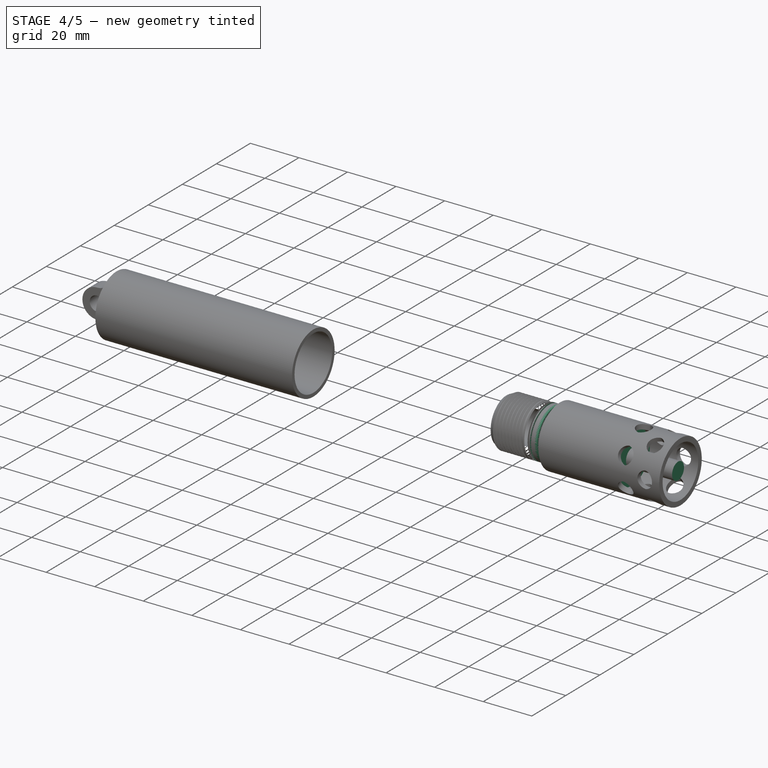
[diagram: stage 4 of 5 — iso view after this stage's code; geometry added in this stage tinted green]
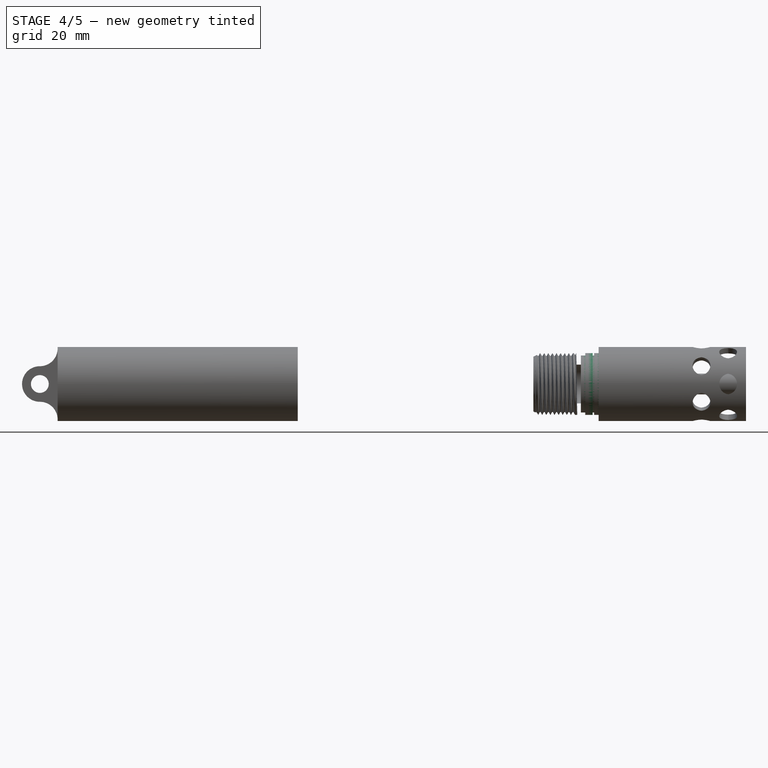
[diagram: stage 4 of 5 — front view after this stage's code; geometry added in this stage tinted green]
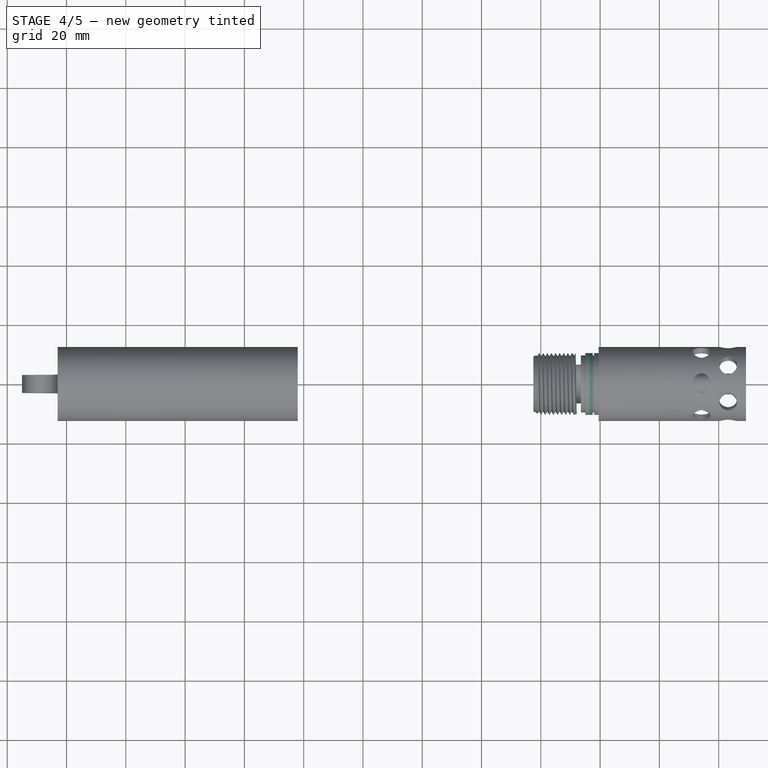
[diagram: stage 4 of 5 — top view after this stage's code; geometry added in this stage tinted green]
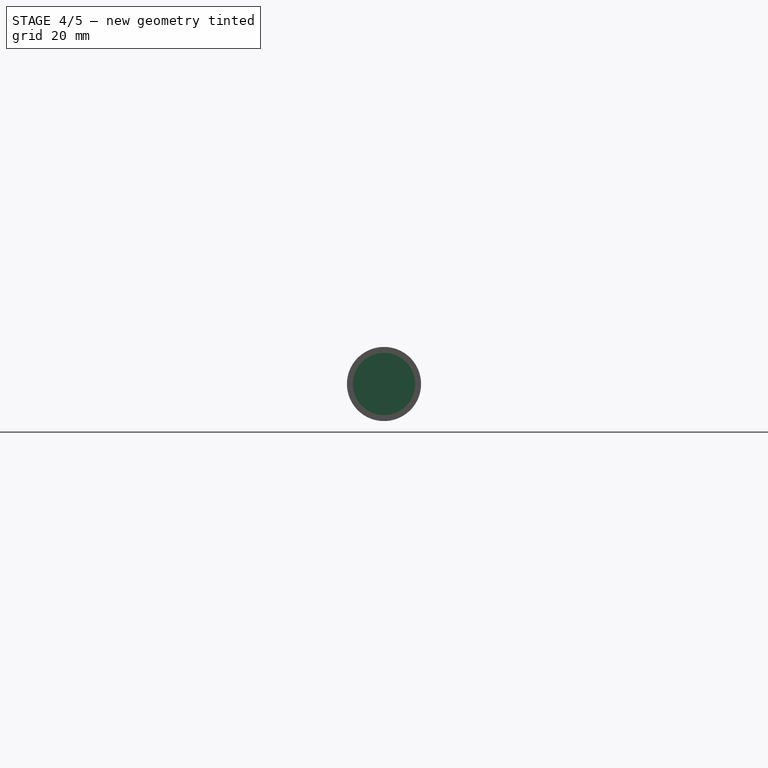
[diagram: stage 4 of 5 — right view after this stage's code; geometry added in this stage tinted green]
FEATURE [Drawing::FeatureViewPart] Ortho002  label="Ortho_0_001"
  Direction = (0,0,1)
  HiddenWidth = 0.15
  LineWidth = 0.35
  Rotation = 0
  Scale = 1.5
  ShowHiddenLines = true
  ShowSmoothLines = false
  Source = -> Cut013
  Tolerance = 0.05
  ViewResult = <blob: 4912 chars omitted>
  Visible = false
  X = 70.8333
  Y = 51.3711
FEATURE [Drawing::FeatureViewPart] Ortho003  label="Ortho_1_001"
  Direction = (1,0,0)
  HiddenWidth = 0.15
  LineWidth = 0.35
  Rotation = 180
  Scale = 1.5
  ShowHiddenLines = true
  ShowSmoothLines = false
  Source = -> Cut013
  Tolerance = 0.05
  ViewResult = <blob: 2801 chars omitted>
  Visible = false
  X = 237.417
  Y = 51.3711
FEATURE [Drawing::FeatureViewPart] Ortho004  label="Ortho_0_-1"
  Direction = (0,-1,0)
  HiddenWidth = 0.15
  LineWidth = 0.35
  Rotation = 90
  Scale = 1.5
  ShowHiddenLines = true
  ShowSmoothLines = false
  Source = -> Cut013
  Tolerance = 0.05
  ViewResult = <blob: 3418 chars omitted>
  Visible = false
  X = 70.8333
  Y = 111.492
FEATURE [Drawing::FeatureViewPython] dia003  # drawing view (typed FeaturePython)
  Rotation = 0
  ViewResult = <g>  <circle cx ="237.417000" cy ="51.371100" r="0.250000" stroke="none" fill="rgb(255,0,0)" /> \n<line x1="268.383177" y1="78.556998" x2="224.961097" y2="40.435785" style="stroke:rgb(255,0,0);stroke-width:0.10" />\n<polygon points="249.872903,62.306415 248.699802,60.611176 247.994184,60.657046 248.040054,61.362663" style="fill:rgb(255,0,0);stroke:rgb(255,0,0);stroke-width:0" />\n<polygon points="224.961097,40.435785 226.134198,42.131024 226.839816,42.085154 226.793946,41.379537" style="fill:rgb(255,0,0);stroke:rgb(255,0,0);stroke-width:0" />\n<line x1="268.383177" y1="78.556998" x2="279.844381" y2="78.556998" style="stroke:rgb(255,0,0);stroke-width:0.10" />\n<text x="274.113779" y="76.556998" font-family="inherit" font-size="3.6" fill="rgb(0,0,0)" text-anchor="middle" transform="rotate(0.000000 274.113779,76.556998)" >Ø22.1</text> </g>
  Visible = false
  X = 0
  Y = 0
  arrowL1 = 2
  arrowL2 = 0.5
  arrowW = 1
  arrow_scheme = 0
  autoPlaceOffset = 2
  autoPlaceText = true
  centerPointDia = 0.5
  click1_x = 268.383
  click1_y = 78.557
  click2_x = 279.844
  click2_y = 77.6019
  click3_x = 279.844
  click3_y = 77.6019
  comma_decimal_place = false
  lineColor = rgb(255,0,0)
  strokeWidth = 0.1
  textFormat_circular = Ø%(value)3.3f
  textRenderer_color = rgb(0,0,0)
  textRenderer_family = inherit
  textRenderer_size = 3.6
  unit_custom_scale = 1
  unit_scheme = 0
FEATURE [Drawing::FeatureViewPython] dia004  # drawing view (typed FeaturePython)
  Rotation = 0
  ViewResult = <g>  <circle cx ="237.417000" cy ="51.371100" r="0.250000" stroke="none" fill="rgb(255,0,0)" /> \n<line x1="258.354625" y1="91.689626" x2="229.778123" y2="36.661301" style="stroke:rgb(255,0,0);stroke-width:0.10" />\n<polygon points="245.055877,66.080899 244.577876,64.075527 243.903708,63.862227 243.690407,64.536395" style="fill:rgb(255,0,0);stroke:rgb(255,0,0);stroke-width:0" />\n<polygon points="229.778123,36.661301 230.256124,38.666673 230.930292,38.879973 231.143593,38.205805" style="fill:rgb(255,0,0);stroke:rgb(255,0,0);stroke-width:0" />\n<line x1="258.354625" y1="91.689626" x2="271.009703" y2="91.689626" style="stroke:rgb(255,0,0);stroke-width:0.10" />\n<text x="264.682164" y="89.689626" font-family="inherit" font-size="3.6" fill="rgb(0,0,0)" text-anchor="middle" transform="rotate(0.000000 264.682164,89.689626)" >Ø22.1</text> </g>
  Visible = false
  X = 0
  Y = 0
  arrowL1 = 2
  arrowL2 = 0.5
  arrowW = 1
  arrow_scheme = 0
  autoPlaceOffset = 2
  autoPlaceText = true
  centerPointDia = 0.5
  click1_x = 258.355
  click1_y = 91.6896
  click2_x = 271.01
  click2_y = 94.3162
  click3_x = 271.01
  click3_y = 94.3162
  comma_decimal_place = false
  lineColor = rgb(255,0,0)
  strokeWidth = 0.1
  textFormat_circular = Ø%(value)3.3f
  textRenderer_color = rgb(0,0,0)
  textRenderer_family = inherit
  textRenderer_size = 3.6
  unit_custom_scale = 1
  unit_scheme = 0
FEATURE [Drawing::FeatureViewPython] dia005  # drawing view (typed FeaturePython)
  Rotation = 0
  ViewResult = <g>  <circle cx ="57.333300" cy ="111.492000" r="0.250000" stroke="none" fill="rgb(255,0,0)" /> \n<line x1="48.108209" y1="141.832391" x2="58.642366" y2="107.186614" style="stroke:rgb(255,0,0);stroke-width:0.10" />\n<polygon points="56.024234,115.797386 57.084417,114.029333 56.751493,113.405505 56.127665,113.738429" style="fill:rgb(255,0,0);stroke:rgb(255,0,0);stroke-width:0" />\n<polygon points="58.642366,107.186614 57.582183,108.954667 57.915107,109.578495 58.538935,109.245571" style="fill:rgb(255,0,0);stroke:rgb(255,0,0);stroke-width:0" />\n<line x1="48.108209" y1="141.832391" x2="36.997859" y2="141.832391" style="stroke:rgb(255,0,0);stroke-width:0.10" />\n<text x="42.553034" y="139.832391" font-family="inherit" font-size="3.6" fill="rgb(0,0,0)" text-anchor="middle" transform="rotate(0.000000 42.553034,139.832391)" >Ø6</text> </g>
  Visible = false
  X = 0
  Y = 0
  arrowL1 = 2
  arrowL2 = 0.5
  arrowW = 1
  arrow_scheme = 0
  autoPlaceOffset = 2
  autoPlaceText = true
  centerPointDia = 0.5
  click1_x = 48.1082
  click1_y = 141.832
  click2_x = 36.9979
  click2_y = 142.787
  click3_x = 36.9979
  click3_y = 142.787
  comma_decimal_place = false
  lineColor = rgb(255,0,0)
  strokeWidth = 0.1
  textFormat_circular = Ø%(value)3.3f
  textRenderer_color = rgb(0,0,0)
  textRenderer_family = inherit
  textRenderer_size = 3.6
  unit_custom_scale = 1
  unit_scheme = 0
FEATURE [Drawing::FeatureViewPython] dim004  # drawing view (typed FeaturePython)
  Rotation = 0
  ViewResult = <g> \n  <line x1="45.333300" y1="46.871100" x2="45.333300" y2="78.092001" style="stroke:rgb(255,0,0);stroke-width:0.10" />\n<line x1="66.333300" y1="46.871100" x2="66.333300" y2="78.092001" style="stroke:rgb(255,0,0);stroke-width:0.10" />\n<line x1="45.333300" y1="77.092001" x2="66.333300" y2="77.092001" style="stroke:rgb(255,0,0);stroke-width:0.10" /> \n  <polygon points="66.333300,77.092001 64.333300,76.592001 63.833300,77.092001 64.333300,77.592001" style="fill:rgb(255,0,0);stroke:rgb(255,0,0);stroke-width:0" /><polygon points="45.333300,77.092001 47.333300,77.592001 47.833300,77.092001 47.333300,76.592001" style="fill:rgb(255,0,0);stroke:rgb(255,0,0);stroke-width:0" /> \n  <text x="55.833300" y="75.092001" font-family="inherit" font-size="3.6" fill="rgb(0,0,0)" text-anchor="middle" transform="rotate(0.000000 55.833300,75.092001)" >14</text> </g>
  Visible = false
  X = 0
  Y = 0
  arrowL1 = 2
  arrowL2 = 0.5
  arrowW = 1
  arrow_scheme = 0
  autoPlaceOffset = 2
  autoPlaceText = true
  click1_x = 51.8995
  click1_y = 77.092
  click2_x = 51.8995
  click2_y = 77.092
  comma_decimal_place = false
  dimension_line_overshoot = 1
  gap_datum_points = 0
  halfDimension_linear = false
  lineColor = rgb(255,0,0)
  strokeWidth = 0.1
  textFormat_linear = %(value)3.3f
  textRenderer_color = rgb(0,0,0)
  textRenderer_family = inherit
  textRenderer_size = 3.6
  unit_custom_scale = 1
  unit_scheme = 0
FEATURE [Drawing::FeatureViewPython] dim005  # drawing view (typed FeaturePython)
  Rotation = 0
  ViewResult = <g> \n  <line x1="54.527550" y1="55.871100" x2="54.527550" y2="49.298195" style="stroke:rgb(255,0,0);stroke-width:0.10" />\n<line x1="53.815050" y1="55.871100" x2="53.815050" y2="49.298195" style="stroke:rgb(255,0,0);stroke-width:0.10" />\n<line x1="54.527550" y1="50.298195" x2="53.815050" y2="50.298195" style="stroke:rgb(255,0,0);stroke-width:0.10" /> \n  <polygon points="53.815050,50.298195 51.815050,49.798195 51.315050,50.298195 51.815050,50.798195" style="fill:rgb(255,0,0);stroke:rgb(255,0,0);stroke-width:0" /><polygon points="54.527550,50.298195 56.527550,50.798195 57.027550,50.298195 56.527550,49.798195" style="fill:rgb(255,0,0);stroke:rgb(255,0,0);stroke-width:0" /> \n  <text x="54.171300" y="48.298195" font-family="inherit" font-size="3.6" fill="rgb(0,0,0)" text-anchor="middle" transform="rotate(-0.000000 54.171300,48.298195)" >0.475</text> </g>
  Visible = false
  X = 0
  Y = 0
  arrowL1 = 2
  arrowL2 = 0.5
  arrowW = 1
  arrow_scheme = 0
  autoPlaceOffset = 2
  autoPlaceText = true
  click1_x = 39.9563
  click1_y = 50.2982
  click2_x = 39.9563
  click2_y = 50.2982
  comma_decimal_place = false
  dimension_line_overshoot = 1
  gap_datum_points = 0
  halfDimension_linear = false
  lineColor = rgb(255,0,0)
  strokeWidth = 0.1
  textFormat_linear = %(value)3.3f
  textRenderer_color = rgb(0,0,0)
  textRenderer_family = inherit
  textRenderer_size = 3.6
  unit_custom_scale = 1
  unit_scheme = 0
FEATURE [Drawing::FeatureViewPython] dim006  # drawing view (typed FeaturePython)
  Rotation = 0
  ViewResult = <g> \n  <line x1="54.171300" y1="46.871100" x2="54.171300" y2="38.525627" style="stroke:rgb(255,0,0);stroke-width:0.10" />\n<line x1="59.712390" y1="46.871100" x2="59.712390" y2="38.525627" style="stroke:rgb(255,0,0);stroke-width:0.10" />\n<line x1="54.171300" y1="39.525627" x2="59.712390" y2="39.525627" style="stroke:rgb(255,0,0);stroke-width:0.10" /> \n  <polygon points="59.712390,39.525627 61.712390,40.025627 62.212390,39.525627 61.712390,39.025627" style="fill:rgb(255,0,0);stroke:rgb(255,0,0);stroke-width:0" /><polygon points="54.171300,39.525627 52.171300,39.025627 51.671300,39.525627 52.171300,40.025627" style="fill:rgb(255,0,0);stroke:rgb(255,0,0);stroke-width:0" /> \n  <text x="56.941845" y="37.525627" font-family="inherit" font-size="3.6" fill="rgb(0,0,0)" text-anchor="middle" transform="rotate(0.000000 56.941845,37.525627)" >3.694</text> </g>
  Visible = false
  X = 0
  Y = 0
  arrowL1 = 2
  arrowL2 = 0.5
  arrowW = 1
  arrow_scheme = 0
  autoPlaceOffset = 2
  autoPlaceText = true
  click1_x = 61.4788
  click1_y = 39.5256
  click2_x = 61.4788
  click2_y = 39.5256
  comma_decimal_place = false
  dimension_line_overshoot = 1
  gap_datum_points = 0
  halfDimension_linear = false
  lineColor = rgb(255,0,0)
  strokeWidth = 0.1
  textFormat_linear = %(value)3.3f
  textRenderer_color = rgb(0,0,0)
  textRenderer_family = inherit
  textRenderer_size = 3.6
  unit_custom_scale = 1
  unit_scheme = 0
FEATURE [Drawing::FeatureViewPython] dim007  # drawing view (typed FeaturePython)
  Rotation = 0
  ViewResult = <g> \n  <line x1="74.133300" y1="67.893975" x2="74.133300" y2="78.145112" style="stroke:rgb(255,0,0);stroke-width:0.10" />\n<line x1="66.333300" y1="70.121100" x2="66.333300" y2="78.145112" style="stroke:rgb(255,0,0);stroke-width:0.10" />\n<line x1="74.133300" y1="77.145112" x2="66.333300" y2="77.145112" style="stroke:rgb(255,0,0);stroke-width:0.10" /> \n  <polygon points="66.333300,77.145112 68.333300,77.645112 68.833300,77.145112 68.333300,76.645112" style="fill:rgb(255,0,0);stroke:rgb(255,0,0);stroke-width:0" /><polygon points="74.133300,77.145112 72.133300,76.645112 71.633300,77.145112 72.133300,77.645112" style="fill:rgb(255,0,0);stroke:rgb(255,0,0);stroke-width:0" /> \n  <text x="70.233300" y="75.145112" font-family="inherit" font-size="3.6" fill="rgb(0,0,0)" text-anchor="middle" transform="rotate(0.000000 70.233300,75.145112)" >5.2</text> </g>
  Visible = false
  X = 0
  Y = 0
  arrowL1 = 2
  arrowL2 = 0.5
  arrowW = 1
  arrow_scheme = 0
  autoPlaceOffset = 2
  autoPlaceText = true
  click1_x = 71.4472
  click1_y = 77.1451
  click2_x = 71.4472
  click2_y = 77.1451
  comma_decimal_place = false
  dimension_line_overshoot = 1
  gap_datum_points = 0
  halfDimension_linear = false
  lineColor = rgb(255,0,0)
  strokeWidth = 0.1
  textFormat_linear = %(value)3.3f
  textRenderer_color = rgb(0,0,0)
  textRenderer_family = inherit
  textRenderer_size = 3.6
  unit_custom_scale = 1
  unit_scheme = 0
FEATURE [Drawing::FeatureViewPython] dim008  # drawing view (typed FeaturePython)
  Rotation = 0
  ViewResult = <g> \n  <line x1="187.833300" y1="32.739000" x2="98.406660" y2="32.739000" style="stroke:rgb(255,0,0);stroke-width:0.10" />\n<line x1="187.833300" y1="32.621100" x2="98.406660" y2="32.621100" style="stroke:rgb(255,0,0);stroke-width:0.10" />\n<line x1="99.406660" y1="32.739000" x2="99.406660" y2="32.621100" style="stroke:rgb(255,0,0);stroke-width:0.10" /> \n  <polygon points="99.406660,32.621100 99.906660,30.621100 99.406660,30.121100 98.906660,30.621100" style="fill:rgb(255,0,0);stroke:rgb(255,0,0);stroke-width:0" /><polygon points="99.406660,32.739000 98.906660,34.739000 99.406660,35.239000 99.906660,34.739000" style="fill:rgb(255,0,0);stroke:rgb(255,0,0);stroke-width:0" /> \n  <text x="97.406660" y="32.680050" font-family="inherit" font-size="3.6" fill="rgb(0,0,0)" text-anchor="middle" transform="rotate(-90.000000 97.406660,32.680050)" >0.079</text> </g>
  Visible = false
  X = 0
  Y = 0
  arrowL1 = 2
  arrowL2 = 0.5
  arrowW = 1
  arrow_scheme = 0
  autoPlaceOffset = 2
  autoPlaceText = true
  click1_x = 99.4067
  click1_y = 20.8944
  click2_x = 99.4067
  click2_y = 20.8944
  comma_decimal_place = false
  dimension_line_overshoot = 1
  gap_datum_points = 0
  halfDimension_linear = false
  lineColor = rgb(255,0,0)
  strokeWidth = 0.1
  textFormat_linear = %(value)3.3f
  textRenderer_color = rgb(0,0,0)
  textRenderer_family = inherit
  textRenderer_size = 3.6
  unit_custom_scale = 1
  unit_scheme = 0
FEATURE [Drawing::FeatureViewPython] dim010  # drawing view (typed FeaturePython)
  Rotation = 0
  ViewResult = <g> \n  <line x1="187.833300" y1="32.621100" x2="200.334396" y2="32.621100" style="stroke:rgb(255,0,0);stroke-width:0.10" />\n<line x1="187.833300" y1="70.121100" x2="200.334396" y2="70.121100" style="stroke:rgb(255,0,0);stroke-width:0.10" />\n<line x1="199.334396" y1="32.621100" x2="199.334396" y2="70.121100" style="stroke:rgb(255,0,0);stroke-width:0.10" /> \n  <polygon points="199.334396,70.121100 199.834396,68.121100 199.334396,67.621100 198.834396,68.121100" style="fill:rgb(255,0,0);stroke:rgb(255,0,0);stroke-width:0" /><polygon points="199.334396,32.621100 198.834396,34.621100 199.334396,35.121100 199.834396,34.621100" style="fill:rgb(255,0,0);stroke:rgb(255,0,0);stroke-width:0" /> \n  <text x="197.334396" y="51.371100" font-family="inherit" font-size="3.6" fill="rgb(0,0,0)" text-anchor="middle" transform="rotate(-90.000000 197.334396,51.371100)" >25</text> </g>
  Visible = false
  X = 0
  Y = 0
  arrowL1 = 2
  arrowL2 = 0.5
  arrowW = 1
  arrow_scheme = 0
  autoPlaceOffset = 2
  autoPlaceText = true
  click1_x = 199.334
  click1_y = 69.317
  click2_x = 199.334
  click2_y = 69.317
  comma_decimal_place = false
  dimension_line_overshoot = 1
  gap_datum_points = 0
  halfDimension_linear = false
  lineColor = rgb(255,0,0)
  strokeWidth = 0.1
  textFormat_linear = %(value)3.3f
  textRenderer_color = rgb(0,0,0)
  textRenderer_family = inherit
  textRenderer_size = 3.6
  unit_custom_scale = 1
  unit_scheme = 0
FEATURE [Drawing::FeatureViewPython] dim009  # drawing view (typed FeaturePython)
  Rotation = 0
  ViewResult = <g> \n  <line x1="187.833300" y1="92.742000" x2="214.581291" y2="92.742000" style="stroke:rgb(255,0,0);stroke-width:0.10" />\n<line x1="187.833300" y1="130.242000" x2="214.581291" y2="130.242000" style="stroke:rgb(255,0,0);stroke-width:0.10" />\n<line x1="213.581291" y1="92.742000" x2="213.581291" y2="130.242000" style="stroke:rgb(255,0,0);stroke-width:0.10" /> \n  <polygon points="213.581291,130.242000 214.081291,128.242000 213.581291,127.742000 213.081291,128.242000" style="fill:rgb(255,0,0);stroke:rgb(255,0,0);stroke-width:0" /><polygon points="213.581291,92.742000 213.081291,94.742000 213.581291,95.242000 214.081291,94.742000" style="fill:rgb(255,0,0);stroke:rgb(255,0,0);stroke-width:0" /> \n  <text x="211.581291" y="111.492000" font-family="inherit" font-size="3.6" fill="rgb(0,0,0)" text-anchor="middle" transform="rotate(-90.000000 211.581291,111.492000)" >25</text> </g>
  Visible = false
  X = 0
  Y = 0
  arrowL1 = 2
  arrowL2 = 0.5
  arrowW = 1
  arrow_scheme = 0
  autoPlaceOffset = 2
  autoPlaceText = true
  click1_x = 213.581
  click1_y = 134.675
  click2_x = 213.581
  click2_y = 134.675
  comma_decimal_place = false
  dimension_line_overshoot = 1
  gap_datum_points = 0
  halfDimension_linear = false
  lineColor = rgb(255,0,0)
  strokeWidth = 0.1
  textFormat_linear = %(value)3.3f
  textRenderer_color = rgb(0,0,0)
  textRenderer_family = inherit
  textRenderer_size = 3.6
  unit_custom_scale = 1
  unit_scheme = 0
FEATURE [Drawing::FeatureViewPython] dim011  # drawing view (typed FeaturePython)
  Rotation = 0
  ViewResult = <g> \n  <line x1="187.833300" y1="94.917000" x2="204.161358" y2="94.917000" style="stroke:rgb(255,0,0);stroke-width:0.10" />\n<line x1="187.833300" y1="128.067000" x2="204.161358" y2="128.067000" style="stroke:rgb(255,0,0);stroke-width:0.10" />\n<line x1="203.161358" y1="94.917000" x2="203.161358" y2="128.067000" style="stroke:rgb(255,0,0);stroke-width:0.10" /> \n  <polygon points="203.161358,128.067000 203.661358,126.067000 203.161358,125.567000 202.661358,126.067000" style="fill:rgb(255,0,0);stroke:rgb(255,0,0);stroke-width:0" /><polygon points="203.161358,94.917000 202.661358,96.917000 203.161358,97.417000 203.661358,96.917000" style="fill:rgb(255,0,0);stroke:rgb(255,0,0);stroke-width:0" /> \n  <text x="201.161358" y="111.492000" font-family="inherit" font-size="3.6" fill="rgb(0,0,0)" text-anchor="middle" transform="rotate(-90.000000 201.161358,111.492000)" >22.1</text> </g>
  Visible = false
  X = 0
  Y = 0
  arrowL1 = 2
  arrowL2 = 0.5
  arrowW = 1
  arrow_scheme = 0
  autoPlaceOffset = 2
  autoPlaceText = true
  click1_x = 203.161
  click1_y = 128.848
  click2_x = 203.161
  click2_y = 128.848
  comma_decimal_place = false
  dimension_line_overshoot = 1
  gap_datum_points = 0
  halfDimension_linear = false
  lineColor = rgb(255,0,0)
  strokeWidth = 0.1
  textFormat_linear = %(value)3.3f
  textRenderer_color = rgb(0,0,0)
  textRenderer_family = inherit
  textRenderer_size = 3.6
  unit_custom_scale = 1
  unit_scheme = 0
FEATURE [Drawing::FeatureViewPython] dim012  # drawing view (typed FeaturePython)
  Rotation = 0
  ViewResult = <g> \n  <line x1="52.833300" y1="111.492000" x2="38.727329" y2="111.492000" style="stroke:rgb(255,0,0);stroke-width:0.10" />\n<line x1="45.333300" y1="92.742000" x2="38.727329" y2="92.742000" style="stroke:rgb(255,0,0);stroke-width:0.10" />\n<line x1="39.727329" y1="111.492000" x2="39.727329" y2="92.742000" style="stroke:rgb(255,0,0);stroke-width:0.10" /> \n  <polygon points="39.727329,92.742000 39.227329,94.742000 39.727329,95.242000 40.227329,94.742000" style="fill:rgb(255,0,0);stroke:rgb(255,0,0);stroke-width:0" /><polygon points="39.727329,111.492000 40.227329,109.492000 39.727329,108.992000 39.227329,109.492000" style="fill:rgb(255,0,0);stroke:rgb(255,0,0);stroke-width:0" /> \n  <text x="37.727329" y="102.117000" font-family="inherit" font-size="3.6" fill="rgb(0,0,0)" text-anchor="middle" transform="rotate(-90.000000 37.727329,102.117000)" >12.5</text> </g>
  Visible = false
  X = 0
  Y = 0
  arrowL1 = 2
  arrowL2 = 0.5
  arrowW = 1
  arrow_scheme = 0
  autoPlaceOffset = 2
  autoPlaceText = true
  click1_x = 39.7273
  click1_y = 107.189
  click2_x = 39.7273
  click2_y = 107.189
  comma_decimal_place = false
  dimension_line_overshoot = 1
  gap_datum_points = 0
  halfDimension_linear = false
  lineColor = rgb(255,0,0)
  strokeWidth = 0.1
  textFormat_linear = %(value)3.3f
  textRenderer_color = rgb(0,0,0)
  textRenderer_family = inherit
  textRenderer_size = 3.6
  unit_custom_scale = 1
  unit_scheme = 0
FEATURE [Drawing::FeatureViewPython] dim013  # drawing view (typed FeaturePython)
  Rotation = 0
  ViewResult = <g> \n  <line x1="74.133300" y1="67.893975" x2="74.133300" y2="78.138603" style="stroke:rgb(255,0,0);stroke-width:0.10" />\n<line x1="187.833300" y1="70.121100" x2="187.833300" y2="78.138603" style="stroke:rgb(255,0,0);stroke-width:0.10" />\n<line x1="74.133300" y1="77.138603" x2="187.833300" y2="77.138603" style="stroke:rgb(255,0,0);stroke-width:0.10" /> \n  <polygon points="187.833300,77.138603 185.833300,76.638603 185.333300,77.138603 185.833300,77.638603" style="fill:rgb(255,0,0);stroke:rgb(255,0,0);stroke-width:0" /><polygon points="74.133300,77.138603 76.133300,77.638603 76.633300,77.138603 76.133300,76.638603" style="fill:rgb(255,0,0);stroke:rgb(255,0,0);stroke-width:0" /> \n  <text x="130.983300" y="75.138603" font-family="inherit" font-size="3.6" fill="rgb(0,0,0)" text-anchor="middle" transform="rotate(0.000000 130.983300,75.138603)" >75.8</text> </g>
  Visible = false
  X = 0
  Y = 0
  arrowL1 = 2
  arrowL2 = 0.5
  arrowW = 1
  arrow_scheme = 0
  autoPlaceOffset = 2
  autoPlaceText = true
  click1_x = 179.228
  click1_y = 77.1386
  click2_x = 179.228
  click2_y = 77.1386
  comma_decimal_place = false
  dimension_line_overshoot = 1
  gap_datum_points = 0
  halfDimension_linear = false
  lineColor = rgb(255,0,0)
  strokeWidth = 0.1
  textFormat_linear = %(value)3.3f
  textRenderer_color = rgb(0,0,0)
  textRenderer_family = inherit
  textRenderer_size = 3.6
  unit_custom_scale = 1
  unit_scheme = 0
FEATURE [Drawing::FeaturePage] Page001  label="BatCap"
  EditableTexts = Designed by Name | Date | Scale | Weight | Title | Subtitle | Drawing number | Sheet
  Group = -> [Ortho002,Ortho003,Ortho004,dia003,dia004,dia005,dim004,dim005,dim006,dim007,dim008,dim010,dim009,dim011,dim012,dim013]
  Template = <path>//share/freecad/Mod/Drawing/Templates/A4_Landscape.svg
FEATURE [Part::Feature] Fusion003_cs
  shape: bbox 103 x 6.566e-05 x 25 mm, 0 faces, 0 solids (baked)
FEATURE [Drawing::FeatureViewPart] Ortho005  label="Ortho_0_002"
  Direction = (0,1,0)
  HiddenWidth = 0.15
  LineWidth = 0.35
  Rotation = -90
  Scale = 2
  ShowHiddenLines = false
  ShowSmoothLines = false
  Source = -> Fusion003_cs
  Tolerance = 0.05
  ViewResult = <blob: 5243 chars omitted>
  Visible = false
  X = 407.5
  Y = 81.5
FEATURE [Drawing::FeatureViewPython] dim014  # drawing view (typed FeaturePython)
  Rotation = 0
  ViewResult = <g> \n  <line x1="251.500000" y1="56.500000" x2="251.500000" y2="33.526578" style="stroke:rgb(255,0,0);stroke-width:0.10" />\n<line x1="45.500000" y1="56.500000" x2="45.500000" y2="33.526578" style="stroke:rgb(255,0,0);stroke-width:0.10" />\n<line x1="251.500000" y1="34.526578" x2="45.500000" y2="34.526578" style="stroke:rgb(255,0,0);stroke-width:0.10" /> \n  <polygon points="45.500000,34.526578 47.500000,35.026578 48.000000,34.526578 47.500000,34.026578" style="fill:rgb(255,0,0);stroke:rgb(255,0,0);stroke-width:0" /><polygon points="251.500000,34.526578 249.500000,34.026578 249.000000,34.526578 249.500000,35.026578" style="fill:rgb(255,0,0);stroke:rgb(255,0,0);stroke-width:0" /> \n  <text x="148.500000" y="32.526578" font-family="inherit" font-size="3.6" fill="rgb(0,0,0)" text-anchor="middle" transform="rotate(0.000000 148.500000,32.526578)" >103</text> </g>
  Visible = false
  X = 0
  Y = 0
  arrowL1 = 2
  arrowL2 = 0.5
  arrowW = 1
  arrow_scheme = 0
  autoPlaceOffset = 2
  autoPlaceText = true
  click1_x = 130.259
  click1_y = 34.5266
  click2_x = 130.259
  click2_y = 34.5266
  comma_decimal_place = false
  dimension_line_overshoot = 1
  gap_datum_points = 0
  halfDimension_linear = false
  lineColor = rgb(255,0,0)
  strokeWidth = 0.1
  textFormat_linear = %(value)3.3f
  textRenderer_color = rgb(0,0,0)
  textRenderer_family = inherit
  textRenderer_size = 3.6
  unit_custom_scale = 1
  unit_scheme = 0
FEATURE [Drawing::FeatureViewPython] dim015  # drawing view (typed FeaturePython)
  Rotation = 0
  ViewResult = <g> \n  <line x1="251.500000" y1="56.500000" x2="280.296135" y2="56.500000" style="stroke:rgb(255,0,0);stroke-width:0.10" />\n<line x1="251.500000" y1="106.500000" x2="280.296135" y2="106.500000" style="stroke:rgb(255,0,0);stroke-width:0.10" />\n<line x1="279.296135" y1="56.500000" x2="279.296135" y2="106.500000" style="stroke:rgb(255,0,0);stroke-width:0.10" /> \n  <polygon points="279.296135,106.500000 279.796135,104.500000 279.296135,104.000000 278.796135,104.500000" style="fill:rgb(255,0,0);stroke:rgb(255,0,0);stroke-width:0" /><polygon points="279.296135,56.500000 278.796135,58.500000 279.296135,59.000000 279.796135,58.500000" style="fill:rgb(255,0,0);stroke:rgb(255,0,0);stroke-width:0" /> \n  <text x="277.296135" y="81.500000" font-family="inherit" font-size="3.6" fill="rgb(0,0,0)" text-anchor="middle" transform="rotate(-90.000000 277.296135,81.500000)" >25</text> </g>
  Visible = false
  X = 0
  Y = 0
  arrowL1 = 2
  arrowL2 = 0.5
  arrowW = 1
  arrow_scheme = 0
  autoPlaceOffset = 2
  autoPlaceText = true
  click1_x = 279.296
  click1_y = 109.006
  click2_x = 279.296
  click2_y = 109.006
  comma_decimal_place = false
  dimension_line_overshoot = 1
  gap_datum_points = 0
  halfDimension_linear = false
  lineColor = rgb(255,0,0)
  strokeWidth = 0.1
  textFormat_linear = %(value)3.3f
  textRenderer_color = rgb(0,0,0)
  textRenderer_family = inherit
  textRenderer_size = 3.6
  unit_custom_scale = 1
  unit_scheme = 0
FEATURE [Drawing::FeatureViewPython] dim016  # drawing view (typed FeaturePython)
  Rotation = 0
  ViewResult = <g> \n  <line x1="251.500000" y1="59.500000" x2="268.733254" y2="59.500000" style="stroke:rgb(255,0,0);stroke-width:0.10" />\n<line x1="251.500000" y1="103.500000" x2="268.733254" y2="103.500000" style="stroke:rgb(255,0,0);stroke-width:0.10" />\n<line x1="267.733254" y1="59.500000" x2="267.733254" y2="103.500000" style="stroke:rgb(255,0,0);stroke-width:0.10" /> \n  <polygon points="267.733254,103.500000 268.233254,101.500000 267.733254,101.000000 267.233254,101.500000" style="fill:rgb(255,0,0);stroke:rgb(255,0,0);stroke-width:0" /><polygon points="267.733254,59.500000 267.233254,61.500000 267.733254,62.000000 268.233254,61.500000" style="fill:rgb(255,0,0);stroke:rgb(255,0,0);stroke-width:0" /> \n  <text x="265.733254" y="81.500000" font-family="inherit" font-size="3.6" fill="rgb(0,0,0)" text-anchor="middle" transform="rotate(-90.000000 265.733254,81.500000)" >22</text> </g>
  Visible = false
  X = 0
  Y = 0
  arrowL1 = 2
  arrowL2 = 0.5
  arrowW = 1
  arrow_scheme = 0
  autoPlaceOffset = 2
  autoPlaceText = true
  click1_x = 267.733
  click1_y = 102.069
  click2_x = 267.733
  click2_y = 102.069
  comma_decimal_place = false
  dimension_line_overshoot = 1
  gap_datum_points = 0
  halfDimension_linear = false
  lineColor = rgb(255,0,0)
  strokeWidth = 0.1
  textFormat_linear = %(value)3.3f
  textRenderer_color = rgb(0,0,0)
  textRenderer_family = inherit
  textRenderer_size = 3.6
  unit_custom_scale = 1
  unit_scheme = 0
FEATURE [Drawing::FeatureViewPython] dim017  # drawing view (typed FeaturePython)
  Rotation = 0
  ViewResult = <g> \n  <line x1="251.500000" y1="56.500000" x2="268.740909" y2="56.500000" style="stroke:rgb(255,0,0);stroke-width:0.10" />\n<line x1="251.500000" y1="59.500000" x2="268.740909" y2="59.500000" style="stroke:rgb(255,0,0);stroke-width:0.10" />\n<line x1="267.740909" y1="56.500000" x2="267.740909" y2="59.500000" style="stroke:rgb(255,0,0);stroke-width:0.10" /> \n  <polygon points="267.740909,59.500000 267.240909,61.500000 267.740909,62.000000 268.240909,61.500000" style="fill:rgb(255,0,0);stroke:rgb(255,0,0);stroke-width:0" /><polygon points="267.740909,56.500000 268.240909,54.500000 267.740909,54.000000 267.240909,54.500000" style="fill:rgb(255,0,0);stroke:rgb(255,0,0);stroke-width:0" /> \n  <text x="265.740909" y="58.000000" font-family="inherit" font-size="3.6" fill="rgb(0,0,0)" text-anchor="middle" transform="rotate(-90.000000 265.740909,58.000000)" >1.5</text> </g>
  Visible = false
  X = 0
  Y = 0
  arrowL1 = 2
  arrowL2 = 0.5
  arrowW = 1
  arrow_scheme = 0
  autoPlaceOffset = 2
  autoPlaceText = true
  click1_x = 267.741
  click1_y = 65.6583
  click2_x = 267.741
  click2_y = 65.6583
  comma_decimal_place = false
  dimension_line_overshoot = 1
  gap_datum_points = 0
  halfDimension_linear = false
  lineColor = rgb(255,0,0)
  strokeWidth = 0.1
  textFormat_linear = %(value)3.3f
  textRenderer_color = rgb(0,0,0)
  textRenderer_family = inherit
  textRenderer_size = 3.6
  unit_custom_scale = 1.1
  unit_scheme = 0
FEATURE [Drawing::FeatureViewPython] dim018  # drawing view (typed FeaturePython)
  Rotation = 0
  ViewResult = <g> \n  <line x1="251.500000" y1="103.500000" x2="268.836750" y2="103.500000" style="stroke:rgb(255,0,0);stroke-width:0.10" />\n<line x1="251.500000" y1="106.500000" x2="268.836750" y2="106.500000" style="stroke:rgb(255,0,0);stroke-width:0.10" />\n<line x1="267.836750" y1="103.500000" x2="267.836750" y2="106.500000" style="stroke:rgb(255,0,0);stroke-width:0.10" /> \n  <polygon points="267.836750,106.500000 267.336750,108.500000 267.836750,109.000000 268.336750,108.500000" style="fill:rgb(255,0,0);stroke:rgb(255,0,0);stroke-width:0" /><polygon points="267.836750,103.500000 268.336750,101.500000 267.836750,101.000000 267.336750,101.500000" style="fill:rgb(255,0,0);stroke:rgb(255,0,0);stroke-width:0" /> \n  <text x="265.836750" y="105.000000" font-family="inherit" font-size="3.6" fill="rgb(0,0,0)" text-anchor="middle" transform="rotate(-90.000000 265.836750,105.000000)" >1.5</text> </g>
  Visible = false
  X = 0
  Y = 0
  arrowL1 = 2
  arrowL2 = 0.5
  arrowW = 1
  arrow_scheme = 0
  autoPlaceOffset = 2
  autoPlaceText = true
  click1_x = 267.837
  click1_y = 111.211
  click2_x = 267.837
  click2_y = 111.211
  comma_decimal_place = false
  dimension_line_overshoot = 1
  gap_datum_points = 0
  halfDimension_linear = false
  lineColor = rgb(255,0,0)
  strokeWidth = 0.1
  textFormat_linear = %(value)3.3f
  textRenderer_color = rgb(0,0,0)
  textRenderer_family = inherit
  textRenderer_size = 3.6
  unit_custom_scale = 1.1
  unit_scheme = 0
FEATURE [Drawing::FeatureViewPython] dim019  # drawing view (typed FeaturePython)
  Rotation = 0
  ViewResult = <g> \n  <line x1="95.500000" y1="59.500000" x2="109.218887" y2="59.500000" style="stroke:rgb(255,0,0);stroke-width:0.10" />\n<line x1="95.500000" y1="62.500000" x2="109.218887" y2="62.500000" style="stroke:rgb(255,0,0);stroke-width:0.10" />\n<line x1="108.218887" y1="59.500000" x2="108.218887" y2="62.500000" style="stroke:rgb(255,0,0);stroke-width:0.10" /> \n  <polygon points="108.218887,62.500000 107.718887,64.500000 108.218887,65.000000 108.718887,64.500000" style="fill:rgb(255,0,0);stroke:rgb(255,0,0);stroke-width:0" /><polygon points="108.218887,59.500000 108.718887,57.500000 108.218887,57.000000 107.718887,57.500000" style="fill:rgb(255,0,0);stroke:rgb(255,0,0);stroke-width:0" /> \n  <text x="106.218887" y="61.000000" font-family="inherit" font-size="3.6" fill="rgb(0,0,0)" text-anchor="middle" transform="rotate(-90.000000 106.218887,61.000000)" >1.5</text> </g>
  Visible = false
  X = 0
  Y = 0
  arrowL1 = 2
  arrowL2 = 0.5
  arrowW = 1
  arrow_scheme = 0
  autoPlaceOffset = 2
  autoPlaceText = true
  click1_x = 108.219
  click1_y = 86.0688
  click2_x = 108.219
  click2_y = 86.0688
  comma_decimal_place = false
  dimension_line_overshoot = 1
  gap_datum_points = 0
  halfDimension_linear = false
  lineColor = rgb(255,0,0)
  strokeWidth = 0.1
  textFormat_linear = %(value)3.3f
  textRenderer_color = rgb(0,0,0)
  textRenderer_family = inherit
  textRenderer_size = 3.6
  unit_custom_scale = 1.1
  unit_scheme = 0
FEATURE [Drawing::FeatureViewPython] dim020  # drawing view (typed FeaturePython)
  Rotation = 0
  ViewResult = <g> \n  <line x1="95.500000" y1="100.500000" x2="109.322232" y2="100.500000" style="stroke:rgb(255,0,0);stroke-width:0.10" />\n<line x1="95.500000" y1="103.500000" x2="109.322232" y2="103.500000" style="stroke:rgb(255,0,0);stroke-width:0.10" />\n<line x1="108.322232" y1="100.500000" x2="108.322232" y2="103.500000" style="stroke:rgb(255,0,0);stroke-width:0.10" /> \n  <polygon points="108.322232,103.500000 107.822232,105.500000 108.322232,106.000000 108.822232,105.500000" style="fill:rgb(255,0,0);stroke:rgb(255,0,0);stroke-width:0" /><polygon points="108.322232,100.500000 108.822232,98.500000 108.322232,98.000000 107.822232,98.500000" style="fill:rgb(255,0,0);stroke:rgb(255,0,0);stroke-width:0" /> \n  <text x="106.322232" y="102.000000" font-family="inherit" font-size="3.6" fill="rgb(0,0,0)" text-anchor="middle" transform="rotate(-90.000000 106.322232,102.000000)" >1.5</text> </g>
  Visible = false
  X = 0
  Y = 0
  arrowL1 = 2
  arrowL2 = 0.5
  arrowW = 1
  arrow_scheme = 0
  autoPlaceOffset = 2
  autoPlaceText = true
  click1_x = 108.322
  click1_y = 105.113
  click2_x = 108.322
  click2_y = 105.113
  comma_decimal_place = false
  dimension_line_overshoot = 1
  gap_datum_points = 0
  halfDimension_linear = false
  lineColor = rgb(255,0,0)
  strokeWidth = 0.1
  textFormat_linear = %(value)3.3f
  textRenderer_color = rgb(0,0,0)
  textRenderer_family = inherit
  textRenderer_size = 3.6
  unit_custom_scale = 1.1
  unit_scheme = 0
FEATURE [Drawing::FeatureViewPython] dim021  # drawing view (typed FeaturePython)
  Rotation = 0
  ViewResult = <g> \n  <line x1="45.500000" y1="102.500000" x2="36.619951" y2="102.500000" style="stroke:rgb(255,0,0);stroke-width:0.10" />\n<line x1="45.500000" y1="106.500000" x2="36.619951" y2="106.500000" style="stroke:rgb(255,0,0);stroke-width:0.10" />\n<line x1="37.619951" y1="102.500000" x2="37.619951" y2="106.500000" style="stroke:rgb(255,0,0);stroke-width:0.10" /> \n  <polygon points="37.619951,106.500000 37.119951,108.500000 37.619951,109.000000 38.119951,108.500000" style="fill:rgb(255,0,0);stroke:rgb(255,0,0);stroke-width:0" /><polygon points="37.619951,102.500000 38.119951,100.500000 37.619951,100.000000 37.119951,100.500000" style="fill:rgb(255,0,0);stroke:rgb(255,0,0);stroke-width:0" /> \n  <text x="35.619951" y="104.500000" font-family="inherit" font-size="3.6" fill="rgb(0,0,0)" text-anchor="middle" transform="rotate(-90.000000 35.619951,104.500000)" >2</text> </g>
  Visible = false
  X = 0
  Y = 0
  arrowL1 = 2
  arrowL2 = 0.5
  arrowW = 1
  arrow_scheme = 0
  autoPlaceOffset = 2
  autoPlaceText = true
  click1_x = 37.62
  click1_y = 108.992
  click2_x = 37.62
  click2_y = 108.992
  comma_decimal_place = false
  dimension_line_overshoot = 1
  gap_datum_points = 0
  halfDimension_linear = false
  lineColor = rgb(255,0,0)
  strokeWidth = 0.1
  textFormat_linear = %(value)3.3f
  textRenderer_color = rgb(0,0,0)
  textRenderer_family = inherit
  textRenderer_size = 3.6
  unit_custom_scale = 1.1
  unit_scheme = 0
FEATURE [Drawing::FeatureViewPython] dim022  # drawing view (typed FeaturePython)
  Rotation = 0
  ViewResult = <g> \n  <line x1="64.516000" y1="102.500000" x2="42.351182" y2="102.500000" style="stroke:rgb(255,0,0);stroke-width:0.10" />\n<line x1="65.670000" y1="100.500000" x2="42.351182" y2="100.500000" style="stroke:rgb(255,0,0);stroke-width:0.10" />\n<line x1="43.351182" y1="102.500000" x2="43.351182" y2="100.500000" style="stroke:rgb(255,0,0);stroke-width:0.10" /> \n  <polygon points="43.351182,100.500000 43.851182,98.500000 43.351182,98.000000 42.851182,98.500000" style="fill:rgb(255,0,0);stroke:rgb(255,0,0);stroke-width:0" /><polygon points="43.351182,102.500000 42.851182,104.500000 43.351182,105.000000 43.851182,104.500000" style="fill:rgb(255,0,0);stroke:rgb(255,0,0);stroke-width:0" /> \n  <text x="41.351182" y="101.500000" font-family="inherit" font-size="3.6" fill="rgb(0,0,0)" text-anchor="middle" transform="rotate(-90.000000 41.351182,101.500000)" >1</text> </g>
  Visible = false
  X = 0
  Y = 0
  arrowL1 = 2
  arrowL2 = 0.5
  arrowW = 1
  arrow_scheme = 0
  autoPlaceOffset = 2
  autoPlaceText = true
  click1_x = 43.3512
  click1_y = 101.636
  click2_x = 43.3512
  click2_y = 101.636
  comma_decimal_place = false
  dimension_line_overshoot = 1
  gap_datum_points = 0
  halfDimension_linear = false
  lineColor = rgb(255,0,0)
  strokeWidth = 0.1
  textFormat_linear = %(value)3.3f
  textRenderer_color = rgb(0,0,0)
  textRenderer_family = inherit
  textRenderer_size = 3.6
  unit_custom_scale = 1.1
  unit_scheme = 0
FEATURE [Drawing::FeatureViewPython] dim023  # drawing view (typed FeaturePython)
  Rotation = 0
  ViewResult = <g> \n  <line x1="67.286000" y1="62.500000" x2="42.462624" y2="62.500000" style="stroke:rgb(255,0,0);stroke-width:0.10" />\n<line x1="65.900000" y1="60.500000" x2="42.462624" y2="60.500000" style="stroke:rgb(255,0,0);stroke-width:0.10" />\n<line x1="43.462624" y1="62.500000" x2="43.462624" y2="60.500000" style="stroke:rgb(255,0,0);stroke-width:0.10" /> \n  <polygon points="43.462624,60.500000 43.962624,58.500000 43.462624,58.000000 42.962624,58.500000" style="fill:rgb(255,0,0);stroke:rgb(255,0,0);stroke-width:0" /><polygon points="43.462624,62.500000 42.962624,64.500000 43.462624,65.000000 43.962624,64.500000" style="fill:rgb(255,0,0);stroke:rgb(255,0,0);stroke-width:0" /> \n  <text x="41.462624" y="61.500000" font-family="inherit" font-size="3.6" fill="rgb(0,0,0)" text-anchor="middle" transform="rotate(-90.000000 41.462624,61.500000)" >1</text> </g>
  Visible = false
  X = 0
  Y = 0
  arrowL1 = 2
  arrowL2 = 0.5
  arrowW = 1
  arrow_scheme = 0
  autoPlaceOffset = 2
  autoPlaceText = true
  click1_x = 43.4626
  click1_y = 60.9591
  click2_x = 43.4626
  click2_y = 60.9591
  comma_decimal_place = false
  dimension_line_overshoot = 1
  gap_datum_points = 0
  halfDimension_linear = false
  lineColor = rgb(255,0,0)
  strokeWidth = 0.1
  textFormat_linear = %(value)3.3f
  textRenderer_color = rgb(0,0,0)
  textRenderer_family = inherit
  textRenderer_size = 3.6
  unit_custom_scale = 1.1
  unit_scheme = 0
FEATURE [Drawing::FeatureViewPython] dim024  # drawing view (typed FeaturePython)
  Rotation = 0
  ViewResult = <g> \n  <line x1="45.500000" y1="56.500000" x2="35.664624" y2="56.500000" style="stroke:rgb(255,0,0);stroke-width:0.10" />\n<line x1="45.500000" y1="60.500000" x2="35.664624" y2="60.500000" style="stroke:rgb(255,0,0);stroke-width:0.10" />\n<line x1="36.664624" y1="56.500000" x2="36.664624" y2="60.500000" style="stroke:rgb(255,0,0);stroke-width:0.10" /> \n  <polygon points="36.664624,60.500000 36.164624,62.500000 36.664624,63.000000 37.164624,62.500000" style="fill:rgb(255,0,0);stroke:rgb(255,0,0);stroke-width:0" /><polygon points="36.664624,56.500000 37.164624,54.500000 36.664624,54.000000 36.164624,54.500000" style="fill:rgb(255,0,0);stroke:rgb(255,0,0);stroke-width:0" /> \n  <text x="34.664624" y="58.500000" font-family="inherit" font-size="3.6" fill="rgb(0,0,0)" text-anchor="middle" transform="rotate(-90.000000 34.664624,58.500000)" >2</text> </g>
  Visible = false
  X = 0
  Y = 0
  arrowL1 = 2
  arrowL2 = 0.5
  arrowW = 1
  arrow_scheme = 0
  autoPlaceOffset = 2
  autoPlaceText = true
  click1_x = 36.6646
  click1_y = 66.5312
  click2_x = 36.6646
  click2_y = 66.5312
  comma_decimal_place = false
  dimension_line_overshoot = 1
  gap_datum_points = 0
  halfDimension_linear = false
  lineColor = rgb(255,0,0)
  strokeWidth = 0.1
  textFormat_linear = %(value)3.3f
  textRenderer_color = rgb(0,0,0)
  textRenderer_family = inherit
  textRenderer_size = 3.6
  unit_custom_scale = 1.1
  unit_scheme = 0
FEATURE [Drawing::FeatureViewPython] dim025  # drawing view (typed FeaturePython)
  Rotation = 0
  ViewResult = <g> \n  <line x1="45.500000" y1="60.500000" x2="27.056749" y2="60.500000" style="stroke:rgb(255,0,0);stroke-width:0.10" />\n<line x1="45.500000" y1="102.500000" x2="27.056749" y2="102.500000" style="stroke:rgb(255,0,0);stroke-width:0.10" />\n<line x1="28.056749" y1="60.500000" x2="28.056749" y2="102.500000" style="stroke:rgb(255,0,0);stroke-width:0.10" /> \n  <polygon points="28.056749,102.500000 28.556749,100.500000 28.056749,100.000000 27.556749,100.500000" style="fill:rgb(255,0,0);stroke:rgb(255,0,0);stroke-width:0" /><polygon points="28.056749,60.500000 27.556749,62.500000 28.056749,63.000000 28.556749,62.500000" style="fill:rgb(255,0,0);stroke:rgb(255,0,0);stroke-width:0" /> \n  <text x="26.056749" y="81.500000" font-family="inherit" font-size="3.6" fill="rgb(0,0,0)" text-anchor="middle" transform="rotate(-90.000000 26.056749,81.500000)" >21</text> </g>
  Visible = false
  X = 0
  Y = 0
  arrowL1 = 2
  arrowL2 = 0.5
  arrowW = 1
  arrow_scheme = 0
  autoPlaceOffset = 2
  autoPlaceText = true
  click1_x = 28.0567
  click1_y = 103.367
  click2_x = 28.0567
  click2_y = 103.367
  comma_decimal_place = false
  dimension_line_overshoot = 1
  gap_datum_points = 0
  halfDimension_linear = false
  lineColor = rgb(255,0,0)
  strokeWidth = 0.1
  textFormat_linear = %(value)3.3f
  textRenderer_color = rgb(0,0,0)
  textRenderer_family = inherit
  textRenderer_size = 3.6
  unit_custom_scale = 1.1
  unit_scheme = 0
FEATURE [Drawing::FeatureViewPython] dim026  # drawing view (typed FeaturePython)
  Rotation = 0
  ViewResult = <g> \n  <line x1="63.708000" y1="60.500000" x2="63.708000" y2="47.252401" style="stroke:rgb(255,0,0);stroke-width:0.10" />\n<line x1="45.500000" y1="60.500000" x2="45.500000" y2="47.252401" style="stroke:rgb(255,0,0);stroke-width:0.10" />\n<line x1="63.708000" y1="48.252401" x2="45.500000" y2="48.252401" style="stroke:rgb(255,0,0);stroke-width:0.10" /> \n  <polygon points="45.500000,48.252401 47.500000,48.752401 48.000000,48.252401 47.500000,47.752401" style="fill:rgb(255,0,0);stroke:rgb(255,0,0);stroke-width:0" /><polygon points="63.708000,48.252401 61.708000,47.752401 61.208000,48.252401 61.708000,48.752401" style="fill:rgb(255,0,0);stroke:rgb(255,0,0);stroke-width:0" /> \n  <text x="54.604000" y="46.252401" font-family="inherit" font-size="3.6" fill="rgb(0,0,0)" text-anchor="middle" transform="rotate(0.000000 54.604000,46.252401)" >9.104</text> </g>
  Visible = false
  X = 0
  Y = 0
  arrowL1 = 2
  arrowL2 = 0.5
  arrowW = 1
  arrow_scheme = 0
  autoPlaceOffset = 2
  autoPlaceText = true
  click1_x = 47.1927
  click1_y = 48.2524
  click2_x = 47.1927
  click2_y = 48.2524
  comma_decimal_place = false
  dimension_line_overshoot = 1
  gap_datum_points = 0
  halfDimension_linear = false
  lineColor = rgb(255,0,0)
  strokeWidth = 0.1
  textFormat_linear = %(value)3.3f
  textRenderer_color = rgb(0,0,0)
  textRenderer_family = inherit
  textRenderer_size = 3.6
  unit_custom_scale = 1.1
  unit_scheme = 0
FEATURE [Drawing::FeatureViewPython] dim027  # drawing view (typed FeaturePython)
  Rotation = 0
  ViewResult = <g> \n  <line x1="63.708000" y1="60.500000" x2="63.708000" y2="47.252401" style="stroke:rgb(255,0,0);stroke-width:0.10" />\n<line x1="91.500000" y1="62.500000" x2="91.500000" y2="47.252401" style="stroke:rgb(255,0,0);stroke-width:0.10" />\n<line x1="63.708000" y1="48.252401" x2="91.500000" y2="48.252401" style="stroke:rgb(255,0,0);stroke-width:0.10" /> \n  <polygon points="91.500000,48.252401 89.500000,47.752401 89.000000,48.252401 89.500000,48.752401" style="fill:rgb(255,0,0);stroke:rgb(255,0,0);stroke-width:0" /><polygon points="63.708000,48.252401 65.708000,48.752401 66.208000,48.252401 65.708000,47.752401" style="fill:rgb(255,0,0);stroke:rgb(255,0,0);stroke-width:0" /> \n  <text x="77.604000" y="46.252401" font-family="inherit" font-size="3.6" fill="rgb(0,0,0)" text-anchor="middle" transform="rotate(0.000000 77.604000,46.252401)" >13.896</text> </g>
  Visible = false
  X = 0
  Y = 0
  arrowL1 = 2
  arrowL2 = 0.5
  arrowW = 1
  arrow_scheme = 0
  autoPlaceOffset = 2
  autoPlaceText = true
  click1_x = 87.8151
  click1_y = 48.2524
  click2_x = 87.8151
  click2_y = 48.2524
  comma_decimal_place = false
  dimension_line_overshoot = 1
  gap_datum_points = 0
  halfDimension_linear = false
  lineColor = rgb(255,0,0)
  strokeWidth = 0.1
  textFormat_linear = %(value)3.3f
  textRenderer_color = rgb(0,0,0)
  textRenderer_family = inherit
  textRenderer_size = 3.6
  unit_custom_scale = 1.1
  unit_scheme = 0
FEATURE [Drawing::FeatureViewPython] dim028  # drawing view (typed FeaturePython)
  Rotation = 0
  ViewResult = <g> \n  <line x1="91.500000" y1="62.500000" x2="91.500000" y2="47.252401" style="stroke:rgb(255,0,0);stroke-width:0.10" />\n<line x1="95.500000" y1="62.500000" x2="95.500000" y2="47.252401" style="stroke:rgb(255,0,0);stroke-width:0.10" />\n<line x1="91.500000" y1="48.252401" x2="95.500000" y2="48.252401" style="stroke:rgb(255,0,0);stroke-width:0.10" /> \n  <polygon points="95.500000,48.252401 97.500000,48.752401 98.000000,48.252401 97.500000,47.752401" style="fill:rgb(255,0,0);stroke:rgb(255,0,0);stroke-width:0" /><polygon points="91.500000,48.252401 89.500000,47.752401 89.000000,48.252401 89.500000,48.752401" style="fill:rgb(255,0,0);stroke:rgb(255,0,0);stroke-width:0" /> \n  <text x="93.500000" y="46.252401" font-family="inherit" font-size="3.6" fill="rgb(0,0,0)" text-anchor="middle" transform="rotate(0.000000 93.500000,46.252401)" >2</text> </g>
  Visible = false
  X = 0
  Y = 0
  arrowL1 = 2
  arrowL2 = 0.5
  arrowW = 1
  arrow_scheme = 0
  autoPlaceOffset = 2
  autoPlaceText = true
  click1_x = 97.2113
  click1_y = 48.2524
  click2_x = 97.2113
  click2_y = 48.2524
  comma_decimal_place = false
  dimension_line_overshoot = 1
  gap_datum_points = 0
  halfDimension_linear = false
  lineColor = rgb(255,0,0)
  strokeWidth = 0.1
  textFormat_linear = %(value)3.3f
  textRenderer_color = rgb(0,0,0)
  textRenderer_family = inherit
  textRenderer_size = 3.6
  unit_custom_scale = 1.1
  unit_scheme = 0
FEATURE [Drawing::FeatureViewPython] dim029  # drawing view (typed FeaturePython)
  Rotation = 0
  ViewResult = <g> \n  <line x1="95.500000" y1="103.500000" x2="95.500000" y2="130.794106" style="stroke:rgb(255,0,0);stroke-width:0.10" />\n<line x1="251.500000" y1="103.500000" x2="251.500000" y2="130.794106" style="stroke:rgb(255,0,0);stroke-width:0.10" />\n<line x1="95.500000" y1="129.794106" x2="251.500000" y2="129.794106" style="stroke:rgb(255,0,0);stroke-width:0.10" /> \n  <polygon points="251.500000,129.794106 249.500000,129.294106 249.000000,129.794106 249.500000,130.294106" style="fill:rgb(255,0,0);stroke:rgb(255,0,0);stroke-width:0" /><polygon points="95.500000,129.794106 97.500000,130.294106 98.000000,129.794106 97.500000,129.294106" style="fill:rgb(255,0,0);stroke:rgb(255,0,0);stroke-width:0" /> \n  <text x="173.500000" y="127.794106" font-family="inherit" font-size="3.6" fill="rgb(0,0,0)" text-anchor="middle" transform="rotate(0.000000 173.500000,127.794106)" >78</text> </g>
  Visible = false
  X = 0
  Y = 0
  arrowL1 = 2
  arrowL2 = 0.5
  arrowW = 1
  arrow_scheme = 0
  autoPlaceOffset = 2
  autoPlaceText = true
  click1_x = 252.848
  click1_y = 129.794
  click2_x = 252.848
  click2_y = 129.794
  comma_decimal_place = false
  dimension_line_overshoot = 1
  gap_datum_points = 0
  halfDimension_linear = false
  lineColor = rgb(255,0,0)
  strokeWidth = 0.1
  textFormat_linear = %(value)3.3f
  textRenderer_color = rgb(0,0,0)
  textRenderer_family = inherit
  textRenderer_size = 3.6
  unit_custom_scale = 1.1
  unit_scheme = 0
FEATURE [Drawing::FeatureViewPython] dim030  # drawing view (typed FeaturePython)
  Rotation = 0
  ViewResult = <g> \n  <line x1="86.686000" y1="62.500000" x2="122.061953" y2="62.500000" style="stroke:rgb(255,0,0);stroke-width:0.10" />\n<line x1="85.068000" y1="100.500000" x2="122.061953" y2="100.500000" style="stroke:rgb(255,0,0);stroke-width:0.10" />\n<line x1="121.061953" y1="62.500000" x2="121.061953" y2="100.500000" style="stroke:rgb(255,0,0);stroke-width:0.10" /> \n  <polygon points="121.061953,100.500000 121.561953,98.500000 121.061953,98.000000 120.561953,98.500000" style="fill:rgb(255,0,0);stroke:rgb(255,0,0);stroke-width:0" /><polygon points="121.061953,62.500000 120.561953,64.500000 121.061953,65.000000 121.561953,64.500000" style="fill:rgb(255,0,0);stroke:rgb(255,0,0);stroke-width:0" /> \n  <text x="119.061953" y="81.500000" font-family="inherit" font-size="3.6" fill="rgb(0,0,0)" text-anchor="middle" transform="rotate(-90.000000 119.061953,81.500000)" >19</text> </g>
  Visible = false
  X = 0
  Y = 0
  arrowL1 = 2
  arrowL2 = 0.5
  arrowW = 1
  arrow_scheme = 0
  autoPlaceOffset = 2
  autoPlaceText = true
  click1_x = 121.062
  click1_y = 97.9686
  click2_x = 121.062
  click2_y = 97.9686
  comma_decimal_place = false
  dimension_line_overshoot = 1
  gap_datum_points = 0
  halfDimension_linear = false
  lineColor = rgb(255,0,0)
  strokeWidth = 0.1
  textFormat_linear = %(value)3.3f
  textRenderer_color = rgb(0,0,0)
  textRenderer_family = inherit
  textRenderer_size = 3.6
  unit_custom_scale = 1.1
  unit_scheme = 0
FEATURE [Part::Feature] Fusion003_cs001
  shape: bbox 103 x 25 x 1e-05 mm, 0 faces, 0 solids (baked)
FEATURE [Drawing::FeatureViewPython] dim031  # drawing view (typed FeaturePython)
  Rotation = 0
  ViewResult = <g> \n  <line x1="45.500000" y1="102.500000" x2="45.500000" y2="130.794013" style="stroke:rgb(255,0,0);stroke-width:0.10" />\n<line x1="95.500000" y1="102.500000" x2="95.500000" y2="130.794013" style="stroke:rgb(255,0,0);stroke-width:0.10" />\n<line x1="45.500000" y1="129.794013" x2="95.500000" y2="129.794013" style="stroke:rgb(255,0,0);stroke-width:0.10" /> \n  <polygon points="95.500000,129.794013 93.500000,129.294013 93.000000,129.794013 93.500000,130.294013" style="fill:rgb(255,0,0);stroke:rgb(255,0,0);stroke-width:0" /><polygon points="45.500000,129.794013 47.500000,130.294013 48.000000,129.794013 47.500000,129.294013" style="fill:rgb(255,0,0);stroke:rgb(255,0,0);stroke-width:0" /> \n  <text x="70.500000" y="127.794013" font-family="inherit" font-size="3.6" fill="rgb(0,0,0)" text-anchor="middle" transform="rotate(0.000000 70.500000,127.794013)" >25</text> </g>
  Visible = false
  X = 0
  Y = 0
  arrowL1 = 2
  arrowL2 = 0.5
  arrowW = 1
  arrow_scheme = 0
  autoPlaceOffset = 2
  autoPlaceText = true
  click1_x = 92.492
  click1_y = 129.794
  click2_x = 92.492
  click2_y = 129.794
  comma_decimal_place = false
  dimension_line_overshoot = 1
  gap_datum_points = 0
  halfDimension_linear = false
  lineColor = rgb(255,0,0)
  strokeWidth = 0.1
  textFormat_linear = %(value)3.3f
  textRenderer_color = rgb(0,0,0)
  textRenderer_family = inherit
  textRenderer_size = 3.6
  unit_custom_scale = 1.1
  unit_scheme = 0
FEATURE [Drawing::FeatureViewPython] dim032  # drawing view (typed FeaturePython)
  Rotation = 0
  ViewResult = <g> \n  <line x1="91.500000" y1="101.640000" x2="91.500000" y2="119.661060" style="stroke:rgb(255,0,0);stroke-width:0.10" />\n<line x1="45.500000" y1="102.500000" x2="45.500000" y2="119.661060" style="stroke:rgb(255,0,0);stroke-width:0.10" />\n<line x1="91.500000" y1="118.661060" x2="45.500000" y2="118.661060" style="stroke:rgb(255,0,0);stroke-width:0.10" /> \n  <polygon points="45.500000,118.661060 47.500000,119.161060 48.000000,118.661060 47.500000,118.161060" style="fill:rgb(255,0,0);stroke:rgb(255,0,0);stroke-width:0" /><polygon points="91.500000,118.661060 89.500000,118.161060 89.000000,118.661060 89.500000,119.161060" style="fill:rgb(255,0,0);stroke:rgb(255,0,0);stroke-width:0" /> \n  <text x="68.500000" y="116.661060" font-family="inherit" font-size="3.6" fill="rgb(0,0,0)" text-anchor="middle" transform="rotate(0.000000 68.500000,116.661060)" >23</text> </g>
  Visible = false
  X = 0
  Y = 0
  arrowL1 = 2
  arrowL2 = 0.5
  arrowW = 1
  arrow_scheme = 0
  autoPlaceOffset = 2
  autoPlaceText = true
  click1_x = 72.9546
  click1_y = 118.661
  click2_x = 72.9546
  click2_y = 118.661
  comma_decimal_place = false
  dimension_line_overshoot = 1
  gap_datum_points = 0
  halfDimension_linear = false
  lineColor = rgb(255,0,0)
  strokeWidth = 0.1
  textFormat_linear = %(value)3.3f
  textRenderer_color = rgb(0,0,0)
  textRenderer_family = inherit
  textRenderer_size = 3.6
  unit_custom_scale = 1.1
  unit_scheme = 0
FEATURE [Drawing::FeaturePage] Page002  label="BatHolder"
  EditableTexts = Designed by Name | Date | Scale | Weight | Title | Subtitle | Drawing number | Sheet
  Group = -> [Ortho005,dim014,dim015,dim016,dim017,dim018,dim019,dim020,dim021,dim022,dim023,dim024,dim025,dim026,dim027,dim028,dim029,dim030,dim031,dim032]
  Template = <path>//share/freecad/Mod/Drawing/Templates/A4_Landscape.svg
FEATURE [Part::Cylinder] Cylinder019  label="Cylinder017"
  Angle = 360
  AttacherType = Attacher::AttachEngine3D
  Height = 50.2
  Placement = pos=(181,0,0) rot=(0,1,0;1.5708rad)
  Radius = 12.5
FEATURE [Part::Cylinder] Cylinder020  label="Cylinder018"
  Angle = 360
  AttacherType = Attacher::AttachEngine3D
  Height = 45.2
  Placement = pos=(181,0,0) rot=(0,1,0;1.5708rad)
  Radius = 6.55
FEATURE [Part::Cylinder] Cylinder021  label="Cylinder019"
  Angle = 360
  AttacherType = Attacher::AttachEngine3D
  Height = 19
  Placement = pos=(231.2,0,0) rot=(0,1,0;1.5708rad)
  Radius = 3.5
FEATURE [Part::Cylinder] Cylinder022  label="Cylinder020"
  Angle = 360
  AttacherType = Attacher::AttachEngine3D
  Height = 21.2
  Placement = pos=(226.2,0,0) rot=(0,1,0;1.5708rad)
  Radius = 1.55
FEATURE [Part::MultiFuse] Fusion004
  Shapes = -> [Cylinder021,Cylinder019]
FEATURE [Part::MultiFuse] Fusion005
  Shapes = -> [Cylinder022,Cylinder020]
FEATURE [Part::Cut] Cut014
  Base = -> Fusion004
  Tool = -> Fusion005
FEATURE [Part::Cylinder] Cylinder023  label="Cylinder021"
  Angle = 360
  AttacherType = Attacher::AttachEngine3D
  Height = 22
  Placement = pos=(181,0,0) rot=(0,1,0;1.5708rad)
  Radius = 10.4
FEATURE [Part::Cylinder] Cylinder024  label="Cylinder022"
  Angle = 360
  AttacherType = Attacher::AttachEngine3D
  Height = 22
  Placement = pos=(181,0,0) rot=(0,1,0;1.5708rad)
  Radius = 12.5
FEATURE [Part::Cut] Cut015
  Base = -> Cylinder024
  Tool = -> Cylinder023
FEATURE [Part::Cut] Cut016
  Base = -> Cut014
  Placement = pos=(-22,0,0) rot=(0,0,1;0rad)
  Tool = -> Cut015
FEATURE [Sketcher::SketchObject] Sketch019  label="T018"
  Placement = pos=(157,0,-10.45) rot=(1,0,0;1.5708rad)
  sketch-geometry (3):
    g0: LineSegment StartX=0.00120621 StartY=1.19996 StartZ=0 EndX=-0.691594 EndY=0 EndZ=0
    g1: LineSegment StartX=0.694006 StartY=0 StartZ=0 EndX=0.00120621 EndY=1.19996 EndZ=0
    g2: LineSegment StartX=-0.691594 StartY=0 StartZ=0 EndX=0.694006 EndY=0 EndZ=0
  constraints (8):
    c: PointOnObject(g1,g-1)
    c: Coincident(g1,g0)
    c: Coincident(g2,g0)
    c: Coincident(g2,g1)
    c: Horizontal(g2)
    c: Angle(g2,g0) = 1.0472
    c: Angle(g1,g2) = 1.0472
    c: Distance(g0,g0) = 1.3856
FEATURE [Part::Helix] Helix015
  Angle = 0
  AttacherType = Attacher::AttachEngine3D
  Height = 13.86
  LocalCoord = 0
  Pitch = 1.3856
  Placement = pos=(157,0,0) rot=(0,1,0;1.5708rad)
  Radius = 10.5
  Style = 1
FEATURE [Part::Sweep] Sweep012
  Frenet = true
  Sections = -> [Sketch019]
  Solid = true
  Spine = -> Helix015
  Transition = 1
FEATURE [Part::Cylinder] Cylinder027  label="Cylinder026"
  Angle = 360
  AttacherType = Attacher::AttachEngine3D
  Height = 25
  Placement = pos=(150,0,0) rot=(0,1,0;1.5708rad)
  Radius = 9.45
FEATURE [Part::Cone] Cone
  Angle = 360
  AttacherType = Attacher::AttachEngine3D
  Height = 2
  Placement = pos=(158,0,0) rot=(0,1,0;1.5708rad)
  Radius1 = 9
  Radius2 = 10
FEATURE [Part::Cut] Cut018
  Base = -> Sweep012
  Tool = -> Cylinder027
FEATURE [Part::Helix] Helix016
  Angle = 35.82
  AttacherType = Attacher::AttachEngine3D
  Height = 1.3856
  LocalCoord = 0
  Pitch = 1.3856
  Placement = pos=(170.856,0,0) rot=(0,1,0;1.5708rad)
  Radius = 9.25
  Style = 1
FEATURE [Sketcher::SketchObject] Sketch020  label="T019"
  Placement = pos=(170.856,0,-10.45) rot=(1,0,0;1.5708rad)
  sketch-geometry (3):
    g0: LineSegment StartX=0.00120621 StartY=1.19996 StartZ=0 EndX=-0.691594 EndY=0 EndZ=0
    g1: LineSegment StartX=0.694006 StartY=0 StartZ=0 EndX=0.00120621 EndY=1.19996 EndZ=0
    g2: LineSegment StartX=-0.691594 StartY=0 StartZ=0 EndX=0.694006 EndY=0 EndZ=0
  constraints (8):
    c: PointOnObject(g1,g-1)
    c: Coincident(g1,g0)
    c: Coincident(g2,g0)
    c: Coincident(g2,g1)
    c: Horizontal(g2)
    c: Angle(g2,g0) = 1.0472
    c: Angle(g1,g2) = 1.0472
    c: Distance(g0,g0) = 1.3856
FEATURE [Part::Sweep] Sweep013
  Frenet = true
  Sections = -> [Sketch020]
  Solid = true
  Spine = -> Helix016
  Transition = 1
FEATURE [Part::Cut] Cut019
  Base = -> Sweep013
  Tool = -> Cylinder027
FEATURE [Part::Cut] Cut020
  Base = -> Cut016
  Tool = -> Cut018
FEATURE [Part::Cut] Cut021
  Base = -> Cut020
  Tool = -> Cut019
FEATURE [Part::Cone] Cone001
  Angle = 360
  AttacherType = Attacher::AttachEngine3D
  Height = 2
  Placement = pos=(158,0,0) rot=(0,1,0;1.5708rad)
  Radius1 = 20
  Radius2 = 21
FEATURE [Part::Cut] Cut022
  Base = -> Cone001
  Tool = -> Cone
FEATURE [Part::Cut] Cut023
  Base = -> Cut021
  Tool = -> Cut022
FEATURE [Part::Cylinder] Cylinder028  label="Cylinder027"
  Angle = 360
  AttacherType = Attacher::AttachEngine3D
  Height = 1.5
  Placement = pos=(178,0,0) rot=(0,1,0;1.5708rad)
  Radius = 10.5
FEATURE [Part::Cylinder] Cylinder029  label="Cylinder028"
  Angle = 360
  AttacherType = Attacher::AttachEngine3D
  Height = 1.5
  Placement = pos=(178,0,0) rot=(0,1,0;1.5708rad)
  Radius = 9.6
FEATURE [Part::Cut] Cut024
  Base = -> Cylinder028
  Placement = pos=(-0.5,0,0) rot=(0,0,1;0rad)
  Tool = -> Cylinder029
FEATURE [Part::Cylinder] Cylinder030  label="Cylinder031"
  Angle = 360
  AttacherType = Attacher::AttachEngine3D
  Height = 1.5
  Placement = pos=(178,0,0) rot=(0,1,0;1.5708rad)
  Radius = 9.6
FEATURE [Part::Cylinder] Cylinder031  label="Cylinder032"
  Angle = 360
  AttacherType = Attacher::AttachEngine3D
  Height = 1.5
  Placement = pos=(178,0,0) rot=(0,1,0;1.5708rad)
  Radius = 10.5
FEATURE [Part::Cut] Cut025
  Base = -> Cylinder031
  Placement = pos=(-3.5,0,0) rot=(0,0,1;0rad)
  Tool = -> Cylinder030
FEATURE [Part::Cut] Cut026
  Base = -> Cut023
  Tool = -> Cut024
FEATURE [Part::Cut] Cut027
  Base = -> Cut026
  Tool = -> Cut025
FEATURE [Part::Cut] Cut028
  Base = -> Cut027
  Tool = -> Cylinder032
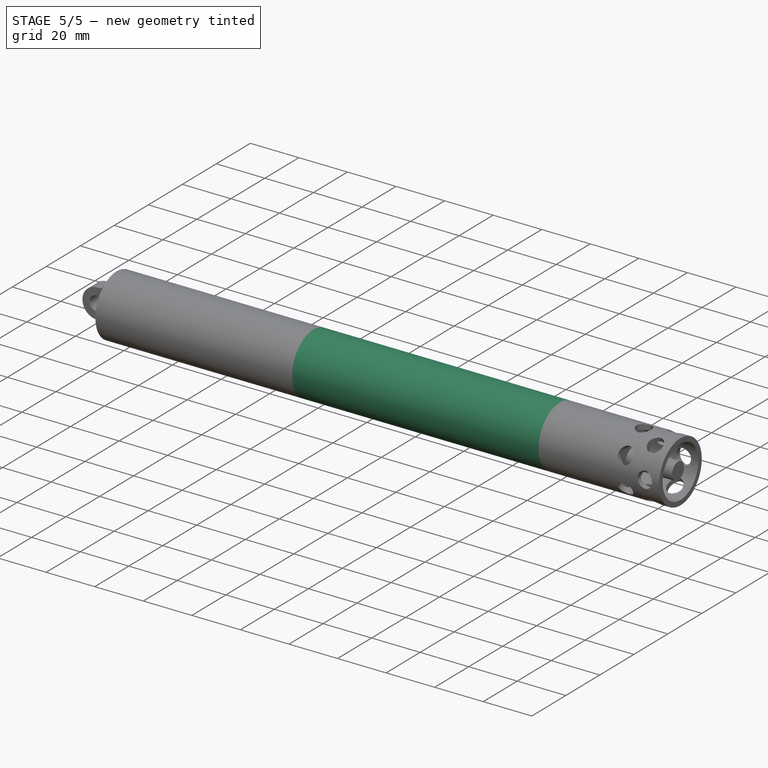
[diagram: stage 5 of 5 — iso view after this stage's code; geometry added in this stage tinted green]
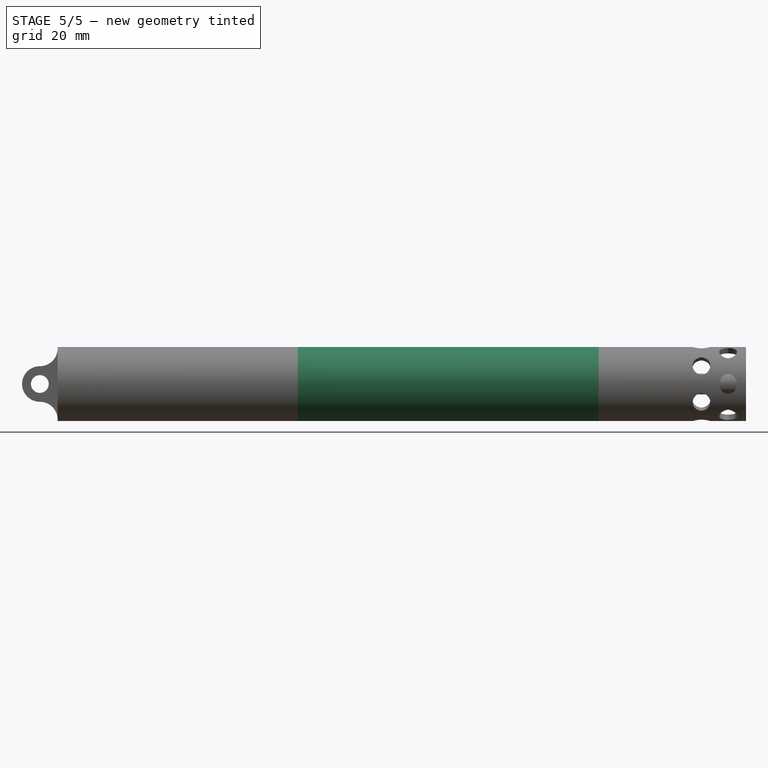
[diagram: stage 5 of 5 — front view after this stage's code; geometry added in this stage tinted green]
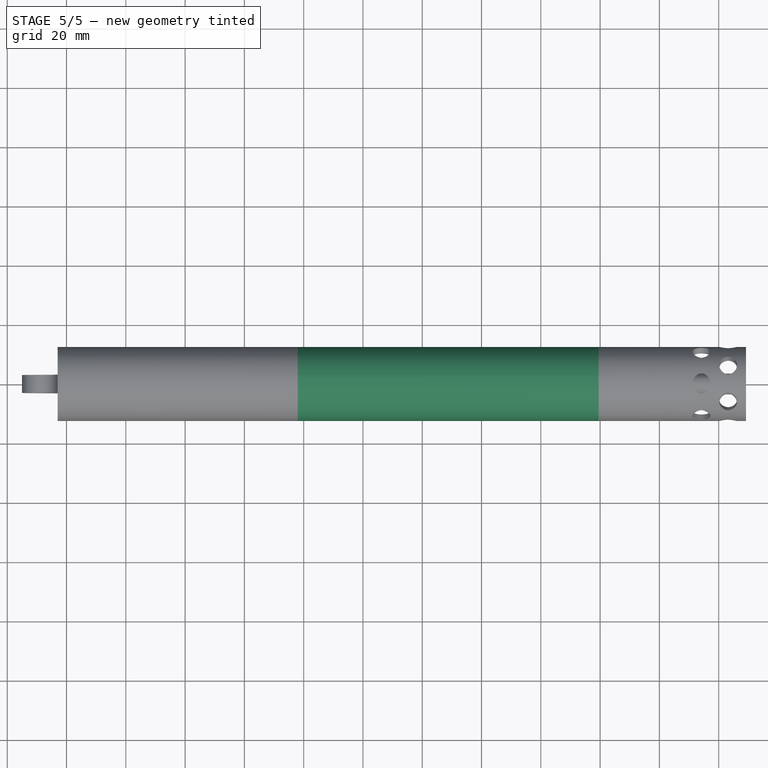
[diagram: stage 5 of 5 — top view after this stage's code; geometry added in this stage tinted green]
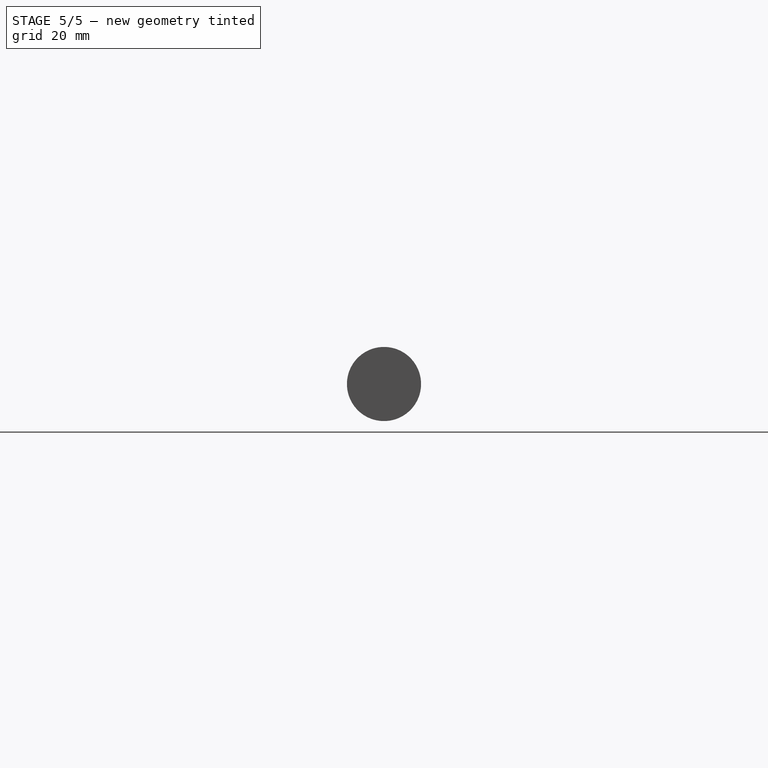
[diagram: stage 5 of 5 — right view after this stage's code; geometry added in this stage tinted green]
FEATURE [Part::Cylinder] Cylinder  label="EXT"
  Angle = 360
  AttacherType = Attacher::AttachEngine3D
  Height = 153
  Placement = pos=(0,0,2.5) rot=(0,0,1;0rad)
  Radius = 11
FEATURE [Part::Cylinder] Cylinder001  label="INT"
  Angle = 360
  AttacherType = Attacher::AttachEngine3D
  Height = 153
  Placement = pos=(0,0,2.5) rot=(0,0,1;0rad)
  Radius = 9.5
FEATURE [Part::Cut] Cut  label="SteelTube"
  Base = -> Cylinder
  Placement = pos=(0,0,0) rot=(0,1,0;1.5708rad)
  Refine = true
  Tool = -> Cylinder001
FEATURE [Part::Cylinder] Cylinder002  label="Cylinder"
  Angle = 360
  AttacherType = Attacher::AttachEngine3D
  Height = 101.5
  Placement = pos=(78,0,0) rot=(0,1,0;1.5708rad)
  Radius = 12.5
FEATURE [Part::Cylinder] Cylinder003  label="Cylinder001"
  Angle = 360
  AttacherType = Attacher::AttachEngine3D
  Height = 78
  Placement = pos=(78,0,0) rot=(0,1,0;1.5708rad)
  Radius = 11.05
FEATURE [Part::Cylinder] Cylinder004  label="Cylinder002"
  Angle = 360
  AttacherType = Attacher::AttachEngine3D
  Height = 23.5
  Placement = pos=(156,0,0) rot=(0,1,0;1.5708rad)
  Radius = 10.5
FEATURE [Part::Cut] Cut001
  Base = -> Cylinder002
  Tool = -> Cylinder003
FEATURE [Part::Cut] Cut002  label="BatteryHolder"
  Base = -> Cut001
  Tool = -> Cylinder004
FEATURE [Part::Cylinder] Cylinder013  label="Cylinder011"
  Angle = 360
  AttacherType = Attacher::AttachEngine3D
  Height = 2
  Placement = pos=(155.5,0,0) rot=(0,1,0;1.5708rad)
  Radius = 11.05
FEATURE [Part::Cylinder] Cylinder014  label="Cylinder013"
  Angle = 360
  AttacherType = Attacher::AttachEngine3D
  Height = 2
  Placement = pos=(155.5,0,0) rot=(0,1,0;1.5708rad)
  Radius = 9.5
FEATURE [Drawing::FeatureViewPart] View
  Direction = (0,0,1)
  HiddenWidth = 0.15
  LineWidth = 0.35
  Rotation = 0
  ShowHiddenLines = false
  ShowSmoothLines = false
  Tolerance = 0.05
  ViewResult = <blob: 4585 chars omitted>
  Visible = false
  X = 10
  Y = 10
FEATURE [Sketcher::SketchObject] Sketch007  label="T006"
  Placement = pos=(157,0,-10.6) rot=(1,0,0;1.5708rad)
  sketch-geometry (3):
    g0: LineSegment StartX=0.00120621 StartY=1.19996 StartZ=0 EndX=-0.691594 EndY=0 EndZ=0
    g1: LineSegment StartX=0.694006 StartY=0 StartZ=0 EndX=0.00120621 EndY=1.19996 EndZ=0
    g2: LineSegment StartX=-0.691594 StartY=0 StartZ=0 EndX=0.694006 EndY=0 EndZ=0
  constraints (8):
    c: PointOnObject(g1,g-1)
    c: Coincident(g1,g0)
    c: Coincident(g2,g0)
    c: Coincident(g2,g1)
    c: Horizontal(g2)
    c: Angle(g2,g0) = 1.0472
    c: Angle(g1,g2) = 1.0472
    c: Distance(g0,g0) = 1.3856
FEATURE [Part::Helix] Helix003
  Angle = 0
  AttacherType = Attacher::AttachEngine3D
  Height = 13.856
  LocalCoord = 0
  Pitch = 1.3856
  Placement = pos=(157,0,0) rot=(0,1,0;1.5708rad)
  Radius = 9.5
  Style = 1
FEATURE [Part::Sweep] Sweep004
  Frenet = true
  Sections = -> [Sketch007]
  Solid = true
  Spine = -> Helix003
  Transition = 1
FEATURE [Part::Helix] Helix010
  Angle = 35.82
  AttacherType = Attacher::AttachEngine3D
  Height = 1.3856
  LocalCoord = 0
  Pitch = 1.3856
  Placement = pos=(170.856,0,0) rot=(0,1,0;1.5708rad)
  Radius = 9.5
  Style = 1
FEATURE [Sketcher::SketchObject] Sketch016  label="T015"
  Placement = pos=(170.856,0,-10.6) rot=(1,0,0;1.5708rad)
  sketch-geometry (3):
    g0: LineSegment StartX=0.00120621 StartY=1.19996 StartZ=0 EndX=-0.691594 EndY=0 EndZ=0
    g1: LineSegment StartX=0.694006 StartY=0 StartZ=0 EndX=0.00120621 EndY=1.19996 EndZ=0
    g2: LineSegment StartX=-0.691594 StartY=0 StartZ=0 EndX=0.694006 EndY=0 EndZ=0
  constraints (8):
    c: PointOnObject(g1,g-1)
    c: Coincident(g1,g0)
    c: Coincident(g2,g0)
    c: Coincident(g2,g1)
    c: Horizontal(g2)
    c: Angle(g2,g0) = 1.0472
    c: Angle(g1,g2) = 1.0472
    c: Distance(g0,g0) = 1.3856
FEATURE [Part::Sweep] Sweep010
  Frenet = true
  Sections = -> [Sketch016]
  Solid = true
  Spine = -> Helix010
  Transition = 1
FEATURE [Part::Cut] Cut004
  Base = -> Cylinder013
  Tool = -> Cylinder014
FEATURE [Part::Helix] Helix011
  Angle = 60
  AttacherType = Attacher::AttachEngine3D
  Height = 1.391
  LocalCoord = 0
  Pitch = 1.3905
  Placement = pos=(155.614,0,0) rot=(0,1,0;1.5708rad)
  Radius = 7.2
  Style = 1
FEATURE [Sketcher::SketchObject] Sketch017  label="T016"
  Placement = pos=(157,0,-11.8) rot=(1,0,0;1.5708rad)
  sketch-geometry (4):
    g0: LineSegment StartX=-1.32604 StartY=4.699 StartZ=0 EndX=-2.62604 EndY=4.699 EndZ=0
    g1: LineSegment StartX=-1.32604 StartY=4.699 StartZ=0 EndX=0.05896 EndY=2.30011 EndZ=0
    g2: LineSegment StartX=0.05896 StartY=2.30011 StartZ=0 EndX=-1.24104 EndY=2.30011 EndZ=0
    g3: LineSegment StartX=-2.62604 StartY=4.699 StartZ=0 EndX=-1.24104 EndY=2.30011 EndZ=0
  constraints (10):
    c: Horizontal(g0)
    c: DistanceX(g0,g0) = 1.3
    c: Coincident(g1,g0)
    c: Angle(g0,g1) = 2.0944
    c: Distance(g1) = 2.77
    c: Coincident(g2,g1)
    c: Horizontal(g2)
    c: Coincident(g3,g0)
    c: Coincident(g3,g2)
    c: Angle(g3,g0) = 1.0472
FEATURE [Part::Sweep] Sweep
  Frenet = true
  Sections = -> [Sketch017]
  Solid = true
  Spine = -> Helix011
  Transition = 1
FEATURE [Part::Cylinder] Cylinder015  label="Cylinder014"
  Angle = 360
  AttacherType = Attacher::AttachEngine3D
  Height = 25
  Placement = pos=(150,0,0) rot=(0,1,0;1.5708rad)
  Radius = 9.5
FEATURE [Part::Cut] Cut005
  Base = -> Sweep
  Tool = -> Cylinder015
FEATURE [Part::Cut] Cut007
  Base = -> Sweep010
  Tool = -> Cylinder015
FEATURE [Part::Cylinder] Cylinder016  label="EXT001"
  Angle = 360
  AttacherType = Attacher::AttachEngine3D
  Height = 156
  Placement = pos=(0,0,0) rot=(0,1,0;1.5708rad)
  Radius = 13
FEATURE [Part::Helix] Helix012
  Angle = 58.8
  AttacherType = Attacher::AttachEngine3D
  Height = 1.39
  LocalCoord = 0
  Pitch = 1.3905
  Placement = pos=(155.614,0,0) rot=(0,1,0;1.5708rad)
  Radius = 7.2
  Style = 1
FEATURE [Part::Cut] Cut006
  Base = -> Sweep004
  Tool = -> Cylinder015
FEATURE [Part::Helix] Helix013
  Angle = 60
  AttacherType = Attacher::AttachEngine3D
  Height = 1.39
  LocalCoord = 0
  Pitch = 1.3905
  Placement = pos=(155.614,0,0) rot=(0,1,0;1.5708rad)
  Radius = 7.2
  Style = 1
FEATURE [Part::Helix] Helix014
  Angle = 60
  AttacherType = Attacher::AttachEngine3D
  Height = 1.391
  LocalCoord = 0
  Pitch = 1.3905
  Placement = pos=(155.614,0,0) rot=(0,1,0;1.5708rad)
  Radius = 7.2
  Style = 1
FEATURE [Sketcher::SketchObject] Sketch018  label="T017"
  Placement = pos=(157,0,-11.8) rot=(1,0,0;1.5708rad)
  sketch-geometry (4):
    g0: LineSegment StartX=-1.32604 StartY=4.699 StartZ=0 EndX=-2.62604 EndY=4.699 EndZ=0
    g1: LineSegment StartX=-1.32604 StartY=4.699 StartZ=0 EndX=0.05896 EndY=2.30011 EndZ=0
    g2: LineSegment StartX=0.05896 StartY=2.30011 StartZ=0 EndX=-1.24104 EndY=2.30011 EndZ=0
    g3: LineSegment StartX=-2.62604 StartY=4.699 StartZ=0 EndX=-1.24104 EndY=2.30011 EndZ=0
  constraints (10):
    c: Horizontal(g0)
    c: DistanceX(g0,g0) = 1.3
    c: Coincident(g1,g0)
    c: Angle(g0,g1) = 2.0944
    c: Distance(g1) = 2.77
    c: Coincident(g2,g1)
    c: Horizontal(g2)
    c: Coincident(g3,g0)
    c: Coincident(g3,g2)
    c: Angle(g3,g0) = 1.0472
FEATURE [Part::Sweep] Sweep011
  Frenet = true
  Sections = -> [Sketch018]
  Solid = true
  Spine = -> Helix014
  Transition = 1
FEATURE [Part::Cylinder] Cylinder017  label="Cylinder015"
  Angle = 360
  AttacherType = Attacher::AttachEngine3D
  Height = 25
  Placement = pos=(150,0,0) rot=(0,1,0;1.5708rad)
  Radius = 9.5
FEATURE [Part::Cut] Cut008
  Base = -> Sweep011
  Placement = pos=(-1,0,0) rot=(0,0,1;0rad)
  Tool = -> Cylinder017
FEATURE [Part::MultiFuse] Fusion
  Shapes = -> [Cut008,Cut005]
FEATURE [Part::Cut] Cut009
  Base = -> Fusion
  Tool = -> Cylinder016
FEATURE [Part::MultiFuse] Fusion001
  Shapes = -> [Cut006,Cut004]
FEATURE [Part::MultiFuse] Fusion002
  Shapes = -> [Cut007,Fusion001]
FEATURE [Part::MultiFuse] Fusion003  label="BatHolderThread"
  Shapes = -> [Fusion002,Cut002]
FEATURE [Part::Cylinder] Cylinder033  label="Cylinder034"
  Angle = 360
  AttacherType = Attacher::AttachEngine3D
  Height = 3
  Placement = pos=(159,-8,0) rot=(0,1,0;1.5708rad)
  Radius = 0.5
FEATURE [Part::Cut] Cut029
  Base = -> Cut028
  Tool = -> Cylinder033
FEATURE [Part::Cut] Cut033  label="SensorHolderExtProt"
  Base = -> Cut029
  Tool = -> Cut032
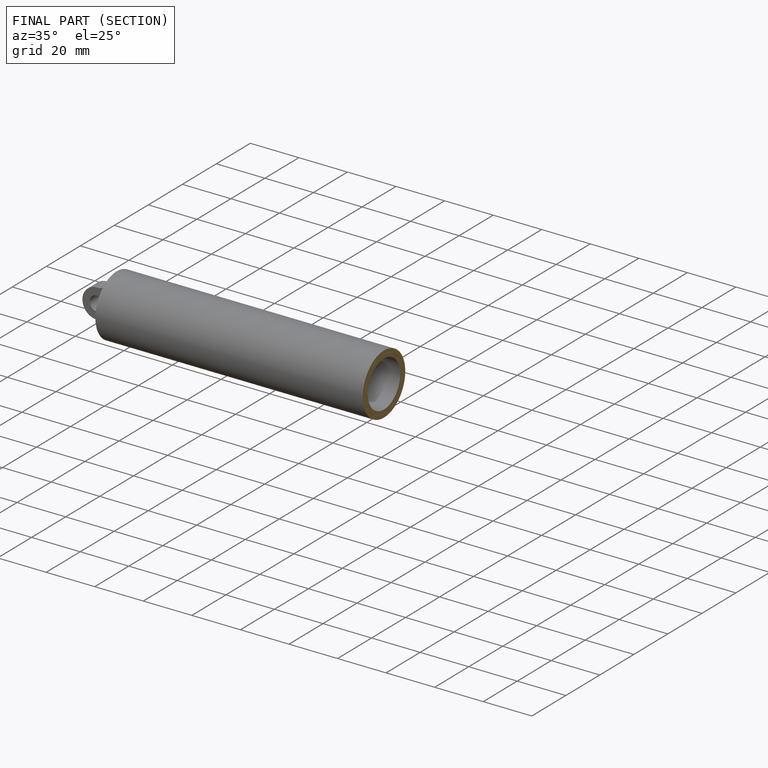
[diagram: finished part — half-section view (interior)]
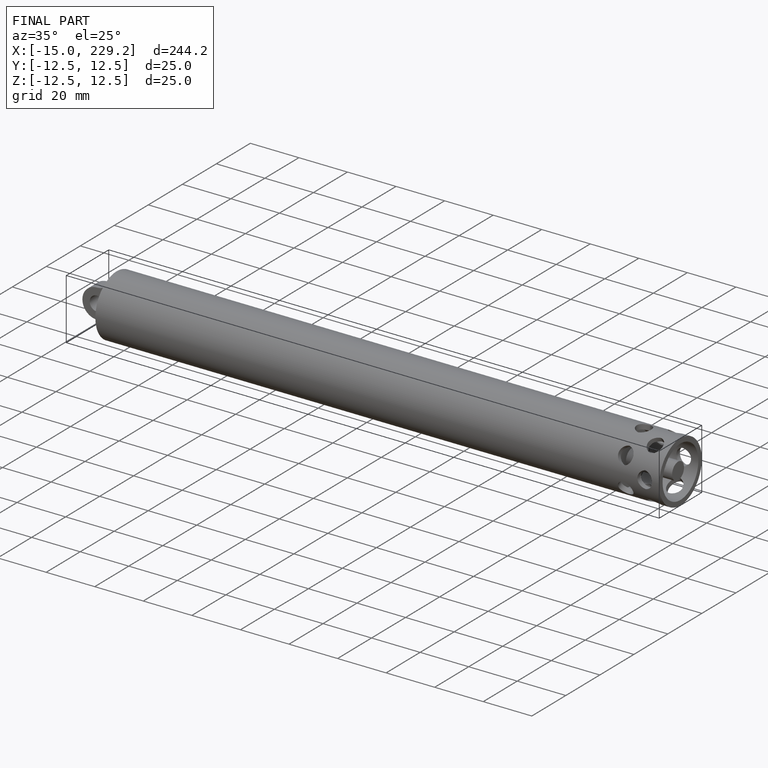
[diagram: finished part — iso view with bounding-box wireframe]
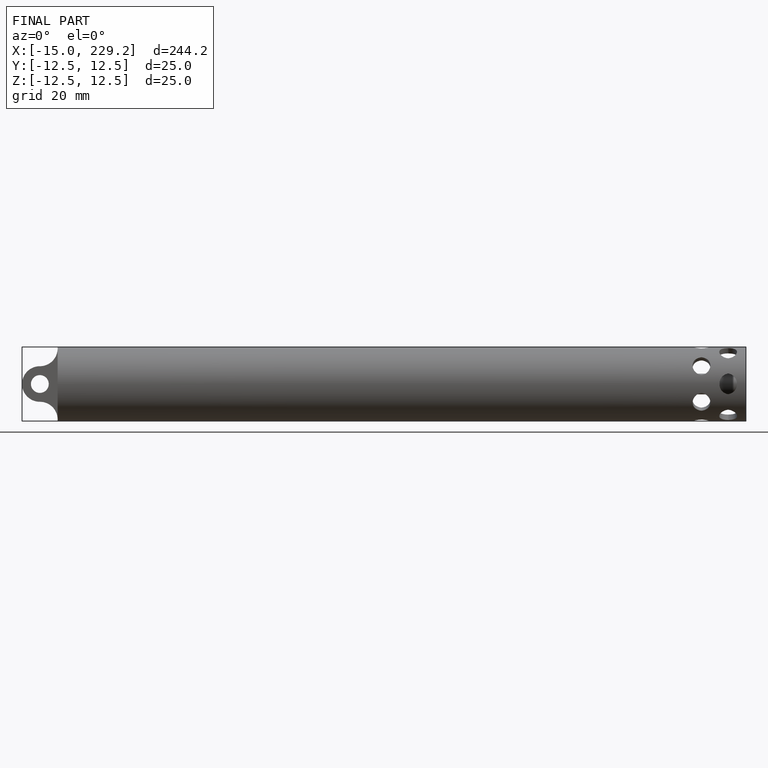
[diagram: finished part — front view with bounding-box wireframe]
